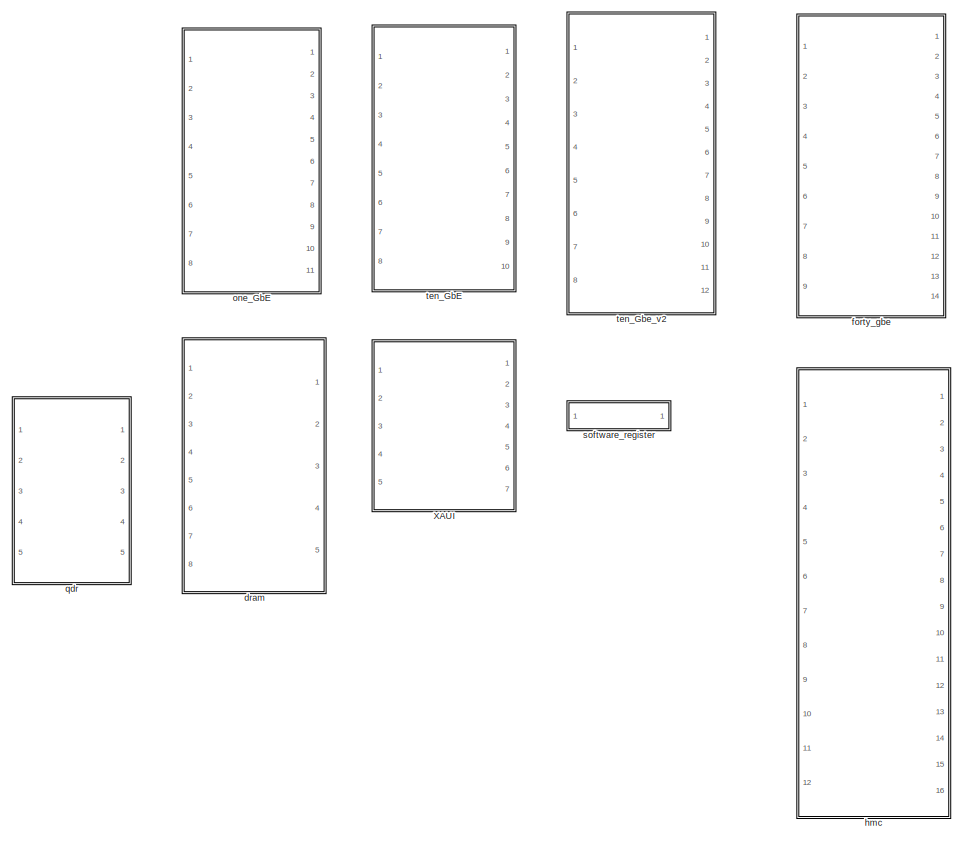
[diagram: root canvas - part 1/2, right side, full height]
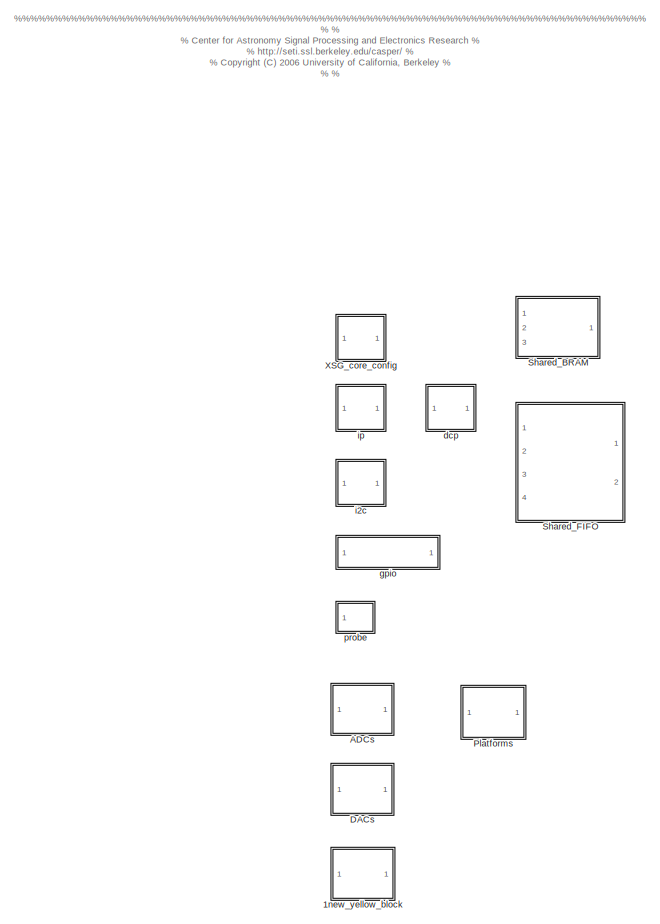
[diagram: root canvas - part 2/2, left side, full height]
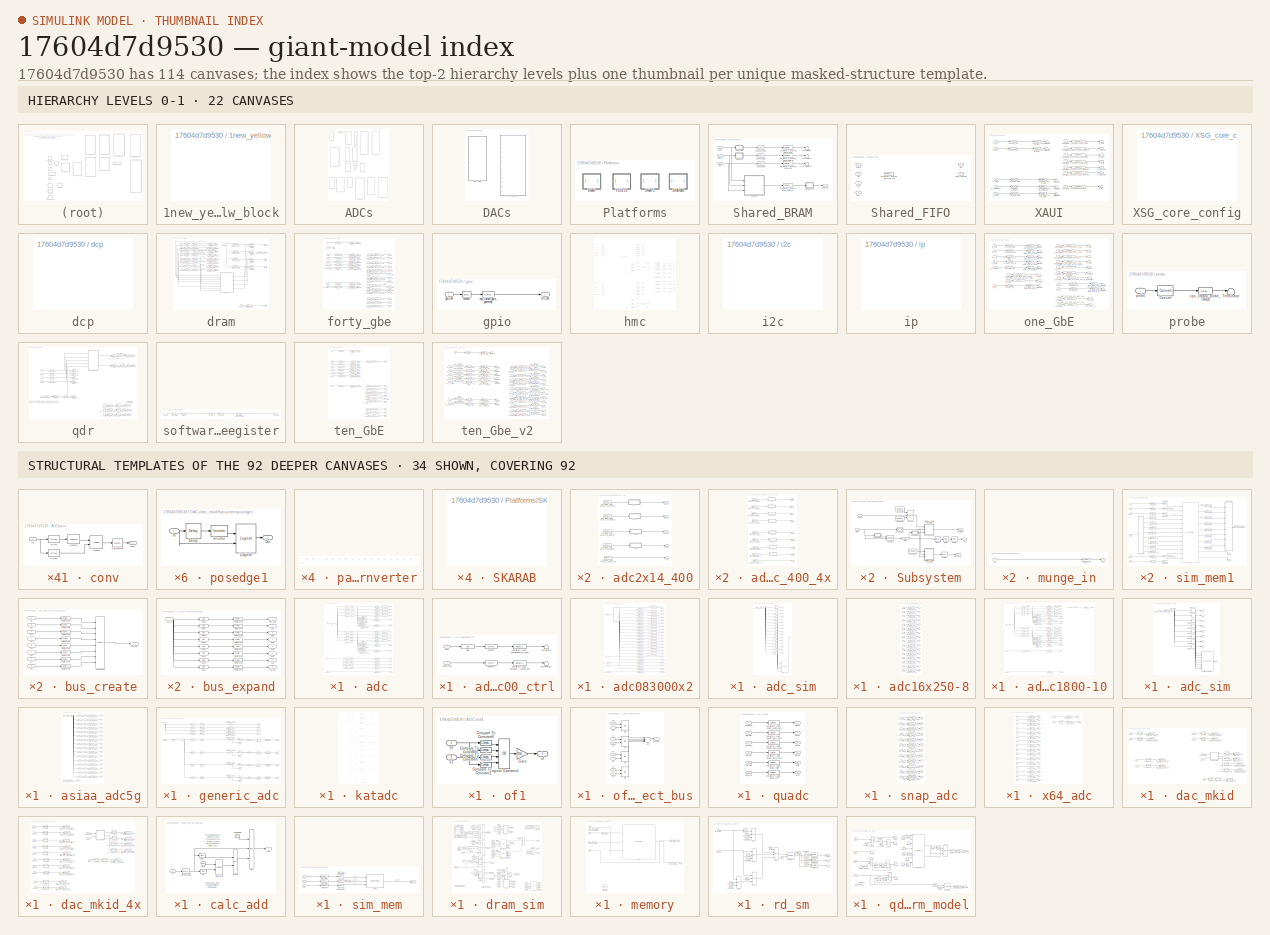
[diagram: thumbnail index - top-2 hierarchy levels (22 canvases) + 34 structural-template representatives of the remaining 92 canvases]
MODEL slx_17604d7d9530
KIND library
CONFIG AbsTol = auto
CONFIG EnableMultiTasking = off
CONFIG FixedStep = auto
CONFIG MaxStep = auto
CONFIG MinStep = auto
CONFIG RelTol = 1e-3
CONFIG SampleTimeConstraint = Unconstrained
CONFIG Solver = ode45
CONFIG SolverName = ode45
CONFIG StartTime = 0.0
CONFIG StopTime = 10.0
BLOCK [SubSystem] 1new_yellow_block
  Ports = []
  RequestExecContextInheritance = off
  Tag = xps:block_name
  Variant = off
BLOCK [SubSystem] ADCs
  Ports = []
  RequestExecContextInheritance = off
  Variant = off
BLOCK [SubSystem] ADCs/adc
  Ports = [3, 17]
  RequestExecContextInheritance = off
  Tag = xps:adc
  Variant = off
BLOCK [Reference] ADCs/adc/Compare To Constant  REF=simulink/Logic and Bit
Operations/Compare
To Constant
  Ports = [1, 1]
  SourceBlock = simulink/Logic and Bit\nOperations/Compare\nTo Constant
  SourceType = Compare To Constant
BLOCK [Reference] ADCs/adc/Compare To Constant1  REF=simulink/Logic and Bit
Operations/Compare
To Constant
  Ports = [1, 1]
  SourceBlock = simulink/Logic and Bit\nOperations/Compare\nTo Constant
  SourceType = Compare To Constant
BLOCK [Reference] ADCs/adc/Compare To Constant10  REF=simulink/Logic and Bit
Operations/Compare
To Constant
  Ports = [1, 1]
  SourceBlock = simulink/Logic and Bit\nOperations/Compare\nTo Constant
  SourceType = Compare To Constant
BLOCK [Reference] ADCs/adc/Compare To Constant11  REF=simulink/Logic and Bit
Operations/Compare
To Constant
  Ports = [1, 1]
  SourceBlock = simulink/Logic and Bit\nOperations/Compare\nTo Constant
  SourceType = Compare To Constant
BLOCK [Reference] ADCs/adc/Compare To Constant12  REF=simulink/Logic and Bit
Operations/Compare
To Constant
  Ports = [1, 1]
  SourceBlock = simulink/Logic and Bit\nOperations/Compare\nTo Constant
  SourceType = Compare To Constant
BLOCK [Reference] ADCs/adc/Compare To Constant13  REF=simulink/Logic and Bit
Operations/Compare
To Constant
  Ports = [1, 1]
  SourceBlock = simulink/Logic and Bit\nOperations/Compare\nTo Constant
  SourceType = Compare To Constant
BLOCK [Reference] ADCs/adc/Compare To Constant14  REF=simulink/Logic and Bit
Operations/Compare
To Constant
  Ports = [1, 1]
  SourceBlock = simulink/Logic and Bit\nOperations/Compare\nTo Constant
  SourceType = Compare To Constant
BLOCK [Reference] ADCs/adc/Compare To Constant15  REF=simulink/Logic and Bit
Operations/Compare
To Constant
  Ports = [1, 1]
  SourceBlock = simulink/Logic and Bit\nOperations/Compare\nTo Constant
  SourceType = Compare To Constant
BLOCK [Reference] ADCs/adc/Compare To Constant2  REF=simulink/Logic and Bit
Operations/Compare
To Constant
  Ports = [1, 1]
  SourceBlock = simulink/Logic and Bit\nOperations/Compare\nTo Constant
  SourceType = Compare To Constant
BLOCK [Reference] ADCs/adc/Compare To Constant3  REF=simulink/Logic and Bit
Operations/Compare
To Constant
  Ports = [1, 1]
  SourceBlock = simulink/Logic and Bit\nOperations/Compare\nTo Constant
  SourceType = Compare To Constant
BLOCK [Reference] ADCs/adc/Compare To Constant4  REF=simulink/Logic and Bit
Operations/Compare
To Constant
  Ports = [1, 1]
  SourceBlock = simulink/Logic and Bit\nOperations/Compare\nTo Constant
  SourceType = Compare To Constant
BLOCK [Reference] ADCs/adc/Compare To Constant5  REF=simulink/Logic and Bit
Operations/Compare
To Constant
  Ports = [1, 1]
  SourceBlock = simulink/Logic and Bit\nOperations/Compare\nTo Constant
  SourceType = Compare To Constant
BLOCK [Reference] ADCs/adc/Compare To Constant6  REF=simulink/Logic and Bit
Operations/Compare
To Constant
  Ports = [1, 1]
  SourceBlock = simulink/Logic and Bit\nOperations/Compare\nTo Constant
  SourceType = Compare To Constant
BLOCK [Reference] ADCs/adc/Compare To Constant7  REF=simulink/Logic and Bit
Operations/Compare
To Constant
  Ports = [1, 1]
  SourceBlock = simulink/Logic and Bit\nOperations/Compare\nTo Constant
  SourceType = Compare To Constant
BLOCK [Reference] ADCs/adc/Compare To Constant8  REF=simulink/Logic and Bit
Operations/Compare
To Constant
  Ports = [1, 1]
  SourceBlock = simulink/Logic and Bit\nOperations/Compare\nTo Constant
  SourceType = Compare To Constant
BLOCK [Reference] ADCs/adc/Compare To Constant9  REF=simulink/Logic and Bit
Operations/Compare
To Constant
  Ports = [1, 1]
  SourceBlock = simulink/Logic and Bit\nOperations/Compare\nTo Constant
  SourceType = Compare To Constant
BLOCK [DownSample] ADCs/adc/Downsamplei0
  InputProcessing = Inherited (this choice will be removed - see release notes)
  N = 8
  UserDataPersistent = on
  phase = 1
BLOCK [DownSample] ADCs/adc/Downsamplei1
  InputProcessing = Inherited (this choice will be removed - see release notes)
  N = 8
  UserDataPersistent = on
  phase = 3
BLOCK [DownSample] ADCs/adc/Downsamplei2
  InputProcessing = Inherited (this choice will be removed - see release notes)
  N = 8
  UserDataPersistent = on
  phase = 5
BLOCK [DownSample] ADCs/adc/Downsamplei3
  InputProcessing = Inherited (this choice will be removed - see release notes)
  N = 8
  UserDataPersistent = on
  phase = 7
BLOCK [DownSample] ADCs/adc/Downsampleq0
  InputProcessing = Inherited (this choice will be removed - see release notes)
  N = 8
  UserDataPersistent = on
BLOCK [DownSample] ADCs/adc/Downsampleq1
  InputProcessing = Inherited (this choice will be removed - see release notes)
  N = 8
  UserDataPersistent = on
  phase = 2
BLOCK [DownSample] ADCs/adc/Downsampleq2
  InputProcessing = Inherited (this choice will be removed - see release notes)
  N = 8
  UserDataPersistent = on
  phase = 4
BLOCK [DownSample] ADCs/adc/Downsampleq3
  InputProcessing = Inherited (this choice will be removed - see release notes)
  N = 8
  UserDataPersistent = on
  phase = 6
BLOCK [DownSample] ADCs/adc/Downsamplesync0
  InputProcessing = Inherited (this choice will be removed - see release notes)
  N = 8
  UserDataPersistent = on
BLOCK [DownSample] ADCs/adc/Downsamplesync1
  InputProcessing = Inherited (this choice will be removed - see release notes)
  N = 8
  UserDataPersistent = on
  phase = 2
BLOCK [DownSample] ADCs/adc/Downsamplesync2
  InputProcessing = Inherited (this choice will be removed - see release notes)
  N = 8
  UserDataPersistent = on
  phase = 4
BLOCK [DownSample] ADCs/adc/Downsamplesync3
  InputProcessing = Inherited (this choice will be removed - see release notes)
  N = 8
  UserDataPersistent = on
  phase = 6
BLOCK [Logic] ADCs/adc/Logical Operator
  AllPortsSameDT = off
  Inputs = 4
  Operator = OR
  OutDataTypeStr = boolean
  Ports = [4, 1]
BLOCK [Logic] ADCs/adc/Logical Operator1
  AllPortsSameDT = off
  Inputs = 4
  Operator = OR
  OutDataTypeStr = boolean
  Ports = [4, 1]
BLOCK [Logic] ADCs/adc/Logical Operator2
  AllPortsSameDT = off
  Inputs = 4
  Operator = OR
  OutDataTypeStr = boolean
  Ports = [4, 1]
BLOCK [Logic] ADCs/adc/Logical Operator3
  AllPortsSameDT = off
  Inputs = 4
  Operator = OR
  OutDataTypeStr = boolean
  Ports = [4, 1]
BLOCK [Bias] ADCs/adc/bias
  Bias = 127.5
BLOCK [SubSystem] ADCs/adc/conv
  Ports = [1, 1]
  RequestExecContextInheritance = off
  Variant = off
BLOCK [Reference] ADCs/adc/conv/Concat  REF=xbsIndex_r4/Concat
  Ports = [2, 1]
  SourceBlock = xbsIndex_r4/Concat
  SourceType = Xilinx Bus Concatenator Block
BLOCK [Inport] ADCs/adc/conv/In1
  IconDisplay = Port number
BLOCK [Reference] ADCs/adc/conv/Inverter  REF=xbsIndex_r4/Inverter
  Ports = [1, 1]
  SourceBlock = xbsIndex_r4/Inverter
  SourceType = Xilinx Inverter Block
BLOCK [Outport] ADCs/adc/conv/Out1
  IconDisplay = Port number
BLOCK [Reference] ADCs/adc/conv/Reinterpret  REF=xbsIndex_r4/Reinterpret
  Ports = [1, 1]
  SourceBlock = xbsIndex_r4/Reinterpret
  SourceType = Xilinx Type Reinterpreter Block
BLOCK [Reference] ADCs/adc/conv/Slice  REF=xbsIndex_r4/Slice
  Ports = [1, 1]
  SourceBlock = xbsIndex_r4/Slice
  SourceType = Xilinx Bit Slice Extractor Block
BLOCK [Reference] ADCs/adc/conv/Slice1  REF=xbsIndex_r4/Slice
  Ports = [1, 1]
  SourceBlock = xbsIndex_r4/Slice
  SourceType = Xilinx Bit Slice Extractor Block
BLOCK [SubSystem] ADCs/adc/conv1
  Ports = [1, 1]
  RequestExecContextInheritance = off
  Variant = off
BLOCK [Reference] ADCs/adc/conv1/Concat  REF=xbsIndex_r4/Concat
  Ports = [2, 1]
  SourceBlock = xbsIndex_r4/Concat
  SourceType = Xilinx Bus Concatenator Block
BLOCK [Inport] ADCs/adc/conv1/In1
  IconDisplay = Port number
BLOCK [Reference] ADCs/adc/conv1/Inverter  REF=xbsIndex_r4/Inverter
  Ports = [1, 1]
  SourceBlock = xbsIndex_r4/Inverter
  SourceType = Xilinx Inverter Block
BLOCK [Outport] ADCs/adc/conv1/Out1
  IconDisplay = Port number
BLOCK [Reference] ADCs/adc/conv1/Reinterpret  REF=xbsIndex_r4/Reinterpret
  Ports = [1, 1]
  SourceBlock = xbsIndex_r4/Reinterpret
  SourceType = Xilinx Type Reinterpreter Block
BLOCK [Reference] ADCs/adc/conv1/Slice  REF=xbsIndex_r4/Slice
  Ports = [1, 1]
  SourceBlock = xbsIndex_r4/Slice
  SourceType = Xilinx Bit Slice Extractor Block
BLOCK [Reference] ADCs/adc/conv1/Slice1  REF=xbsIndex_r4/Slice
  Ports = [1, 1]
  SourceBlock = xbsIndex_r4/Slice
  SourceType = Xilinx Bit Slice Extractor Block
BLOCK [SubSystem] ADCs/adc/conv2
  Ports = [1, 1]
  RequestExecContextInheritance = off
  Variant = off
BLOCK [Reference] ADCs/adc/conv2/Concat  REF=xbsIndex_r4/Concat
  Ports = [2, 1]
  SourceBlock = xbsIndex_r4/Concat
  SourceType = Xilinx Bus Concatenator Block
BLOCK [Inport] ADCs/adc/conv2/In1
  IconDisplay = Port number
BLOCK [Reference] ADCs/adc/conv2/Inverter  REF=xbsIndex_r4/Inverter
  Ports = [1, 1]
  SourceBlock = xbsIndex_r4/Inverter
  SourceType = Xilinx Inverter Block
BLOCK [Outport] ADCs/adc/conv2/Out1
  IconDisplay = Port number
BLOCK [Reference] ADCs/adc/conv2/Reinterpret  REF=xbsIndex_r4/Reinterpret
  Ports = [1, 1]
  SourceBlock = xbsIndex_r4/Reinterpret
  SourceType = Xilinx Type Reinterpreter Block
BLOCK [Reference] ADCs/adc/conv2/Slice  REF=xbsIndex_r4/Slice
  Ports = [1, 1]
  SourceBlock = xbsIndex_r4/Slice
  SourceType = Xilinx Bit Slice Extractor Block
BLOCK [Reference] ADCs/adc/conv2/Slice1  REF=xbsIndex_r4/Slice
  Ports = [1, 1]
  SourceBlock = xbsIndex_r4/Slice
  SourceType = Xilinx Bit Slice Extractor Block
BLOCK [SubSystem] ADCs/adc/conv3
  Ports = [1, 1]
  RequestExecContextInheritance = off
  Variant = off
BLOCK [Reference] ADCs/adc/conv3/Concat  REF=xbsIndex_r4/Concat
  Ports = [2, 1]
  SourceBlock = xbsIndex_r4/Concat
  SourceType = Xilinx Bus Concatenator Block
BLOCK [Inport] ADCs/adc/conv3/In1
  IconDisplay = Port number
BLOCK [Reference] ADCs/adc/conv3/Inverter  REF=xbsIndex_r4/Inverter
  Ports = [1, 1]
  SourceBlock = xbsIndex_r4/Inverter
  SourceType = Xilinx Inverter Block
BLOCK [Outport] ADCs/adc/conv3/Out1
  IconDisplay = Port number
BLOCK [Reference] ADCs/adc/conv3/Reinterpret  REF=xbsIndex_r4/Reinterpret
  Ports = [1, 1]
  SourceBlock = xbsIndex_r4/Reinterpret
  SourceType = Xilinx Type Reinterpreter Block
BLOCK [Reference] ADCs/adc/conv3/Slice  REF=xbsIndex_r4/Slice
  Ports = [1, 1]
  SourceBlock = xbsIndex_r4/Slice
  SourceType = Xilinx Bit Slice Extractor Block
BLOCK [Reference] ADCs/adc/conv3/Slice1  REF=xbsIndex_r4/Slice
  Ports = [1, 1]
  SourceBlock = xbsIndex_r4/Slice
  SourceType = Xilinx Bit Slice Extractor Block
BLOCK [SubSystem] ADCs/adc/conv4
  Ports = [1, 1]
  RequestExecContextInheritance = off
  Variant = off
BLOCK [Reference] ADCs/adc/conv4/Concat  REF=xbsIndex_r4/Concat
  Ports = [2, 1]
  SourceBlock = xbsIndex_r4/Concat
  SourceType = Xilinx Bus Concatenator Block
BLOCK [Inport] ADCs/adc/conv4/In1
  IconDisplay = Port number
BLOCK [Reference] ADCs/adc/conv4/Inverter  REF=xbsIndex_r4/Inverter
  Ports = [1, 1]
  SourceBlock = xbsIndex_r4/Inverter
  SourceType = Xilinx Inverter Block
BLOCK [Outport] ADCs/adc/conv4/Out1
  IconDisplay = Port number
BLOCK [Reference] ADCs/adc/conv4/Reinterpret  REF=xbsIndex_r4/Reinterpret
  Ports = [1, 1]
  SourceBlock = xbsIndex_r4/Reinterpret
  SourceType = Xilinx Type Reinterpreter Block
BLOCK [Reference] ADCs/adc/conv4/Slice  REF=xbsIndex_r4/Slice
  Ports = [1, 1]
  SourceBlock = xbsIndex_r4/Slice
  SourceType = Xilinx Bit Slice Extractor Block
BLOCK [Reference] ADCs/adc/conv4/Slice1  REF=xbsIndex_r4/Slice
  Ports = [1, 1]
  SourceBlock = xbsIndex_r4/Slice
  SourceType = Xilinx Bit Slice Extractor Block
BLOCK [SubSystem] ADCs/adc/conv5
  Ports = [1, 1]
  RequestExecContextInheritance = off
  Variant = off
BLOCK [Reference] ADCs/adc/conv5/Concat  REF=xbsIndex_r4/Concat
  Ports = [2, 1]
  SourceBlock = xbsIndex_r4/Concat
  SourceType = Xilinx Bus Concatenator Block
BLOCK [Inport] ADCs/adc/conv5/In1
  IconDisplay = Port number
BLOCK [Reference] ADCs/adc/conv5/Inverter  REF=xbsIndex_r4/Inverter
  Ports = [1, 1]
  SourceBlock = xbsIndex_r4/Inverter
  SourceType = Xilinx Inverter Block
BLOCK [Outport] ADCs/adc/conv5/Out1
  IconDisplay = Port number
BLOCK [Reference] ADCs/adc/conv5/Reinterpret  REF=xbsIndex_r4/Reinterpret
  Ports = [1, 1]
  SourceBlock = xbsIndex_r4/Reinterpret
  SourceType = Xilinx Type Reinterpreter Block
BLOCK [Reference] ADCs/adc/conv5/Slice  REF=xbsIndex_r4/Slice
  Ports = [1, 1]
  SourceBlock = xbsIndex_r4/Slice
  SourceType = Xilinx Bit Slice Extractor Block
BLOCK [Reference] ADCs/adc/conv5/Slice1  REF=xbsIndex_r4/Slice
  Ports = [1, 1]
  SourceBlock = xbsIndex_r4/Slice
  SourceType = Xilinx Bit Slice Extractor Block
BLOCK [SubSystem] ADCs/adc/conv6
  Ports = [1, 1]
  RequestExecContextInheritance = off
  Variant = off
BLOCK [Reference] ADCs/adc/conv6/Concat  REF=xbsIndex_r4/Concat
  Ports = [2, 1]
  SourceBlock = xbsIndex_r4/Concat
  SourceType = Xilinx Bus Concatenator Block
BLOCK [Inport] ADCs/adc/conv6/In1
  IconDisplay = Port number
BLOCK [Reference] ADCs/adc/conv6/Inverter  REF=xbsIndex_r4/Inverter
  Ports = [1, 1]
  SourceBlock = xbsIndex_r4/Inverter
  SourceType = Xilinx Inverter Block
BLOCK [Outport] ADCs/adc/conv6/Out1
  IconDisplay = Port number
BLOCK [Reference] ADCs/adc/conv6/Reinterpret  REF=xbsIndex_r4/Reinterpret
  Ports = [1, 1]
  SourceBlock = xbsIndex_r4/Reinterpret
  SourceType = Xilinx Type Reinterpreter Block
BLOCK [Reference] ADCs/adc/conv6/Slice  REF=xbsIndex_r4/Slice
  Ports = [1, 1]
  SourceBlock = xbsIndex_r4/Slice
  SourceType = Xilinx Bit Slice Extractor Block
BLOCK [Reference] ADCs/adc/conv6/Slice1  REF=xbsIndex_r4/Slice
  Ports = [1, 1]
  SourceBlock = xbsIndex_r4/Slice
  SourceType = Xilinx Bit Slice Extractor Block
BLOCK [SubSystem] ADCs/adc/conv7
  Ports = [1, 1]
  RequestExecContextInheritance = off
  Variant = off
BLOCK [Reference] ADCs/adc/conv7/Concat  REF=xbsIndex_r4/Concat
  Ports = [2, 1]
  SourceBlock = xbsIndex_r4/Concat
  SourceType = Xilinx Bus Concatenator Block
BLOCK [Inport] ADCs/adc/conv7/In1
  IconDisplay = Port number
BLOCK [Reference] ADCs/adc/conv7/Inverter  REF=xbsIndex_r4/Inverter
  Ports = [1, 1]
  SourceBlock = xbsIndex_r4/Inverter
  SourceType = Xilinx Inverter Block
BLOCK [Outport] ADCs/adc/conv7/Out1
  IconDisplay = Port number
BLOCK [Reference] ADCs/adc/conv7/Reinterpret  REF=xbsIndex_r4/Reinterpret
  Ports = [1, 1]
  SourceBlock = xbsIndex_r4/Reinterpret
  SourceType = Xilinx Type Reinterpreter Block
BLOCK [Reference] ADCs/adc/conv7/Slice  REF=xbsIndex_r4/Slice
  Ports = [1, 1]
  SourceBlock = xbsIndex_r4/Slice
  SourceType = Xilinx Bit Slice Extractor Block
BLOCK [Reference] ADCs/adc/conv7/Slice1  REF=xbsIndex_r4/Slice
  Ports = [1, 1]
  SourceBlock = xbsIndex_r4/Slice
  SourceType = Xilinx Bit Slice Extractor Block
BLOCK [Outport] ADCs/adc/data_valid
  IconDisplay = Port number
  Port = 17
BLOCK [Delay] ADCs/adc/delayi0
  DelayLength = 1
  InputPortMap = u0
  InputProcessing = Inherited
  Ports = [1, 1]
BLOCK [Delay] ADCs/adc/delayi1
  DelayLength = 1
  InputPortMap = u0
  InputProcessing = Inherited
  Ports = [1, 1]
BLOCK [Delay] ADCs/adc/delayi2
  DelayLength = 1
  InputPortMap = u0
  InputProcessing = Inherited
  Ports = [1, 1]
BLOCK [Delay] ADCs/adc/delayi3
  DelayLength = 1
  InputPortMap = u0
  InputProcessing = Inherited
  Ports = [1, 1]
BLOCK [Delay] ADCs/adc/delayq0
  InputPortMap = u0
  InputProcessing = Inherited
  Ports = [1, 1]
BLOCK [Delay] ADCs/adc/delayq1
  DelayLength = 1
  InputPortMap = u0
  InputProcessing = Inherited
  Ports = [1, 1]
BLOCK [Delay] ADCs/adc/delayq2
  DelayLength = 1
  InputPortMap = u0
  InputProcessing = Inherited
  Ports = [1, 1]
BLOCK [Delay] ADCs/adc/delayq3
  DelayLength = 1
  InputPortMap = u0
  InputProcessing = Inherited
  Ports = [1, 1]
BLOCK [Delay] ADCs/adc/delaysync0
  InputPortMap = u0
  InputProcessing = Inherited
  Ports = [1, 1]
BLOCK [Delay] ADCs/adc/delaysync1
  DelayLength = 1
  InputPortMap = u0
  InputProcessing = Inherited
  Ports = [1, 1]
BLOCK [Delay] ADCs/adc/delaysync2
  DelayLength = 1
  InputPortMap = u0
  InputProcessing = Inherited
  Ports = [1, 1]
BLOCK [Delay] ADCs/adc/delaysync3
  DelayLength = 1
  InputPortMap = u0
  InputProcessing = Inherited
  Ports = [1, 1]
BLOCK [Gain] ADCs/adc/gain
  Gain = 127.5
BLOCK [Outport] ADCs/adc/o0
  IconDisplay = Port number
BLOCK [Outport] ADCs/adc/o1
  IconDisplay = Port number
  Port = 2
BLOCK [Outport] ADCs/adc/o2
  IconDisplay = Port number
  Port = 3
BLOCK [Outport] ADCs/adc/o3
  IconDisplay = Port number
  Port = 4
BLOCK [Outport] ADCs/adc/o4
  IconDisplay = Port number
  Port = 5
BLOCK [Outport] ADCs/adc/o5
  IconDisplay = Port number
  Port = 6
BLOCK [Outport] ADCs/adc/o6
  IconDisplay = Port number
  Port = 7
BLOCK [Outport] ADCs/adc/o7
  IconDisplay = Port number
  Port = 8
BLOCK [Outport] ADCs/adc/outofrange0
  IconDisplay = Port number
  Port = 9
BLOCK [Outport] ADCs/adc/outofrange1
  IconDisplay = Port number
  Port = 10
BLOCK [Outport] ADCs/adc/outofrange2
  IconDisplay = Port number
  Port = 11
BLOCK [Outport] ADCs/adc/outofrange3
  IconDisplay = Port number
  Port = 12
BLOCK [Inport] ADCs/adc/sim_data_valid
  IconDisplay = Port number
  Port = 3
  SampleTime = sample_period/4
BLOCK [Inport] ADCs/adc/sim_in
  IconDisplay = Port number
  SampleTime = sample_period/8
BLOCK [Inport] ADCs/adc/sim_sync
  IconDisplay = Port number
  Port = 2
  SampleTime = sample_period/8
BLOCK [Outport] ADCs/adc/sync0
  IconDisplay = Port number
  Port = 13
BLOCK [Outport] ADCs/adc/sync1
  IconDisplay = Port number
  Port = 14
BLOCK [Outport] ADCs/adc/sync2
  IconDisplay = Port number
  Port = 15
BLOCK [Outport] ADCs/adc/sync3
  IconDisplay = Port number
  Port = 16
BLOCK [Reference] ADCs/adc/xps_library_adc_user_data_valid  REF=xbsIndex_r4/Gateway In
  Ports = [1, 1]
  SourceBlock = xbsIndex_r4/Gateway In
  SourceType = Xilinx Gateway In Block
BLOCK [Reference] ADCs/adc/xps_library_adc_user_datai0  REF=xbsIndex_r4/Gateway In
  Ports = [1, 1]
  SourceBlock = xbsIndex_r4/Gateway In
  SourceType = Xilinx Gateway In Block
BLOCK [Reference] ADCs/adc/xps_library_adc_user_datai1  REF=xbsIndex_r4/Gateway In
  Ports = [1, 1]
  SourceBlock = xbsIndex_r4/Gateway In
  SourceType = Xilinx Gateway In Block
BLOCK [Reference] ADCs/adc/xps_library_adc_user_datai2  REF=xbsIndex_r4/Gateway In
  Ports = [1, 1]
  SourceBlock = xbsIndex_r4/Gateway In
  SourceType = Xilinx Gateway In Block
BLOCK [Reference] ADCs/adc/xps_library_adc_user_datai3  REF=xbsIndex_r4/Gateway In
  Ports = [1, 1]
  SourceBlock = xbsIndex_r4/Gateway In
  SourceType = Xilinx Gateway In Block
BLOCK [Reference] ADCs/adc/xps_library_adc_user_dataq0  REF=xbsIndex_r4/Gateway In
  Ports = [1, 1]
  SourceBlock = xbsIndex_r4/Gateway In
  SourceType = Xilinx Gateway In Block
BLOCK [Reference] ADCs/adc/xps_library_adc_user_dataq1  REF=xbsIndex_r4/Gateway In
  Ports = [1, 1]
  SourceBlock = xbsIndex_r4/Gateway In
  SourceType = Xilinx Gateway In Block
BLOCK [Reference] ADCs/adc/xps_library_adc_user_dataq2  REF=xbsIndex_r4/Gateway In
  Ports = [1, 1]
  SourceBlock = xbsIndex_r4/Gateway In
  SourceType = Xilinx Gateway In Block
BLOCK [Reference] ADCs/adc/xps_library_adc_user_dataq3  REF=xbsIndex_r4/Gateway In
  Ports = [1, 1]
  SourceBlock = xbsIndex_r4/Gateway In
  SourceType = Xilinx Gateway In Block
BLOCK [Reference] ADCs/adc/xps_library_adc_user_outofrangei0  REF=xbsIndex_r4/Gateway In
  Ports = [1, 1]
  SourceBlock = xbsIndex_r4/Gateway In
  SourceType = Xilinx Gateway In Block
BLOCK [Reference] ADCs/adc/xps_library_adc_user_outofrangei1  REF=xbsIndex_r4/Gateway In
  Ports = [1, 1]
  SourceBlock = xbsIndex_r4/Gateway In
  SourceType = Xilinx Gateway In Block
BLOCK [Reference] ADCs/adc/xps_library_adc_user_outofrangeq0  REF=xbsIndex_r4/Gateway In
  Ports = [1, 1]
  SourceBlock = xbsIndex_r4/Gateway In
  SourceType = Xilinx Gateway In Block
BLOCK [Reference] ADCs/adc/xps_library_adc_user_outofrangeq1  REF=xbsIndex_r4/Gateway In
  Ports = [1, 1]
  SourceBlock = xbsIndex_r4/Gateway In
  SourceType = Xilinx Gateway In Block
BLOCK [Reference] ADCs/adc/xps_library_adc_user_sync0  REF=xbsIndex_r4/Gateway In
  Ports = [1, 1]
  SourceBlock = xbsIndex_r4/Gateway In
  SourceType = Xilinx Gateway In Block
BLOCK [Reference] ADCs/adc/xps_library_adc_user_sync1  REF=xbsIndex_r4/Gateway In
  Ports = [1, 1]
  SourceBlock = xbsIndex_r4/Gateway In
  SourceType = Xilinx Gateway In Block
BLOCK [Reference] ADCs/adc/xps_library_adc_user_sync2  REF=xbsIndex_r4/Gateway In
  Ports = [1, 1]
  SourceBlock = xbsIndex_r4/Gateway In
  SourceType = Xilinx Gateway In Block
BLOCK [Reference] ADCs/adc/xps_library_adc_user_sync3  REF=xbsIndex_r4/Gateway In
  Ports = [1, 1]
  SourceBlock = xbsIndex_r4/Gateway In
  SourceType = Xilinx Gateway In Block
BLOCK [SubSystem] ADCs/adc083000_ctrl
  Ports = [2]
  RequestExecContextInheritance = off
  Tag = xps:adc083000_ctrl
  Variant = off
BLOCK [Reference] ADCs/adc083000_ctrl/Convert  REF=xbsIndex_r4/Convert
  Ports = [1, 1]
  SourceBlock = xbsIndex_r4/Convert
  SourceType = Xilinx Type Converter Block
BLOCK [Reference] ADCs/adc083000_ctrl/Convert1  REF=xbsIndex_r4/Convert
  Ports = [1, 1]
  SourceBlock = xbsIndex_r4/Convert
  SourceType = Xilinx Type Converter Block
BLOCK [Reference] ADCs/adc083000_ctrl/Slice  REF=xbsIndex_r4/Slice
  Ports = [1, 1]
  SourceBlock = xbsIndex_r4/Slice
  SourceType = Xilinx Bit Slice Extractor Block
BLOCK [Terminator] ADCs/adc083000_ctrl/Terminator
BLOCK [Terminator] ADCs/adc083000_ctrl/Terminator1
BLOCK [Inport] ADCs/adc083000_ctrl/conf
  IconDisplay = Port number
BLOCK [Inport] ADCs/adc083000_ctrl/sdata_bus
  IconDisplay = Port number
  Port = 2
BLOCK [Reference] ADCs/adc083000_ctrl/xps_library_ADCs_adc083000_ctrl_conf  REF=xbsIndex_r4/Gateway Out
  Ports = [1, 1]
  SourceBlock = xbsIndex_r4/Gateway Out
  SourceType = Xilinx Gateway Out Block
BLOCK [Reference] ADCs/adc083000_ctrl/xps_library_ADCs_adc083000_ctrl_sdata_bus  REF=xbsIndex_r4/Gateway Out
  Ports = [1, 1]
  SourceBlock = xbsIndex_r4/Gateway Out
  SourceType = Xilinx Gateway Out Block
BLOCK [SubSystem] ADCs/adc083000x2
  Ports = [5, 22]
  RequestExecContextInheritance = off
  Tag = xps:adc083000x2
  Variant = off
BLOCK [Outport] ADCs/adc083000x2/adc0_data_valid
  IconDisplay = Port number
  Port = 19
BLOCK [Inport] ADCs/adc083000x2/adc0_data_valid_sim
  IconDisplay = Port number
  Port = 2
BLOCK [Outport] ADCs/adc083000x2/adc0_outofrange
  IconDisplay = Port number
  Port = 18
BLOCK [Outport] ADCs/adc083000x2/adc0_s0
  IconDisplay = Port number
BLOCK [Outport] ADCs/adc083000x2/adc0_s1
  IconDisplay = Port number
  Port = 3
BLOCK [Outport] ADCs/adc083000x2/adc0_s2
  IconDisplay = Port number
  Port = 5
BLOCK [Outport] ADCs/adc083000x2/adc0_s3
  IconDisplay = Port number
  Port = 7
BLOCK [Outport] ADCs/adc083000x2/adc0_s4
  IconDisplay = Port number
  Port = 9
BLOCK [Outport] ADCs/adc083000x2/adc0_s5
  IconDisplay = Port number
  Port = 11
BLOCK [Outport] ADCs/adc083000x2/adc0_s6
  IconDisplay = Port number
  Port = 13
BLOCK [Outport] ADCs/adc083000x2/adc0_s7
  IconDisplay = Port number
  Port = 15
BLOCK [Outport] ADCs/adc083000x2/adc0_sync
  IconDisplay = Port number
  Port = 17
BLOCK [Inport] ADCs/adc083000x2/adc0_sync_sim
  IconDisplay = Port number
BLOCK [Outport] ADCs/adc083000x2/adc1_data_valid
  IconDisplay = Port number
  Port = 22
BLOCK [Inport] ADCs/adc083000x2/adc1_data_valid_sim
  IconDisplay = Port number
  Port = 5
BLOCK [Outport] ADCs/adc083000x2/adc1_outofrange
  IconDisplay = Port number
  Port = 21
BLOCK [Outport] ADCs/adc083000x2/adc1_s0
  IconDisplay = Port number
  Port = 2
BLOCK [Outport] ADCs/adc083000x2/adc1_s1
  IconDisplay = Port number
  Port = 4
BLOCK [Outport] ADCs/adc083000x2/adc1_s2
  IconDisplay = Port number
  Port = 6
BLOCK [Outport] ADCs/adc083000x2/adc1_s3
  IconDisplay = Port number
  Port = 8
BLOCK [Outport] ADCs/adc083000x2/adc1_s4
  IconDisplay = Port number
  Port = 10
BLOCK [Outport] ADCs/adc083000x2/adc1_s5
  IconDisplay = Port number
  Port = 12
BLOCK [Outport] ADCs/adc083000x2/adc1_s6
  IconDisplay = Port number
  Port = 14
BLOCK [Outport] ADCs/adc083000x2/adc1_s7
  IconDisplay = Port number
  Port = 16
BLOCK [Outport] ADCs/adc083000x2/adc1_sync
  IconDisplay = Port number
  Port = 20
BLOCK [Inport] ADCs/adc083000x2/adc1_sync_sim
  IconDisplay = Port number
  Port = 4
BLOCK [SubSystem] ADCs/adc083000x2/adc_sim
  AncestorBlock = xps_library/ADCs/adc_sim
  Ports = [1, 17]
  RequestExecContextInheritance = off
  UserDataPersistent = on
  Variant = off
BLOCK [Bias] ADCs/adc083000x2/adc_sim/adc_bias
  Bias = 128
BLOCK [Gain] ADCs/adc083000x2/adc_sim/adc_gain
  Gain = 128
  OutDataTypeStr = Inherit: Inherit via internal rule
  ParamDataTypeStr = Inherit: Inherit via internal rule
  SaturateOnIntegerOverflow = off
BLOCK [Outport] ADCs/adc083000x2/adc_sim/of
  IconDisplay = Port number
  Port = 17
BLOCK [Reference] ADCs/adc083000x2/adc_sim/overflow_detector  REF=xps_library/ADCs/of_detect_bus  (lib defined in mdl_00b5cec29cd0, mdl_02ab6ecaa3d1, +5 more)
  Ports = [8, 1]
  SourceBlock = xps_library/ADCs/of_detect_bus
  SourceType = of_detect_bus
  UserDataPersistent = on
BLOCK [Outport] ADCs/adc083000x2/adc_sim/s0
  IconDisplay = Port number
BLOCK [Outport] ADCs/adc083000x2/adc_sim/s1
  IconDisplay = Port number
  Port = 2
BLOCK [Outport] ADCs/adc083000x2/adc_sim/s10
  IconDisplay = Port number
  Port = 11
BLOCK [Outport] ADCs/adc083000x2/adc_sim/s11
  IconDisplay = Port number
  Port = 12
BLOCK [Outport] ADCs/adc083000x2/adc_sim/s12
  IconDisplay = Port number
  Port = 13
BLOCK [Outport] ADCs/adc083000x2/adc_sim/s13
  IconDisplay = Port number
  Port = 14
BLOCK [Outport] ADCs/adc083000x2/adc_sim/s14
  IconDisplay = Port number
  Port = 15
BLOCK [Outport] ADCs/adc083000x2/adc_sim/s15
  IconDisplay = Port number
  Port = 16
BLOCK [Outport] ADCs/adc083000x2/adc_sim/s2
  IconDisplay = Port number
  Port = 3
BLOCK [Outport] ADCs/adc083000x2/adc_sim/s3
  IconDisplay = Port number
  Port = 4
BLOCK [Outport] ADCs/adc083000x2/adc_sim/s4
  IconDisplay = Port number
  Port = 5
BLOCK [Outport] ADCs/adc083000x2/adc_sim/s5
  IconDisplay = Port number
  Port = 6
BLOCK [Outport] ADCs/adc083000x2/adc_sim/s6
  IconDisplay = Port number
  Port = 7
BLOCK [Outport] ADCs/adc083000x2/adc_sim/s7
  IconDisplay = Port number
  Port = 8
BLOCK [Outport] ADCs/adc083000x2/adc_sim/s8
  IconDisplay = Port number
  Port = 9
BLOCK [Outport] ADCs/adc083000x2/adc_sim/s9
  IconDisplay = Port number
  Port = 10
BLOCK [DownSample] ADCs/adc083000x2/adc_sim/sample0_ds
  N = 16
  phase = 1
  smode = Force single rate
BLOCK [DownSample] ADCs/adc083000x2/adc_sim/sample10_ds
  N = 16
  phase = 11
  smode = Force single rate
BLOCK [DownSample] ADCs/adc083000x2/adc_sim/sample11_ds
  N = 16
  phase = 12
  smode = Force single rate
BLOCK [DownSample] ADCs/adc083000x2/adc_sim/sample12_ds
  N = 16
  phase = 13
  smode = Force single rate
BLOCK [DownSample] ADCs/adc083000x2/adc_sim/sample13_ds
  N = 16
  phase = 14
  smode = Force single rate
BLOCK [DownSample] ADCs/adc083000x2/adc_sim/sample14_ds
  N = 16
  phase = 15
  smode = Force single rate
BLOCK [DownSample] ADCs/adc083000x2/adc_sim/sample15_ds
  N = 16
  smode = Force single rate
BLOCK [DownSample] ADCs/adc083000x2/adc_sim/sample1_ds
  N = 16
  phase = 2
  smode = Force single rate
BLOCK [DownSample] ADCs/adc083000x2/adc_sim/sample2_ds
  N = 16
  phase = 3
  smode = Force single rate
BLOCK [DownSample] ADCs/adc083000x2/adc_sim/sample3_ds
  N = 16
  phase = 4
  smode = Force single rate
BLOCK [DownSample] ADCs/adc083000x2/adc_sim/sample4_ds
  N = 16
  phase = 5
  smode = Force single rate
BLOCK [DownSample] ADCs/adc083000x2/adc_sim/sample5_ds
  N = 16
  phase = 6
  smode = Force single rate
BLOCK [DownSample] ADCs/adc083000x2/adc_sim/sample6_ds
  N = 16
  phase = 7
  smode = Force single rate
BLOCK [DownSample] ADCs/adc083000x2/adc_sim/sample7_ds
  N = 16
  phase = 8
  smode = Force single rate
BLOCK [DownSample] ADCs/adc083000x2/adc_sim/sample8_ds
  N = 16
  phase = 9
  smode = Force single rate
BLOCK [DownSample] ADCs/adc083000x2/adc_sim/sample9_ds
  N = 16
  phase = 10
  smode = Force single rate
BLOCK [Inport] ADCs/adc083000x2/adc_sim/sim_adc_data_in
  IconDisplay = Port number
BLOCK [Inport] ADCs/adc083000x2/sim_adc_data_in
  IconDisplay = Port number
  Port = 3
BLOCK [Reference] ADCs/adc083000x2/xps_library_ADCs_adc083000x2_adc0_user_data_valid  REF=xbsIndex_r4/Gateway In
  Ports = [1, 1]
  SourceBlock = xbsIndex_r4/Gateway In
  SourceType = Xilinx Gateway In Block
BLOCK [Reference] ADCs/adc083000x2/xps_library_ADCs_adc083000x2_adc0_user_outofrange  REF=xbsIndex_r4/Gateway In
  Ports = [1, 1]
  SourceBlock = xbsIndex_r4/Gateway In
  SourceType = Xilinx Gateway In Block
BLOCK [Reference] ADCs/adc083000x2/xps_library_ADCs_adc083000x2_adc0_user_s0  REF=xbsIndex_r4/Gateway In
  Ports = [1, 1]
  SourceBlock = xbsIndex_r4/Gateway In
  SourceType = Xilinx Gateway In Block
BLOCK [Reference] ADCs/adc083000x2/xps_library_ADCs_adc083000x2_adc0_user_s0_conv  REF=xps_library/ADCs/conv  (lib defined in mdl_00b5cec29cd0, mdl_02ab6ecaa3d1, +5 more)
  Ports = [1, 1]
  SourceBlock = xps_library/ADCs/conv
BLOCK [Reference] ADCs/adc083000x2/xps_library_ADCs_adc083000x2_adc0_user_s1  REF=xbsIndex_r4/Gateway In
  Ports = [1, 1]
  SourceBlock = xbsIndex_r4/Gateway In
  SourceType = Xilinx Gateway In Block
BLOCK [Reference] ADCs/adc083000x2/xps_library_ADCs_adc083000x2_adc0_user_s1_conv  REF=xps_library/ADCs/conv  (lib defined in mdl_00b5cec29cd0, mdl_02ab6ecaa3d1, +5 more)
  Ports = [1, 1]
  SourceBlock = xps_library/ADCs/conv
BLOCK [Reference] ADCs/adc083000x2/xps_library_ADCs_adc083000x2_adc0_user_s2  REF=xbsIndex_r4/Gateway In
  Ports = [1, 1]
  SourceBlock = xbsIndex_r4/Gateway In
  SourceType = Xilinx Gateway In Block
BLOCK [Reference] ADCs/adc083000x2/xps_library_ADCs_adc083000x2_adc0_user_s2_conv  REF=xps_library/ADCs/conv  (lib defined in mdl_00b5cec29cd0, mdl_02ab6ecaa3d1, +5 more)
  Ports = [1, 1]
  SourceBlock = xps_library/ADCs/conv
BLOCK [Reference] ADCs/adc083000x2/xps_library_ADCs_adc083000x2_adc0_user_s3  REF=xbsIndex_r4/Gateway In
  Ports = [1, 1]
  SourceBlock = xbsIndex_r4/Gateway In
  SourceType = Xilinx Gateway In Block
BLOCK [Reference] ADCs/adc083000x2/xps_library_ADCs_adc083000x2_adc0_user_s3_conv  REF=xps_library/ADCs/conv  (lib defined in mdl_00b5cec29cd0, mdl_02ab6ecaa3d1, +5 more)
  Ports = [1, 1]
  SourceBlock = xps_library/ADCs/conv
BLOCK [Reference] ADCs/adc083000x2/xps_library_ADCs_adc083000x2_adc0_user_s4  REF=xbsIndex_r4/Gateway In
  Ports = [1, 1]
  SourceBlock = xbsIndex_r4/Gateway In
  SourceType = Xilinx Gateway In Block
BLOCK [Reference] ADCs/adc083000x2/xps_library_ADCs_adc083000x2_adc0_user_s4_conv  REF=xps_library/ADCs/conv  (lib defined in mdl_00b5cec29cd0, mdl_02ab6ecaa3d1, +5 more)
  Ports = [1, 1]
  SourceBlock = xps_library/ADCs/conv
BLOCK [Reference] ADCs/adc083000x2/xps_library_ADCs_adc083000x2_adc0_user_s5  REF=xbsIndex_r4/Gateway In
  Ports = [1, 1]
  SourceBlock = xbsIndex_r4/Gateway In
  SourceType = Xilinx Gateway In Block
BLOCK [Reference] ADCs/adc083000x2/xps_library_ADCs_adc083000x2_adc0_user_s5_conv  REF=xps_library/ADCs/conv  (lib defined in mdl_00b5cec29cd0, mdl_02ab6ecaa3d1, +5 more)
  Ports = [1, 1]
  SourceBlock = xps_library/ADCs/conv
BLOCK [Reference] ADCs/adc083000x2/xps_library_ADCs_adc083000x2_adc0_user_s6  REF=xbsIndex_r4/Gateway In
  Ports = [1, 1]
  SourceBlock = xbsIndex_r4/Gateway In
  SourceType = Xilinx Gateway In Block
BLOCK [Reference] ADCs/adc083000x2/xps_library_ADCs_adc083000x2_adc0_user_s6_conv  REF=xps_library/ADCs/conv  (lib defined in mdl_00b5cec29cd0, mdl_02ab6ecaa3d1, +5 more)
  Ports = [1, 1]
  SourceBlock = xps_library/ADCs/conv
BLOCK [Reference] ADCs/adc083000x2/xps_library_ADCs_adc083000x2_adc0_user_s7  REF=xbsIndex_r4/Gateway In
  Ports = [1, 1]
  SourceBlock = xbsIndex_r4/Gateway In
  SourceType = Xilinx Gateway In Block
BLOCK [Reference] ADCs/adc083000x2/xps_library_ADCs_adc083000x2_adc0_user_s7_conv  REF=xps_library/ADCs/conv  (lib defined in mdl_00b5cec29cd0, mdl_02ab6ecaa3d1, +5 more)
  Ports = [1, 1]
  SourceBlock = xps_library/ADCs/conv
BLOCK [Reference] ADCs/adc083000x2/xps_library_ADCs_adc083000x2_adc0_user_sync  REF=xbsIndex_r4/Gateway In
  Ports = [1, 1]
  SourceBlock = xbsIndex_r4/Gateway In
  SourceType = Xilinx Gateway In Block
BLOCK [Reference] ADCs/adc083000x2/xps_library_ADCs_adc083000x2_adc1_user_data_valid  REF=xbsIndex_r4/Gateway In
  Ports = [1, 1]
  SourceBlock = xbsIndex_r4/Gateway In
  SourceType = Xilinx Gateway In Block
BLOCK [Reference] ADCs/adc083000x2/xps_library_ADCs_adc083000x2_adc1_user_outofrange  REF=xbsIndex_r4/Gateway In
  Ports = [1, 1]
  SourceBlock = xbsIndex_r4/Gateway In
  SourceType = Xilinx Gateway In Block
BLOCK [Reference] ADCs/adc083000x2/xps_library_ADCs_adc083000x2_adc1_user_s0  REF=xbsIndex_r4/Gateway In
  Ports = [1, 1]
  SourceBlock = xbsIndex_r4/Gateway In
  SourceType = Xilinx Gateway In Block
BLOCK [Reference] ADCs/adc083000x2/xps_library_ADCs_adc083000x2_adc1_user_s0_conv  REF=xps_library/ADCs/conv  (lib defined in mdl_00b5cec29cd0, mdl_02ab6ecaa3d1, +5 more)
  Ports = [1, 1]
  SourceBlock = xps_library/ADCs/conv
BLOCK [Reference] ADCs/adc083000x2/xps_library_ADCs_adc083000x2_adc1_user_s1  REF=xbsIndex_r4/Gateway In
  Ports = [1, 1]
  SourceBlock = xbsIndex_r4/Gateway In
  SourceType = Xilinx Gateway In Block
BLOCK [Reference] ADCs/adc083000x2/xps_library_ADCs_adc083000x2_adc1_user_s1_conv  REF=xps_library/ADCs/conv  (lib defined in mdl_00b5cec29cd0, mdl_02ab6ecaa3d1, +5 more)
  Ports = [1, 1]
  SourceBlock = xps_library/ADCs/conv
BLOCK [Reference] ADCs/adc083000x2/xps_library_ADCs_adc083000x2_adc1_user_s2  REF=xbsIndex_r4/Gateway In
  Ports = [1, 1]
  SourceBlock = xbsIndex_r4/Gateway In
  SourceType = Xilinx Gateway In Block
BLOCK [Reference] ADCs/adc083000x2/xps_library_ADCs_adc083000x2_adc1_user_s2_conv  REF=xps_library/ADCs/conv  (lib defined in mdl_00b5cec29cd0, mdl_02ab6ecaa3d1, +5 more)
  Ports = [1, 1]
  SourceBlock = xps_library/ADCs/conv
BLOCK [Reference] ADCs/adc083000x2/xps_library_ADCs_adc083000x2_adc1_user_s3  REF=xbsIndex_r4/Gateway In
  Ports = [1, 1]
  SourceBlock = xbsIndex_r4/Gateway In
  SourceType = Xilinx Gateway In Block
BLOCK [Reference] ADCs/adc083000x2/xps_library_ADCs_adc083000x2_adc1_user_s3_conv  REF=xps_library/ADCs/conv  (lib defined in mdl_00b5cec29cd0, mdl_02ab6ecaa3d1, +5 more)
  Ports = [1, 1]
  SourceBlock = xps_library/ADCs/conv
BLOCK [Reference] ADCs/adc083000x2/xps_library_ADCs_adc083000x2_adc1_user_s4  REF=xbsIndex_r4/Gateway In
  Ports = [1, 1]
  SourceBlock = xbsIndex_r4/Gateway In
  SourceType = Xilinx Gateway In Block
BLOCK [Reference] ADCs/adc083000x2/xps_library_ADCs_adc083000x2_adc1_user_s4_conv  REF=xps_library/ADCs/conv  (lib defined in mdl_00b5cec29cd0, mdl_02ab6ecaa3d1, +5 more)
  Ports = [1, 1]
  SourceBlock = xps_library/ADCs/conv
BLOCK [Reference] ADCs/adc083000x2/xps_library_ADCs_adc083000x2_adc1_user_s5  REF=xbsIndex_r4/Gateway In
  Ports = [1, 1]
  SourceBlock = xbsIndex_r4/Gateway In
  SourceType = Xilinx Gateway In Block
BLOCK [Reference] ADCs/adc083000x2/xps_library_ADCs_adc083000x2_adc1_user_s5_conv  REF=xps_library/ADCs/conv  (lib defined in mdl_00b5cec29cd0, mdl_02ab6ecaa3d1, +5 more)
  Ports = [1, 1]
  SourceBlock = xps_library/ADCs/conv
BLOCK [Reference] ADCs/adc083000x2/xps_library_ADCs_adc083000x2_adc1_user_s6  REF=xbsIndex_r4/Gateway In
  Ports = [1, 1]
  SourceBlock = xbsIndex_r4/Gateway In
  SourceType = Xilinx Gateway In Block
BLOCK [Reference] ADCs/adc083000x2/xps_library_ADCs_adc083000x2_adc1_user_s6_conv  REF=xps_library/ADCs/conv  (lib defined in mdl_00b5cec29cd0, mdl_02ab6ecaa3d1, +5 more)
  Ports = [1, 1]
  SourceBlock = xps_library/ADCs/conv
BLOCK [Reference] ADCs/adc083000x2/xps_library_ADCs_adc083000x2_adc1_user_s7  REF=xbsIndex_r4/Gateway In
  Ports = [1, 1]
  SourceBlock = xbsIndex_r4/Gateway In
  SourceType = Xilinx Gateway In Block
BLOCK [Reference] ADCs/adc083000x2/xps_library_ADCs_adc083000x2_adc1_user_s7_conv  REF=xps_library/ADCs/conv  (lib defined in mdl_00b5cec29cd0, mdl_02ab6ecaa3d1, +5 more)
  Ports = [1, 1]
  SourceBlock = xps_library/ADCs/conv
BLOCK [Reference] ADCs/adc083000x2/xps_library_ADCs_adc083000x2_adc1_user_sync  REF=xbsIndex_r4/Gateway In
  Ports = [1, 1]
  SourceBlock = xbsIndex_r4/Gateway In
  SourceType = Xilinx Gateway In Block
BLOCK [SubSystem] ADCs/adc16x250-8
  AttributesFormatString = r2 rev%<roach2_rev>\nzdok rev%<zdok_rev>
  Ports = [16, 16]
  RequestExecContextInheritance = off
  Tag = xps:adc16
  UserDataPersistent = on
  Variant = off
BLOCK [Outport] ADCs/adc16x250-8/a1
  IconDisplay = Port number
BLOCK [Inport] ADCs/adc16x250-8/a1_sim
  IconDisplay = Port number
BLOCK [Outport] ADCs/adc16x250-8/a2
  IconDisplay = Port number
  Port = 2
BLOCK [Inport] ADCs/adc16x250-8/a2_sim
  IconDisplay = Port number
  Port = 2
BLOCK [Outport] ADCs/adc16x250-8/a3
  IconDisplay = Port number
  Port = 3
BLOCK [Inport] ADCs/adc16x250-8/a3_sim
  IconDisplay = Port number
  Port = 3
BLOCK [Outport] ADCs/adc16x250-8/a4
  IconDisplay = Port number
  Port = 4
BLOCK [Inport] ADCs/adc16x250-8/a4_sim
  IconDisplay = Port number
  Port = 4
BLOCK [Outport] ADCs/adc16x250-8/b1
  IconDisplay = Port number
  Port = 5
BLOCK [Inport] ADCs/adc16x250-8/b1_sim
  IconDisplay = Port number
  Port = 5
BLOCK [Outport] ADCs/adc16x250-8/b2
  IconDisplay = Port number
  Port = 6
BLOCK [Inport] ADCs/adc16x250-8/b2_sim
  IconDisplay = Port number
  Port = 6
BLOCK [Outport] ADCs/adc16x250-8/b3
  IconDisplay = Port number
  Port = 7
BLOCK [Inport] ADCs/adc16x250-8/b3_sim
  IconDisplay = Port number
  Port = 7
BLOCK [Outport] ADCs/adc16x250-8/b4
  IconDisplay = Port number
  Port = 8
BLOCK [Inport] ADCs/adc16x250-8/b4_sim
  IconDisplay = Port number
  Port = 8
BLOCK [Outport] ADCs/adc16x250-8/c1
  IconDisplay = Port number
  Port = 9
BLOCK [Inport] ADCs/adc16x250-8/c1_sim
  IconDisplay = Port number
  Port = 9
BLOCK [Outport] ADCs/adc16x250-8/c2
  IconDisplay = Port number
  Port = 10
BLOCK [Inport] ADCs/adc16x250-8/c2_sim
  IconDisplay = Port number
  Port = 10
BLOCK [Outport] ADCs/adc16x250-8/c3
  IconDisplay = Port number
  Port = 11
BLOCK [Inport] ADCs/adc16x250-8/c3_sim
  IconDisplay = Port number
  Port = 11
BLOCK [Outport] ADCs/adc16x250-8/c4
  IconDisplay = Port number
  Port = 12
BLOCK [Inport] ADCs/adc16x250-8/c4_sim
  IconDisplay = Port number
  Port = 12
BLOCK [Outport] ADCs/adc16x250-8/d1
  IconDisplay = Port number
  Port = 13
BLOCK [Inport] ADCs/adc16x250-8/d1_sim
  IconDisplay = Port number
  Port = 13
BLOCK [Outport] ADCs/adc16x250-8/d2
  IconDisplay = Port number
  Port = 14
BLOCK [Inport] ADCs/adc16x250-8/d2_sim
  IconDisplay = Port number
  Port = 14
BLOCK [Outport] ADCs/adc16x250-8/d3
  IconDisplay = Port number
  Port = 15
BLOCK [Inport] ADCs/adc16x250-8/d3_sim
  IconDisplay = Port number
  Port = 15
BLOCK [Outport] ADCs/adc16x250-8/d4
  IconDisplay = Port number
  Port = 16
BLOCK [Inport] ADCs/adc16x250-8/d4_sim
  IconDisplay = Port number
  Port = 16
BLOCK [Reference] ADCs/adc16x250-8/xps_library_ADCs_adc16x250_8_a1  REF=xbsIndex_r4/Gateway In
  Ports = [1, 1]
  SourceBlock = xbsIndex_r4/Gateway In
  SourceType = Xilinx Gateway In Block
BLOCK [Reference] ADCs/adc16x250-8/xps_library_ADCs_adc16x250_8_a2  REF=xbsIndex_r4/Gateway In
  Ports = [1, 1]
  SourceBlock = xbsIndex_r4/Gateway In
  SourceType = Xilinx Gateway In Block
BLOCK [Reference] ADCs/adc16x250-8/xps_library_ADCs_adc16x250_8_a3  REF=xbsIndex_r4/Gateway In
  Ports = [1, 1]
  SourceBlock = xbsIndex_r4/Gateway In
  SourceType = Xilinx Gateway In Block
BLOCK [Reference] ADCs/adc16x250-8/xps_library_ADCs_adc16x250_8_a4  REF=xbsIndex_r4/Gateway In
  Ports = [1, 1]
  SourceBlock = xbsIndex_r4/Gateway In
  SourceType = Xilinx Gateway In Block
BLOCK [Reference] ADCs/adc16x250-8/xps_library_ADCs_adc16x250_8_b1  REF=xbsIndex_r4/Gateway In
  Ports = [1, 1]
  SourceBlock = xbsIndex_r4/Gateway In
  SourceType = Xilinx Gateway In Block
BLOCK [Reference] ADCs/adc16x250-8/xps_library_ADCs_adc16x250_8_b2  REF=xbsIndex_r4/Gateway In
  Ports = [1, 1]
  SourceBlock = xbsIndex_r4/Gateway In
  SourceType = Xilinx Gateway In Block
BLOCK [Reference] ADCs/adc16x250-8/xps_library_ADCs_adc16x250_8_b3  REF=xbsIndex_r4/Gateway In
  Ports = [1, 1]
  SourceBlock = xbsIndex_r4/Gateway In
  SourceType = Xilinx Gateway In Block
BLOCK [Reference] ADCs/adc16x250-8/xps_library_ADCs_adc16x250_8_b4  REF=xbsIndex_r4/Gateway In
  Ports = [1, 1]
  SourceBlock = xbsIndex_r4/Gateway In
  SourceType = Xilinx Gateway In Block
BLOCK [Reference] ADCs/adc16x250-8/xps_library_ADCs_adc16x250_8_c1  REF=xbsIndex_r4/Gateway In
  Ports = [1, 1]
  SourceBlock = xbsIndex_r4/Gateway In
  SourceType = Xilinx Gateway In Block
BLOCK [Reference] ADCs/adc16x250-8/xps_library_ADCs_adc16x250_8_c2  REF=xbsIndex_r4/Gateway In
  Ports = [1, 1]
  SourceBlock = xbsIndex_r4/Gateway In
  SourceType = Xilinx Gateway In Block
BLOCK [Reference] ADCs/adc16x250-8/xps_library_ADCs_adc16x250_8_c3  REF=xbsIndex_r4/Gateway In
  Ports = [1, 1]
  SourceBlock = xbsIndex_r4/Gateway In
  SourceType = Xilinx Gateway In Block
BLOCK [Reference] ADCs/adc16x250-8/xps_library_ADCs_adc16x250_8_c4  REF=xbsIndex_r4/Gateway In
  Ports = [1, 1]
  SourceBlock = xbsIndex_r4/Gateway In
  SourceType = Xilinx Gateway In Block
BLOCK [Reference] ADCs/adc16x250-8/xps_library_ADCs_adc16x250_8_d1  REF=xbsIndex_r4/Gateway In
  Ports = [1, 1]
  SourceBlock = xbsIndex_r4/Gateway In
  SourceType = Xilinx Gateway In Block
BLOCK [Reference] ADCs/adc16x250-8/xps_library_ADCs_adc16x250_8_d2  REF=xbsIndex_r4/Gateway In
  Ports = [1, 1]
  SourceBlock = xbsIndex_r4/Gateway In
  SourceType = Xilinx Gateway In Block
BLOCK [Reference] ADCs/adc16x250-8/xps_library_ADCs_adc16x250_8_d3  REF=xbsIndex_r4/Gateway In
  Ports = [1, 1]
  SourceBlock = xbsIndex_r4/Gateway In
  SourceType = Xilinx Gateway In Block
BLOCK [Reference] ADCs/adc16x250-8/xps_library_ADCs_adc16x250_8_d4  REF=xbsIndex_r4/Gateway In
  Ports = [1, 1]
  SourceBlock = xbsIndex_r4/Gateway In
  SourceType = Xilinx Gateway In Block
BLOCK [SubSystem] ADCs/adc1x1800-10
  Ports = [4, 18]
  RequestExecContextInheritance = off
  Tag = xps:mkadc
  Variant = off
BLOCK [Reference] ADCs/adc1x1800-10/Compare To Constant  REF=simulink/Logic and Bit
Operations/Compare
To Constant
  Ports = [1, 1]
  SourceBlock = simulink/Logic and Bit\nOperations/Compare\nTo Constant
  SourceType = Compare To Constant
BLOCK [Reference] ADCs/adc1x1800-10/Compare To Constant1  REF=simulink/Logic and Bit
Operations/Compare
To Constant
  Ports = [1, 1]
  SourceBlock = simulink/Logic and Bit\nOperations/Compare\nTo Constant
  SourceType = Compare To Constant
BLOCK [Reference] ADCs/adc1x1800-10/Compare To Constant10  REF=simulink/Logic and Bit
Operations/Compare
To Constant
  Ports = [1, 1]
  SourceBlock = simulink/Logic and Bit\nOperations/Compare\nTo Constant
  SourceType = Compare To Constant
BLOCK [Reference] ADCs/adc1x1800-10/Compare To Constant11  REF=simulink/Logic and Bit
Operations/Compare
To Constant
  Ports = [1, 1]
  SourceBlock = simulink/Logic and Bit\nOperations/Compare\nTo Constant
  SourceType = Compare To Constant
BLOCK [Reference] ADCs/adc1x1800-10/Compare To Constant12  REF=simulink/Logic and Bit
Operations/Compare
To Constant
  Ports = [1, 1]
  SourceBlock = simulink/Logic and Bit\nOperations/Compare\nTo Constant
  SourceType = Compare To Constant
BLOCK [Reference] ADCs/adc1x1800-10/Compare To Constant13  REF=simulink/Logic and Bit
Operations/Compare
To Constant
  Ports = [1, 1]
  SourceBlock = simulink/Logic and Bit\nOperations/Compare\nTo Constant
  SourceType = Compare To Constant
BLOCK [Reference] ADCs/adc1x1800-10/Compare To Constant14  REF=simulink/Logic and Bit
Operations/Compare
To Constant
  Ports = [1, 1]
  SourceBlock = simulink/Logic and Bit\nOperations/Compare\nTo Constant
  SourceType = Compare To Constant
BLOCK [Reference] ADCs/adc1x1800-10/Compare To Constant15  REF=simulink/Logic and Bit
Operations/Compare
To Constant
  Ports = [1, 1]
  SourceBlock = simulink/Logic and Bit\nOperations/Compare\nTo Constant
  SourceType = Compare To Constant
BLOCK [Reference] ADCs/adc1x1800-10/Compare To Constant2  REF=simulink/Logic and Bit
Operations/Compare
To Constant
  Ports = [1, 1]
  SourceBlock = simulink/Logic and Bit\nOperations/Compare\nTo Constant
  SourceType = Compare To Constant
BLOCK [Reference] ADCs/adc1x1800-10/Compare To Constant3  REF=simulink/Logic and Bit
Operations/Compare
To Constant
  Ports = [1, 1]
  SourceBlock = simulink/Logic and Bit\nOperations/Compare\nTo Constant
  SourceType = Compare To Constant
BLOCK [Reference] ADCs/adc1x1800-10/Compare To Constant4  REF=simulink/Logic and Bit
Operations/Compare
To Constant
  Ports = [1, 1]
  SourceBlock = simulink/Logic and Bit\nOperations/Compare\nTo Constant
  SourceType = Compare To Constant
BLOCK [Reference] ADCs/adc1x1800-10/Compare To Constant5  REF=simulink/Logic and Bit
Operations/Compare
To Constant
  Ports = [1, 1]
  SourceBlock = simulink/Logic and Bit\nOperations/Compare\nTo Constant
  SourceType = Compare To Constant
BLOCK [Reference] ADCs/adc1x1800-10/Compare To Constant6  REF=simulink/Logic and Bit
Operations/Compare
To Constant
  Ports = [1, 1]
  SourceBlock = simulink/Logic and Bit\nOperations/Compare\nTo Constant
  SourceType = Compare To Constant
BLOCK [Reference] ADCs/adc1x1800-10/Compare To Constant7  REF=simulink/Logic and Bit
Operations/Compare
To Constant
  Ports = [1, 1]
  SourceBlock = simulink/Logic and Bit\nOperations/Compare\nTo Constant
  SourceType = Compare To Constant
BLOCK [Reference] ADCs/adc1x1800-10/Compare To Constant8  REF=simulink/Logic and Bit
Operations/Compare
To Constant
  Ports = [1, 1]
  SourceBlock = simulink/Logic and Bit\nOperations/Compare\nTo Constant
  SourceType = Compare To Constant
BLOCK [Reference] ADCs/adc1x1800-10/Compare To Constant9  REF=simulink/Logic and Bit
Operations/Compare
To Constant
  Ports = [1, 1]
  SourceBlock = simulink/Logic and Bit\nOperations/Compare\nTo Constant
  SourceType = Compare To Constant
BLOCK [DownSample] ADCs/adc1x1800-10/Downsamplei0
  InputProcessing = Inherited (this choice will be removed - see release notes)
  N = 8
  UserDataPersistent = on
  fmode = Maintain input frame rate
  phase = 1
  smode = Force single rate
BLOCK [DownSample] ADCs/adc1x1800-10/Downsamplei1
  InputProcessing = Inherited (this choice will be removed - see release notes)
  N = 8
  UserDataPersistent = on
  fmode = Maintain input frame rate
  phase = 3
  smode = Force single rate
BLOCK [DownSample] ADCs/adc1x1800-10/Downsamplei2
  InputProcessing = Inherited (this choice will be removed - see release notes)
  N = 8
  UserDataPersistent = on
  fmode = Maintain input frame rate
  phase = 5
  smode = Force single rate
BLOCK [DownSample] ADCs/adc1x1800-10/Downsamplei3
  InputProcessing = Inherited (this choice will be removed - see release notes)
  N = 8
  UserDataPersistent = on
  fmode = Maintain input frame rate
  phase = 7
  smode = Force single rate
BLOCK [DownSample] ADCs/adc1x1800-10/Downsampleq0
  InputProcessing = Inherited (this choice will be removed - see release notes)
  N = 8
  UserDataPersistent = on
  fmode = Maintain input frame rate
  smode = Force single rate
BLOCK [DownSample] ADCs/adc1x1800-10/Downsampleq1
  InputProcessing = Inherited (this choice will be removed - see release notes)
  N = 8
  UserDataPersistent = on
  fmode = Maintain input frame rate
  phase = 2
  smode = Force single rate
BLOCK [DownSample] ADCs/adc1x1800-10/Downsampleq2
  InputProcessing = Inherited (this choice will be removed - see release notes)
  N = 8
  UserDataPersistent = on
  fmode = Maintain input frame rate
  phase = 4
  smode = Force single rate
BLOCK [DownSample] ADCs/adc1x1800-10/Downsampleq3
  InputProcessing = Inherited (this choice will be removed - see release notes)
  N = 8
  UserDataPersistent = on
  fmode = Maintain input frame rate
  phase = 6
  smode = Force single rate
BLOCK [DownSample] ADCs/adc1x1800-10/Downsamplesync0
  InputProcessing = Inherited (this choice will be removed - see release notes)
  N = 8
  UserDataPersistent = on
  fmode = Maintain input frame rate
  smode = Force single rate
BLOCK [Logic] ADCs/adc1x1800-10/Logical Operator
  AllPortsSameDT = off
  Operator = OR
  OutDataTypeStr = boolean
  Ports = [2, 1]
BLOCK [Logic] ADCs/adc1x1800-10/Logical Operator1
  AllPortsSameDT = off
  Operator = OR
  OutDataTypeStr = boolean
  Ports = [2, 1]
BLOCK [Logic] ADCs/adc1x1800-10/Logical Operator2
  AllPortsSameDT = off
  Operator = OR
  OutDataTypeStr = boolean
  Ports = [2, 1]
BLOCK [Logic] ADCs/adc1x1800-10/Logical Operator3
  AllPortsSameDT = off
  Operator = OR
  OutDataTypeStr = boolean
  Ports = [2, 1]
BLOCK [Logic] ADCs/adc1x1800-10/Logical Operator5
  AllPortsSameDT = off
  Operator = OR
  OutDataTypeStr = boolean
  Ports = [2, 1]
BLOCK [Logic] ADCs/adc1x1800-10/Logical Operator6
  AllPortsSameDT = off
  Operator = OR
  OutDataTypeStr = boolean
  Ports = [2, 1]
BLOCK [Logic] ADCs/adc1x1800-10/Logical Operator7
  AllPortsSameDT = off
  Operator = OR
  OutDataTypeStr = boolean
  Ports = [2, 1]
BLOCK [Logic] ADCs/adc1x1800-10/Logical Operator8
  AllPortsSameDT = off
  Operator = OR
  OutDataTypeStr = boolean
  Ports = [2, 1]
BLOCK [Terminator] ADCs/adc1x1800-10/Terminator1
BLOCK [Bias] ADCs/adc1x1800-10/bias
  Bias = 511.5
BLOCK [SubSystem] ADCs/adc1x1800-10/conv
  Ports = [1, 1]
  RequestExecContextInheritance = off
  Variant = off
BLOCK [Reference] ADCs/adc1x1800-10/conv/Concat  REF=xbsIndex_r4/Concat
  Ports = [2, 1]
  SourceBlock = xbsIndex_r4/Concat
  SourceType = Xilinx Bus Concatenator Block
BLOCK [Inport] ADCs/adc1x1800-10/conv/In1
  IconDisplay = Port number
BLOCK [Reference] ADCs/adc1x1800-10/conv/Inverter  REF=xbsIndex_r4/Inverter
  Ports = [1, 1]
  SourceBlock = xbsIndex_r4/Inverter
  SourceType = Xilinx Inverter Block
BLOCK [Outport] ADCs/adc1x1800-10/conv/Out1
  IconDisplay = Port number
BLOCK [Reference] ADCs/adc1x1800-10/conv/Reinterpret  REF=xbsIndex_r4/Reinterpret
  Ports = [1, 1]
  SourceBlock = xbsIndex_r4/Reinterpret
  SourceType = Xilinx Type Reinterpreter Block
BLOCK [Reference] ADCs/adc1x1800-10/conv/Slice  REF=xbsIndex_r4/Slice
  Ports = [1, 1]
  SourceBlock = xbsIndex_r4/Slice
  SourceType = Xilinx Bit Slice Extractor Block
BLOCK [Reference] ADCs/adc1x1800-10/conv/Slice1  REF=xbsIndex_r4/Slice
  Ports = [1, 1]
  SourceBlock = xbsIndex_r4/Slice
  SourceType = Xilinx Bit Slice Extractor Block
BLOCK [SubSystem] ADCs/adc1x1800-10/conv1
  Ports = [1, 1]
  RequestExecContextInheritance = off
  Variant = off
BLOCK [Reference] ADCs/adc1x1800-10/conv1/Concat  REF=xbsIndex_r4/Concat
  Ports = [2, 1]
  SourceBlock = xbsIndex_r4/Concat
  SourceType = Xilinx Bus Concatenator Block
BLOCK [Inport] ADCs/adc1x1800-10/conv1/In1
  IconDisplay = Port number
BLOCK [Reference] ADCs/adc1x1800-10/conv1/Inverter  REF=xbsIndex_r4/Inverter
  Ports = [1, 1]
  SourceBlock = xbsIndex_r4/Inverter
  SourceType = Xilinx Inverter Block
BLOCK [Outport] ADCs/adc1x1800-10/conv1/Out1
  IconDisplay = Port number
BLOCK [Reference] ADCs/adc1x1800-10/conv1/Reinterpret  REF=xbsIndex_r4/Reinterpret
  Ports = [1, 1]
  SourceBlock = xbsIndex_r4/Reinterpret
  SourceType = Xilinx Type Reinterpreter Block
BLOCK [Reference] ADCs/adc1x1800-10/conv1/Slice  REF=xbsIndex_r4/Slice
  Ports = [1, 1]
  SourceBlock = xbsIndex_r4/Slice
  SourceType = Xilinx Bit Slice Extractor Block
BLOCK [Reference] ADCs/adc1x1800-10/conv1/Slice1  REF=xbsIndex_r4/Slice
  Ports = [1, 1]
  SourceBlock = xbsIndex_r4/Slice
  SourceType = Xilinx Bit Slice Extractor Block
BLOCK [SubSystem] ADCs/adc1x1800-10/conv2
  Ports = [1, 1]
  RequestExecContextInheritance = off
  Variant = off
BLOCK [Reference] ADCs/adc1x1800-10/conv2/Concat  REF=xbsIndex_r4/Concat
  Ports = [2, 1]
  SourceBlock = xbsIndex_r4/Concat
  SourceType = Xilinx Bus Concatenator Block
BLOCK [Inport] ADCs/adc1x1800-10/conv2/In1
  IconDisplay = Port number
BLOCK [Reference] ADCs/adc1x1800-10/conv2/Inverter  REF=xbsIndex_r4/Inverter
  Ports = [1, 1]
  SourceBlock = xbsIndex_r4/Inverter
  SourceType = Xilinx Inverter Block
BLOCK [Outport] ADCs/adc1x1800-10/conv2/Out1
  IconDisplay = Port number
BLOCK [Reference] ADCs/adc1x1800-10/conv2/Reinterpret  REF=xbsIndex_r4/Reinterpret
  Ports = [1, 1]
  SourceBlock = xbsIndex_r4/Reinterpret
  SourceType = Xilinx Type Reinterpreter Block
BLOCK [Reference] ADCs/adc1x1800-10/conv2/Slice  REF=xbsIndex_r4/Slice
  Ports = [1, 1]
  SourceBlock = xbsIndex_r4/Slice
  SourceType = Xilinx Bit Slice Extractor Block
BLOCK [Reference] ADCs/adc1x1800-10/conv2/Slice1  REF=xbsIndex_r4/Slice
  Ports = [1, 1]
  SourceBlock = xbsIndex_r4/Slice
  SourceType = Xilinx Bit Slice Extractor Block
BLOCK [SubSystem] ADCs/adc1x1800-10/conv3
  Ports = [1, 1]
  RequestExecContextInheritance = off
  Variant = off
BLOCK [Reference] ADCs/adc1x1800-10/conv3/Concat  REF=xbsIndex_r4/Concat
  Ports = [2, 1]
  SourceBlock = xbsIndex_r4/Concat
  SourceType = Xilinx Bus Concatenator Block
BLOCK [Inport] ADCs/adc1x1800-10/conv3/In1
  IconDisplay = Port number
BLOCK [Reference] ADCs/adc1x1800-10/conv3/Inverter  REF=xbsIndex_r4/Inverter
  Ports = [1, 1]
  SourceBlock = xbsIndex_r4/Inverter
  SourceType = Xilinx Inverter Block
BLOCK [Outport] ADCs/adc1x1800-10/conv3/Out1
  IconDisplay = Port number
BLOCK [Reference] ADCs/adc1x1800-10/conv3/Reinterpret  REF=xbsIndex_r4/Reinterpret
  Ports = [1, 1]
  SourceBlock = xbsIndex_r4/Reinterpret
  SourceType = Xilinx Type Reinterpreter Block
BLOCK [Reference] ADCs/adc1x1800-10/conv3/Slice  REF=xbsIndex_r4/Slice
  Ports = [1, 1]
  SourceBlock = xbsIndex_r4/Slice
  SourceType = Xilinx Bit Slice Extractor Block
BLOCK [Reference] ADCs/adc1x1800-10/conv3/Slice1  REF=xbsIndex_r4/Slice
  Ports = [1, 1]
  SourceBlock = xbsIndex_r4/Slice
  SourceType = Xilinx Bit Slice Extractor Block
BLOCK [SubSystem] ADCs/adc1x1800-10/conv4
  Ports = [1, 1]
  RequestExecContextInheritance = off
  Variant = off
BLOCK [Reference] ADCs/adc1x1800-10/conv4/Concat  REF=xbsIndex_r4/Concat
  Ports = [2, 1]
  SourceBlock = xbsIndex_r4/Concat
  SourceType = Xilinx Bus Concatenator Block
BLOCK [Inport] ADCs/adc1x1800-10/conv4/In1
  IconDisplay = Port number
BLOCK [Reference] ADCs/adc1x1800-10/conv4/Inverter  REF=xbsIndex_r4/Inverter
  Ports = [1, 1]
  SourceBlock = xbsIndex_r4/Inverter
  SourceType = Xilinx Inverter Block
BLOCK [Outport] ADCs/adc1x1800-10/conv4/Out1
  IconDisplay = Port number
BLOCK [Reference] ADCs/adc1x1800-10/conv4/Reinterpret  REF=xbsIndex_r4/Reinterpret
  Ports = [1, 1]
  SourceBlock = xbsIndex_r4/Reinterpret
  SourceType = Xilinx Type Reinterpreter Block
BLOCK [Reference] ADCs/adc1x1800-10/conv4/Slice  REF=xbsIndex_r4/Slice
  Ports = [1, 1]
  SourceBlock = xbsIndex_r4/Slice
  SourceType = Xilinx Bit Slice Extractor Block
BLOCK [Reference] ADCs/adc1x1800-10/conv4/Slice1  REF=xbsIndex_r4/Slice
  Ports = [1, 1]
  SourceBlock = xbsIndex_r4/Slice
  SourceType = Xilinx Bit Slice Extractor Block
BLOCK [SubSystem] ADCs/adc1x1800-10/conv5
  Ports = [1, 1]
  RequestExecContextInheritance = off
  Variant = off
BLOCK [Reference] ADCs/adc1x1800-10/conv5/Concat  REF=xbsIndex_r4/Concat
  Ports = [2, 1]
  SourceBlock = xbsIndex_r4/Concat
  SourceType = Xilinx Bus Concatenator Block
BLOCK [Inport] ADCs/adc1x1800-10/conv5/In1
  IconDisplay = Port number
BLOCK [Reference] ADCs/adc1x1800-10/conv5/Inverter  REF=xbsIndex_r4/Inverter
  Ports = [1, 1]
  SourceBlock = xbsIndex_r4/Inverter
  SourceType = Xilinx Inverter Block
BLOCK [Outport] ADCs/adc1x1800-10/conv5/Out1
  IconDisplay = Port number
BLOCK [Reference] ADCs/adc1x1800-10/conv5/Reinterpret  REF=xbsIndex_r4/Reinterpret
  Ports = [1, 1]
  SourceBlock = xbsIndex_r4/Reinterpret
  SourceType = Xilinx Type Reinterpreter Block
BLOCK [Reference] ADCs/adc1x1800-10/conv5/Slice  REF=xbsIndex_r4/Slice
  Ports = [1, 1]
  SourceBlock = xbsIndex_r4/Slice
  SourceType = Xilinx Bit Slice Extractor Block
BLOCK [Reference] ADCs/adc1x1800-10/conv5/Slice1  REF=xbsIndex_r4/Slice
  Ports = [1, 1]
  SourceBlock = xbsIndex_r4/Slice
  SourceType = Xilinx Bit Slice Extractor Block
BLOCK [SubSystem] ADCs/adc1x1800-10/conv6
  Ports = [1, 1]
  RequestExecContextInheritance = off
  Variant = off
BLOCK [Reference] ADCs/adc1x1800-10/conv6/Concat  REF=xbsIndex_r4/Concat
  Ports = [2, 1]
  SourceBlock = xbsIndex_r4/Concat
  SourceType = Xilinx Bus Concatenator Block
BLOCK [Inport] ADCs/adc1x1800-10/conv6/In1
  IconDisplay = Port number
BLOCK [Reference] ADCs/adc1x1800-10/conv6/Inverter  REF=xbsIndex_r4/Inverter
  Ports = [1, 1]
  SourceBlock = xbsIndex_r4/Inverter
  SourceType = Xilinx Inverter Block
BLOCK [Outport] ADCs/adc1x1800-10/conv6/Out1
  IconDisplay = Port number
BLOCK [Reference] ADCs/adc1x1800-10/conv6/Reinterpret  REF=xbsIndex_r4/Reinterpret
  Ports = [1, 1]
  SourceBlock = xbsIndex_r4/Reinterpret
  SourceType = Xilinx Type Reinterpreter Block
BLOCK [Reference] ADCs/adc1x1800-10/conv6/Slice  REF=xbsIndex_r4/Slice
  Ports = [1, 1]
  SourceBlock = xbsIndex_r4/Slice
  SourceType = Xilinx Bit Slice Extractor Block
BLOCK [Reference] ADCs/adc1x1800-10/conv6/Slice1  REF=xbsIndex_r4/Slice
  Ports = [1, 1]
  SourceBlock = xbsIndex_r4/Slice
  SourceType = Xilinx Bit Slice Extractor Block
BLOCK [SubSystem] ADCs/adc1x1800-10/conv7
  Ports = [1, 1]
  RequestExecContextInheritance = off
  Variant = off
BLOCK [Reference] ADCs/adc1x1800-10/conv7/Concat  REF=xbsIndex_r4/Concat
  Ports = [2, 1]
  SourceBlock = xbsIndex_r4/Concat
  SourceType = Xilinx Bus Concatenator Block
BLOCK [Inport] ADCs/adc1x1800-10/conv7/In1
  IconDisplay = Port number
BLOCK [Reference] ADCs/adc1x1800-10/conv7/Inverter  REF=xbsIndex_r4/Inverter
  Ports = [1, 1]
  SourceBlock = xbsIndex_r4/Inverter
  SourceType = Xilinx Inverter Block
BLOCK [Outport] ADCs/adc1x1800-10/conv7/Out1
  IconDisplay = Port number
BLOCK [Reference] ADCs/adc1x1800-10/conv7/Reinterpret  REF=xbsIndex_r4/Reinterpret
  Ports = [1, 1]
  SourceBlock = xbsIndex_r4/Reinterpret
  SourceType = Xilinx Type Reinterpreter Block
BLOCK [Reference] ADCs/adc1x1800-10/conv7/Slice  REF=xbsIndex_r4/Slice
  Ports = [1, 1]
  SourceBlock = xbsIndex_r4/Slice
  SourceType = Xilinx Bit Slice Extractor Block
BLOCK [Reference] ADCs/adc1x1800-10/conv7/Slice1  REF=xbsIndex_r4/Slice
  Ports = [1, 1]
  SourceBlock = xbsIndex_r4/Slice
  SourceType = Xilinx Bit Slice Extractor Block
BLOCK [Reference] ADCs/adc1x1800-10/conv_bist  REF=xbsIndex_r4/Convert
  Ports = [1, 1]
  SourceBlock = xbsIndex_r4/Convert
  SourceType = Xilinx Type Converter Block
BLOCK [Outport] ADCs/adc1x1800-10/data_valid
  IconDisplay = Port number
  Port = 18
BLOCK [Delay] ADCs/adc1x1800-10/delayi0
  DelayLength = 1
  InputPortMap = u0
  InputProcessing = Inherited
  Ports = [1, 1]
BLOCK [Delay] ADCs/adc1x1800-10/delayi1
  DelayLength = 1
  InputPortMap = u0
  InputProcessing = Inherited
  Ports = [1, 1]
BLOCK [Delay] ADCs/adc1x1800-10/delayi2
  DelayLength = 1
  InputPortMap = u0
  InputProcessing = Inherited
  Ports = [1, 1]
BLOCK [Delay] ADCs/adc1x1800-10/delayi3
  DelayLength = 1
  InputPortMap = u0
  InputProcessing = Inherited
  Ports = [1, 1]
BLOCK [Delay] ADCs/adc1x1800-10/delayq0
  InputPortMap = u0
  InputProcessing = Inherited
  Ports = [1, 1]
BLOCK [Delay] ADCs/adc1x1800-10/delayq1
  DelayLength = 1
  InputPortMap = u0
  InputProcessing = Inherited
  Ports = [1, 1]
BLOCK [Delay] ADCs/adc1x1800-10/delayq2
  DelayLength = 1
  InputPortMap = u0
  InputProcessing = Inherited
  Ports = [1, 1]
BLOCK [Delay] ADCs/adc1x1800-10/delayq3
  DelayLength = 1
  InputPortMap = u0
  InputProcessing = Inherited
  Ports = [1, 1]
BLOCK [Delay] ADCs/adc1x1800-10/delaysync0
  InputPortMap = u0
  InputProcessing = Inherited
  Ports = [1, 1]
BLOCK [Inport] ADCs/adc1x1800-10/demux_tst_pat_en
  IconDisplay = Port number
  Port = 4
  SampleTime = sample_period/8
BLOCK [Gain] ADCs/adc1x1800-10/gain
  Gain = 511.5
BLOCK [Outport] ADCs/adc1x1800-10/o0
  IconDisplay = Port number
BLOCK [Outport] ADCs/adc1x1800-10/o1
  IconDisplay = Port number
  Port = 2
BLOCK [Outport] ADCs/adc1x1800-10/o2
  IconDisplay = Port number
  Port = 3
BLOCK [Outport] ADCs/adc1x1800-10/o3
  IconDisplay = Port number
  Port = 4
BLOCK [Outport] ADCs/adc1x1800-10/o4
  IconDisplay = Port number
  Port = 5
BLOCK [Outport] ADCs/adc1x1800-10/o5
  IconDisplay = Port number
  Port = 6
BLOCK [Outport] ADCs/adc1x1800-10/o6
  IconDisplay = Port number
  Port = 7
BLOCK [Outport] ADCs/adc1x1800-10/o7
  IconDisplay = Port number
  Port = 8
BLOCK [Outport] ADCs/adc1x1800-10/outofrange0
  IconDisplay = Port number
  Port = 9
BLOCK [Outport] ADCs/adc1x1800-10/outofrange1
  IconDisplay = Port number
  Port = 10
BLOCK [Outport] ADCs/adc1x1800-10/outofrange2
  IconDisplay = Port number
  Port = 11
BLOCK [Outport] ADCs/adc1x1800-10/outofrange3
  IconDisplay = Port number
  Port = 12
BLOCK [Outport] ADCs/adc1x1800-10/outofrange4
  IconDisplay = Port number
  Port = 13
BLOCK [Outport] ADCs/adc1x1800-10/outofrange5
  IconDisplay = Port number
  Port = 14
BLOCK [Outport] ADCs/adc1x1800-10/outofrange6
  IconDisplay = Port number
  Port = 15
BLOCK [Outport] ADCs/adc1x1800-10/outofrange7
  IconDisplay = Port number
  Port = 16
BLOCK [Inport] ADCs/adc1x1800-10/sim_data_valid
  IconDisplay = Port number
  Port = 3
  SampleTime = sample_period/4
BLOCK [Inport] ADCs/adc1x1800-10/sim_in
  IconDisplay = Port number
  SampleTime = sample_period/8
BLOCK [Inport] ADCs/adc1x1800-10/sim_sync
  IconDisplay = Port number
  Port = 2
  SampleTime = sample_period/8
BLOCK [Outport] ADCs/adc1x1800-10/sync
  IconDisplay = Port number
  Port = 17
BLOCK [Reference] ADCs/adc1x1800-10/xps_library_ADCs_adc1x1800_10_user_bist  REF=xbsIndex_r4/Gateway Out
  Ports = [1, 1]
  SourceBlock = xbsIndex_r4/Gateway Out
  SourceType = Xilinx Gateway Out Block
BLOCK [Reference] ADCs/adc1x1800-10/xps_library_ADCs_adc1x1800_10_user_data0  REF=xbsIndex_r4/Gateway In
  Ports = [1, 1]
  SourceBlock = xbsIndex_r4/Gateway In
  SourceType = Xilinx Gateway In Block
BLOCK [Reference] ADCs/adc1x1800-10/xps_library_ADCs_adc1x1800_10_user_data1  REF=xbsIndex_r4/Gateway In
  Ports = [1, 1]
  SourceBlock = xbsIndex_r4/Gateway In
  SourceType = Xilinx Gateway In Block
BLOCK [Reference] ADCs/adc1x1800-10/xps_library_ADCs_adc1x1800_10_user_data2  REF=xbsIndex_r4/Gateway In
  Ports = [1, 1]
  SourceBlock = xbsIndex_r4/Gateway In
  SourceType = Xilinx Gateway In Block
BLOCK [Reference] ADCs/adc1x1800-10/xps_library_ADCs_adc1x1800_10_user_data3  REF=xbsIndex_r4/Gateway In
  Ports = [1, 1]
  SourceBlock = xbsIndex_r4/Gateway In
  SourceType = Xilinx Gateway In Block
BLOCK [Reference] ADCs/adc1x1800-10/xps_library_ADCs_adc1x1800_10_user_data4  REF=xbsIndex_r4/Gateway In
  Ports = [1, 1]
  SourceBlock = xbsIndex_r4/Gateway In
  SourceType = Xilinx Gateway In Block
BLOCK [Reference] ADCs/adc1x1800-10/xps_library_ADCs_adc1x1800_10_user_data5  REF=xbsIndex_r4/Gateway In
  Ports = [1, 1]
  SourceBlock = xbsIndex_r4/Gateway In
  SourceType = Xilinx Gateway In Block
BLOCK [Reference] ADCs/adc1x1800-10/xps_library_ADCs_adc1x1800_10_user_data6  REF=xbsIndex_r4/Gateway In
  Ports = [1, 1]
  SourceBlock = xbsIndex_r4/Gateway In
  SourceType = Xilinx Gateway In Block
BLOCK [Reference] ADCs/adc1x1800-10/xps_library_ADCs_adc1x1800_10_user_data7  REF=xbsIndex_r4/Gateway In
  Ports = [1, 1]
  SourceBlock = xbsIndex_r4/Gateway In
  SourceType = Xilinx Gateway In Block
BLOCK [Reference] ADCs/adc1x1800-10/xps_library_ADCs_adc1x1800_10_user_data_valid  REF=xbsIndex_r4/Gateway In
  Ports = [1, 1]
  SourceBlock = xbsIndex_r4/Gateway In
  SourceType = Xilinx Gateway In Block
BLOCK [Reference] ADCs/adc1x1800-10/xps_library_ADCs_adc1x1800_10_user_outofrange0  REF=xbsIndex_r4/Gateway In
  Ports = [1, 1]
  SourceBlock = xbsIndex_r4/Gateway In
  SourceType = Xilinx Gateway In Block
BLOCK [Reference] ADCs/adc1x1800-10/xps_library_ADCs_adc1x1800_10_user_outofrange1  REF=xbsIndex_r4/Gateway In
  Ports = [1, 1]
  SourceBlock = xbsIndex_r4/Gateway In
  SourceType = Xilinx Gateway In Block
BLOCK [Reference] ADCs/adc1x1800-10/xps_library_ADCs_adc1x1800_10_user_outofrange2  REF=xbsIndex_r4/Gateway In
  Ports = [1, 1]
  SourceBlock = xbsIndex_r4/Gateway In
  SourceType = Xilinx Gateway In Block
BLOCK [Reference] ADCs/adc1x1800-10/xps_library_ADCs_adc1x1800_10_user_outofrange3  REF=xbsIndex_r4/Gateway In
  Ports = [1, 1]
  SourceBlock = xbsIndex_r4/Gateway In
  SourceType = Xilinx Gateway In Block
BLOCK [Reference] ADCs/adc1x1800-10/xps_library_ADCs_adc1x1800_10_user_outofrange4  REF=xbsIndex_r4/Gateway In
  Ports = [1, 1]
  SourceBlock = xbsIndex_r4/Gateway In
  SourceType = Xilinx Gateway In Block
BLOCK [Reference] ADCs/adc1x1800-10/xps_library_ADCs_adc1x1800_10_user_outofrange5  REF=xbsIndex_r4/Gateway In
  Ports = [1, 1]
  SourceBlock = xbsIndex_r4/Gateway In
  SourceType = Xilinx Gateway In Block
BLOCK [Reference] ADCs/adc1x1800-10/xps_library_ADCs_adc1x1800_10_user_outofrange6  REF=xbsIndex_r4/Gateway In
  Ports = [1, 1]
  SourceBlock = xbsIndex_r4/Gateway In
  SourceType = Xilinx Gateway In Block
BLOCK [Reference] ADCs/adc1x1800-10/xps_library_ADCs_adc1x1800_10_user_outofrange7  REF=xbsIndex_r4/Gateway In
  Ports = [1, 1]
  SourceBlock = xbsIndex_r4/Gateway In
  SourceType = Xilinx Gateway In Block
BLOCK [Reference] ADCs/adc1x1800-10/xps_library_ADCs_adc1x1800_10_user_sync  REF=xbsIndex_r4/Gateway In
  Ports = [1, 1]
  SourceBlock = xbsIndex_r4/Gateway In
  SourceType = Xilinx Gateway In Block
BLOCK [SubSystem] ADCs/adc2x14_400
  Ports = [0, 5]
  RequestExecContextInheritance = off
  Tag = xps:adc2x14_400
  Variant = off
BLOCK [SubSystem] ADCs/adc2x14_400/conv
  Ports = [1, 1]
  RequestExecContextInheritance = off
  Variant = off
BLOCK [Reference] ADCs/adc2x14_400/conv/Concat  REF=xbsIndex_r4/Concat
  Ports = [2, 1]
  SourceBlock = xbsIndex_r4/Concat
  SourceType = Xilinx Bus Concatenator Block
BLOCK [Inport] ADCs/adc2x14_400/conv/In1
  IconDisplay = Port number
BLOCK [Reference] ADCs/adc2x14_400/conv/Inverter  REF=xbsIndex_r4/Inverter
  Ports = [1, 1]
  SourceBlock = xbsIndex_r4/Inverter
  SourceType = Xilinx Inverter Block
BLOCK [Outport] ADCs/adc2x14_400/conv/Out1
  IconDisplay = Port number
BLOCK [Reference] ADCs/adc2x14_400/conv/Reinterpret  REF=xbsIndex_r4/Reinterpret
  Ports = [1, 1]
  SourceBlock = xbsIndex_r4/Reinterpret
  SourceType = Xilinx Type Reinterpreter Block
BLOCK [Reference] ADCs/adc2x14_400/conv/Slice  REF=xbsIndex_r4/Slice
  Ports = [1, 1]
  SourceBlock = xbsIndex_r4/Slice
  SourceType = Xilinx Bit Slice Extractor Block
BLOCK [Reference] ADCs/adc2x14_400/conv/Slice1  REF=xbsIndex_r4/Slice
  Ports = [1, 1]
  SourceBlock = xbsIndex_r4/Slice
  SourceType = Xilinx Bit Slice Extractor Block
BLOCK [SubSystem] ADCs/adc2x14_400/conv1
  Ports = [1, 1]
  RequestExecContextInheritance = off
  Variant = off
BLOCK [Reference] ADCs/adc2x14_400/conv1/Concat  REF=xbsIndex_r4/Concat
  Ports = [2, 1]
  SourceBlock = xbsIndex_r4/Concat
  SourceType = Xilinx Bus Concatenator Block
BLOCK [Inport] ADCs/adc2x14_400/conv1/In1
  IconDisplay = Port number
BLOCK [Reference] ADCs/adc2x14_400/conv1/Inverter  REF=xbsIndex_r4/Inverter
  Ports = [1, 1]
  SourceBlock = xbsIndex_r4/Inverter
  SourceType = Xilinx Inverter Block
BLOCK [Outport] ADCs/adc2x14_400/conv1/Out1
  IconDisplay = Port number
BLOCK [Reference] ADCs/adc2x14_400/conv1/Reinterpret  REF=xbsIndex_r4/Reinterpret
  Ports = [1, 1]
  SourceBlock = xbsIndex_r4/Reinterpret
  SourceType = Xilinx Type Reinterpreter Block
BLOCK [Reference] ADCs/adc2x14_400/conv1/Slice  REF=xbsIndex_r4/Slice
  Ports = [1, 1]
  SourceBlock = xbsIndex_r4/Slice
  SourceType = Xilinx Bit Slice Extractor Block
BLOCK [Reference] ADCs/adc2x14_400/conv1/Slice1  REF=xbsIndex_r4/Slice
  Ports = [1, 1]
  SourceBlock = xbsIndex_r4/Slice
  SourceType = Xilinx Bit Slice Extractor Block
BLOCK [SubSystem] ADCs/adc2x14_400/conv2
  Ports = [1, 1]
  RequestExecContextInheritance = off
  Variant = off
BLOCK [Reference] ADCs/adc2x14_400/conv2/Concat  REF=xbsIndex_r4/Concat
  Ports = [2, 1]
  SourceBlock = xbsIndex_r4/Concat
  SourceType = Xilinx Bus Concatenator Block
BLOCK [Inport] ADCs/adc2x14_400/conv2/In1
  IconDisplay = Port number
BLOCK [Reference] ADCs/adc2x14_400/conv2/Inverter  REF=xbsIndex_r4/Inverter
  Ports = [1, 1]
  SourceBlock = xbsIndex_r4/Inverter
  SourceType = Xilinx Inverter Block
BLOCK [Outport] ADCs/adc2x14_400/conv2/Out1
  IconDisplay = Port number
BLOCK [Reference] ADCs/adc2x14_400/conv2/Reinterpret  REF=xbsIndex_r4/Reinterpret
  Ports = [1, 1]
  SourceBlock = xbsIndex_r4/Reinterpret
  SourceType = Xilinx Type Reinterpreter Block
BLOCK [Reference] ADCs/adc2x14_400/conv2/Slice  REF=xbsIndex_r4/Slice
  Ports = [1, 1]
  SourceBlock = xbsIndex_r4/Slice
  SourceType = Xilinx Bit Slice Extractor Block
BLOCK [Reference] ADCs/adc2x14_400/conv2/Slice1  REF=xbsIndex_r4/Slice
  Ports = [1, 1]
  SourceBlock = xbsIndex_r4/Slice
  SourceType = Xilinx Bit Slice Extractor Block
BLOCK [SubSystem] ADCs/adc2x14_400/conv3
  Ports = [1, 1]
  RequestExecContextInheritance = off
  Variant = off
BLOCK [Reference] ADCs/adc2x14_400/conv3/Concat  REF=xbsIndex_r4/Concat
  Ports = [2, 1]
  SourceBlock = xbsIndex_r4/Concat
  SourceType = Xilinx Bus Concatenator Block
BLOCK [Inport] ADCs/adc2x14_400/conv3/In1
  IconDisplay = Port number
BLOCK [Reference] ADCs/adc2x14_400/conv3/Inverter  REF=xbsIndex_r4/Inverter
  Ports = [1, 1]
  SourceBlock = xbsIndex_r4/Inverter
  SourceType = Xilinx Inverter Block
BLOCK [Outport] ADCs/adc2x14_400/conv3/Out1
  IconDisplay = Port number
BLOCK [Reference] ADCs/adc2x14_400/conv3/Reinterpret  REF=xbsIndex_r4/Reinterpret
  Ports = [1, 1]
  SourceBlock = xbsIndex_r4/Reinterpret
  SourceType = Xilinx Type Reinterpreter Block
BLOCK [Reference] ADCs/adc2x14_400/conv3/Slice  REF=xbsIndex_r4/Slice
  Ports = [1, 1]
  SourceBlock = xbsIndex_r4/Slice
  SourceType = Xilinx Bit Slice Extractor Block
BLOCK [Reference] ADCs/adc2x14_400/conv3/Slice1  REF=xbsIndex_r4/Slice
  Ports = [1, 1]
  SourceBlock = xbsIndex_r4/Slice
  SourceType = Xilinx Bit Slice Extractor Block
BLOCK [Outport] ADCs/adc2x14_400/data_i0
  IconDisplay = Port number
BLOCK [Outport] ADCs/adc2x14_400/data_i1
  IconDisplay = Port number
  Port = 2
BLOCK [Outport] ADCs/adc2x14_400/data_q0
  IconDisplay = Port number
  Port = 3
BLOCK [Outport] ADCs/adc2x14_400/data_q1
  IconDisplay = Port number
  Port = 4
BLOCK [Outport] ADCs/adc2x14_400/sync
  IconDisplay = Port number
  Port = 5
BLOCK [Reference] ADCs/adc2x14_400/xps_library_ADCs_adc2x14_400_user_data_i0  REF=xbsIndex_r4/Gateway In
  Ports = [1, 1]
  SourceBlock = xbsIndex_r4/Gateway In
  SourceType = Xilinx Gateway In Block
BLOCK [Reference] ADCs/adc2x14_400/xps_library_ADCs_adc2x14_400_user_data_i1  REF=xbsIndex_r4/Gateway In
  Ports = [1, 1]
  SourceBlock = xbsIndex_r4/Gateway In
  SourceType = Xilinx Gateway In Block
BLOCK [Reference] ADCs/adc2x14_400/xps_library_ADCs_adc2x14_400_user_data_q0  REF=xbsIndex_r4/Gateway In
  Ports = [1, 1]
  SourceBlock = xbsIndex_r4/Gateway In
  SourceType = Xilinx Gateway In Block
BLOCK [Reference] ADCs/adc2x14_400/xps_library_ADCs_adc2x14_400_user_data_q1  REF=xbsIndex_r4/Gateway In
  Ports = [1, 1]
  SourceBlock = xbsIndex_r4/Gateway In
  SourceType = Xilinx Gateway In Block
BLOCK [Reference] ADCs/adc2x14_400/xps_library_ADCs_adc2x14_400_user_sync  REF=xbsIndex_r4/Gateway In
  Ports = [1, 1]
  SourceBlock = xbsIndex_r4/Gateway In
  SourceType = Xilinx Gateway In Block
BLOCK [SubSystem] ADCs/adc2x14_400_4x
  Ports = [0, 9]
  RequestExecContextInheritance = off
  Tag = xps:adc2x14_400_4x
  Variant = off
BLOCK [SubSystem] ADCs/adc2x14_400_4x/conv
  Ports = [1, 1]
  RequestExecContextInheritance = off
  Variant = off
BLOCK [Reference] ADCs/adc2x14_400_4x/conv/Concat  REF=xbsIndex_r4/Concat
  Ports = [2, 1]
  SourceBlock = xbsIndex_r4/Concat
  SourceType = Xilinx Bus Concatenator Block
BLOCK [Inport] ADCs/adc2x14_400_4x/conv/In1
  IconDisplay = Port number
BLOCK [Reference] ADCs/adc2x14_400_4x/conv/Inverter  REF=xbsIndex_r4/Inverter
  Ports = [1, 1]
  SourceBlock = xbsIndex_r4/Inverter
  SourceType = Xilinx Inverter Block
BLOCK [Outport] ADCs/adc2x14_400_4x/conv/Out1
  IconDisplay = Port number
BLOCK [Reference] ADCs/adc2x14_400_4x/conv/Reinterpret  REF=xbsIndex_r4/Reinterpret
  Ports = [1, 1]
  SourceBlock = xbsIndex_r4/Reinterpret
  SourceType = Xilinx Type Reinterpreter Block
BLOCK [Reference] ADCs/adc2x14_400_4x/conv/Slice  REF=xbsIndex_r4/Slice
  Ports = [1, 1]
  SourceBlock = xbsIndex_r4/Slice
  SourceType = Xilinx Bit Slice Extractor Block
BLOCK [Reference] ADCs/adc2x14_400_4x/conv/Slice1  REF=xbsIndex_r4/Slice
  Ports = [1, 1]
  SourceBlock = xbsIndex_r4/Slice
  SourceType = Xilinx Bit Slice Extractor Block
BLOCK [SubSystem] ADCs/adc2x14_400_4x/conv1
  Ports = [1, 1]
  RequestExecContextInheritance = off
  Variant = off
BLOCK [Reference] ADCs/adc2x14_400_4x/conv1/Concat  REF=xbsIndex_r4/Concat
  Ports = [2, 1]
  SourceBlock = xbsIndex_r4/Concat
  SourceType = Xilinx Bus Concatenator Block
BLOCK [Inport] ADCs/adc2x14_400_4x/conv1/In1
  IconDisplay = Port number
BLOCK [Reference] ADCs/adc2x14_400_4x/conv1/Inverter  REF=xbsIndex_r4/Inverter
  Ports = [1, 1]
  SourceBlock = xbsIndex_r4/Inverter
  SourceType = Xilinx Inverter Block
BLOCK [Outport] ADCs/adc2x14_400_4x/conv1/Out1
  IconDisplay = Port number
BLOCK [Reference] ADCs/adc2x14_400_4x/conv1/Reinterpret  REF=xbsIndex_r4/Reinterpret
  Ports = [1, 1]
  SourceBlock = xbsIndex_r4/Reinterpret
  SourceType = Xilinx Type Reinterpreter Block
BLOCK [Reference] ADCs/adc2x14_400_4x/conv1/Slice  REF=xbsIndex_r4/Slice
  Ports = [1, 1]
  SourceBlock = xbsIndex_r4/Slice
  SourceType = Xilinx Bit Slice Extractor Block
BLOCK [Reference] ADCs/adc2x14_400_4x/conv1/Slice1  REF=xbsIndex_r4/Slice
  Ports = [1, 1]
  SourceBlock = xbsIndex_r4/Slice
  SourceType = Xilinx Bit Slice Extractor Block
BLOCK [SubSystem] ADCs/adc2x14_400_4x/conv2
  Ports = [1, 1]
  RequestExecContextInheritance = off
  Variant = off
BLOCK [Reference] ADCs/adc2x14_400_4x/conv2/Concat  REF=xbsIndex_r4/Concat
  Ports = [2, 1]
  SourceBlock = xbsIndex_r4/Concat
  SourceType = Xilinx Bus Concatenator Block
BLOCK [Inport] ADCs/adc2x14_400_4x/conv2/In1
  IconDisplay = Port number
BLOCK [Reference] ADCs/adc2x14_400_4x/conv2/Inverter  REF=xbsIndex_r4/Inverter
  Ports = [1, 1]
  SourceBlock = xbsIndex_r4/Inverter
  SourceType = Xilinx Inverter Block
BLOCK [Outport] ADCs/adc2x14_400_4x/conv2/Out1
  IconDisplay = Port number
BLOCK [Reference] ADCs/adc2x14_400_4x/conv2/Reinterpret  REF=xbsIndex_r4/Reinterpret
  Ports = [1, 1]
  SourceBlock = xbsIndex_r4/Reinterpret
  SourceType = Xilinx Type Reinterpreter Block
BLOCK [Reference] ADCs/adc2x14_400_4x/conv2/Slice  REF=xbsIndex_r4/Slice
  Ports = [1, 1]
  SourceBlock = xbsIndex_r4/Slice
  SourceType = Xilinx Bit Slice Extractor Block
BLOCK [Reference] ADCs/adc2x14_400_4x/conv2/Slice1  REF=xbsIndex_r4/Slice
  Ports = [1, 1]
  SourceBlock = xbsIndex_r4/Slice
  SourceType = Xilinx Bit Slice Extractor Block
BLOCK [SubSystem] ADCs/adc2x14_400_4x/conv3
  Ports = [1, 1]
  RequestExecContextInheritance = off
  Variant = off
BLOCK [Reference] ADCs/adc2x14_400_4x/conv3/Concat  REF=xbsIndex_r4/Concat
  Ports = [2, 1]
  SourceBlock = xbsIndex_r4/Concat
  SourceType = Xilinx Bus Concatenator Block
BLOCK [Inport] ADCs/adc2x14_400_4x/conv3/In1
  IconDisplay = Port number
BLOCK [Reference] ADCs/adc2x14_400_4x/conv3/Inverter  REF=xbsIndex_r4/Inverter
  Ports = [1, 1]
  SourceBlock = xbsIndex_r4/Inverter
  SourceType = Xilinx Inverter Block
BLOCK [Outport] ADCs/adc2x14_400_4x/conv3/Out1
  IconDisplay = Port number
BLOCK [Reference] ADCs/adc2x14_400_4x/conv3/Reinterpret  REF=xbsIndex_r4/Reinterpret
  Ports = [1, 1]
  SourceBlock = xbsIndex_r4/Reinterpret
  SourceType = Xilinx Type Reinterpreter Block
BLOCK [Reference] ADCs/adc2x14_400_4x/conv3/Slice  REF=xbsIndex_r4/Slice
  Ports = [1, 1]
  SourceBlock = xbsIndex_r4/Slice
  SourceType = Xilinx Bit Slice Extractor Block
BLOCK [Reference] ADCs/adc2x14_400_4x/conv3/Slice1  REF=xbsIndex_r4/Slice
  Ports = [1, 1]
  SourceBlock = xbsIndex_r4/Slice
  SourceType = Xilinx Bit Slice Extractor Block
BLOCK [SubSystem] ADCs/adc2x14_400_4x/conv4
  Ports = [1, 1]
  RequestExecContextInheritance = off
  Variant = off
BLOCK [Reference] ADCs/adc2x14_400_4x/conv4/Concat  REF=xbsIndex_r4/Concat
  Ports = [2, 1]
  SourceBlock = xbsIndex_r4/Concat
  SourceType = Xilinx Bus Concatenator Block
BLOCK [Inport] ADCs/adc2x14_400_4x/conv4/In1
  IconDisplay = Port number
BLOCK [Reference] ADCs/adc2x14_400_4x/conv4/Inverter  REF=xbsIndex_r4/Inverter
  Ports = [1, 1]
  SourceBlock = xbsIndex_r4/Inverter
  SourceType = Xilinx Inverter Block
BLOCK [Outport] ADCs/adc2x14_400_4x/conv4/Out1
  IconDisplay = Port number
BLOCK [Reference] ADCs/adc2x14_400_4x/conv4/Reinterpret  REF=xbsIndex_r4/Reinterpret
  Ports = [1, 1]
  SourceBlock = xbsIndex_r4/Reinterpret
  SourceType = Xilinx Type Reinterpreter Block
BLOCK [Reference] ADCs/adc2x14_400_4x/conv4/Slice  REF=xbsIndex_r4/Slice
  Ports = [1, 1]
  SourceBlock = xbsIndex_r4/Slice
  SourceType = Xilinx Bit Slice Extractor Block
BLOCK [Reference] ADCs/adc2x14_400_4x/conv4/Slice1  REF=xbsIndex_r4/Slice
  Ports = [1, 1]
  SourceBlock = xbsIndex_r4/Slice
  SourceType = Xilinx Bit Slice Extractor Block
BLOCK [SubSystem] ADCs/adc2x14_400_4x/conv5
  Ports = [1, 1]
  RequestExecContextInheritance = off
  Variant = off
BLOCK [Reference] ADCs/adc2x14_400_4x/conv5/Concat  REF=xbsIndex_r4/Concat
  Ports = [2, 1]
  SourceBlock = xbsIndex_r4/Concat
  SourceType = Xilinx Bus Concatenator Block
BLOCK [Inport] ADCs/adc2x14_400_4x/conv5/In1
  IconDisplay = Port number
BLOCK [Reference] ADCs/adc2x14_400_4x/conv5/Inverter  REF=xbsIndex_r4/Inverter
  Ports = [1, 1]
  SourceBlock = xbsIndex_r4/Inverter
  SourceType = Xilinx Inverter Block
BLOCK [Outport] ADCs/adc2x14_400_4x/conv5/Out1
  IconDisplay = Port number
BLOCK [Reference] ADCs/adc2x14_400_4x/conv5/Reinterpret  REF=xbsIndex_r4/Reinterpret
  Ports = [1, 1]
  SourceBlock = xbsIndex_r4/Reinterpret
  SourceType = Xilinx Type Reinterpreter Block
BLOCK [Reference] ADCs/adc2x14_400_4x/conv5/Slice  REF=xbsIndex_r4/Slice
  Ports = [1, 1]
  SourceBlock = xbsIndex_r4/Slice
  SourceType = Xilinx Bit Slice Extractor Block
BLOCK [Reference] ADCs/adc2x14_400_4x/conv5/Slice1  REF=xbsIndex_r4/Slice
  Ports = [1, 1]
  SourceBlock = xbsIndex_r4/Slice
  SourceType = Xilinx Bit Slice Extractor Block
BLOCK [SubSystem] ADCs/adc2x14_400_4x/conv6
  Ports = [1, 1]
  RequestExecContextInheritance = off
  Variant = off
BLOCK [Reference] ADCs/adc2x14_400_4x/conv6/Concat  REF=xbsIndex_r4/Concat
  Ports = [2, 1]
  SourceBlock = xbsIndex_r4/Concat
  SourceType = Xilinx Bus Concatenator Block
BLOCK [Inport] ADCs/adc2x14_400_4x/conv6/In1
  IconDisplay = Port number
BLOCK [Reference] ADCs/adc2x14_400_4x/conv6/Inverter  REF=xbsIndex_r4/Inverter
  Ports = [1, 1]
  SourceBlock = xbsIndex_r4/Inverter
  SourceType = Xilinx Inverter Block
BLOCK [Outport] ADCs/adc2x14_400_4x/conv6/Out1
  IconDisplay = Port number
BLOCK [Reference] ADCs/adc2x14_400_4x/conv6/Reinterpret  REF=xbsIndex_r4/Reinterpret
  Ports = [1, 1]
  SourceBlock = xbsIndex_r4/Reinterpret
  SourceType = Xilinx Type Reinterpreter Block
BLOCK [Reference] ADCs/adc2x14_400_4x/conv6/Slice  REF=xbsIndex_r4/Slice
  Ports = [1, 1]
  SourceBlock = xbsIndex_r4/Slice
  SourceType = Xilinx Bit Slice Extractor Block
BLOCK [Reference] ADCs/adc2x14_400_4x/conv6/Slice1  REF=xbsIndex_r4/Slice
  Ports = [1, 1]
  SourceBlock = xbsIndex_r4/Slice
  SourceType = Xilinx Bit Slice Extractor Block
BLOCK [SubSystem] ADCs/adc2x14_400_4x/conv7
  Ports = [1, 1]
  RequestExecContextInheritance = off
  Variant = off
BLOCK [Reference] ADCs/adc2x14_400_4x/conv7/Concat  REF=xbsIndex_r4/Concat
  Ports = [2, 1]
  SourceBlock = xbsIndex_r4/Concat
  SourceType = Xilinx Bus Concatenator Block
BLOCK [Inport] ADCs/adc2x14_400_4x/conv7/In1
  IconDisplay = Port number
BLOCK [Reference] ADCs/adc2x14_400_4x/conv7/Inverter  REF=xbsIndex_r4/Inverter
  Ports = [1, 1]
  SourceBlock = xbsIndex_r4/Inverter
  SourceType = Xilinx Inverter Block
BLOCK [Outport] ADCs/adc2x14_400_4x/conv7/Out1
  IconDisplay = Port number
BLOCK [Reference] ADCs/adc2x14_400_4x/conv7/Reinterpret  REF=xbsIndex_r4/Reinterpret
  Ports = [1, 1]
  SourceBlock = xbsIndex_r4/Reinterpret
  SourceType = Xilinx Type Reinterpreter Block
BLOCK [Reference] ADCs/adc2x14_400_4x/conv7/Slice  REF=xbsIndex_r4/Slice
  Ports = [1, 1]
  SourceBlock = xbsIndex_r4/Slice
  SourceType = Xilinx Bit Slice Extractor Block
BLOCK [Reference] ADCs/adc2x14_400_4x/conv7/Slice1  REF=xbsIndex_r4/Slice
  Ports = [1, 1]
  SourceBlock = xbsIndex_r4/Slice
  SourceType = Xilinx Bit Slice Extractor Block
BLOCK [Outport] ADCs/adc2x14_400_4x/data_i0
  IconDisplay = Port number
BLOCK [Outport] ADCs/adc2x14_400_4x/data_i1
  IconDisplay = Port number
  Port = 2
BLOCK [Outport] ADCs/adc2x14_400_4x/data_i2
  IconDisplay = Port number
  Port = 3
BLOCK [Outport] ADCs/adc2x14_400_4x/data_i3
  IconDisplay = Port number
  Port = 4
BLOCK [Outport] ADCs/adc2x14_400_4x/data_q0
  IconDisplay = Port number
  Port = 5
BLOCK [Outport] ADCs/adc2x14_400_4x/data_q1
  IconDisplay = Port number
  Port = 6
BLOCK [Outport] ADCs/adc2x14_400_4x/data_q2
  IconDisplay = Port number
  Port = 7
BLOCK [Outport] ADCs/adc2x14_400_4x/data_q3
  IconDisplay = Port number
  Port = 8
BLOCK [Outport] ADCs/adc2x14_400_4x/sync
  IconDisplay = Port number
  Port = 9
BLOCK [Reference] ADCs/adc2x14_400_4x/xps_library_ADCs_adc2x14_400_4x_user_data_i0  REF=xbsIndex_r4/Gateway In
  Ports = [1, 1]
  SourceBlock = xbsIndex_r4/Gateway In
  SourceType = Xilinx Gateway In Block
BLOCK [Reference] ADCs/adc2x14_400_4x/xps_library_ADCs_adc2x14_400_4x_user_data_i1  REF=xbsIndex_r4/Gateway In
  Ports = [1, 1]
  SourceBlock = xbsIndex_r4/Gateway In
  SourceType = Xilinx Gateway In Block
BLOCK [Reference] ADCs/adc2x14_400_4x/xps_library_ADCs_adc2x14_400_4x_user_data_i2  REF=xbsIndex_r4/Gateway In
  Ports = [1, 1]
  SourceBlock = xbsIndex_r4/Gateway In
  SourceType = Xilinx Gateway In Block
BLOCK [Reference] ADCs/adc2x14_400_4x/xps_library_ADCs_adc2x14_400_4x_user_data_i3  REF=xbsIndex_r4/Gateway In
  Ports = [1, 1]
  SourceBlock = xbsIndex_r4/Gateway In
  SourceType = Xilinx Gateway In Block
BLOCK [Reference] ADCs/adc2x14_400_4x/xps_library_ADCs_adc2x14_400_4x_user_data_q0  REF=xbsIndex_r4/Gateway In
  Ports = [1, 1]
  SourceBlock = xbsIndex_r4/Gateway In
  SourceType = Xilinx Gateway In Block
BLOCK [Reference] ADCs/adc2x14_400_4x/xps_library_ADCs_adc2x14_400_4x_user_data_q1  REF=xbsIndex_r4/Gateway In
  Ports = [1, 1]
  SourceBlock = xbsIndex_r4/Gateway In
  SourceType = Xilinx Gateway In Block
BLOCK [Reference] ADCs/adc2x14_400_4x/xps_library_ADCs_adc2x14_400_4x_user_data_q2  REF=xbsIndex_r4/Gateway In
  Ports = [1, 1]
  SourceBlock = xbsIndex_r4/Gateway In
  SourceType = Xilinx Gateway In Block
BLOCK [Reference] ADCs/adc2x14_400_4x/xps_library_ADCs_adc2x14_400_4x_user_data_q3  REF=xbsIndex_r4/Gateway In
  Ports = [1, 1]
  SourceBlock = xbsIndex_r4/Gateway In
  SourceType = Xilinx Gateway In Block
BLOCK [Reference] ADCs/adc2x14_400_4x/xps_library_ADCs_adc2x14_400_4x_user_sync  REF=xbsIndex_r4/Gateway In
  Ports = [1, 1]
  SourceBlock = xbsIndex_r4/Gateway In
  SourceType = Xilinx Gateway In Block
BLOCK [SubSystem] ADCs/adc_mkid
  Ports = [0, 5]
  RequestExecContextInheritance = off
  Tag = xps:adc_mkid
  Variant = off
BLOCK [SubSystem] ADCs/adc_mkid/conv
  Ports = [1, 1]
  RequestExecContextInheritance = off
  Variant = off
BLOCK [Reference] ADCs/adc_mkid/conv/Concat  REF=xbsIndex_r4/Concat
  Ports = [2, 1]
  SourceBlock = xbsIndex_r4/Concat
  SourceType = Xilinx Bus Concatenator Block
BLOCK [Inport] ADCs/adc_mkid/conv/In1
  IconDisplay = Port number
BLOCK [Reference] ADCs/adc_mkid/conv/Inverter  REF=xbsIndex_r4/Inverter
  Ports = [1, 1]
  SourceBlock = xbsIndex_r4/Inverter
  SourceType = Xilinx Inverter Block
BLOCK [Outport] ADCs/adc_mkid/conv/Out1
  IconDisplay = Port number
BLOCK [Reference] ADCs/adc_mkid/conv/Reinterpret  REF=xbsIndex_r4/Reinterpret
  Ports = [1, 1]
  SourceBlock = xbsIndex_r4/Reinterpret
  SourceType = Xilinx Type Reinterpreter Block
BLOCK [Reference] ADCs/adc_mkid/conv/Slice  REF=xbsIndex_r4/Slice
  Ports = [1, 1]
  SourceBlock = xbsIndex_r4/Slice
  SourceType = Xilinx Bit Slice Extractor Block
BLOCK [Reference] ADCs/adc_mkid/conv/Slice1  REF=xbsIndex_r4/Slice
  Ports = [1, 1]
  SourceBlock = xbsIndex_r4/Slice
  SourceType = Xilinx Bit Slice Extractor Block
BLOCK [SubSystem] ADCs/adc_mkid/conv1
  Ports = [1, 1]
  RequestExecContextInheritance = off
  Variant = off
BLOCK [Reference] ADCs/adc_mkid/conv1/Concat  REF=xbsIndex_r4/Concat
  Ports = [2, 1]
  SourceBlock = xbsIndex_r4/Concat
  SourceType = Xilinx Bus Concatenator Block
BLOCK [Inport] ADCs/adc_mkid/conv1/In1
  IconDisplay = Port number
BLOCK [Reference] ADCs/adc_mkid/conv1/Inverter  REF=xbsIndex_r4/Inverter
  Ports = [1, 1]
  SourceBlock = xbsIndex_r4/Inverter
  SourceType = Xilinx Inverter Block
BLOCK [Outport] ADCs/adc_mkid/conv1/Out1
  IconDisplay = Port number
BLOCK [Reference] ADCs/adc_mkid/conv1/Reinterpret  REF=xbsIndex_r4/Reinterpret
  Ports = [1, 1]
  SourceBlock = xbsIndex_r4/Reinterpret
  SourceType = Xilinx Type Reinterpreter Block
BLOCK [Reference] ADCs/adc_mkid/conv1/Slice  REF=xbsIndex_r4/Slice
  Ports = [1, 1]
  SourceBlock = xbsIndex_r4/Slice
  SourceType = Xilinx Bit Slice Extractor Block
BLOCK [Reference] ADCs/adc_mkid/conv1/Slice1  REF=xbsIndex_r4/Slice
  Ports = [1, 1]
  SourceBlock = xbsIndex_r4/Slice
  SourceType = Xilinx Bit Slice Extractor Block
BLOCK [SubSystem] ADCs/adc_mkid/conv2
  Ports = [1, 1]
  RequestExecContextInheritance = off
  Variant = off
BLOCK [Reference] ADCs/adc_mkid/conv2/Concat  REF=xbsIndex_r4/Concat
  Ports = [2, 1]
  SourceBlock = xbsIndex_r4/Concat
  SourceType = Xilinx Bus Concatenator Block
BLOCK [Inport] ADCs/adc_mkid/conv2/In1
  IconDisplay = Port number
BLOCK [Reference] ADCs/adc_mkid/conv2/Inverter  REF=xbsIndex_r4/Inverter
  Ports = [1, 1]
  SourceBlock = xbsIndex_r4/Inverter
  SourceType = Xilinx Inverter Block
BLOCK [Outport] ADCs/adc_mkid/conv2/Out1
  IconDisplay = Port number
BLOCK [Reference] ADCs/adc_mkid/conv2/Reinterpret  REF=xbsIndex_r4/Reinterpret
  Ports = [1, 1]
  SourceBlock = xbsIndex_r4/Reinterpret
  SourceType = Xilinx Type Reinterpreter Block
BLOCK [Reference] ADCs/adc_mkid/conv2/Slice  REF=xbsIndex_r4/Slice
  Ports = [1, 1]
  SourceBlock = xbsIndex_r4/Slice
  SourceType = Xilinx Bit Slice Extractor Block
BLOCK [Reference] ADCs/adc_mkid/conv2/Slice1  REF=xbsIndex_r4/Slice
  Ports = [1, 1]
  SourceBlock = xbsIndex_r4/Slice
  SourceType = Xilinx Bit Slice Extractor Block
BLOCK [SubSystem] ADCs/adc_mkid/conv3
  Ports = [1, 1]
  RequestExecContextInheritance = off
  Variant = off
BLOCK [Reference] ADCs/adc_mkid/conv3/Concat  REF=xbsIndex_r4/Concat
  Ports = [2, 1]
  SourceBlock = xbsIndex_r4/Concat
  SourceType = Xilinx Bus Concatenator Block
BLOCK [Inport] ADCs/adc_mkid/conv3/In1
  IconDisplay = Port number
BLOCK [Reference] ADCs/adc_mkid/conv3/Inverter  REF=xbsIndex_r4/Inverter
  Ports = [1, 1]
  SourceBlock = xbsIndex_r4/Inverter
  SourceType = Xilinx Inverter Block
BLOCK [Outport] ADCs/adc_mkid/conv3/Out1
  IconDisplay = Port number
BLOCK [Reference] ADCs/adc_mkid/conv3/Reinterpret  REF=xbsIndex_r4/Reinterpret
  Ports = [1, 1]
  SourceBlock = xbsIndex_r4/Reinterpret
  SourceType = Xilinx Type Reinterpreter Block
BLOCK [Reference] ADCs/adc_mkid/conv3/Slice  REF=xbsIndex_r4/Slice
  Ports = [1, 1]
  SourceBlock = xbsIndex_r4/Slice
  SourceType = Xilinx Bit Slice Extractor Block
BLOCK [Reference] ADCs/adc_mkid/conv3/Slice1  REF=xbsIndex_r4/Slice
  Ports = [1, 1]
  SourceBlock = xbsIndex_r4/Slice
  SourceType = Xilinx Bit Slice Extractor Block
BLOCK [Outport] ADCs/adc_mkid/data_i0
  IconDisplay = Port number
BLOCK [Outport] ADCs/adc_mkid/data_i1
  IconDisplay = Port number
  Port = 2
BLOCK [Outport] ADCs/adc_mkid/data_q0
  IconDisplay = Port number
  Port = 3
BLOCK [Outport] ADCs/adc_mkid/data_q1
  IconDisplay = Port number
  Port = 4
BLOCK [Outport] ADCs/adc_mkid/sync
  IconDisplay = Port number
  Port = 5
BLOCK [Reference] ADCs/adc_mkid/xps_library_ADCs_adc_mkid_user_data_i0  REF=xbsIndex_r4/Gateway In
  Ports = [1, 1]
  SourceBlock = xbsIndex_r4/Gateway In
  SourceType = Xilinx Gateway In Block
BLOCK [Reference] ADCs/adc_mkid/xps_library_ADCs_adc_mkid_user_data_i1  REF=xbsIndex_r4/Gateway In
  Ports = [1, 1]
  SourceBlock = xbsIndex_r4/Gateway In
  SourceType = Xilinx Gateway In Block
BLOCK [Reference] ADCs/adc_mkid/xps_library_ADCs_adc_mkid_user_data_q0  REF=xbsIndex_r4/Gateway In
  Ports = [1, 1]
  SourceBlock = xbsIndex_r4/Gateway In
  SourceType = Xilinx Gateway In Block
BLOCK [Reference] ADCs/adc_mkid/xps_library_ADCs_adc_mkid_user_data_q1  REF=xbsIndex_r4/Gateway In
  Ports = [1, 1]
  SourceBlock = xbsIndex_r4/Gateway In
  SourceType = Xilinx Gateway In Block
BLOCK [Reference] ADCs/adc_mkid/xps_library_ADCs_adc_mkid_user_sync  REF=xbsIndex_r4/Gateway In
  Ports = [1, 1]
  SourceBlock = xbsIndex_r4/Gateway In
  SourceType = Xilinx Gateway In Block
BLOCK [SubSystem] ADCs/adc_mkid_4x
  Ports = [0, 9]
  RequestExecContextInheritance = off
  Tag = xps:adc_mkid_4x
  Variant = off
BLOCK [SubSystem] ADCs/adc_mkid_4x/conv
  Ports = [1, 1]
  RequestExecContextInheritance = off
  Variant = off
BLOCK [Reference] ADCs/adc_mkid_4x/conv/Concat  REF=xbsIndex_r4/Concat
  Ports = [2, 1]
  SourceBlock = xbsIndex_r4/Concat
  SourceType = Xilinx Bus Concatenator Block
BLOCK [Inport] ADCs/adc_mkid_4x/conv/In1
  IconDisplay = Port number
BLOCK [Reference] ADCs/adc_mkid_4x/conv/Inverter  REF=xbsIndex_r4/Inverter
  Ports = [1, 1]
  SourceBlock = xbsIndex_r4/Inverter
  SourceType = Xilinx Inverter Block
BLOCK [Outport] ADCs/adc_mkid_4x/conv/Out1
  IconDisplay = Port number
BLOCK [Reference] ADCs/adc_mkid_4x/conv/Reinterpret  REF=xbsIndex_r4/Reinterpret
  Ports = [1, 1]
  SourceBlock = xbsIndex_r4/Reinterpret
  SourceType = Xilinx Type Reinterpreter Block
BLOCK [Reference] ADCs/adc_mkid_4x/conv/Slice  REF=xbsIndex_r4/Slice
  Ports = [1, 1]
  SourceBlock = xbsIndex_r4/Slice
  SourceType = Xilinx Bit Slice Extractor Block
BLOCK [Reference] ADCs/adc_mkid_4x/conv/Slice1  REF=xbsIndex_r4/Slice
  Ports = [1, 1]
  SourceBlock = xbsIndex_r4/Slice
  SourceType = Xilinx Bit Slice Extractor Block
BLOCK [SubSystem] ADCs/adc_mkid_4x/conv1
  Ports = [1, 1]
  RequestExecContextInheritance = off
  Variant = off
BLOCK [Reference] ADCs/adc_mkid_4x/conv1/Concat  REF=xbsIndex_r4/Concat
  Ports = [2, 1]
  SourceBlock = xbsIndex_r4/Concat
  SourceType = Xilinx Bus Concatenator Block
BLOCK [Inport] ADCs/adc_mkid_4x/conv1/In1
  IconDisplay = Port number
BLOCK [Reference] ADCs/adc_mkid_4x/conv1/Inverter  REF=xbsIndex_r4/Inverter
  Ports = [1, 1]
  SourceBlock = xbsIndex_r4/Inverter
  SourceType = Xilinx Inverter Block
BLOCK [Outport] ADCs/adc_mkid_4x/conv1/Out1
  IconDisplay = Port number
BLOCK [Reference] ADCs/adc_mkid_4x/conv1/Reinterpret  REF=xbsIndex_r4/Reinterpret
  Ports = [1, 1]
  SourceBlock = xbsIndex_r4/Reinterpret
  SourceType = Xilinx Type Reinterpreter Block
BLOCK [Reference] ADCs/adc_mkid_4x/conv1/Slice  REF=xbsIndex_r4/Slice
  Ports = [1, 1]
  SourceBlock = xbsIndex_r4/Slice
  SourceType = Xilinx Bit Slice Extractor Block
BLOCK [Reference] ADCs/adc_mkid_4x/conv1/Slice1  REF=xbsIndex_r4/Slice
  Ports = [1, 1]
  SourceBlock = xbsIndex_r4/Slice
  SourceType = Xilinx Bit Slice Extractor Block
BLOCK [SubSystem] ADCs/adc_mkid_4x/conv2
  Ports = [1, 1]
  RequestExecContextInheritance = off
  Variant = off
BLOCK [Reference] ADCs/adc_mkid_4x/conv2/Concat  REF=xbsIndex_r4/Concat
  Ports = [2, 1]
  SourceBlock = xbsIndex_r4/Concat
  SourceType = Xilinx Bus Concatenator Block
BLOCK [Inport] ADCs/adc_mkid_4x/conv2/In1
  IconDisplay = Port number
BLOCK [Reference] ADCs/adc_mkid_4x/conv2/Inverter  REF=xbsIndex_r4/Inverter
  Ports = [1, 1]
  SourceBlock = xbsIndex_r4/Inverter
  SourceType = Xilinx Inverter Block
BLOCK [Outport] ADCs/adc_mkid_4x/conv2/Out1
  IconDisplay = Port number
BLOCK [Reference] ADCs/adc_mkid_4x/conv2/Reinterpret  REF=xbsIndex_r4/Reinterpret
  Ports = [1, 1]
  SourceBlock = xbsIndex_r4/Reinterpret
  SourceType = Xilinx Type Reinterpreter Block
BLOCK [Reference] ADCs/adc_mkid_4x/conv2/Slice  REF=xbsIndex_r4/Slice
  Ports = [1, 1]
  SourceBlock = xbsIndex_r4/Slice
  SourceType = Xilinx Bit Slice Extractor Block
BLOCK [Reference] ADCs/adc_mkid_4x/conv2/Slice1  REF=xbsIndex_r4/Slice
  Ports = [1, 1]
  SourceBlock = xbsIndex_r4/Slice
  SourceType = Xilinx Bit Slice Extractor Block
BLOCK [SubSystem] ADCs/adc_mkid_4x/conv3
  Ports = [1, 1]
  RequestExecContextInheritance = off
  Variant = off
BLOCK [Reference] ADCs/adc_mkid_4x/conv3/Concat  REF=xbsIndex_r4/Concat
  Ports = [2, 1]
  SourceBlock = xbsIndex_r4/Concat
  SourceType = Xilinx Bus Concatenator Block
BLOCK [Inport] ADCs/adc_mkid_4x/conv3/In1
  IconDisplay = Port number
BLOCK [Reference] ADCs/adc_mkid_4x/conv3/Inverter  REF=xbsIndex_r4/Inverter
  Ports = [1, 1]
  SourceBlock = xbsIndex_r4/Inverter
  SourceType = Xilinx Inverter Block
BLOCK [Outport] ADCs/adc_mkid_4x/conv3/Out1
  IconDisplay = Port number
BLOCK [Reference] ADCs/adc_mkid_4x/conv3/Reinterpret  REF=xbsIndex_r4/Reinterpret
  Ports = [1, 1]
  SourceBlock = xbsIndex_r4/Reinterpret
  SourceType = Xilinx Type Reinterpreter Block
BLOCK [Reference] ADCs/adc_mkid_4x/conv3/Slice  REF=xbsIndex_r4/Slice
  Ports = [1, 1]
  SourceBlock = xbsIndex_r4/Slice
  SourceType = Xilinx Bit Slice Extractor Block
BLOCK [Reference] ADCs/adc_mkid_4x/conv3/Slice1  REF=xbsIndex_r4/Slice
  Ports = [1, 1]
  SourceBlock = xbsIndex_r4/Slice
  SourceType = Xilinx Bit Slice Extractor Block
BLOCK [SubSystem] ADCs/adc_mkid_4x/conv4
  Ports = [1, 1]
  RequestExecContextInheritance = off
  Variant = off
BLOCK [Reference] ADCs/adc_mkid_4x/conv4/Concat  REF=xbsIndex_r4/Concat
  Ports = [2, 1]
  SourceBlock = xbsIndex_r4/Concat
  SourceType = Xilinx Bus Concatenator Block
BLOCK [Inport] ADCs/adc_mkid_4x/conv4/In1
  IconDisplay = Port number
BLOCK [Reference] ADCs/adc_mkid_4x/conv4/Inverter  REF=xbsIndex_r4/Inverter
  Ports = [1, 1]
  SourceBlock = xbsIndex_r4/Inverter
  SourceType = Xilinx Inverter Block
BLOCK [Outport] ADCs/adc_mkid_4x/conv4/Out1
  IconDisplay = Port number
BLOCK [Reference] ADCs/adc_mkid_4x/conv4/Reinterpret  REF=xbsIndex_r4/Reinterpret
  Ports = [1, 1]
  SourceBlock = xbsIndex_r4/Reinterpret
  SourceType = Xilinx Type Reinterpreter Block
BLOCK [Reference] ADCs/adc_mkid_4x/conv4/Slice  REF=xbsIndex_r4/Slice
  Ports = [1, 1]
  SourceBlock = xbsIndex_r4/Slice
  SourceType = Xilinx Bit Slice Extractor Block
BLOCK [Reference] ADCs/adc_mkid_4x/conv4/Slice1  REF=xbsIndex_r4/Slice
  Ports = [1, 1]
  SourceBlock = xbsIndex_r4/Slice
  SourceType = Xilinx Bit Slice Extractor Block
BLOCK [SubSystem] ADCs/adc_mkid_4x/conv5
  Ports = [1, 1]
  RequestExecContextInheritance = off
  Variant = off
BLOCK [Reference] ADCs/adc_mkid_4x/conv5/Concat  REF=xbsIndex_r4/Concat
  Ports = [2, 1]
  SourceBlock = xbsIndex_r4/Concat
  SourceType = Xilinx Bus Concatenator Block
BLOCK [Inport] ADCs/adc_mkid_4x/conv5/In1
  IconDisplay = Port number
BLOCK [Reference] ADCs/adc_mkid_4x/conv5/Inverter  REF=xbsIndex_r4/Inverter
  Ports = [1, 1]
  SourceBlock = xbsIndex_r4/Inverter
  SourceType = Xilinx Inverter Block
BLOCK [Outport] ADCs/adc_mkid_4x/conv5/Out1
  IconDisplay = Port number
BLOCK [Reference] ADCs/adc_mkid_4x/conv5/Reinterpret  REF=xbsIndex_r4/Reinterpret
  Ports = [1, 1]
  SourceBlock = xbsIndex_r4/Reinterpret
  SourceType = Xilinx Type Reinterpreter Block
BLOCK [Reference] ADCs/adc_mkid_4x/conv5/Slice  REF=xbsIndex_r4/Slice
  Ports = [1, 1]
  SourceBlock = xbsIndex_r4/Slice
  SourceType = Xilinx Bit Slice Extractor Block
BLOCK [Reference] ADCs/adc_mkid_4x/conv5/Slice1  REF=xbsIndex_r4/Slice
  Ports = [1, 1]
  SourceBlock = xbsIndex_r4/Slice
  SourceType = Xilinx Bit Slice Extractor Block
BLOCK [SubSystem] ADCs/adc_mkid_4x/conv6
  Ports = [1, 1]
  RequestExecContextInheritance = off
  Variant = off
BLOCK [Reference] ADCs/adc_mkid_4x/conv6/Concat  REF=xbsIndex_r4/Concat
  Ports = [2, 1]
  SourceBlock = xbsIndex_r4/Concat
  SourceType = Xilinx Bus Concatenator Block
BLOCK [Inport] ADCs/adc_mkid_4x/conv6/In1
  IconDisplay = Port number
BLOCK [Reference] ADCs/adc_mkid_4x/conv6/Inverter  REF=xbsIndex_r4/Inverter
  Ports = [1, 1]
  SourceBlock = xbsIndex_r4/Inverter
  SourceType = Xilinx Inverter Block
BLOCK [Outport] ADCs/adc_mkid_4x/conv6/Out1
  IconDisplay = Port number
BLOCK [Reference] ADCs/adc_mkid_4x/conv6/Reinterpret  REF=xbsIndex_r4/Reinterpret
  Ports = [1, 1]
  SourceBlock = xbsIndex_r4/Reinterpret
  SourceType = Xilinx Type Reinterpreter Block
BLOCK [Reference] ADCs/adc_mkid_4x/conv6/Slice  REF=xbsIndex_r4/Slice
  Ports = [1, 1]
  SourceBlock = xbsIndex_r4/Slice
  SourceType = Xilinx Bit Slice Extractor Block
BLOCK [Reference] ADCs/adc_mkid_4x/conv6/Slice1  REF=xbsIndex_r4/Slice
  Ports = [1, 1]
  SourceBlock = xbsIndex_r4/Slice
  SourceType = Xilinx Bit Slice Extractor Block
BLOCK [SubSystem] ADCs/adc_mkid_4x/conv7
  Ports = [1, 1]
  RequestExecContextInheritance = off
  Variant = off
BLOCK [Reference] ADCs/adc_mkid_4x/conv7/Concat  REF=xbsIndex_r4/Concat
  Ports = [2, 1]
  SourceBlock = xbsIndex_r4/Concat
  SourceType = Xilinx Bus Concatenator Block
BLOCK [Inport] ADCs/adc_mkid_4x/conv7/In1
  IconDisplay = Port number
BLOCK [Reference] ADCs/adc_mkid_4x/conv7/Inverter  REF=xbsIndex_r4/Inverter
  Ports = [1, 1]
  SourceBlock = xbsIndex_r4/Inverter
  SourceType = Xilinx Inverter Block
BLOCK [Outport] ADCs/adc_mkid_4x/conv7/Out1
  IconDisplay = Port number
BLOCK [Reference] ADCs/adc_mkid_4x/conv7/Reinterpret  REF=xbsIndex_r4/Reinterpret
  Ports = [1, 1]
  SourceBlock = xbsIndex_r4/Reinterpret
  SourceType = Xilinx Type Reinterpreter Block
BLOCK [Reference] ADCs/adc_mkid_4x/conv7/Slice  REF=xbsIndex_r4/Slice
  Ports = [1, 1]
  SourceBlock = xbsIndex_r4/Slice
  SourceType = Xilinx Bit Slice Extractor Block
BLOCK [Reference] ADCs/adc_mkid_4x/conv7/Slice1  REF=xbsIndex_r4/Slice
  Ports = [1, 1]
  SourceBlock = xbsIndex_r4/Slice
  SourceType = Xilinx Bit Slice Extractor Block
BLOCK [Outport] ADCs/adc_mkid_4x/data_i0
  IconDisplay = Port number
BLOCK [Outport] ADCs/adc_mkid_4x/data_i1
  IconDisplay = Port number
  Port = 2
BLOCK [Outport] ADCs/adc_mkid_4x/data_i2
  IconDisplay = Port number
  Port = 3
BLOCK [Outport] ADCs/adc_mkid_4x/data_i3
  IconDisplay = Port number
  Port = 4
BLOCK [Outport] ADCs/adc_mkid_4x/data_q0
  IconDisplay = Port number
  Port = 5
BLOCK [Outport] ADCs/adc_mkid_4x/data_q1
  IconDisplay = Port number
  Port = 6
BLOCK [Outport] ADCs/adc_mkid_4x/data_q2
  IconDisplay = Port number
  Port = 7
BLOCK [Outport] ADCs/adc_mkid_4x/data_q3
  IconDisplay = Port number
  Port = 8
BLOCK [Outport] ADCs/adc_mkid_4x/sync
  IconDisplay = Port number
  Port = 9
BLOCK [Reference] ADCs/adc_mkid_4x/xps_library_ADCs_adc_mkid_4x_user_data_i0  REF=xbsIndex_r4/Gateway In
  Ports = [1, 1]
  SourceBlock = xbsIndex_r4/Gateway In
  SourceType = Xilinx Gateway In Block
BLOCK [Reference] ADCs/adc_mkid_4x/xps_library_ADCs_adc_mkid_4x_user_data_i1  REF=xbsIndex_r4/Gateway In
  Ports = [1, 1]
  SourceBlock = xbsIndex_r4/Gateway In
  SourceType = Xilinx Gateway In Block
BLOCK [Reference] ADCs/adc_mkid_4x/xps_library_ADCs_adc_mkid_4x_user_data_i2  REF=xbsIndex_r4/Gateway In
  Ports = [1, 1]
  SourceBlock = xbsIndex_r4/Gateway In
  SourceType = Xilinx Gateway In Block
BLOCK [Reference] ADCs/adc_mkid_4x/xps_library_ADCs_adc_mkid_4x_user_data_i3  REF=xbsIndex_r4/Gateway In
  Ports = [1, 1]
  SourceBlock = xbsIndex_r4/Gateway In
  SourceType = Xilinx Gateway In Block
BLOCK [Reference] ADCs/adc_mkid_4x/xps_library_ADCs_adc_mkid_4x_user_data_q0  REF=xbsIndex_r4/Gateway In
  Ports = [1, 1]
  SourceBlock = xbsIndex_r4/Gateway In
  SourceType = Xilinx Gateway In Block
BLOCK [Reference] ADCs/adc_mkid_4x/xps_library_ADCs_adc_mkid_4x_user_data_q1  REF=xbsIndex_r4/Gateway In
  Ports = [1, 1]
  SourceBlock = xbsIndex_r4/Gateway In
  SourceType = Xilinx Gateway In Block
BLOCK [Reference] ADCs/adc_mkid_4x/xps_library_ADCs_adc_mkid_4x_user_data_q2  REF=xbsIndex_r4/Gateway In
  Ports = [1, 1]
  SourceBlock = xbsIndex_r4/Gateway In
  SourceType = Xilinx Gateway In Block
BLOCK [Reference] ADCs/adc_mkid_4x/xps_library_ADCs_adc_mkid_4x_user_data_q3  REF=xbsIndex_r4/Gateway In
  Ports = [1, 1]
  SourceBlock = xbsIndex_r4/Gateway In
  SourceType = Xilinx Gateway In Block
BLOCK [Reference] ADCs/adc_mkid_4x/xps_library_ADCs_adc_mkid_4x_user_sync  REF=xbsIndex_r4/Gateway In
  Ports = [1, 1]
  SourceBlock = xbsIndex_r4/Gateway In
  SourceType = Xilinx Gateway In Block
BLOCK [SubSystem] ADCs/adc_sim
  Ports = [1, 9]
  RequestExecContextInheritance = off
  UserDataPersistent = on
  Variant = off
BLOCK [Bias] ADCs/adc_sim/adc_bias
  Bias = 128
BLOCK [Gain] ADCs/adc_sim/adc_gain
  Gain = 128
  OutDataTypeStr = Inherit: Inherit via internal rule
  ParamDataTypeStr = Inherit: Inherit via internal rule
  SaturateOnIntegerOverflow = off
BLOCK [Outport] ADCs/adc_sim/of
  IconDisplay = Port number
  Port = 9
BLOCK [Reference] ADCs/adc_sim/overflow_detector  REF=xps_library/ADCs/of_detect_bus  (lib defined in mdl_00b5cec29cd0, mdl_02ab6ecaa3d1, +5 more)
  Ports = [8, 1]
  SourceBlock = xps_library/ADCs/of_detect_bus
  SourceType = of_detect_bus
  UserDataPersistent = on
BLOCK [Outport] ADCs/adc_sim/s0
  IconDisplay = Port number
BLOCK [Outport] ADCs/adc_sim/s1
  IconDisplay = Port number
  Port = 2
BLOCK [Outport] ADCs/adc_sim/s2
  IconDisplay = Port number
  Port = 3
BLOCK [Outport] ADCs/adc_sim/s3
  IconDisplay = Port number
  Port = 4
BLOCK [Outport] ADCs/adc_sim/s4
  IconDisplay = Port number
  Port = 5
BLOCK [Outport] ADCs/adc_sim/s5
  IconDisplay = Port number
  Port = 6
BLOCK [Outport] ADCs/adc_sim/s6
  IconDisplay = Port number
  Port = 7
BLOCK [Outport] ADCs/adc_sim/s7
  IconDisplay = Port number
  Port = 8
BLOCK [DownSample] ADCs/adc_sim/sample0_ds
  N = 8
  phase = 1
  smode = Force single rate
BLOCK [DownSample] ADCs/adc_sim/sample1_ds
  N = 8
  phase = 2
  smode = Force single rate
BLOCK [DownSample] ADCs/adc_sim/sample2_ds
  N = 8
  phase = 3
  smode = Force single rate
BLOCK [DownSample] ADCs/adc_sim/sample3_ds
  N = 8
  phase = 4
  smode = Force single rate
BLOCK [DownSample] ADCs/adc_sim/sample4_ds
  N = 8
  phase = 5
  smode = Force single rate
BLOCK [DownSample] ADCs/adc_sim/sample5_ds
  N = 8
  phase = 6
  smode = Force single rate
BLOCK [DownSample] ADCs/adc_sim/sample6_ds
  N = 8
  phase = 7
  smode = Force single rate
BLOCK [DownSample] ADCs/adc_sim/sample7_ds
  N = 8
  smode = Force single rate
BLOCK [Inport] ADCs/adc_sim/sim_adc_data_in
  IconDisplay = Port number
BLOCK [SubSystem] ADCs/asiaa_adc5g
  Ports = [2, 17]
  RequestExecContextInheritance = off
  ShowPortLabels = SignalName
  Tag = xps:adc5g
  UserDataPersistent = on
  Variant = off
BLOCK [Outport] ADCs/asiaa_adc5g/a0
  IconDisplay = Port number
BLOCK [Outport] ADCs/asiaa_adc5g/a1
  IconDisplay = Port number
  Port = 2
BLOCK [Outport] ADCs/asiaa_adc5g/a10
  IconDisplay = Port number
  Port = 11
BLOCK [Outport] ADCs/asiaa_adc5g/a11
  IconDisplay = Port number
  Port = 12
BLOCK [Outport] ADCs/asiaa_adc5g/a12
  IconDisplay = Port number
  Port = 13
BLOCK [Outport] ADCs/asiaa_adc5g/a13
  IconDisplay = Port number
  Port = 14
BLOCK [Outport] ADCs/asiaa_adc5g/a14
  IconDisplay = Port number
  Port = 15
BLOCK [Outport] ADCs/asiaa_adc5g/a15
  IconDisplay = Port number
  Port = 16
BLOCK [Outport] ADCs/asiaa_adc5g/a2
  IconDisplay = Port number
  Port = 3
BLOCK [Outport] ADCs/asiaa_adc5g/a3
  IconDisplay = Port number
  Port = 4
BLOCK [Outport] ADCs/asiaa_adc5g/a4
  IconDisplay = Port number
  Port = 5
BLOCK [Outport] ADCs/asiaa_adc5g/a5
  IconDisplay = Port number
  Port = 6
BLOCK [Outport] ADCs/asiaa_adc5g/a6
  IconDisplay = Port number
  Port = 7
BLOCK [Outport] ADCs/asiaa_adc5g/a7
  IconDisplay = Port number
  Port = 8
BLOCK [Outport] ADCs/asiaa_adc5g/a8
  IconDisplay = Port number
  Port = 9
BLOCK [Outport] ADCs/asiaa_adc5g/a9
  IconDisplay = Port number
  Port = 10
BLOCK [Bias] ADCs/asiaa_adc5g/bias_a
  Bias = 8
BLOCK [Delay] ADCs/asiaa_adc5g/delay_a0
  InitialCondition = 0
  InputPortMap = u0
  InputProcessing = Inherited
  Ports = [1, 1]
BLOCK [Delay] ADCs/asiaa_adc5g/delay_a1
  DelayLength = 1
  InitialCondition = 0
  InputPortMap = u0
  InputProcessing = Inherited
  Ports = [1, 1]
BLOCK [Delay] ADCs/asiaa_adc5g/delay_a10
  DelayLength = 1
  InitialCondition = 0
  InputPortMap = u0
  InputProcessing = Inherited
  Ports = [1, 1]
BLOCK [Delay] ADCs/asiaa_adc5g/delay_a11
  DelayLength = 1
  InitialCondition = 0
  InputPortMap = u0
  InputProcessing = Inherited
  Ports = [1, 1]
BLOCK [Delay] ADCs/asiaa_adc5g/delay_a12
  DelayLength = 1
  InitialCondition = 0
  InputPortMap = u0
  InputProcessing = Inherited
  Ports = [1, 1]
BLOCK [Delay] ADCs/asiaa_adc5g/delay_a13
  DelayLength = 1
  InitialCondition = 0
  InputPortMap = u0
  InputProcessing = Inherited
  Ports = [1, 1]
BLOCK [Delay] ADCs/asiaa_adc5g/delay_a14
  DelayLength = 1
  InitialCondition = 0
  InputPortMap = u0
  InputProcessing = Inherited
  Ports = [1, 1]
BLOCK [Delay] ADCs/asiaa_adc5g/delay_a15
  DelayLength = 1
  InitialCondition = 0
  InputPortMap = u0
  InputProcessing = Inherited
  Ports = [1, 1]
BLOCK [Delay] ADCs/asiaa_adc5g/delay_a2
  DelayLength = 1
  InitialCondition = 0
  InputPortMap = u0
  InputProcessing = Inherited
  Ports = [1, 1]
BLOCK [Delay] ADCs/asiaa_adc5g/delay_a3
  DelayLength = 1
  InitialCondition = 0
  InputPortMap = u0
  InputProcessing = Inherited
  Ports = [1, 1]
BLOCK [Delay] ADCs/asiaa_adc5g/delay_a4
  DelayLength = 1
  InitialCondition = 0
  InputPortMap = u0
  InputProcessing = Inherited
  Ports = [1, 1]
BLOCK [Delay] ADCs/asiaa_adc5g/delay_a5
  DelayLength = 1
  InitialCondition = 0
  InputPortMap = u0
  InputProcessing = Inherited
  Ports = [1, 1]
BLOCK [Delay] ADCs/asiaa_adc5g/delay_a6
  DelayLength = 1
  InitialCondition = 0
  InputPortMap = u0
  InputProcessing = Inherited
  Ports = [1, 1]
BLOCK [Delay] ADCs/asiaa_adc5g/delay_a7
  DelayLength = 1
  InitialCondition = 0
  InputPortMap = u0
  InputProcessing = Inherited
  Ports = [1, 1]
BLOCK [Delay] ADCs/asiaa_adc5g/delay_a8
  DelayLength = 1
  InitialCondition = 0
  InputPortMap = u0
  InputProcessing = Inherited
  Ports = [1, 1]
BLOCK [Delay] ADCs/asiaa_adc5g/delay_a9
  DelayLength = 1
  InitialCondition = 0
  InputPortMap = u0
  InputProcessing = Inherited
  Ports = [1, 1]
BLOCK [DownSample] ADCs/asiaa_adc5g/downsample_a0
  InputProcessing = Elements as channels (sample based)
  N = 16
  RateOptions = Allow multirate processing
BLOCK [DownSample] ADCs/asiaa_adc5g/downsample_a1
  InputProcessing = Elements as channels (sample based)
  N = 16
  RateOptions = Allow multirate processing
  phase = 1
BLOCK [DownSample] ADCs/asiaa_adc5g/downsample_a10
  InputProcessing = Elements as channels (sample based)
  N = 16
  RateOptions = Allow multirate processing
  phase = 10
BLOCK [DownSample] ADCs/asiaa_adc5g/downsample_a11
  InputProcessing = Elements as channels (sample based)
  N = 16
  RateOptions = Allow multirate processing
  phase = 11
BLOCK [DownSample] ADCs/asiaa_adc5g/downsample_a12
  InputProcessing = Elements as channels (sample based)
  N = 16
  RateOptions = Allow multirate processing
  phase = 12
BLOCK [DownSample] ADCs/asiaa_adc5g/downsample_a13
  InputProcessing = Elements as channels (sample based)
  N = 16
  RateOptions = Allow multirate processing
  phase = 13
BLOCK [DownSample] ADCs/asiaa_adc5g/downsample_a14
  InputProcessing = Elements as channels (sample based)
  N = 16
  RateOptions = Allow multirate processing
  phase = 14
BLOCK [DownSample] ADCs/asiaa_adc5g/downsample_a15
  InputProcessing = Elements as channels (sample based)
  N = 16
  RateOptions = Allow multirate processing
  phase = 15
BLOCK [DownSample] ADCs/asiaa_adc5g/downsample_a2
  InputProcessing = Elements as channels (sample based)
  N = 16
  RateOptions = Allow multirate processing
  phase = 2
BLOCK [DownSample] ADCs/asiaa_adc5g/downsample_a3
  InputProcessing = Elements as channels (sample based)
  N = 16
  RateOptions = Allow multirate processing
  phase = 3
BLOCK [DownSample] ADCs/asiaa_adc5g/downsample_a4
  InputProcessing = Elements as channels (sample based)
  N = 16
  RateOptions = Allow multirate processing
  phase = 4
BLOCK [DownSample] ADCs/asiaa_adc5g/downsample_a5
  InputProcessing = Elements as channels (sample based)
  N = 16
  RateOptions = Allow multirate processing
  phase = 5
BLOCK [DownSample] ADCs/asiaa_adc5g/downsample_a6
  InputProcessing = Elements as channels (sample based)
  N = 16
  RateOptions = Allow multirate processing
  phase = 6
BLOCK [DownSample] ADCs/asiaa_adc5g/downsample_a7
  InputProcessing = Elements as channels (sample based)
  N = 16
  RateOptions = Allow multirate processing
  phase = 7
BLOCK [DownSample] ADCs/asiaa_adc5g/downsample_a8
  InputProcessing = Elements as channels (sample based)
  N = 16
  RateOptions = Allow multirate processing
  phase = 8
BLOCK [DownSample] ADCs/asiaa_adc5g/downsample_a9
  InputProcessing = Elements as channels (sample based)
  N = 16
  RateOptions = Allow multirate processing
  phase = 9
BLOCK [Gain] ADCs/asiaa_adc5g/gain_a
  Gain = 8
BLOCK [Inport] ADCs/asiaa_adc5g/sim_a
  IconDisplay = Port number
BLOCK [Inport] ADCs/asiaa_adc5g/sim_sync
  IconDisplay = Port number
  Port = 2
BLOCK [Outport] ADCs/asiaa_adc5g/sync_out
  IconDisplay = Port number
  Port = 17
BLOCK [Reference] ADCs/asiaa_adc5g/xps_library_ADCs_asiaa_adc5g_sync  REF=xbsIndex_r4/Gateway In
  Ports = [1, 1]
  SourceBlock = xbsIndex_r4/Gateway In
  SourceType = Xilinx Gateway In Block
BLOCK [Reference] ADCs/asiaa_adc5g/xps_library_ADCs_asiaa_adc5g_user_data_i0  REF=xbsIndex_r4/Gateway In
  Ports = [1, 1]
  SourceBlock = xbsIndex_r4/Gateway In
  SourceType = Xilinx Gateway In Block
BLOCK [Reference] ADCs/asiaa_adc5g/xps_library_ADCs_asiaa_adc5g_user_data_i1  REF=xbsIndex_r4/Gateway In
  Ports = [1, 1]
  SourceBlock = xbsIndex_r4/Gateway In
  SourceType = Xilinx Gateway In Block
BLOCK [Reference] ADCs/asiaa_adc5g/xps_library_ADCs_asiaa_adc5g_user_data_i2  REF=xbsIndex_r4/Gateway In
  Ports = [1, 1]
  SourceBlock = xbsIndex_r4/Gateway In
  SourceType = Xilinx Gateway In Block
BLOCK [Reference] ADCs/asiaa_adc5g/xps_library_ADCs_asiaa_adc5g_user_data_i3  REF=xbsIndex_r4/Gateway In
  Ports = [1, 1]
  SourceBlock = xbsIndex_r4/Gateway In
  SourceType = Xilinx Gateway In Block
BLOCK [Reference] ADCs/asiaa_adc5g/xps_library_ADCs_asiaa_adc5g_user_data_i4  REF=xbsIndex_r4/Gateway In
  Ports = [1, 1]
  SourceBlock = xbsIndex_r4/Gateway In
  SourceType = Xilinx Gateway In Block
BLOCK [Reference] ADCs/asiaa_adc5g/xps_library_ADCs_asiaa_adc5g_user_data_i5  REF=xbsIndex_r4/Gateway In
  Ports = [1, 1]
  SourceBlock = xbsIndex_r4/Gateway In
  SourceType = Xilinx Gateway In Block
BLOCK [Reference] ADCs/asiaa_adc5g/xps_library_ADCs_asiaa_adc5g_user_data_i6  REF=xbsIndex_r4/Gateway In
  Ports = [1, 1]
  SourceBlock = xbsIndex_r4/Gateway In
  SourceType = Xilinx Gateway In Block
BLOCK [Reference] ADCs/asiaa_adc5g/xps_library_ADCs_asiaa_adc5g_user_data_i7  REF=xbsIndex_r4/Gateway In
  Ports = [1, 1]
  SourceBlock = xbsIndex_r4/Gateway In
  SourceType = Xilinx Gateway In Block
BLOCK [Reference] ADCs/asiaa_adc5g/xps_library_ADCs_asiaa_adc5g_user_data_q0  REF=xbsIndex_r4/Gateway In
  Ports = [1, 1]
  SourceBlock = xbsIndex_r4/Gateway In
  SourceType = Xilinx Gateway In Block
BLOCK [Reference] ADCs/asiaa_adc5g/xps_library_ADCs_asiaa_adc5g_user_data_q1  REF=xbsIndex_r4/Gateway In
  Ports = [1, 1]
  SourceBlock = xbsIndex_r4/Gateway In
  SourceType = Xilinx Gateway In Block
BLOCK [Reference] ADCs/asiaa_adc5g/xps_library_ADCs_asiaa_adc5g_user_data_q2  REF=xbsIndex_r4/Gateway In
  Ports = [1, 1]
  SourceBlock = xbsIndex_r4/Gateway In
  SourceType = Xilinx Gateway In Block
BLOCK [Reference] ADCs/asiaa_adc5g/xps_library_ADCs_asiaa_adc5g_user_data_q3  REF=xbsIndex_r4/Gateway In
  Ports = [1, 1]
  SourceBlock = xbsIndex_r4/Gateway In
  SourceType = Xilinx Gateway In Block
BLOCK [Reference] ADCs/asiaa_adc5g/xps_library_ADCs_asiaa_adc5g_user_data_q4  REF=xbsIndex_r4/Gateway In
  Ports = [1, 1]
  SourceBlock = xbsIndex_r4/Gateway In
  SourceType = Xilinx Gateway In Block
BLOCK [Reference] ADCs/asiaa_adc5g/xps_library_ADCs_asiaa_adc5g_user_data_q5  REF=xbsIndex_r4/Gateway In
  Ports = [1, 1]
  SourceBlock = xbsIndex_r4/Gateway In
  SourceType = Xilinx Gateway In Block
BLOCK [Reference] ADCs/asiaa_adc5g/xps_library_ADCs_asiaa_adc5g_user_data_q6  REF=xbsIndex_r4/Gateway In
  Ports = [1, 1]
  SourceBlock = xbsIndex_r4/Gateway In
  SourceType = Xilinx Gateway In Block
BLOCK [Reference] ADCs/asiaa_adc5g/xps_library_ADCs_asiaa_adc5g_user_data_q7  REF=xbsIndex_r4/Gateway In
  Ports = [1, 1]
  SourceBlock = xbsIndex_r4/Gateway In
  SourceType = Xilinx Gateway In Block
BLOCK [SubSystem] ADCs/conv
  Ports = [1, 1]
  RequestExecContextInheritance = off
  Variant = off
BLOCK [Reference] ADCs/conv/Concat  REF=xbsIndex_r4/Concat
  Ports = [2, 1]
  SourceBlock = xbsIndex_r4/Concat
  SourceType = Xilinx Bus Concatenator Block
BLOCK [Inport] ADCs/conv/In1
  IconDisplay = Port number
BLOCK [Reference] ADCs/conv/Inverter  REF=xbsIndex_r4/Inverter
  Ports = [1, 1]
  SourceBlock = xbsIndex_r4/Inverter
  SourceType = Xilinx Inverter Block
BLOCK [Outport] ADCs/conv/Out1
  IconDisplay = Port number
BLOCK [Reference] ADCs/conv/Reinterpret  REF=xbsIndex_r4/Reinterpret
  Ports = [1, 1]
  SourceBlock = xbsIndex_r4/Reinterpret
  SourceType = Xilinx Type Reinterpreter Block
BLOCK [Reference] ADCs/conv/Slice  REF=xbsIndex_r4/Slice
  Ports = [1, 1]
  SourceBlock = xbsIndex_r4/Slice
  SourceType = Xilinx Bit Slice Extractor Block
BLOCK [Reference] ADCs/conv/Slice1  REF=xbsIndex_r4/Slice
  Ports = [1, 1]
  SourceBlock = xbsIndex_r4/Slice
  SourceType = Xilinx Bit Slice Extractor Block
BLOCK [SubSystem] ADCs/generic_adc
  Ports = [2, 8]
  RequestExecContextInheritance = off
  UserDataPersistent = on
  Variant = off
BLOCK [Bias] ADCs/generic_adc/bias0
  Bias = 127.5
BLOCK [Reference] ADCs/generic_adc/concat0_0  REF=xbsIndex_r4/Concat
  Ports = [2, 1]
  SourceBlock = xbsIndex_r4/Concat
  SourceType = Xilinx Bus Concatenator Block
BLOCK [Reference] ADCs/generic_adc/concat0_1  REF=xbsIndex_r4/Concat
  Ports = [2, 1]
  SourceBlock = xbsIndex_r4/Concat
  SourceType = Xilinx Bus Concatenator Block
BLOCK [Reference] ADCs/generic_adc/concat0_2  REF=xbsIndex_r4/Concat
  Ports = [2, 1]
  SourceBlock = xbsIndex_r4/Concat
  SourceType = Xilinx Bus Concatenator Block
BLOCK [Reference] ADCs/generic_adc/concat0_3  REF=xbsIndex_r4/Concat
  Ports = [2, 1]
  SourceBlock = xbsIndex_r4/Concat
  SourceType = Xilinx Bus Concatenator Block
BLOCK [Delay] ADCs/generic_adc/d0_del0
  InputPortMap = u0
  InputProcessing = Inherited
  Ports = [1, 1]
BLOCK [Delay] ADCs/generic_adc/d0_del1
  DelayLength = 1
  InputPortMap = u0
  InputProcessing = Inherited
  Ports = [1, 1]
BLOCK [Delay] ADCs/generic_adc/d0_del2
  DelayLength = 1
  InputPortMap = u0
  InputProcessing = Inherited
  Ports = [1, 1]
BLOCK [Delay] ADCs/generic_adc/d0_del3
  DelayLength = 1
  InputPortMap = u0
  InputProcessing = Inherited
  Ports = [1, 1]
BLOCK [DownSample] ADCs/generic_adc/d0_ds0
  InputProcessing = Elements as channels (sample based)
  N = 4
  RateOptions = Allow multirate processing
BLOCK [DownSample] ADCs/generic_adc/d0_ds1
  InputProcessing = Elements as channels (sample based)
  N = 4
  RateOptions = Allow multirate processing
  phase = 1
BLOCK [DownSample] ADCs/generic_adc/d0_ds2
  InputProcessing = Elements as channels (sample based)
  N = 4
  RateOptions = Allow multirate processing
  phase = 2
BLOCK [DownSample] ADCs/generic_adc/d0_ds3
  InputProcessing = Elements as channels (sample based)
  N = 4
  RateOptions = Allow multirate processing
  phase = 3
BLOCK [Outport] ADCs/generic_adc/data0_0
  IconDisplay = Port number
BLOCK [Outport] ADCs/generic_adc/data0_1
  IconDisplay = Port number
  Port = 2
BLOCK [Outport] ADCs/generic_adc/data0_2
  IconDisplay = Port number
  Port = 3
BLOCK [Outport] ADCs/generic_adc/data0_3
  IconDisplay = Port number
  Port = 4
BLOCK [Gain] ADCs/generic_adc/gain0
  Gain = 127.5
BLOCK [Reference] ADCs/generic_adc/inv0_0  REF=xbsIndex_r4/Inverter
  Ports = [1, 1]
  SourceBlock = xbsIndex_r4/Inverter
  SourceType = Xilinx Inverter Block
BLOCK [Reference] ADCs/generic_adc/inv0_1  REF=xbsIndex_r4/Inverter
  Ports = [1, 1]
  SourceBlock = xbsIndex_r4/Inverter
  SourceType = Xilinx Inverter Block
BLOCK [Reference] ADCs/generic_adc/inv0_2  REF=xbsIndex_r4/Inverter
  Ports = [1, 1]
  SourceBlock = xbsIndex_r4/Inverter
  SourceType = Xilinx Inverter Block
BLOCK [Reference] ADCs/generic_adc/inv0_3  REF=xbsIndex_r4/Inverter
  Ports = [1, 1]
  SourceBlock = xbsIndex_r4/Inverter
  SourceType = Xilinx Inverter Block
BLOCK [Reference] ADCs/generic_adc/reinterpret0_0  REF=xbsIndex_r4/Reinterpret
  Ports = [1, 1]
  SourceBlock = xbsIndex_r4/Reinterpret
  SourceType = Xilinx Type Reinterpreter Block
BLOCK [Reference] ADCs/generic_adc/reinterpret0_1  REF=xbsIndex_r4/Reinterpret
  Ports = [1, 1]
  SourceBlock = xbsIndex_r4/Reinterpret
  SourceType = Xilinx Type Reinterpreter Block
BLOCK [Reference] ADCs/generic_adc/reinterpret0_2  REF=xbsIndex_r4/Reinterpret
  Ports = [1, 1]
  SourceBlock = xbsIndex_r4/Reinterpret
  SourceType = Xilinx Type Reinterpreter Block
BLOCK [Reference] ADCs/generic_adc/reinterpret0_3  REF=xbsIndex_r4/Reinterpret
  Ports = [1, 1]
  SourceBlock = xbsIndex_r4/Reinterpret
  SourceType = Xilinx Type Reinterpreter Block
BLOCK [Reference] ADCs/generic_adc/sign0_0  REF=xbsIndex_r4/Slice
  Ports = [1, 1]
  SourceBlock = xbsIndex_r4/Slice
  SourceType = Xilinx Bit Slice Extractor Block
BLOCK [Reference] ADCs/generic_adc/sign0_1  REF=xbsIndex_r4/Slice
  Ports = [1, 1]
  SourceBlock = xbsIndex_r4/Slice
  SourceType = Xilinx Bit Slice Extractor Block
BLOCK [Reference] ADCs/generic_adc/sign0_2  REF=xbsIndex_r4/Slice
  Ports = [1, 1]
  SourceBlock = xbsIndex_r4/Slice
  SourceType = Xilinx Bit Slice Extractor Block
BLOCK [Reference] ADCs/generic_adc/sign0_3  REF=xbsIndex_r4/Slice
  Ports = [1, 1]
  SourceBlock = xbsIndex_r4/Slice
  SourceType = Xilinx Bit Slice Extractor Block
BLOCK [Inport] ADCs/generic_adc/sim_data0
  IconDisplay = Port number
BLOCK [Inport] ADCs/generic_adc/sim_sync
  IconDisplay = Port number
  Port = 2
BLOCK [Outport] ADCs/generic_adc/sync0
  IconDisplay = Port number
  Port = 5
BLOCK [Outport] ADCs/generic_adc/sync1
  IconDisplay = Port number
  Port = 6
BLOCK [Outport] ADCs/generic_adc/sync2
  IconDisplay = Port number
  Port = 7
BLOCK [Outport] ADCs/generic_adc/sync3
  IconDisplay = Port number
  Port = 8
BLOCK [Delay] ADCs/generic_adc/sync_del0
  InputPortMap = u0
  InputProcessing = Inherited
  Ports = [1, 1]
BLOCK [Delay] ADCs/generic_adc/sync_del1
  DelayLength = 1
  InputPortMap = u0
  InputProcessing = Inherited
  Ports = [1, 1]
BLOCK [Delay] ADCs/generic_adc/sync_del2
  DelayLength = 1
  InputPortMap = u0
  InputProcessing = Inherited
  Ports = [1, 1]
BLOCK [Delay] ADCs/generic_adc/sync_del3
  DelayLength = 1
  InputPortMap = u0
  InputProcessing = Inherited
  Ports = [1, 1]
BLOCK [DownSample] ADCs/generic_adc/sync_ds0
  InputProcessing = Elements as channels (sample based)
  N = 4
  RateOptions = Allow multirate processing
BLOCK [DownSample] ADCs/generic_adc/sync_ds1
  InputProcessing = Elements as channels (sample based)
  N = 4
  RateOptions = Allow multirate processing
  phase = 1
BLOCK [DownSample] ADCs/generic_adc/sync_ds2
  InputProcessing = Elements as channels (sample based)
  N = 4
  RateOptions = Allow multirate processing
  phase = 2
BLOCK [DownSample] ADCs/generic_adc/sync_ds3
  InputProcessing = Elements as channels (sample based)
  N = 4
  RateOptions = Allow multirate processing
  phase = 3
BLOCK [Reference] ADCs/generic_adc/val0_0  REF=xbsIndex_r4/Slice
  Ports = [1, 1]
  SourceBlock = xbsIndex_r4/Slice
  SourceType = Xilinx Bit Slice Extractor Block
BLOCK [Reference] ADCs/generic_adc/val0_1  REF=xbsIndex_r4/Slice
  Ports = [1, 1]
  SourceBlock = xbsIndex_r4/Slice
  SourceType = Xilinx Bit Slice Extractor Block
BLOCK [Reference] ADCs/generic_adc/val0_2  REF=xbsIndex_r4/Slice
  Ports = [1, 1]
  SourceBlock = xbsIndex_r4/Slice
  SourceType = Xilinx Bit Slice Extractor Block
BLOCK [Reference] ADCs/generic_adc/val0_3  REF=xbsIndex_r4/Slice
  Ports = [1, 1]
  SourceBlock = xbsIndex_r4/Slice
  SourceType = Xilinx Bit Slice Extractor Block
BLOCK [Reference] ADCs/generic_adc/xps_library_ADCs_generic_adc_user_data0  REF=xbsIndex_r4/Gateway In
  Ports = [1, 1]
  SourceBlock = xbsIndex_r4/Gateway In
  SourceType = Xilinx Gateway In Block
BLOCK [Reference] ADCs/generic_adc/xps_library_ADCs_generic_adc_user_data1  REF=xbsIndex_r4/Gateway In
  Ports = [1, 1]
  SourceBlock = xbsIndex_r4/Gateway In
  SourceType = Xilinx Gateway In Block
BLOCK [Reference] ADCs/generic_adc/xps_library_ADCs_generic_adc_user_data2  REF=xbsIndex_r4/Gateway In
  Ports = [1, 1]
  SourceBlock = xbsIndex_r4/Gateway In
  SourceType = Xilinx Gateway In Block
BLOCK [Reference] ADCs/generic_adc/xps_library_ADCs_generic_adc_user_data3  REF=xbsIndex_r4/Gateway In
  Ports = [1, 1]
  SourceBlock = xbsIndex_r4/Gateway In
  SourceType = Xilinx Gateway In Block
BLOCK [Reference] ADCs/generic_adc/xps_library_ADCs_generic_adc_user_sync0  REF=xbsIndex_r4/Gateway In
  Ports = [1, 1]
  SourceBlock = xbsIndex_r4/Gateway In
  SourceType = Xilinx Gateway In Block
BLOCK [Reference] ADCs/generic_adc/xps_library_ADCs_generic_adc_user_sync1  REF=xbsIndex_r4/Gateway In
  Ports = [1, 1]
  SourceBlock = xbsIndex_r4/Gateway In
  SourceType = Xilinx Gateway In Block
BLOCK [Reference] ADCs/generic_adc/xps_library_ADCs_generic_adc_user_sync2  REF=xbsIndex_r4/Gateway In
  Ports = [1, 1]
  SourceBlock = xbsIndex_r4/Gateway In
  SourceType = Xilinx Gateway In Block
BLOCK [Reference] ADCs/generic_adc/xps_library_ADCs_generic_adc_user_sync3  REF=xbsIndex_r4/Gateway In
  Ports = [1, 1]
  SourceBlock = xbsIndex_r4/Gateway In
  SourceType = Xilinx Gateway In Block
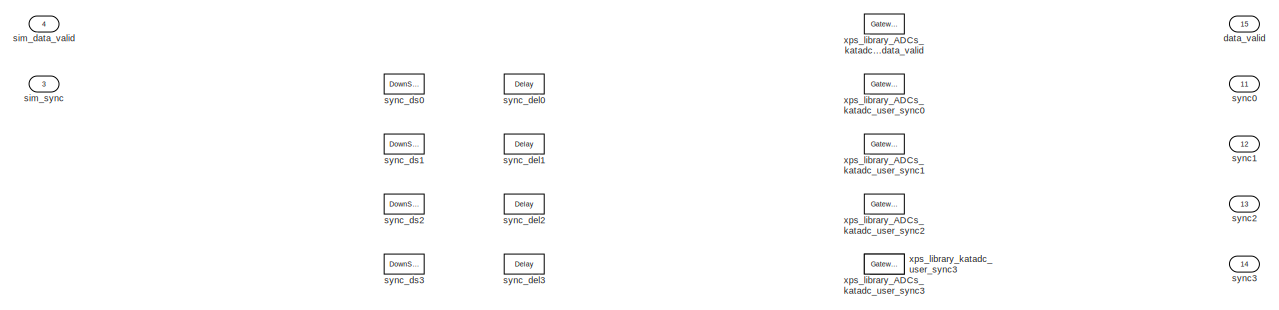
[diagram: ADCs/katadc - part 1/5, full width, top band]
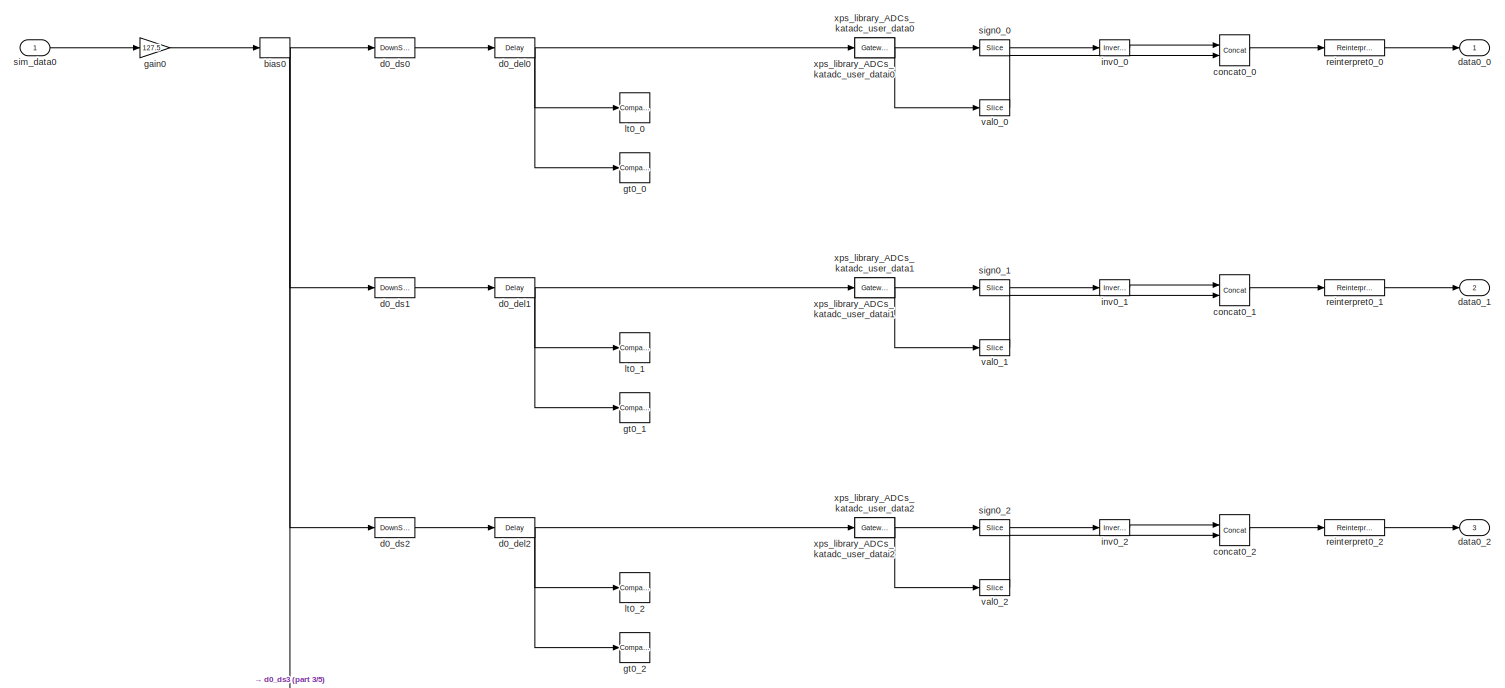
[diagram: ADCs/katadc - part 2/5, full width, top band]
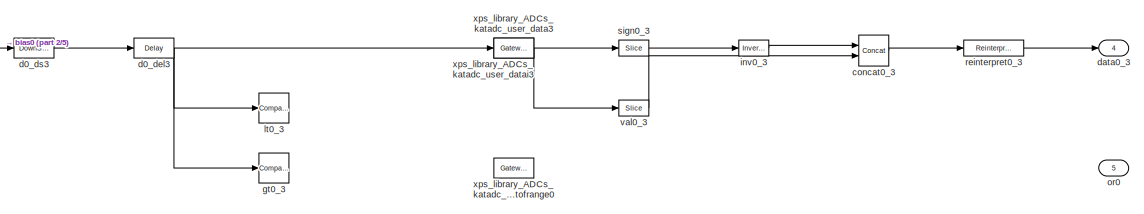
[diagram: ADCs/katadc - part 3/5, full width, middle band]
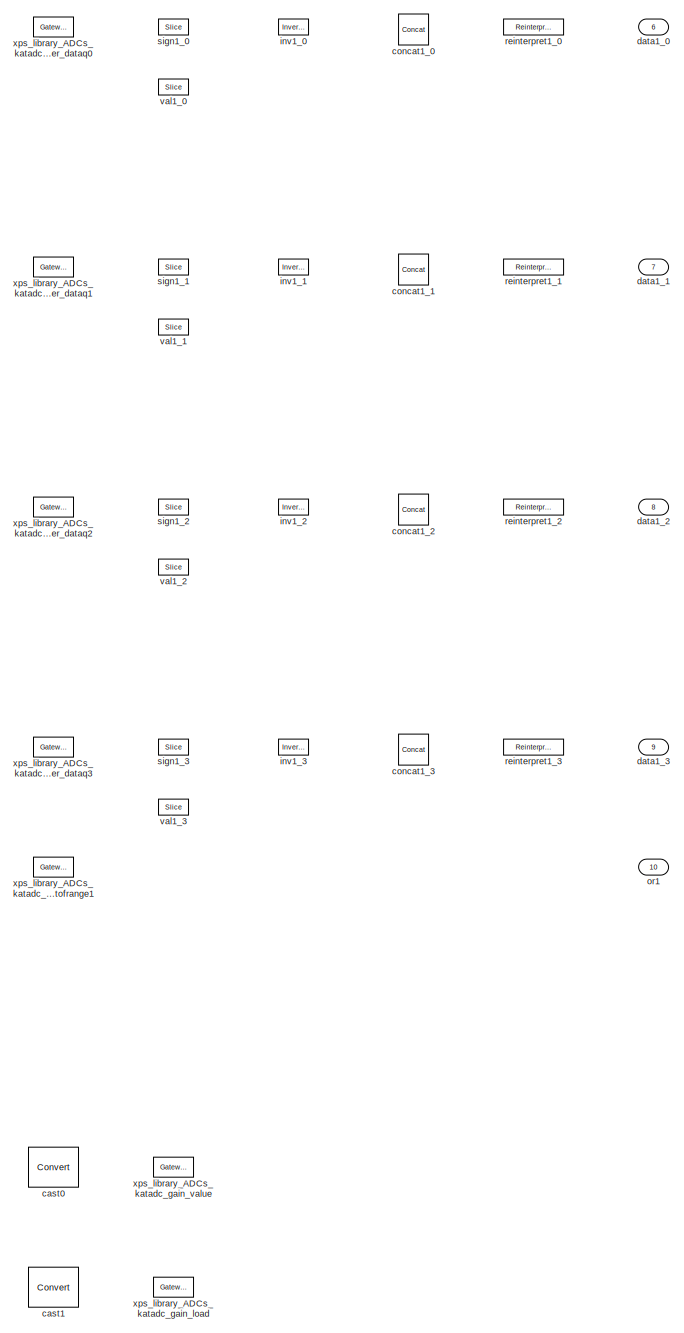
[diagram: ADCs/katadc - part 4/5, bottom right region]
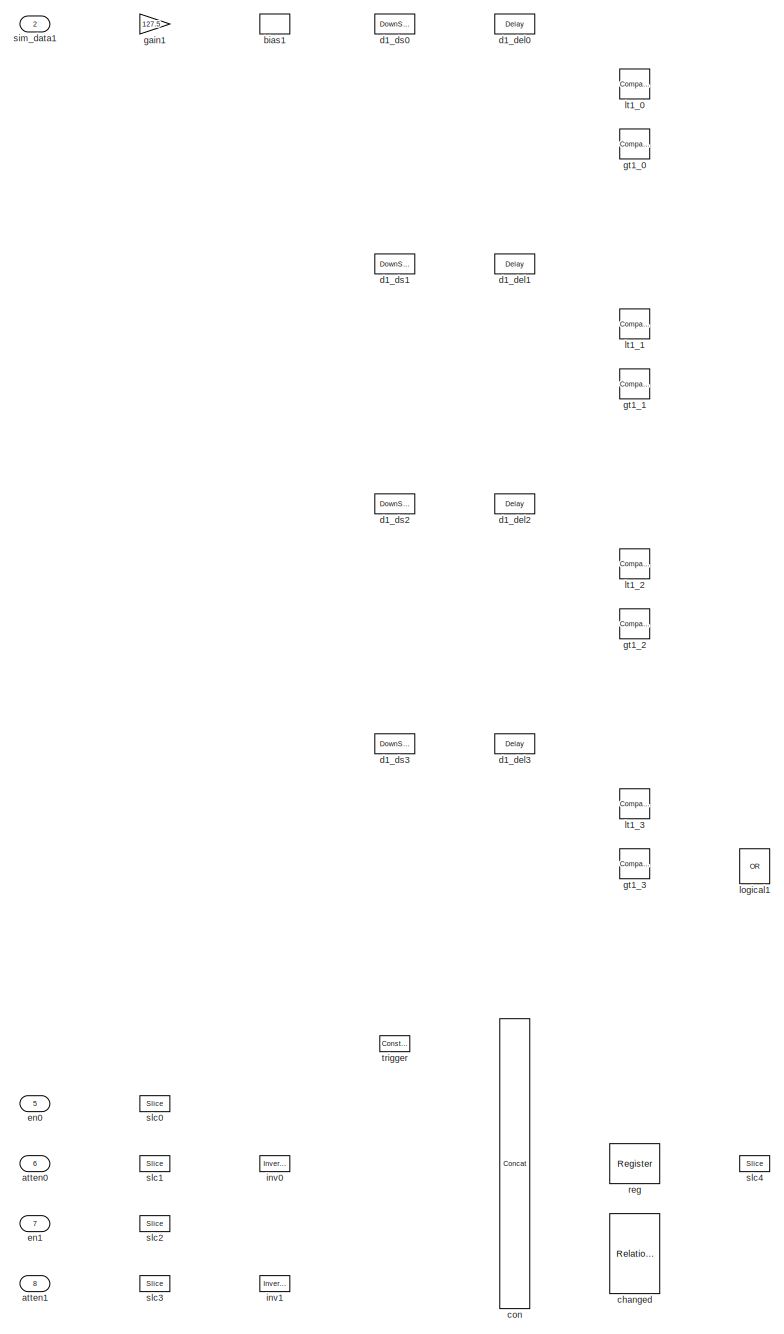
[diagram: ADCs/katadc - part 5/5, bottom left region]
BLOCK [SubSystem] ADCs/katadc
  Ports = [8, 15]
  RequestExecContextInheritance = off
  Tag = xps:katadc
  UserDataPersistent = on
  Variant = off
BLOCK [Inport] ADCs/katadc/atten0
  IconDisplay = Port number
  Port = 6
BLOCK [Inport] ADCs/katadc/atten1
  IconDisplay = Port number
  Port = 8
BLOCK [Bias] ADCs/katadc/bias0
  Bias = 127.5
BLOCK [Bias] ADCs/katadc/bias1
  Bias = 127.5
BLOCK [Reference] ADCs/katadc/cast0  REF=xbsIndex_r4/Convert
  Ports = [1, 1]
  SourceBlock = xbsIndex_r4/Convert
  SourceType = Xilinx Type Converter Block
BLOCK [Reference] ADCs/katadc/cast1  REF=xbsIndex_r4/Convert
  Ports = [1, 1]
  SourceBlock = xbsIndex_r4/Convert
  SourceType = Xilinx Type Converter Block
BLOCK [Reference] ADCs/katadc/changed  REF=xbsIndex_r4/Relational
  Ports = [2, 1]
  SourceBlock = xbsIndex_r4/Relational
  SourceType = Xilinx Arithmetic Relational Operator Block
BLOCK [Reference] ADCs/katadc/con  REF=xbsIndex_r4/Concat
  Ports = [5, 1]
  SourceBlock = xbsIndex_r4/Concat
  SourceType = Xilinx Bus Concatenator Block
BLOCK [Reference] ADCs/katadc/concat0_0  REF=xbsIndex_r4/Concat
  Ports = [2, 1]
  SourceBlock = xbsIndex_r4/Concat
  SourceType = Xilinx Bus Concatenator Block
BLOCK [Reference] ADCs/katadc/concat0_1  REF=xbsIndex_r4/Concat
  Ports = [2, 1]
  SourceBlock = xbsIndex_r4/Concat
  SourceType = Xilinx Bus Concatenator Block
BLOCK [Reference] ADCs/katadc/concat0_2  REF=xbsIndex_r4/Concat
  Ports = [2, 1]
  SourceBlock = xbsIndex_r4/Concat
  SourceType = Xilinx Bus Concatenator Block
BLOCK [Reference] ADCs/katadc/concat0_3  REF=xbsIndex_r4/Concat
  Ports = [2, 1]
  SourceBlock = xbsIndex_r4/Concat
  SourceType = Xilinx Bus Concatenator Block
BLOCK [Reference] ADCs/katadc/concat1_0  REF=xbsIndex_r4/Concat
  Ports = [2, 1]
  SourceBlock = xbsIndex_r4/Concat
  SourceType = Xilinx Bus Concatenator Block
BLOCK [Reference] ADCs/katadc/concat1_1  REF=xbsIndex_r4/Concat
  Ports = [2, 1]
  SourceBlock = xbsIndex_r4/Concat
  SourceType = Xilinx Bus Concatenator Block
BLOCK [Reference] ADCs/katadc/concat1_2  REF=xbsIndex_r4/Concat
  Ports = [2, 1]
  SourceBlock = xbsIndex_r4/Concat
  SourceType = Xilinx Bus Concatenator Block
BLOCK [Reference] ADCs/katadc/concat1_3  REF=xbsIndex_r4/Concat
  Ports = [2, 1]
  SourceBlock = xbsIndex_r4/Concat
  SourceType = Xilinx Bus Concatenator Block
BLOCK [Delay] ADCs/katadc/d0_del0
  InputPortMap = u0
  InputProcessing = Inherited
  Ports = [1, 1]
BLOCK [Delay] ADCs/katadc/d0_del1
  DelayLength = 1
  InputPortMap = u0
  InputProcessing = Inherited
  Ports = [1, 1]
BLOCK [Delay] ADCs/katadc/d0_del2
  DelayLength = 1
  InputPortMap = u0
  InputProcessing = Inherited
  Ports = [1, 1]
BLOCK [Delay] ADCs/katadc/d0_del3
  DelayLength = 1
  InputPortMap = u0
  InputProcessing = Inherited
  Ports = [1, 1]
BLOCK [DownSample] ADCs/katadc/d0_ds0
  InputProcessing = Elements as channels (sample based)
  N = 4
  RateOptions = Allow multirate processing
BLOCK [DownSample] ADCs/katadc/d0_ds1
  InputProcessing = Elements as channels (sample based)
  N = 4
  RateOptions = Allow multirate processing
  phase = 1
BLOCK [DownSample] ADCs/katadc/d0_ds2
  InputProcessing = Elements as channels (sample based)
  N = 4
  RateOptions = Allow multirate processing
  phase = 2
BLOCK [DownSample] ADCs/katadc/d0_ds3
  InputProcessing = Elements as channels (sample based)
  N = 4
  RateOptions = Allow multirate processing
  phase = 3
BLOCK [Delay] ADCs/katadc/d1_del0
  InputPortMap = u0
  InputProcessing = Inherited
  Ports = [1, 1]
BLOCK [Delay] ADCs/katadc/d1_del1
  DelayLength = 1
  InputPortMap = u0
  InputProcessing = Inherited
  Ports = [1, 1]
BLOCK [Delay] ADCs/katadc/d1_del2
  DelayLength = 1
  InputPortMap = u0
  InputProcessing = Inherited
  Ports = [1, 1]
BLOCK [Delay] ADCs/katadc/d1_del3
  DelayLength = 1
  InputPortMap = u0
  InputProcessing = Inherited
  Ports = [1, 1]
BLOCK [DownSample] ADCs/katadc/d1_ds0
  InputProcessing = Elements as channels (sample based)
  N = 4
  RateOptions = Allow multirate processing
BLOCK [DownSample] ADCs/katadc/d1_ds1
  InputProcessing = Elements as channels (sample based)
  N = 4
  RateOptions = Allow multirate processing
  phase = 1
BLOCK [DownSample] ADCs/katadc/d1_ds2
  InputProcessing = Elements as channels (sample based)
  N = 4
  RateOptions = Allow multirate processing
  phase = 2
BLOCK [DownSample] ADCs/katadc/d1_ds3
  InputProcessing = Elements as channels (sample based)
  N = 4
  RateOptions = Allow multirate processing
  phase = 3
BLOCK [Outport] ADCs/katadc/data0_0
  IconDisplay = Port number
BLOCK [Outport] ADCs/katadc/data0_1
  IconDisplay = Port number
  Port = 2
BLOCK [Outport] ADCs/katadc/data0_2
  IconDisplay = Port number
  Port = 3
BLOCK [Outport] ADCs/katadc/data0_3
  IconDisplay = Port number
  Port = 4
BLOCK [Outport] ADCs/katadc/data1_0
  IconDisplay = Port number
  Port = 6
BLOCK [Outport] ADCs/katadc/data1_1
  IconDisplay = Port number
  Port = 7
BLOCK [Outport] ADCs/katadc/data1_2
  IconDisplay = Port number
  Port = 8
BLOCK [Outport] ADCs/katadc/data1_3
  IconDisplay = Port number
  Port = 9
BLOCK [Outport] ADCs/katadc/data_valid
  IconDisplay = Port number
  Port = 15
BLOCK [Inport] ADCs/katadc/en0
  IconDisplay = Port number
  Port = 5
BLOCK [Inport] ADCs/katadc/en1
  IconDisplay = Port number
  Port = 7
BLOCK [Gain] ADCs/katadc/gain0
  Gain = 127.5
BLOCK [Gain] ADCs/katadc/gain1
  Gain = 127.5
BLOCK [Reference] ADCs/katadc/gt0_0  REF=simulink/Logic and Bit
Operations/Compare
To Constant
  Ports = [1, 1]
  SourceBlock = simulink/Logic and Bit\nOperations/Compare\nTo Constant
  SourceType = Compare To Constant
BLOCK [Reference] ADCs/katadc/gt0_1  REF=simulink/Logic and Bit
Operations/Compare
To Constant
  Ports = [1, 1]
  SourceBlock = simulink/Logic and Bit\nOperations/Compare\nTo Constant
  SourceType = Compare To Constant
BLOCK [Reference] ADCs/katadc/gt0_2  REF=simulink/Logic and Bit
Operations/Compare
To Constant
  Ports = [1, 1]
  SourceBlock = simulink/Logic and Bit\nOperations/Compare\nTo Constant
  SourceType = Compare To Constant
BLOCK [Reference] ADCs/katadc/gt0_3  REF=simulink/Logic and Bit
Operations/Compare
To Constant
  Ports = [1, 1]
  SourceBlock = simulink/Logic and Bit\nOperations/Compare\nTo Constant
  SourceType = Compare To Constant
BLOCK [Reference] ADCs/katadc/gt1_0  REF=simulink/Logic and Bit
Operations/Compare
To Constant
  Ports = [1, 1]
  SourceBlock = simulink/Logic and Bit\nOperations/Compare\nTo Constant
  SourceType = Compare To Constant
BLOCK [Reference] ADCs/katadc/gt1_1  REF=simulink/Logic and Bit
Operations/Compare
To Constant
  Ports = [1, 1]
  SourceBlock = simulink/Logic and Bit\nOperations/Compare\nTo Constant
  SourceType = Compare To Constant
BLOCK [Reference] ADCs/katadc/gt1_2  REF=simulink/Logic and Bit
Operations/Compare
To Constant
  Ports = [1, 1]
  SourceBlock = simulink/Logic and Bit\nOperations/Compare\nTo Constant
  SourceType = Compare To Constant
BLOCK [Reference] ADCs/katadc/gt1_3  REF=simulink/Logic and Bit
Operations/Compare
To Constant
  Ports = [1, 1]
  SourceBlock = simulink/Logic and Bit\nOperations/Compare\nTo Constant
  SourceType = Compare To Constant
BLOCK [Reference] ADCs/katadc/inv0  REF=xbsIndex_r4/Inverter
  Ports = [1, 1]
  SourceBlock = xbsIndex_r4/Inverter
  SourceType = Xilinx Inverter Block
BLOCK [Reference] ADCs/katadc/inv0_0  REF=xbsIndex_r4/Inverter
  Ports = [1, 1]
  SourceBlock = xbsIndex_r4/Inverter
  SourceType = Xilinx Inverter Block
BLOCK [Reference] ADCs/katadc/inv0_1  REF=xbsIndex_r4/Inverter
  Ports = [1, 1]
  SourceBlock = xbsIndex_r4/Inverter
  SourceType = Xilinx Inverter Block
BLOCK [Reference] ADCs/katadc/inv0_2  REF=xbsIndex_r4/Inverter
  Ports = [1, 1]
  SourceBlock = xbsIndex_r4/Inverter
  SourceType = Xilinx Inverter Block
BLOCK [Reference] ADCs/katadc/inv0_3  REF=xbsIndex_r4/Inverter
  Ports = [1, 1]
  SourceBlock = xbsIndex_r4/Inverter
  SourceType = Xilinx Inverter Block
BLOCK [Reference] ADCs/katadc/inv1  REF=xbsIndex_r4/Inverter
  Ports = [1, 1]
  SourceBlock = xbsIndex_r4/Inverter
  SourceType = Xilinx Inverter Block
BLOCK [Reference] ADCs/katadc/inv1_0  REF=xbsIndex_r4/Inverter
  Ports = [1, 1]
  SourceBlock = xbsIndex_r4/Inverter
  SourceType = Xilinx Inverter Block
BLOCK [Reference] ADCs/katadc/inv1_1  REF=xbsIndex_r4/Inverter
  Ports = [1, 1]
  SourceBlock = xbsIndex_r4/Inverter
  SourceType = Xilinx Inverter Block
BLOCK [Reference] ADCs/katadc/inv1_2  REF=xbsIndex_r4/Inverter
  Ports = [1, 1]
  SourceBlock = xbsIndex_r4/Inverter
  SourceType = Xilinx Inverter Block
BLOCK [Reference] ADCs/katadc/inv1_3  REF=xbsIndex_r4/Inverter
  Ports = [1, 1]
  SourceBlock = xbsIndex_r4/Inverter
  SourceType = Xilinx Inverter Block
BLOCK [Logic] ADCs/katadc/logical1
  Inputs = 8
  Operator = OR
  Ports = [8, 1]
BLOCK [Reference] ADCs/katadc/lt0_0  REF=simulink/Logic and Bit
Operations/Compare
To Constant
  Ports = [1, 1]
  SourceBlock = simulink/Logic and Bit\nOperations/Compare\nTo Constant
  SourceType = Compare To Constant
BLOCK [Reference] ADCs/katadc/lt0_1  REF=simulink/Logic and Bit
Operations/Compare
To Constant
  Ports = [1, 1]
  SourceBlock = simulink/Logic and Bit\nOperations/Compare\nTo Constant
  SourceType = Compare To Constant
BLOCK [Reference] ADCs/katadc/lt0_2  REF=simulink/Logic and Bit
Operations/Compare
To Constant
  Ports = [1, 1]
  SourceBlock = simulink/Logic and Bit\nOperations/Compare\nTo Constant
  SourceType = Compare To Constant
BLOCK [Reference] ADCs/katadc/lt0_3  REF=simulink/Logic and Bit
Operations/Compare
To Constant
  Ports = [1, 1]
  SourceBlock = simulink/Logic and Bit\nOperations/Compare\nTo Constant
  SourceType = Compare To Constant
BLOCK [Reference] ADCs/katadc/lt1_0  REF=simulink/Logic and Bit
Operations/Compare
To Constant
  Ports = [1, 1]
  SourceBlock = simulink/Logic and Bit\nOperations/Compare\nTo Constant
  SourceType = Compare To Constant
BLOCK [Reference] ADCs/katadc/lt1_1  REF=simulink/Logic and Bit
Operations/Compare
To Constant
  Ports = [1, 1]
  SourceBlock = simulink/Logic and Bit\nOperations/Compare\nTo Constant
  SourceType = Compare To Constant
BLOCK [Reference] ADCs/katadc/lt1_2  REF=simulink/Logic and Bit
Operations/Compare
To Constant
  Ports = [1, 1]
  SourceBlock = simulink/Logic and Bit\nOperations/Compare\nTo Constant
  SourceType = Compare To Constant
BLOCK [Reference] ADCs/katadc/lt1_3  REF=simulink/Logic and Bit
Operations/Compare
To Constant
  Ports = [1, 1]
  SourceBlock = simulink/Logic and Bit\nOperations/Compare\nTo Constant
  SourceType = Compare To Constant
BLOCK [Outport] ADCs/katadc/or0
  IconDisplay = Port number
  Port = 5
BLOCK [Outport] ADCs/katadc/or1
  IconDisplay = Port number
  Port = 10
BLOCK [Reference] ADCs/katadc/reg  REF=xbsIndex_r4/Register
  Ports = [1, 1]
  SourceBlock = xbsIndex_r4/Register
  SourceType = Xilinx Register Block
BLOCK [Reference] ADCs/katadc/reinterpret0_0  REF=xbsIndex_r4/Reinterpret
  Ports = [1, 1]
  SourceBlock = xbsIndex_r4/Reinterpret
  SourceType = Xilinx Type Reinterpreter Block
BLOCK [Reference] ADCs/katadc/reinterpret0_1  REF=xbsIndex_r4/Reinterpret
  Ports = [1, 1]
  SourceBlock = xbsIndex_r4/Reinterpret
  SourceType = Xilinx Type Reinterpreter Block
BLOCK [Reference] ADCs/katadc/reinterpret0_2  REF=xbsIndex_r4/Reinterpret
  Ports = [1, 1]
  SourceBlock = xbsIndex_r4/Reinterpret
  SourceType = Xilinx Type Reinterpreter Block
BLOCK [Reference] ADCs/katadc/reinterpret0_3  REF=xbsIndex_r4/Reinterpret
  Ports = [1, 1]
  SourceBlock = xbsIndex_r4/Reinterpret
  SourceType = Xilinx Type Reinterpreter Block
BLOCK [Reference] ADCs/katadc/reinterpret1_0  REF=xbsIndex_r4/Reinterpret
  Ports = [1, 1]
  SourceBlock = xbsIndex_r4/Reinterpret
  SourceType = Xilinx Type Reinterpreter Block
BLOCK [Reference] ADCs/katadc/reinterpret1_1  REF=xbsIndex_r4/Reinterpret
  Ports = [1, 1]
  SourceBlock = xbsIndex_r4/Reinterpret
  SourceType = Xilinx Type Reinterpreter Block
BLOCK [Reference] ADCs/katadc/reinterpret1_2  REF=xbsIndex_r4/Reinterpret
  Ports = [1, 1]
  SourceBlock = xbsIndex_r4/Reinterpret
  SourceType = Xilinx Type Reinterpreter Block
BLOCK [Reference] ADCs/katadc/reinterpret1_3  REF=xbsIndex_r4/Reinterpret
  Ports = [1, 1]
  SourceBlock = xbsIndex_r4/Reinterpret
  SourceType = Xilinx Type Reinterpreter Block
BLOCK [Reference] ADCs/katadc/sign0_0  REF=xbsIndex_r4/Slice
  Ports = [1, 1]
  SourceBlock = xbsIndex_r4/Slice
  SourceType = Xilinx Bit Slice Extractor Block
BLOCK [Reference] ADCs/katadc/sign0_1  REF=xbsIndex_r4/Slice
  Ports = [1, 1]
  SourceBlock = xbsIndex_r4/Slice
  SourceType = Xilinx Bit Slice Extractor Block
BLOCK [Reference] ADCs/katadc/sign0_2  REF=xbsIndex_r4/Slice
  Ports = [1, 1]
  SourceBlock = xbsIndex_r4/Slice
  SourceType = Xilinx Bit Slice Extractor Block
BLOCK [Reference] ADCs/katadc/sign0_3  REF=xbsIndex_r4/Slice
  Ports = [1, 1]
  SourceBlock = xbsIndex_r4/Slice
  SourceType = Xilinx Bit Slice Extractor Block
BLOCK [Reference] ADCs/katadc/sign1_0  REF=xbsIndex_r4/Slice
  Ports = [1, 1]
  SourceBlock = xbsIndex_r4/Slice
  SourceType = Xilinx Bit Slice Extractor Block
BLOCK [Reference] ADCs/katadc/sign1_1  REF=xbsIndex_r4/Slice
  Ports = [1, 1]
  SourceBlock = xbsIndex_r4/Slice
  SourceType = Xilinx Bit Slice Extractor Block
BLOCK [Reference] ADCs/katadc/sign1_2  REF=xbsIndex_r4/Slice
  Ports = [1, 1]
  SourceBlock = xbsIndex_r4/Slice
  SourceType = Xilinx Bit Slice Extractor Block
BLOCK [Reference] ADCs/katadc/sign1_3  REF=xbsIndex_r4/Slice
  Ports = [1, 1]
  SourceBlock = xbsIndex_r4/Slice
  SourceType = Xilinx Bit Slice Extractor Block
BLOCK [Inport] ADCs/katadc/sim_data0
  IconDisplay = Port number
BLOCK [Inport] ADCs/katadc/sim_data1
  IconDisplay = Port number
  Port = 2
BLOCK [Inport] ADCs/katadc/sim_data_valid
  IconDisplay = Port number
  Port = 4
BLOCK [Inport] ADCs/katadc/sim_sync
  IconDisplay = Port number
  Port = 3
BLOCK [Reference] ADCs/katadc/slc0  REF=xbsIndex_r4/Slice
  Ports = [1, 1]
  SourceBlock = xbsIndex_r4/Slice
  SourceType = Xilinx Bit Slice Extractor Block
BLOCK [Reference] ADCs/katadc/slc1  REF=xbsIndex_r4/Slice
  Ports = [1, 1]
  SourceBlock = xbsIndex_r4/Slice
  SourceType = Xilinx Bit Slice Extractor Block
BLOCK [Reference] ADCs/katadc/slc2  REF=xbsIndex_r4/Slice
  Ports = [1, 1]
  SourceBlock = xbsIndex_r4/Slice
  SourceType = Xilinx Bit Slice Extractor Block
BLOCK [Reference] ADCs/katadc/slc3  REF=xbsIndex_r4/Slice
  Ports = [1, 1]
  SourceBlock = xbsIndex_r4/Slice
  SourceType = Xilinx Bit Slice Extractor Block
BLOCK [Reference] ADCs/katadc/slc4  REF=xbsIndex_r4/Slice
  Ports = [1, 1]
  SourceBlock = xbsIndex_r4/Slice
  SourceType = Xilinx Bit Slice Extractor Block
BLOCK [Outport] ADCs/katadc/sync0
  IconDisplay = Port number
  Port = 11
BLOCK [Outport] ADCs/katadc/sync1
  IconDisplay = Port number
  Port = 12
BLOCK [Outport] ADCs/katadc/sync2
  IconDisplay = Port number
  Port = 13
BLOCK [Outport] ADCs/katadc/sync3
  IconDisplay = Port number
  Port = 14
BLOCK [Delay] ADCs/katadc/sync_del0
  InputPortMap = u0
  InputProcessing = Inherited
  Ports = [1, 1]
BLOCK [Delay] ADCs/katadc/sync_del1
  DelayLength = 1
  InputPortMap = u0
  InputProcessing = Inherited
  Ports = [1, 1]
BLOCK [Delay] ADCs/katadc/sync_del2
  DelayLength = 1
  InputPortMap = u0
  InputProcessing = Inherited
  Ports = [1, 1]
BLOCK [Delay] ADCs/katadc/sync_del3
  DelayLength = 1
  InputPortMap = u0
  InputProcessing = Inherited
  Ports = [1, 1]
BLOCK [DownSample] ADCs/katadc/sync_ds0
  InputProcessing = Elements as channels (sample based)
  N = 4
  RateOptions = Allow multirate processing
BLOCK [DownSample] ADCs/katadc/sync_ds1
  InputProcessing = Elements as channels (sample based)
  N = 4
  RateOptions = Allow multirate processing
  phase = 1
BLOCK [DownSample] ADCs/katadc/sync_ds2
  InputProcessing = Elements as channels (sample based)
  N = 4
  RateOptions = Allow multirate processing
  phase = 2
BLOCK [DownSample] ADCs/katadc/sync_ds3
  InputProcessing = Elements as channels (sample based)
  N = 4
  RateOptions = Allow multirate processing
  phase = 3
BLOCK [Reference] ADCs/katadc/trigger  REF=xbsIndex_r4/Constant
  Ports = [0, 1]
  SourceBlock = xbsIndex_r4/Constant
  SourceType = Xilinx Constant Block Block
BLOCK [Reference] ADCs/katadc/val0_0  REF=xbsIndex_r4/Slice
  Ports = [1, 1]
  SourceBlock = xbsIndex_r4/Slice
  SourceType = Xilinx Bit Slice Extractor Block
BLOCK [Reference] ADCs/katadc/val0_1  REF=xbsIndex_r4/Slice
  Ports = [1, 1]
  SourceBlock = xbsIndex_r4/Slice
  SourceType = Xilinx Bit Slice Extractor Block
BLOCK [Reference] ADCs/katadc/val0_2  REF=xbsIndex_r4/Slice
  Ports = [1, 1]
  SourceBlock = xbsIndex_r4/Slice
  SourceType = Xilinx Bit Slice Extractor Block
BLOCK [Reference] ADCs/katadc/val0_3  REF=xbsIndex_r4/Slice
  Ports = [1, 1]
  SourceBlock = xbsIndex_r4/Slice
  SourceType = Xilinx Bit Slice Extractor Block
BLOCK [Reference] ADCs/katadc/val1_0  REF=xbsIndex_r4/Slice
  Ports = [1, 1]
  SourceBlock = xbsIndex_r4/Slice
  SourceType = Xilinx Bit Slice Extractor Block
BLOCK [Reference] ADCs/katadc/val1_1  REF=xbsIndex_r4/Slice
  Ports = [1, 1]
  SourceBlock = xbsIndex_r4/Slice
  SourceType = Xilinx Bit Slice Extractor Block
BLOCK [Reference] ADCs/katadc/val1_2  REF=xbsIndex_r4/Slice
  Ports = [1, 1]
  SourceBlock = xbsIndex_r4/Slice
  SourceType = Xilinx Bit Slice Extractor Block
BLOCK [Reference] ADCs/katadc/val1_3  REF=xbsIndex_r4/Slice
  Ports = [1, 1]
  SourceBlock = xbsIndex_r4/Slice
  SourceType = Xilinx Bit Slice Extractor Block
BLOCK [Reference] ADCs/katadc/xps_library_ADCs_katadc_gain_load  REF=xbsIndex_r4/Gateway Out
  Ports = [1, 1]
  SourceBlock = xbsIndex_r4/Gateway Out
  SourceType = Xilinx Gateway Out Block
BLOCK [Reference] ADCs/katadc/xps_library_ADCs_katadc_gain_value  REF=xbsIndex_r4/Gateway Out
  Ports = [1, 1]
  SourceBlock = xbsIndex_r4/Gateway Out
  SourceType = Xilinx Gateway Out Block
BLOCK [Reference] ADCs/katadc/xps_library_ADCs_katadc_user_data0  REF=xbsIndex_r4/Gateway In
  Ports = [1, 1]
  SourceBlock = xbsIndex_r4/Gateway In
  SourceType = Xilinx Gateway In Block
BLOCK [Reference] ADCs/katadc/xps_library_ADCs_katadc_user_data1  REF=xbsIndex_r4/Gateway In
  Ports = [1, 1]
  SourceBlock = xbsIndex_r4/Gateway In
  SourceType = Xilinx Gateway In Block
BLOCK [Reference] ADCs/katadc/xps_library_ADCs_katadc_user_data2  REF=xbsIndex_r4/Gateway In
  Ports = [1, 1]
  SourceBlock = xbsIndex_r4/Gateway In
  SourceType = Xilinx Gateway In Block
BLOCK [Reference] ADCs/katadc/xps_library_ADCs_katadc_user_data3  REF=xbsIndex_r4/Gateway In
  Ports = [1, 1]
  SourceBlock = xbsIndex_r4/Gateway In
  SourceType = Xilinx Gateway In Block
BLOCK [Reference] ADCs/katadc/xps_library_ADCs_katadc_user_data_valid  REF=xbsIndex_r4/Gateway In
  Ports = [1, 1]
  SourceBlock = xbsIndex_r4/Gateway In
  SourceType = Xilinx Gateway In Block
BLOCK [Reference] ADCs/katadc/xps_library_ADCs_katadc_user_datai0  REF=xbsIndex_r4/Gateway In
  Ports = [1, 1]
  SourceBlock = xbsIndex_r4/Gateway In
  SourceType = Xilinx Gateway In Block
BLOCK [Reference] ADCs/katadc/xps_library_ADCs_katadc_user_datai1  REF=xbsIndex_r4/Gateway In
  Ports = [1, 1]
  SourceBlock = xbsIndex_r4/Gateway In
  SourceType = Xilinx Gateway In Block
BLOCK [Reference] ADCs/katadc/xps_library_ADCs_katadc_user_datai2  REF=xbsIndex_r4/Gateway In
  Ports = [1, 1]
  SourceBlock = xbsIndex_r4/Gateway In
  SourceType = Xilinx Gateway In Block
BLOCK [Reference] ADCs/katadc/xps_library_ADCs_katadc_user_datai3  REF=xbsIndex_r4/Gateway In
  Ports = [1, 1]
  SourceBlock = xbsIndex_r4/Gateway In
  SourceType = Xilinx Gateway In Block
BLOCK [Reference] ADCs/katadc/xps_library_ADCs_katadc_user_dataq0  REF=xbsIndex_r4/Gateway In
  Ports = [1, 1]
  SourceBlock = xbsIndex_r4/Gateway In
  SourceType = Xilinx Gateway In Block
BLOCK [Reference] ADCs/katadc/xps_library_ADCs_katadc_user_dataq1  REF=xbsIndex_r4/Gateway In
  Ports = [1, 1]
  SourceBlock = xbsIndex_r4/Gateway In
  SourceType = Xilinx Gateway In Block
BLOCK [Reference] ADCs/katadc/xps_library_ADCs_katadc_user_dataq2  REF=xbsIndex_r4/Gateway In
  Ports = [1, 1]
  SourceBlock = xbsIndex_r4/Gateway In
  SourceType = Xilinx Gateway In Block
BLOCK [Reference] ADCs/katadc/xps_library_ADCs_katadc_user_dataq3  REF=xbsIndex_r4/Gateway In
  Ports = [1, 1]
  SourceBlock = xbsIndex_r4/Gateway In
  SourceType = Xilinx Gateway In Block
BLOCK [Reference] ADCs/katadc/xps_library_ADCs_katadc_user_outofrange0  REF=xbsIndex_r4/Gateway In
  Ports = [1, 1]
  SourceBlock = xbsIndex_r4/Gateway In
  SourceType = Xilinx Gateway In Block
BLOCK [Reference] ADCs/katadc/xps_library_ADCs_katadc_user_outofrange1  REF=xbsIndex_r4/Gateway In
  Ports = [1, 1]
  SourceBlock = xbsIndex_r4/Gateway In
  SourceType = Xilinx Gateway In Block
BLOCK [Reference] ADCs/katadc/xps_library_ADCs_katadc_user_sync0  REF=xbsIndex_r4/Gateway In
  Ports = [1, 1]
  SourceBlock = xbsIndex_r4/Gateway In
  SourceType = Xilinx Gateway In Block
BLOCK [Reference] ADCs/katadc/xps_library_ADCs_katadc_user_sync1  REF=xbsIndex_r4/Gateway In
  Ports = [1, 1]
  SourceBlock = xbsIndex_r4/Gateway In
  SourceType = Xilinx Gateway In Block
BLOCK [Reference] ADCs/katadc/xps_library_ADCs_katadc_user_sync2  REF=xbsIndex_r4/Gateway In
  Ports = [1, 1]
  SourceBlock = xbsIndex_r4/Gateway In
  SourceType = Xilinx Gateway In Block
BLOCK [Reference] ADCs/katadc/xps_library_ADCs_katadc_user_sync3  REF=xbsIndex_r4/Gateway In
  Ports = [1, 1]
  SourceBlock = xbsIndex_r4/Gateway In
  SourceType = Xilinx Gateway In Block
BLOCK [Reference] ADCs/katadc/xps_library_katadc_user_sync3  REF=xbsIndex_r4/Gateway In
  Ports = [1, 1]
  SourceBlock = xbsIndex_r4/Gateway In
  SourceType = Xilinx Gateway In Block
BLOCK [SubSystem] ADCs/of1
  Ports = [2, 1]
  RequestExecContextInheritance = off
  Variant = off
BLOCK [Reference] ADCs/of1/Compare To Constant1  REF=simulink/Logic and Bit
Operations/Compare
To Constant
  Ports = [1, 1]
  SourceBlock = simulink/Logic and Bit\nOperations/Compare\nTo Constant
  SourceType = Compare To Constant
BLOCK [Reference] ADCs/of1/Compare To Constant2  REF=simulink/Logic and Bit
Operations/Compare
To Constant
  Ports = [1, 1]
  SourceBlock = simulink/Logic and Bit\nOperations/Compare\nTo Constant
  SourceType = Compare To Constant
BLOCK [Reference] ADCs/of1/Compare To Constant6  REF=simulink/Logic and Bit
Operations/Compare
To Constant
  Ports = [1, 1]
  SourceBlock = simulink/Logic and Bit\nOperations/Compare\nTo Constant
  SourceType = Compare To Constant
BLOCK [Reference] ADCs/of1/Compare To Constant7  REF=simulink/Logic and Bit
Operations/Compare
To Constant
  Ports = [1, 1]
  SourceBlock = simulink/Logic and Bit\nOperations/Compare\nTo Constant
  SourceType = Compare To Constant
BLOCK [Gain] ADCs/of1/Gain
  Gain = 2^(bit_num)
  OutDataTypeStr = Inherit: Inherit via internal rule
  ParamDataTypeStr = Inherit: Inherit via internal rule
  SaturateOnIntegerOverflow = off
BLOCK [Logic] ADCs/of1/Logical Operator1
  AllPortsSameDT = off
  Inputs = 4
  Operator = OR
  OutDataTypeStr = boolean
  Ports = [4, 1]
BLOCK [Outport] ADCs/of1/of
  IconDisplay = Port number
BLOCK [Inport] ADCs/of1/s0
  IconDisplay = Port number
BLOCK [Inport] ADCs/of1/s1
  IconDisplay = Port number
  Port = 2
BLOCK [SubSystem] ADCs/of_detect_bus
  Ports = [8, 1]
  RequestExecContextInheritance = off
  UserDataPersistent = on
  Variant = off
BLOCK [Sum] ADCs/of_detect_bus/Add
  InputSameDT = off
  Inputs = ++++
  OutDataTypeStr = Inherit: Inherit via internal rule
  Ports = [4, 1]
  SaturateOnIntegerOverflow = off
BLOCK [Reference] ADCs/of_detect_bus/of0  REF=xps_library/ADCs/of1  (lib defined in mdl_00b5cec29cd0, mdl_02ab6ecaa3d1, +5 more)
  Ports = [2, 1]
  SourceBlock = xps_library/ADCs/of1
  SourceType = of
BLOCK [Reference] ADCs/of_detect_bus/of1  REF=casper_library_misc/of1  (lib defined in mdl_357510c33b49, mdl_57b5f564ae26, +4 more)
  Ports = [2, 1]
  SourceBlock = casper_library_misc/of1
  SourceType = of
BLOCK [Reference] ADCs/of_detect_bus/of2  REF=casper_library_misc/of1  (lib defined in mdl_357510c33b49, mdl_57b5f564ae26, +4 more)
  Ports = [2, 1]
  SourceBlock = casper_library_misc/of1
  SourceType = of
BLOCK [Reference] ADCs/of_detect_bus/of3  REF=casper_library_misc/of1  (lib defined in mdl_357510c33b49, mdl_57b5f564ae26, +4 more)
  Ports = [2, 1]
  SourceBlock = casper_library_misc/of1
  SourceType = of
BLOCK [Outport] ADCs/of_detect_bus/overflow
  IconDisplay = Port number
BLOCK [Inport] ADCs/of_detect_bus/s0
  IconDisplay = Port number
BLOCK [Inport] ADCs/of_detect_bus/s1
  IconDisplay = Port number
  Port = 2
BLOCK [Inport] ADCs/of_detect_bus/s2
  IconDisplay = Port number
  Port = 3
BLOCK [Inport] ADCs/of_detect_bus/s3
  IconDisplay = Port number
  Port = 4
BLOCK [Inport] ADCs/of_detect_bus/s4
  IconDisplay = Port number
  Port = 5
BLOCK [Inport] ADCs/of_detect_bus/s5
  IconDisplay = Port number
  Port = 6
BLOCK [Inport] ADCs/of_detect_bus/s6
  IconDisplay = Port number
  Port = 7
BLOCK [Inport] ADCs/of_detect_bus/s7
  IconDisplay = Port number
  Port = 8
BLOCK [SubSystem] ADCs/quadc
  Ports = [6, 6]
  RequestExecContextInheritance = off
  Tag = xps:quadc
  Variant = off
BLOCK [Outport] ADCs/quadc/data0
  IconDisplay = Port number
BLOCK [Outport] ADCs/quadc/data1
  IconDisplay = Port number
  Port = 2
BLOCK [Outport] ADCs/quadc/data2
  IconDisplay = Port number
  Port = 3
BLOCK [Outport] ADCs/quadc/data3
  IconDisplay = Port number
  Port = 4
BLOCK [Inport] ADCs/quadc/sim_adc0
  IconDisplay = Port number
BLOCK [Inport] ADCs/quadc/sim_adc1
  IconDisplay = Port number
  Port = 2
BLOCK [Inport] ADCs/quadc/sim_adc2
  IconDisplay = Port number
  Port = 3
BLOCK [Inport] ADCs/quadc/sim_adc3
  IconDisplay = Port number
  Port = 4
BLOCK [Inport] ADCs/quadc/sim_sync
  IconDisplay = Port number
  Port = 6
BLOCK [Inport] ADCs/quadc/sim_valid
  IconDisplay = Port number
  Port = 5
BLOCK [Outport] ADCs/quadc/sync
  IconDisplay = Port number
  Port = 6
BLOCK [Outport] ADCs/quadc/valid
  IconDisplay = Port number
  Port = 5
BLOCK [Reference] ADCs/quadc/xps_library_ADCs_quadc_adc0_data  REF=xbsIndex_r4/Gateway In
  Ports = [1, 1]
  SourceBlock = xbsIndex_r4/Gateway In
  SourceType = Xilinx Gateway In Block
BLOCK [Reference] ADCs/quadc/xps_library_ADCs_quadc_adc1_data  REF=xbsIndex_r4/Gateway In
  Ports = [1, 1]
  SourceBlock = xbsIndex_r4/Gateway In
  SourceType = Xilinx Gateway In Block
BLOCK [Reference] ADCs/quadc/xps_library_ADCs_quadc_adc2_data  REF=xbsIndex_r4/Gateway In
  Ports = [1, 1]
  SourceBlock = xbsIndex_r4/Gateway In
  SourceType = Xilinx Gateway In Block
BLOCK [Reference] ADCs/quadc/xps_library_ADCs_quadc_adc3_data  REF=xbsIndex_r4/Gateway In
  Ports = [1, 1]
  SourceBlock = xbsIndex_r4/Gateway In
  SourceType = Xilinx Gateway In Block
BLOCK [Reference] ADCs/quadc/xps_library_ADCs_quadc_sync  REF=xbsIndex_r4/Gateway In
  Ports = [1, 1]
  SourceBlock = xbsIndex_r4/Gateway In
  SourceType = Xilinx Gateway In Block
BLOCK [Reference] ADCs/quadc/xps_library_ADCs_quadc_valid  REF=xbsIndex_r4/Gateway In
  Ports = [1, 1]
  SourceBlock = xbsIndex_r4/Gateway In
  SourceType = Xilinx Gateway In Block
BLOCK [SubSystem] ADCs/snap_adc
  Ports = [12, 12]
  RequestExecContextInheritance = off
  Tag = xps:snap_adc
  UserDataPersistent = on
  Variant = off
BLOCK [Outport] ADCs/snap_adc/a1
  IconDisplay = Port number
BLOCK [Inport] ADCs/snap_adc/a1_sim
  IconDisplay = Port number
BLOCK [Outport] ADCs/snap_adc/a2
  IconDisplay = Port number
  Port = 2
BLOCK [Inport] ADCs/snap_adc/a2_sim
  IconDisplay = Port number
  Port = 2
BLOCK [Outport] ADCs/snap_adc/a3
  IconDisplay = Port number
  Port = 3
BLOCK [Inport] ADCs/snap_adc/a3_sim
  IconDisplay = Port number
  Port = 3
BLOCK [Outport] ADCs/snap_adc/a4
  IconDisplay = Port number
  Port = 4
BLOCK [Inport] ADCs/snap_adc/a4_sim
  IconDisplay = Port number
  Port = 4
BLOCK [Outport] ADCs/snap_adc/b1
  IconDisplay = Port number
  Port = 5
BLOCK [Inport] ADCs/snap_adc/b1_sim
  IconDisplay = Port number
  Port = 5
BLOCK [Outport] ADCs/snap_adc/b2
  IconDisplay = Port number
  Port = 6
BLOCK [Inport] ADCs/snap_adc/b2_sim
  IconDisplay = Port number
  Port = 6
BLOCK [Outport] ADCs/snap_adc/b3
  IconDisplay = Port number
  Port = 7
BLOCK [Inport] ADCs/snap_adc/b3_sim
  IconDisplay = Port number
  Port = 7
BLOCK [Outport] ADCs/snap_adc/b4
  IconDisplay = Port number
  Port = 8
BLOCK [Inport] ADCs/snap_adc/b4_sim
  IconDisplay = Port number
  Port = 8
BLOCK [Outport] ADCs/snap_adc/c1
  IconDisplay = Port number
  Port = 9
BLOCK [Inport] ADCs/snap_adc/c1_sim
  IconDisplay = Port number
  Port = 9
BLOCK [Outport] ADCs/snap_adc/c2
  IconDisplay = Port number
  Port = 10
BLOCK [Inport] ADCs/snap_adc/c2_sim
  IconDisplay = Port number
  Port = 10
BLOCK [Outport] ADCs/snap_adc/c3
  IconDisplay = Port number
  Port = 11
BLOCK [Inport] ADCs/snap_adc/c3_sim
  IconDisplay = Port number
  Port = 11
BLOCK [Outport] ADCs/snap_adc/c4
  IconDisplay = Port number
  Port = 12
BLOCK [Inport] ADCs/snap_adc/c4_sim
  IconDisplay = Port number
  Port = 12
BLOCK [Reference] ADCs/snap_adc/spectrometer_snap_adc_c4  REF=xbsIndex_r4/Gateway In
  Ports = [1, 1]
  SourceBlock = xbsIndex_r4/Gateway In
  SourceType = Xilinx Gateway In Block
BLOCK [Reference] ADCs/snap_adc/xps_library_ADCs_snap_adc_a1  REF=xbsIndex_r4/Gateway In
  Ports = [1, 1]
  SourceBlock = xbsIndex_r4/Gateway In
  SourceType = Xilinx Gateway In Block
BLOCK [Reference] ADCs/snap_adc/xps_library_ADCs_snap_adc_a2  REF=xbsIndex_r4/Gateway In
  Ports = [1, 1]
  SourceBlock = xbsIndex_r4/Gateway In
  SourceType = Xilinx Gateway In Block
BLOCK [Reference] ADCs/snap_adc/xps_library_ADCs_snap_adc_a3  REF=xbsIndex_r4/Gateway In
  Ports = [1, 1]
  SourceBlock = xbsIndex_r4/Gateway In
  SourceType = Xilinx Gateway In Block
BLOCK [Reference] ADCs/snap_adc/xps_library_ADCs_snap_adc_a4  REF=xbsIndex_r4/Gateway In
  Ports = [1, 1]
  SourceBlock = xbsIndex_r4/Gateway In
  SourceType = Xilinx Gateway In Block
BLOCK [Reference] ADCs/snap_adc/xps_library_ADCs_snap_adc_b1  REF=xbsIndex_r4/Gateway In
  Ports = [1, 1]
  SourceBlock = xbsIndex_r4/Gateway In
  SourceType = Xilinx Gateway In Block
BLOCK [Reference] ADCs/snap_adc/xps_library_ADCs_snap_adc_b2  REF=xbsIndex_r4/Gateway In
  Ports = [1, 1]
  SourceBlock = xbsIndex_r4/Gateway In
  SourceType = Xilinx Gateway In Block
BLOCK [Reference] ADCs/snap_adc/xps_library_ADCs_snap_adc_b3  REF=xbsIndex_r4/Gateway In
  Ports = [1, 1]
  SourceBlock = xbsIndex_r4/Gateway In
  SourceType = Xilinx Gateway In Block
BLOCK [Reference] ADCs/snap_adc/xps_library_ADCs_snap_adc_b4  REF=xbsIndex_r4/Gateway In
  Ports = [1, 1]
  SourceBlock = xbsIndex_r4/Gateway In
  SourceType = Xilinx Gateway In Block
BLOCK [Reference] ADCs/snap_adc/xps_library_ADCs_snap_adc_c1  REF=xbsIndex_r4/Gateway In
  Ports = [1, 1]
  SourceBlock = xbsIndex_r4/Gateway In
  SourceType = Xilinx Gateway In Block
BLOCK [Reference] ADCs/snap_adc/xps_library_ADCs_snap_adc_c2  REF=xbsIndex_r4/Gateway In
  Ports = [1, 1]
  SourceBlock = xbsIndex_r4/Gateway In
  SourceType = Xilinx Gateway In Block
BLOCK [Reference] ADCs/snap_adc/xps_library_ADCs_snap_adc_c3  REF=xbsIndex_r4/Gateway In
  Ports = [1, 1]
  SourceBlock = xbsIndex_r4/Gateway In
  SourceType = Xilinx Gateway In Block
BLOCK [Reference] ADCs/snap_adc/xps_library_ADCs_snap_adc_c4  REF=xbsIndex_r4/Gateway In
  Ports = [1, 1]
  SourceBlock = xbsIndex_r4/Gateway In
  SourceType = Xilinx Gateway In Block
BLOCK [SubSystem] ADCs/x64_adc
  Ports = [18, 17]
  RequestExecContextInheritance = off
  Tag = xps:x64_adc
  Variant = off
BLOCK [Reference] ADCs/x64_adc/Convert  REF=xbsIndex_r4/Convert
  Ports = [1, 1]
  SourceBlock = xbsIndex_r4/Convert
  SourceType = Xilinx Type Converter Block
BLOCK [Terminator] ADCs/x64_adc/Terminator
BLOCK [Inport] ADCs/x64_adc/adc_rst
  IconDisplay = Port number
  Port = 18
BLOCK [Outport] ADCs/x64_adc/chan_sync
  IconDisplay = Port number
  Port = 17
BLOCK [Outport] ADCs/x64_adc/dout0
  IconDisplay = Port number
BLOCK [Outport] ADCs/x64_adc/dout1
  IconDisplay = Port number
  Port = 2
BLOCK [Outport] ADCs/x64_adc/dout10
  IconDisplay = Port number
  Port = 11
BLOCK [Outport] ADCs/x64_adc/dout11
  IconDisplay = Port number
  Port = 12
BLOCK [Outport] ADCs/x64_adc/dout12
  IconDisplay = Port number
  Port = 13
BLOCK [Outport] ADCs/x64_adc/dout13
  IconDisplay = Port number
  Port = 14
BLOCK [Outport] ADCs/x64_adc/dout14
  IconDisplay = Port number
  Port = 15
BLOCK [Outport] ADCs/x64_adc/dout15
  IconDisplay = Port number
  Port = 16
BLOCK [Outport] ADCs/x64_adc/dout2
  IconDisplay = Port number
  Port = 3
BLOCK [Outport] ADCs/x64_adc/dout3
  IconDisplay = Port number
  Port = 4
BLOCK [Outport] ADCs/x64_adc/dout4
  IconDisplay = Port number
  Port = 5
BLOCK [Outport] ADCs/x64_adc/dout5
  IconDisplay = Port number
  Port = 6
BLOCK [Outport] ADCs/x64_adc/dout6
  IconDisplay = Port number
  Port = 7
BLOCK [Outport] ADCs/x64_adc/dout7
  IconDisplay = Port number
  Port = 8
BLOCK [Outport] ADCs/x64_adc/dout8
  IconDisplay = Port number
  Port = 9
BLOCK [Outport] ADCs/x64_adc/dout9
  IconDisplay = Port number
  Port = 10
BLOCK [Inport] ADCs/x64_adc/sim0
  IconDisplay = Port number
BLOCK [Inport] ADCs/x64_adc/sim1
  IconDisplay = Port number
  Port = 2
BLOCK [Inport] ADCs/x64_adc/sim10
  IconDisplay = Port number
  Port = 11
BLOCK [Inport] ADCs/x64_adc/sim11
  IconDisplay = Port number
  Port = 12
BLOCK [Inport] ADCs/x64_adc/sim12
  IconDisplay = Port number
  Port = 13
BLOCK [Inport] ADCs/x64_adc/sim13
  IconDisplay = Port number
  Port = 14
BLOCK [Inport] ADCs/x64_adc/sim14
  IconDisplay = Port number
  Port = 15
BLOCK [Inport] ADCs/x64_adc/sim15
  IconDisplay = Port number
  Port = 16
BLOCK [Inport] ADCs/x64_adc/sim2
  IconDisplay = Port number
  Port = 3
BLOCK [Inport] ADCs/x64_adc/sim3
  IconDisplay = Port number
  Port = 4
BLOCK [Inport] ADCs/x64_adc/sim4
  IconDisplay = Port number
  Port = 5
BLOCK [Inport] ADCs/x64_adc/sim5
  IconDisplay = Port number
  Port = 6
BLOCK [Inport] ADCs/x64_adc/sim6
  IconDisplay = Port number
  Port = 7
BLOCK [Inport] ADCs/x64_adc/sim7
  IconDisplay = Port number
  Port = 8
BLOCK [Inport] ADCs/x64_adc/sim8
  IconDisplay = Port number
  Port = 9
BLOCK [Inport] ADCs/x64_adc/sim9
  IconDisplay = Port number
  Port = 10
BLOCK [Inport] ADCs/x64_adc/sim_sync
  IconDisplay = Port number
  Port = 17
BLOCK [Reference] ADCs/x64_adc/xps_library_ADCs_x64_adc_user_chan_sync  REF=xbsIndex_r4/Gateway In
  Ports = [1, 1]
  SourceBlock = xbsIndex_r4/Gateway In
  SourceType = Xilinx Gateway In Block
BLOCK [Reference] ADCs/x64_adc/xps_library_ADCs_x64_adc_user_data0  REF=xbsIndex_r4/Gateway In
  Ports = [1, 1]
  SourceBlock = xbsIndex_r4/Gateway In
  SourceType = Xilinx Gateway In Block
BLOCK [Reference] ADCs/x64_adc/xps_library_ADCs_x64_adc_user_data1  REF=xbsIndex_r4/Gateway In
  Ports = [1, 1]
  SourceBlock = xbsIndex_r4/Gateway In
  SourceType = Xilinx Gateway In Block
BLOCK [Reference] ADCs/x64_adc/xps_library_ADCs_x64_adc_user_data10  REF=xbsIndex_r4/Gateway In
  Ports = [1, 1]
  SourceBlock = xbsIndex_r4/Gateway In
  SourceType = Xilinx Gateway In Block
BLOCK [Reference] ADCs/x64_adc/xps_library_ADCs_x64_adc_user_data11  REF=xbsIndex_r4/Gateway In
  Ports = [1, 1]
  SourceBlock = xbsIndex_r4/Gateway In
  SourceType = Xilinx Gateway In Block
BLOCK [Reference] ADCs/x64_adc/xps_library_ADCs_x64_adc_user_data12  REF=xbsIndex_r4/Gateway In
  Ports = [1, 1]
  SourceBlock = xbsIndex_r4/Gateway In
  SourceType = Xilinx Gateway In Block
BLOCK [Reference] ADCs/x64_adc/xps_library_ADCs_x64_adc_user_data13  REF=xbsIndex_r4/Gateway In
  Ports = [1, 1]
  SourceBlock = xbsIndex_r4/Gateway In
  SourceType = Xilinx Gateway In Block
BLOCK [Reference] ADCs/x64_adc/xps_library_ADCs_x64_adc_user_data14  REF=xbsIndex_r4/Gateway In
  Ports = [1, 1]
  SourceBlock = xbsIndex_r4/Gateway In
  SourceType = Xilinx Gateway In Block
BLOCK [Reference] ADCs/x64_adc/xps_library_ADCs_x64_adc_user_data15  REF=xbsIndex_r4/Gateway In
  Ports = [1, 1]
  SourceBlock = xbsIndex_r4/Gateway In
  SourceType = Xilinx Gateway In Block
BLOCK [Reference] ADCs/x64_adc/xps_library_ADCs_x64_adc_user_data2  REF=xbsIndex_r4/Gateway In
  Ports = [1, 1]
  SourceBlock = xbsIndex_r4/Gateway In
  SourceType = Xilinx Gateway In Block
BLOCK [Reference] ADCs/x64_adc/xps_library_ADCs_x64_adc_user_data3  REF=xbsIndex_r4/Gateway In
  Ports = [1, 1]
  SourceBlock = xbsIndex_r4/Gateway In
  SourceType = Xilinx Gateway In Block
BLOCK [Reference] ADCs/x64_adc/xps_library_ADCs_x64_adc_user_data4  REF=xbsIndex_r4/Gateway In
  Ports = [1, 1]
  SourceBlock = xbsIndex_r4/Gateway In
  SourceType = Xilinx Gateway In Block
BLOCK [Reference] ADCs/x64_adc/xps_library_ADCs_x64_adc_user_data5  REF=xbsIndex_r4/Gateway In
  Ports = [1, 1]
  SourceBlock = xbsIndex_r4/Gateway In
  SourceType = Xilinx Gateway In Block
BLOCK [Reference] ADCs/x64_adc/xps_library_ADCs_x64_adc_user_data6  REF=xbsIndex_r4/Gateway In
  Ports = [1, 1]
  SourceBlock = xbsIndex_r4/Gateway In
  SourceType = Xilinx Gateway In Block
BLOCK [Reference] ADCs/x64_adc/xps_library_ADCs_x64_adc_user_data7  REF=xbsIndex_r4/Gateway In
  Ports = [1, 1]
  SourceBlock = xbsIndex_r4/Gateway In
  SourceType = Xilinx Gateway In Block
BLOCK [Reference] ADCs/x64_adc/xps_library_ADCs_x64_adc_user_data8  REF=xbsIndex_r4/Gateway In
  Ports = [1, 1]
  SourceBlock = xbsIndex_r4/Gateway In
  SourceType = Xilinx Gateway In Block
BLOCK [Reference] ADCs/x64_adc/xps_library_ADCs_x64_adc_user_data9  REF=xbsIndex_r4/Gateway In
  Ports = [1, 1]
  SourceBlock = xbsIndex_r4/Gateway In
  SourceType = Xilinx Gateway In Block
BLOCK [Reference] ADCs/x64_adc/xps_library_ADCs_x64_adc_user_rst  REF=xbsIndex_r4/Gateway Out
  Ports = [1, 1]
  SourceBlock = xbsIndex_r4/Gateway Out
  SourceType = Xilinx Gateway Out Block
BLOCK [SubSystem] DACs
  Ports = []
  RequestExecContextInheritance = off
  Variant = off
BLOCK [SubSystem] DACs/dac_mkid
  Ports = [9]
  RequestExecContextInheritance = off
  Tag = xps:dac_mkid
  Variant = off
BLOCK [Reference] DACs/dac_mkid/Convert  REF=xbsIndex_r4/Convert
  Ports = [1, 1]
  SourceBlock = xbsIndex_r4/Convert
  SourceType = Xilinx Type Converter Block
BLOCK [Reference] DACs/dac_mkid/Convert1  REF=xbsIndex_r4/Convert
  Ports = [1, 1]
  SourceBlock = xbsIndex_r4/Convert
  SourceType = Xilinx Type Converter Block
BLOCK [Reference] DACs/dac_mkid/Convert2  REF=xbsIndex_r4/Convert
  Ports = [1, 1]
  SourceBlock = xbsIndex_r4/Convert
  SourceType = Xilinx Type Converter Block
BLOCK [Reference] DACs/dac_mkid/Convert3  REF=xbsIndex_r4/Convert
  Ports = [1, 1]
  SourceBlock = xbsIndex_r4/Convert
  SourceType = Xilinx Type Converter Block
BLOCK [Reference] DACs/dac_mkid/Inverter  REF=xbsIndex_r4/Inverter
  Ports = [1, 1]
  SourceBlock = xbsIndex_r4/Inverter
  SourceType = Xilinx Inverter Block
BLOCK [SubSystem] DACs/dac_mkid/Subsystem
  Ports = [2, 3]
  RequestExecContextInheritance = off
  Variant = off
BLOCK [Reference] DACs/dac_mkid/Subsystem/Concat  REF=xbsIndex_r4/Concat
  Ports = [3, 1]
  SourceBlock = xbsIndex_r4/Concat
  SourceType = Xilinx Bus Concatenator Block
BLOCK [Reference] DACs/dac_mkid/Subsystem/Constant3  REF=xbsIndex_r4/Constant
  Ports = [0, 1]
  SourceBlock = xbsIndex_r4/Constant
  SourceType = Xilinx Constant Block Block
BLOCK [Reference] DACs/dac_mkid/Subsystem/Constant4  REF=xbsIndex_r4/Constant
  Ports = [0, 1]
  SourceBlock = xbsIndex_r4/Constant
  SourceType = Xilinx Constant Block Block
BLOCK [Reference] DACs/dac_mkid/Subsystem/Constant8  REF=xbsIndex_r4/Constant
  Ports = [0, 1]
  SourceBlock = xbsIndex_r4/Constant
  SourceType = Xilinx Constant Block Block
BLOCK [Reference] DACs/dac_mkid/Subsystem/Counter  REF=xbsIndex_r4/Counter
  Ports = [2, 1]
  SourceBlock = xbsIndex_r4/Counter
  SourceType = Xilinx Counter Block
BLOCK [Reference] DACs/dac_mkid/Subsystem/Delay  REF=xbsIndex_r4/Delay
  Ports = [1, 1]
  SourceBlock = xbsIndex_r4/Delay
  SourceType = Xilinx Delay Block
BLOCK [Reference] DACs/dac_mkid/Subsystem/Delay1  REF=xbsIndex_r4/Delay
  Ports = [1, 1]
  SourceBlock = xbsIndex_r4/Delay
  SourceType = Xilinx Delay Block
BLOCK [Reference] DACs/dac_mkid/Subsystem/Delay2  REF=xbsIndex_r4/Delay
  Ports = [1, 1]
  SourceBlock = xbsIndex_r4/Delay
  SourceType = Xilinx Delay Block
BLOCK [Reference] DACs/dac_mkid/Subsystem/Inverter  REF=xbsIndex_r4/Inverter
  Ports = [1, 1]
  SourceBlock = xbsIndex_r4/Inverter
  SourceType = Xilinx Inverter Block
BLOCK [Reference] DACs/dac_mkid/Subsystem/Slice1  REF=xbsIndex_r4/Slice
  Ports = [1, 1]
  SourceBlock = xbsIndex_r4/Slice
  SourceType = Xilinx Bit Slice Extractor Block
BLOCK [Outport] DACs/dac_mkid/Subsystem/enableOut
  IconDisplay = Port number
  Port = 2
BLOCK [Inport] DACs/dac_mkid/Subsystem/pDataIn
  IconDisplay = Port number
BLOCK [SubSystem] DACs/dac_mkid/Subsystem/parallel_to_serial_converter
  Ports = [3, 1]
  RequestExecContextInheritance = off
  UserDataPersistent = on
  Variant = off
BLOCK [Reference] DACs/dac_mkid/Subsystem/parallel_to_serial_converter/Logical  REF=xbsIndex_r4/Logical
  Ports = [2, 1]
  SourceBlock = xbsIndex_r4/Logical
  SourceType = Xilinx Logical Block Block
BLOCK [Reference] DACs/dac_mkid/Subsystem/parallel_to_serial_converter/filler  REF=xbsIndex_r4/Constant
  Ports = [0, 1]
  SourceBlock = xbsIndex_r4/Constant
  SourceType = Xilinx Constant Block Block
BLOCK [Inport] DACs/dac_mkid/Subsystem/parallel_to_serial_converter/ld
  IconDisplay = Port number
  Port = 2
BLOCK [Inport] DACs/dac_mkid/Subsystem/parallel_to_serial_converter/pin
  IconDisplay = Port number
BLOCK [Inport] DACs/dac_mkid/Subsystem/parallel_to_serial_converter/shift
  IconDisplay = Port number
  Port = 3
BLOCK [Reference] DACs/dac_mkid/Subsystem/parallel_to_serial_converter/shifter_unit1  REF=casper_library_flow_control/shifter_unit  (lib defined in mdl_5c20b51ea67c, mdl_83efbf0f8acb, +3 more)
  Ports = [4, 1]
  SourceBlock = casper_library_flow_control/shifter_unit
  SourceType = shifter_unit
BLOCK [Reference] DACs/dac_mkid/Subsystem/parallel_to_serial_converter/shifter_unit10  REF=casper_library_flow_control/shifter_unit  (lib defined in mdl_5c20b51ea67c, mdl_83efbf0f8acb, +3 more)
  Ports = [4, 1]
  SourceBlock = casper_library_flow_control/shifter_unit
  SourceType = shifter_unit
BLOCK [Reference] DACs/dac_mkid/Subsystem/parallel_to_serial_converter/shifter_unit11  REF=casper_library_flow_control/shifter_unit  (lib defined in mdl_5c20b51ea67c, mdl_83efbf0f8acb, +3 more)
  Ports = [4, 1]
  SourceBlock = casper_library_flow_control/shifter_unit
  SourceType = shifter_unit
BLOCK [Reference] DACs/dac_mkid/Subsystem/parallel_to_serial_converter/shifter_unit12  REF=casper_library_flow_control/shifter_unit  (lib defined in mdl_5c20b51ea67c, mdl_83efbf0f8acb, +3 more)
  Ports = [4, 1]
  SourceBlock = casper_library_flow_control/shifter_unit
  SourceType = shifter_unit
BLOCK [Reference] DACs/dac_mkid/Subsystem/parallel_to_serial_converter/shifter_unit13  REF=casper_library_flow_control/shifter_unit  (lib defined in mdl_5c20b51ea67c, mdl_83efbf0f8acb, +3 more)
  Ports = [4, 1]
  SourceBlock = casper_library_flow_control/shifter_unit
  SourceType = shifter_unit
BLOCK [Reference] DACs/dac_mkid/Subsystem/parallel_to_serial_converter/shifter_unit14  REF=casper_library_flow_control/shifter_unit  (lib defined in mdl_5c20b51ea67c, mdl_83efbf0f8acb, +3 more)
  Ports = [4, 1]
  SourceBlock = casper_library_flow_control/shifter_unit
  SourceType = shifter_unit
BLOCK [Reference] DACs/dac_mkid/Subsystem/parallel_to_serial_converter/shifter_unit15  REF=casper_library_flow_control/shifter_unit  (lib defined in mdl_5c20b51ea67c, mdl_83efbf0f8acb, +3 more)
  Ports = [4, 1]
  SourceBlock = casper_library_flow_control/shifter_unit
  SourceType = shifter_unit
BLOCK [Reference] DACs/dac_mkid/Subsystem/parallel_to_serial_converter/shifter_unit16  REF=casper_library_flow_control/shifter_unit  (lib defined in mdl_5c20b51ea67c, mdl_83efbf0f8acb, +3 more)
  Ports = [4, 1]
  SourceBlock = casper_library_flow_control/shifter_unit
  SourceType = shifter_unit
BLOCK [Reference] DACs/dac_mkid/Subsystem/parallel_to_serial_converter/shifter_unit17  REF=casper_library_flow_control/shifter_unit  (lib defined in mdl_5c20b51ea67c, mdl_83efbf0f8acb, +3 more)
  Ports = [4, 1]
  SourceBlock = casper_library_flow_control/shifter_unit
  SourceType = shifter_unit
BLOCK [Reference] DACs/dac_mkid/Subsystem/parallel_to_serial_converter/shifter_unit2  REF=casper_library_flow_control/shifter_unit  (lib defined in mdl_5c20b51ea67c, mdl_83efbf0f8acb, +3 more)
  Ports = [4, 1]
  SourceBlock = casper_library_flow_control/shifter_unit
  SourceType = shifter_unit
BLOCK [Reference] DACs/dac_mkid/Subsystem/parallel_to_serial_converter/shifter_unit3  REF=casper_library_flow_control/shifter_unit  (lib defined in mdl_5c20b51ea67c, mdl_83efbf0f8acb, +3 more)
  Ports = [4, 1]
  SourceBlock = casper_library_flow_control/shifter_unit
  SourceType = shifter_unit
BLOCK [Reference] DACs/dac_mkid/Subsystem/parallel_to_serial_converter/shifter_unit4  REF=casper_library_flow_control/shifter_unit  (lib defined in mdl_5c20b51ea67c, mdl_83efbf0f8acb, +3 more)
  Ports = [4, 1]
  SourceBlock = casper_library_flow_control/shifter_unit
  SourceType = shifter_unit
BLOCK [Reference] DACs/dac_mkid/Subsystem/parallel_to_serial_converter/shifter_unit5  REF=casper_library_flow_control/shifter_unit  (lib defined in mdl_5c20b51ea67c, mdl_83efbf0f8acb, +3 more)
  Ports = [4, 1]
  SourceBlock = casper_library_flow_control/shifter_unit
  SourceType = shifter_unit
BLOCK [Reference] DACs/dac_mkid/Subsystem/parallel_to_serial_converter/shifter_unit6  REF=casper_library_flow_control/shifter_unit  (lib defined in mdl_5c20b51ea67c, mdl_83efbf0f8acb, +3 more)
  Ports = [4, 1]
  SourceBlock = casper_library_flow_control/shifter_unit
  SourceType = shifter_unit
BLOCK [Reference] DACs/dac_mkid/Subsystem/parallel_to_serial_converter/shifter_unit7  REF=casper_library_flow_control/shifter_unit  (lib defined in mdl_5c20b51ea67c, mdl_83efbf0f8acb, +3 more)
  Ports = [4, 1]
  SourceBlock = casper_library_flow_control/shifter_unit
  SourceType = shifter_unit
BLOCK [Reference] DACs/dac_mkid/Subsystem/parallel_to_serial_converter/shifter_unit8  REF=casper_library_flow_control/shifter_unit  (lib defined in mdl_5c20b51ea67c, mdl_83efbf0f8acb, +3 more)
  Ports = [4, 1]
  SourceBlock = casper_library_flow_control/shifter_unit
  SourceType = shifter_unit
BLOCK [Reference] DACs/dac_mkid/Subsystem/parallel_to_serial_converter/shifter_unit9  REF=casper_library_flow_control/shifter_unit  (lib defined in mdl_5c20b51ea67c, mdl_83efbf0f8acb, +3 more)
  Ports = [4, 1]
  SourceBlock = casper_library_flow_control/shifter_unit
  SourceType = shifter_unit
BLOCK [Outport] DACs/dac_mkid/Subsystem/parallel_to_serial_converter/sout
  IconDisplay = Port number
BLOCK [SubSystem] DACs/dac_mkid/Subsystem/parallel_to_serial_converter1
  Ports = [3, 1]
  RequestExecContextInheritance = off
  UserDataPersistent = on
  Variant = off
BLOCK [Reference] DACs/dac_mkid/Subsystem/parallel_to_serial_converter1/Logical  REF=xbsIndex_r4/Logical
  Ports = [2, 1]
  SourceBlock = xbsIndex_r4/Logical
  SourceType = Xilinx Logical Block Block
BLOCK [Reference] DACs/dac_mkid/Subsystem/parallel_to_serial_converter1/filler  REF=xbsIndex_r4/Constant
  Ports = [0, 1]
  SourceBlock = xbsIndex_r4/Constant
  SourceType = Xilinx Constant Block Block
BLOCK [Inport] DACs/dac_mkid/Subsystem/parallel_to_serial_converter1/ld
  IconDisplay = Port number
  Port = 2
BLOCK [Inport] DACs/dac_mkid/Subsystem/parallel_to_serial_converter1/pin
  IconDisplay = Port number
BLOCK [Inport] DACs/dac_mkid/Subsystem/parallel_to_serial_converter1/shift
  IconDisplay = Port number
  Port = 3
BLOCK [Reference] DACs/dac_mkid/Subsystem/parallel_to_serial_converter1/shifter_unit1  REF=casper_library_flow_control/shifter_unit  (lib defined in mdl_5c20b51ea67c, mdl_83efbf0f8acb, +3 more)
  Ports = [4, 1]
  SourceBlock = casper_library_flow_control/shifter_unit
  SourceType = shifter_unit
BLOCK [Reference] DACs/dac_mkid/Subsystem/parallel_to_serial_converter1/shifter_unit10  REF=casper_library_flow_control/shifter_unit  (lib defined in mdl_5c20b51ea67c, mdl_83efbf0f8acb, +3 more)
  Ports = [4, 1]
  SourceBlock = casper_library_flow_control/shifter_unit
  SourceType = shifter_unit
BLOCK [Reference] DACs/dac_mkid/Subsystem/parallel_to_serial_converter1/shifter_unit11  REF=casper_library_flow_control/shifter_unit  (lib defined in mdl_5c20b51ea67c, mdl_83efbf0f8acb, +3 more)
  Ports = [4, 1]
  SourceBlock = casper_library_flow_control/shifter_unit
  SourceType = shifter_unit
BLOCK [Reference] DACs/dac_mkid/Subsystem/parallel_to_serial_converter1/shifter_unit12  REF=casper_library_flow_control/shifter_unit  (lib defined in mdl_5c20b51ea67c, mdl_83efbf0f8acb, +3 more)
  Ports = [4, 1]
  SourceBlock = casper_library_flow_control/shifter_unit
  SourceType = shifter_unit
BLOCK [Reference] DACs/dac_mkid/Subsystem/parallel_to_serial_converter1/shifter_unit13  REF=casper_library_flow_control/shifter_unit  (lib defined in mdl_5c20b51ea67c, mdl_83efbf0f8acb, +3 more)
  Ports = [4, 1]
  SourceBlock = casper_library_flow_control/shifter_unit
  SourceType = shifter_unit
BLOCK [Reference] DACs/dac_mkid/Subsystem/parallel_to_serial_converter1/shifter_unit14  REF=casper_library_flow_control/shifter_unit  (lib defined in mdl_5c20b51ea67c, mdl_83efbf0f8acb, +3 more)
  Ports = [4, 1]
  SourceBlock = casper_library_flow_control/shifter_unit
  SourceType = shifter_unit
BLOCK [Reference] DACs/dac_mkid/Subsystem/parallel_to_serial_converter1/shifter_unit15  REF=casper_library_flow_control/shifter_unit  (lib defined in mdl_5c20b51ea67c, mdl_83efbf0f8acb, +3 more)
  Ports = [4, 1]
  SourceBlock = casper_library_flow_control/shifter_unit
  SourceType = shifter_unit
BLOCK [Reference] DACs/dac_mkid/Subsystem/parallel_to_serial_converter1/shifter_unit16  REF=casper_library_flow_control/shifter_unit  (lib defined in mdl_5c20b51ea67c, mdl_83efbf0f8acb, +3 more)
  Ports = [4, 1]
  SourceBlock = casper_library_flow_control/shifter_unit
  SourceType = shifter_unit
BLOCK [Reference] DACs/dac_mkid/Subsystem/parallel_to_serial_converter1/shifter_unit17  REF=casper_library_flow_control/shifter_unit  (lib defined in mdl_5c20b51ea67c, mdl_83efbf0f8acb, +3 more)
  Ports = [4, 1]
  SourceBlock = casper_library_flow_control/shifter_unit
  SourceType = shifter_unit
BLOCK [Reference] DACs/dac_mkid/Subsystem/parallel_to_serial_converter1/shifter_unit2  REF=casper_library_flow_control/shifter_unit  (lib defined in mdl_5c20b51ea67c, mdl_83efbf0f8acb, +3 more)
  Ports = [4, 1]
  SourceBlock = casper_library_flow_control/shifter_unit
  SourceType = shifter_unit
BLOCK [Reference] DACs/dac_mkid/Subsystem/parallel_to_serial_converter1/shifter_unit3  REF=casper_library_flow_control/shifter_unit  (lib defined in mdl_5c20b51ea67c, mdl_83efbf0f8acb, +3 more)
  Ports = [4, 1]
  SourceBlock = casper_library_flow_control/shifter_unit
  SourceType = shifter_unit
BLOCK [Reference] DACs/dac_mkid/Subsystem/parallel_to_serial_converter1/shifter_unit4  REF=casper_library_flow_control/shifter_unit  (lib defined in mdl_5c20b51ea67c, mdl_83efbf0f8acb, +3 more)
  Ports = [4, 1]
  SourceBlock = casper_library_flow_control/shifter_unit
  SourceType = shifter_unit
BLOCK [Reference] DACs/dac_mkid/Subsystem/parallel_to_serial_converter1/shifter_unit5  REF=casper_library_flow_control/shifter_unit  (lib defined in mdl_5c20b51ea67c, mdl_83efbf0f8acb, +3 more)
  Ports = [4, 1]
  SourceBlock = casper_library_flow_control/shifter_unit
  SourceType = shifter_unit
BLOCK [Reference] DACs/dac_mkid/Subsystem/parallel_to_serial_converter1/shifter_unit6  REF=casper_library_flow_control/shifter_unit  (lib defined in mdl_5c20b51ea67c, mdl_83efbf0f8acb, +3 more)
  Ports = [4, 1]
  SourceBlock = casper_library_flow_control/shifter_unit
  SourceType = shifter_unit
BLOCK [Reference] DACs/dac_mkid/Subsystem/parallel_to_serial_converter1/shifter_unit7  REF=casper_library_flow_control/shifter_unit  (lib defined in mdl_5c20b51ea67c, mdl_83efbf0f8acb, +3 more)
  Ports = [4, 1]
  SourceBlock = casper_library_flow_control/shifter_unit
  SourceType = shifter_unit
BLOCK [Reference] DACs/dac_mkid/Subsystem/parallel_to_serial_converter1/shifter_unit8  REF=casper_library_flow_control/shifter_unit  (lib defined in mdl_5c20b51ea67c, mdl_83efbf0f8acb, +3 more)
  Ports = [4, 1]
  SourceBlock = casper_library_flow_control/shifter_unit
  SourceType = shifter_unit
BLOCK [Reference] DACs/dac_mkid/Subsystem/parallel_to_serial_converter1/shifter_unit9  REF=casper_library_flow_control/shifter_unit  (lib defined in mdl_5c20b51ea67c, mdl_83efbf0f8acb, +3 more)
  Ports = [4, 1]
  SourceBlock = casper_library_flow_control/shifter_unit
  SourceType = shifter_unit
BLOCK [Outport] DACs/dac_mkid/Subsystem/parallel_to_serial_converter1/sout
  IconDisplay = Port number
BLOCK [SubSystem] DACs/dac_mkid/Subsystem/posedge1
  Ports = [1, 1]
  RequestExecContextInheritance = off
  Tag = Rising Edge Detector
  Variant = off
BLOCK [Reference] DACs/dac_mkid/Subsystem/posedge1/Delay  REF=xbsIndex_r4/Delay
  Ports = [1, 1]
  SourceBlock = xbsIndex_r4/Delay
  SourceType = Xilinx Delay Block
BLOCK [Inport] DACs/dac_mkid/Subsystem/posedge1/In
  IconDisplay = Port number
BLOCK [Reference] DACs/dac_mkid/Subsystem/posedge1/Inverter  REF=xbsIndex_r4/Inverter
  Ports = [1, 1]
  SourceBlock = xbsIndex_r4/Inverter
  SourceType = Xilinx Inverter Block
BLOCK [Reference] DACs/dac_mkid/Subsystem/posedge1/Logical  REF=xbsIndex_r4/Logical
  Ports = [2, 1]
  SourceBlock = xbsIndex_r4/Logical
  SourceType = Xilinx Logical Block Block
BLOCK [Outport] DACs/dac_mkid/Subsystem/posedge1/Out
  IconDisplay = Port number
BLOCK [SubSystem] DACs/dac_mkid/Subsystem/posedge2
  Ports = [1, 1]
  RequestExecContextInheritance = off
  Tag = Rising Edge Detector
  Variant = off
BLOCK [Reference] DACs/dac_mkid/Subsystem/posedge2/Delay  REF=xbsIndex_r4/Delay
  Ports = [1, 1]
  SourceBlock = xbsIndex_r4/Delay
  SourceType = Xilinx Delay Block
BLOCK [Inport] DACs/dac_mkid/Subsystem/posedge2/In
  IconDisplay = Port number
BLOCK [Reference] DACs/dac_mkid/Subsystem/posedge2/Inverter  REF=xbsIndex_r4/Inverter
  Ports = [1, 1]
  SourceBlock = xbsIndex_r4/Inverter
  SourceType = Xilinx Inverter Block
BLOCK [Reference] DACs/dac_mkid/Subsystem/posedge2/Logical  REF=xbsIndex_r4/Logical
  Ports = [2, 1]
  SourceBlock = xbsIndex_r4/Logical
  SourceType = Xilinx Logical Block Block
BLOCK [Outport] DACs/dac_mkid/Subsystem/posedge2/Out
  IconDisplay = Port number
BLOCK [SubSystem] DACs/dac_mkid/Subsystem/posedge3
  Ports = [1, 1]
  RequestExecContextInheritance = off
  Tag = Rising Edge Detector
  Variant = off
BLOCK [Reference] DACs/dac_mkid/Subsystem/posedge3/Delay  REF=xbsIndex_r4/Delay
  Ports = [1, 1]
  SourceBlock = xbsIndex_r4/Delay
  SourceType = Xilinx Delay Block
BLOCK [Inport] DACs/dac_mkid/Subsystem/posedge3/In
  IconDisplay = Port number
BLOCK [Reference] DACs/dac_mkid/Subsystem/posedge3/Inverter  REF=xbsIndex_r4/Inverter
  Ports = [1, 1]
  SourceBlock = xbsIndex_r4/Inverter
  SourceType = Xilinx Inverter Block
BLOCK [Reference] DACs/dac_mkid/Subsystem/posedge3/Logical  REF=xbsIndex_r4/Logical
  Ports = [2, 1]
  SourceBlock = xbsIndex_r4/Logical
  SourceType = Xilinx Logical Block Block
BLOCK [Outport] DACs/dac_mkid/Subsystem/posedge3/Out
  IconDisplay = Port number
BLOCK [Outport] DACs/dac_mkid/Subsystem/sDataOut
  IconDisplay = Port number
BLOCK [Outport] DACs/dac_mkid/Subsystem/sclk
  IconDisplay = Port number
  Port = 3
BLOCK [Inport] DACs/dac_mkid/Subsystem/start
  IconDisplay = Port number
  Port = 2
BLOCK [Inport] DACs/dac_mkid/config10Data
  IconDisplay = Port number
  Port = 8
BLOCK [Reference] DACs/dac_mkid/convert_not_reset  REF=xbsIndex_r4/Convert
  Ports = [1, 1]
  SourceBlock = xbsIndex_r4/Convert
  SourceType = Xilinx Type Converter Block
BLOCK [Reference] DACs/dac_mkid/convert_not_sdenb_i  REF=xbsIndex_r4/Convert
  Ports = [1, 1]
  SourceBlock = xbsIndex_r4/Convert
  SourceType = Xilinx Type Converter Block
BLOCK [Reference] DACs/dac_mkid/convert_not_sdenb_q  REF=xbsIndex_r4/Convert
  Ports = [1, 1]
  SourceBlock = xbsIndex_r4/Convert
  SourceType = Xilinx Type Converter Block
BLOCK [Reference] DACs/dac_mkid/convert_sclk  REF=xbsIndex_r4/Convert
  Ports = [1, 1]
  SourceBlock = xbsIndex_r4/Convert
  SourceType = Xilinx Type Converter Block
BLOCK [Reference] DACs/dac_mkid/convert_sdi  REF=xbsIndex_r4/Convert
  Ports = [1, 1]
  SourceBlock = xbsIndex_r4/Convert
  SourceType = Xilinx Type Converter Block
BLOCK [Reference] DACs/dac_mkid/convert_sync_i  REF=xbsIndex_r4/Convert
  Ports = [1, 1]
  SourceBlock = xbsIndex_r4/Convert
  SourceType = Xilinx Type Converter Block
BLOCK [Reference] DACs/dac_mkid/convert_sync_q  REF=xbsIndex_r4/Convert
  Ports = [1, 1]
  SourceBlock = xbsIndex_r4/Convert
  SourceType = Xilinx Type Converter Block
BLOCK [Inport] DACs/dac_mkid/data_i0
  IconDisplay = Port number
BLOCK [Inport] DACs/dac_mkid/data_i1
  IconDisplay = Port number
  Port = 2
BLOCK [Inport] DACs/dac_mkid/data_q0
  IconDisplay = Port number
  Port = 3
BLOCK [Inport] DACs/dac_mkid/data_q1
  IconDisplay = Port number
  Port = 4
BLOCK [Inport] DACs/dac_mkid/reset
  IconDisplay = Port number
  Port = 9
BLOCK [Inport] DACs/dac_mkid/sdenb
  IconDisplay = Port number
  Port = 7
BLOCK [Inport] DACs/dac_mkid/sync_i
  IconDisplay = Port number
  Port = 5
BLOCK [Inport] DACs/dac_mkid/sync_q
  IconDisplay = Port number
  Port = 6
BLOCK [Reference] DACs/dac_mkid/xps_library_DACs_dac_mkid_dac_data_i0  REF=xbsIndex_r4/Gateway Out
  Ports = [1, 1]
  SourceBlock = xbsIndex_r4/Gateway Out
  SourceType = Xilinx Gateway Out Block
BLOCK [Reference] DACs/dac_mkid/xps_library_DACs_dac_mkid_dac_data_i1  REF=xbsIndex_r4/Gateway Out
  Ports = [1, 1]
  SourceBlock = xbsIndex_r4/Gateway Out
  SourceType = Xilinx Gateway Out Block
BLOCK [Reference] DACs/dac_mkid/xps_library_DACs_dac_mkid_dac_data_q0  REF=xbsIndex_r4/Gateway Out
  Ports = [1, 1]
  SourceBlock = xbsIndex_r4/Gateway Out
  SourceType = Xilinx Gateway Out Block
BLOCK [Reference] DACs/dac_mkid/xps_library_DACs_dac_mkid_dac_data_q1  REF=xbsIndex_r4/Gateway Out
  Ports = [1, 1]
  SourceBlock = xbsIndex_r4/Gateway Out
  SourceType = Xilinx Gateway Out Block
BLOCK [Reference] DACs/dac_mkid/xps_library_DACs_dac_mkid_dac_sync_i  REF=xbsIndex_r4/Gateway Out
  Ports = [1, 1]
  SourceBlock = xbsIndex_r4/Gateway Out
  SourceType = Xilinx Gateway Out Block
BLOCK [Reference] DACs/dac_mkid/xps_library_DACs_dac_mkid_dac_sync_q  REF=xbsIndex_r4/Gateway Out
  Ports = [1, 1]
  SourceBlock = xbsIndex_r4/Gateway Out
  SourceType = Xilinx Gateway Out Block
BLOCK [Reference] DACs/dac_mkid/xps_library_DACs_dac_mkid_not_reset  REF=xbsIndex_r4/Gateway Out
  Ports = [1, 1]
  SourceBlock = xbsIndex_r4/Gateway Out
  SourceType = Xilinx Gateway Out Block
BLOCK [Reference] DACs/dac_mkid/xps_library_DACs_dac_mkid_not_sdenb_i  REF=xbsIndex_r4/Gateway Out
  Ports = [1, 1]
  SourceBlock = xbsIndex_r4/Gateway Out
  SourceType = Xilinx Gateway Out Block
BLOCK [Reference] DACs/dac_mkid/xps_library_DACs_dac_mkid_not_sdenb_q  REF=xbsIndex_r4/Gateway Out
  Ports = [1, 1]
  SourceBlock = xbsIndex_r4/Gateway Out
  SourceType = Xilinx Gateway Out Block
BLOCK [Reference] DACs/dac_mkid/xps_library_DACs_dac_mkid_sclk  REF=xbsIndex_r4/Gateway Out
  Ports = [1, 1]
  SourceBlock = xbsIndex_r4/Gateway Out
  SourceType = Xilinx Gateway Out Block
BLOCK [Reference] DACs/dac_mkid/xps_library_DACs_dac_mkid_sdi  REF=xbsIndex_r4/Gateway Out
  Ports = [1, 1]
  SourceBlock = xbsIndex_r4/Gateway Out
  SourceType = Xilinx Gateway Out Block
BLOCK [SubSystem] DACs/dac_mkid_4x
  Ports = [13]
  RequestExecContextInheritance = off
  Tag = xps:dac_mkid_4x
  Variant = off
BLOCK [Reference] DACs/dac_mkid_4x/Convert  REF=xbsIndex_r4/Convert
  Ports = [1, 1]
  SourceBlock = xbsIndex_r4/Convert
  SourceType = Xilinx Type Converter Block
BLOCK [Reference] DACs/dac_mkid_4x/Convert1  REF=xbsIndex_r4/Convert
  Ports = [1, 1]
  SourceBlock = xbsIndex_r4/Convert
  SourceType = Xilinx Type Converter Block
BLOCK [Reference] DACs/dac_mkid_4x/Convert2  REF=xbsIndex_r4/Convert
  Ports = [1, 1]
  SourceBlock = xbsIndex_r4/Convert
  SourceType = Xilinx Type Converter Block
BLOCK [Reference] DACs/dac_mkid_4x/Convert3  REF=xbsIndex_r4/Convert
  Ports = [1, 1]
  SourceBlock = xbsIndex_r4/Convert
  SourceType = Xilinx Type Converter Block
BLOCK [Reference] DACs/dac_mkid_4x/Convert4  REF=xbsIndex_r4/Convert
  Ports = [1, 1]
  SourceBlock = xbsIndex_r4/Convert
  SourceType = Xilinx Type Converter Block
BLOCK [Reference] DACs/dac_mkid_4x/Convert5  REF=xbsIndex_r4/Convert
  Ports = [1, 1]
  SourceBlock = xbsIndex_r4/Convert
  SourceType = Xilinx Type Converter Block
BLOCK [Reference] DACs/dac_mkid_4x/Convert6  REF=xbsIndex_r4/Convert
  Ports = [1, 1]
  SourceBlock = xbsIndex_r4/Convert
  SourceType = Xilinx Type Converter Block
BLOCK [Reference] DACs/dac_mkid_4x/Convert7  REF=xbsIndex_r4/Convert
  Ports = [1, 1]
  SourceBlock = xbsIndex_r4/Convert
  SourceType = Xilinx Type Converter Block
BLOCK [Reference] DACs/dac_mkid_4x/Inverter  REF=xbsIndex_r4/Inverter
  Ports = [1, 1]
  SourceBlock = xbsIndex_r4/Inverter
  SourceType = Xilinx Inverter Block
BLOCK [SubSystem] DACs/dac_mkid_4x/Subsystem
  Ports = [2, 3]
  RequestExecContextInheritance = off
  Variant = off
BLOCK [Reference] DACs/dac_mkid_4x/Subsystem/Concat  REF=xbsIndex_r4/Concat
  Ports = [3, 1]
  SourceBlock = xbsIndex_r4/Concat
  SourceType = Xilinx Bus Concatenator Block
BLOCK [Reference] DACs/dac_mkid_4x/Subsystem/Constant3  REF=xbsIndex_r4/Constant
  Ports = [0, 1]
  SourceBlock = xbsIndex_r4/Constant
  SourceType = Xilinx Constant Block Block
BLOCK [Reference] DACs/dac_mkid_4x/Subsystem/Constant4  REF=xbsIndex_r4/Constant
  Ports = [0, 1]
  SourceBlock = xbsIndex_r4/Constant
  SourceType = Xilinx Constant Block Block
BLOCK [Reference] DACs/dac_mkid_4x/Subsystem/Constant8  REF=xbsIndex_r4/Constant
  Ports = [0, 1]
  SourceBlock = xbsIndex_r4/Constant
  SourceType = Xilinx Constant Block Block
BLOCK [Reference] DACs/dac_mkid_4x/Subsystem/Counter  REF=xbsIndex_r4/Counter
  Ports = [2, 1]
  SourceBlock = xbsIndex_r4/Counter
  SourceType = Xilinx Counter Block
BLOCK [Reference] DACs/dac_mkid_4x/Subsystem/Delay  REF=xbsIndex_r4/Delay
  Ports = [1, 1]
  SourceBlock = xbsIndex_r4/Delay
  SourceType = Xilinx Delay Block
BLOCK [Reference] DACs/dac_mkid_4x/Subsystem/Delay1  REF=xbsIndex_r4/Delay
  Ports = [1, 1]
  SourceBlock = xbsIndex_r4/Delay
  SourceType = Xilinx Delay Block
BLOCK [Reference] DACs/dac_mkid_4x/Subsystem/Delay2  REF=xbsIndex_r4/Delay
  Ports = [1, 1]
  SourceBlock = xbsIndex_r4/Delay
  SourceType = Xilinx Delay Block
BLOCK [Reference] DACs/dac_mkid_4x/Subsystem/Inverter  REF=xbsIndex_r4/Inverter
  Ports = [1, 1]
  SourceBlock = xbsIndex_r4/Inverter
  SourceType = Xilinx Inverter Block
BLOCK [Reference] DACs/dac_mkid_4x/Subsystem/Slice1  REF=xbsIndex_r4/Slice
  Ports = [1, 1]
  SourceBlock = xbsIndex_r4/Slice
  SourceType = Xilinx Bit Slice Extractor Block
BLOCK [Outport] DACs/dac_mkid_4x/Subsystem/enableOut
  IconDisplay = Port number
  Port = 2
BLOCK [Inport] DACs/dac_mkid_4x/Subsystem/pDataIn
  IconDisplay = Port number
BLOCK [SubSystem] DACs/dac_mkid_4x/Subsystem/parallel_to_serial_converter
  Ports = [3, 1]
  RequestExecContextInheritance = off
  UserDataPersistent = on
  Variant = off
BLOCK [Reference] DACs/dac_mkid_4x/Subsystem/parallel_to_serial_converter/Logical  REF=xbsIndex_r4/Logical
  Ports = [2, 1]
  SourceBlock = xbsIndex_r4/Logical
  SourceType = Xilinx Logical Block Block
BLOCK [Reference] DACs/dac_mkid_4x/Subsystem/parallel_to_serial_converter/filler  REF=xbsIndex_r4/Constant
  Ports = [0, 1]
  SourceBlock = xbsIndex_r4/Constant
  SourceType = Xilinx Constant Block Block
BLOCK [Inport] DACs/dac_mkid_4x/Subsystem/parallel_to_serial_converter/ld
  IconDisplay = Port number
  Port = 2
BLOCK [Inport] DACs/dac_mkid_4x/Subsystem/parallel_to_serial_converter/pin
  IconDisplay = Port number
BLOCK [Inport] DACs/dac_mkid_4x/Subsystem/parallel_to_serial_converter/shift
  IconDisplay = Port number
  Port = 3
BLOCK [Reference] DACs/dac_mkid_4x/Subsystem/parallel_to_serial_converter/shifter_unit1  REF=casper_library_flow_control/shifter_unit  (lib defined in mdl_5c20b51ea67c, mdl_83efbf0f8acb, +3 more)
  Ports = [4, 1]
  SourceBlock = casper_library_flow_control/shifter_unit
  SourceType = shifter_unit
BLOCK [Reference] DACs/dac_mkid_4x/Subsystem/parallel_to_serial_converter/shifter_unit10  REF=casper_library_flow_control/shifter_unit  (lib defined in mdl_5c20b51ea67c, mdl_83efbf0f8acb, +3 more)
  Ports = [4, 1]
  SourceBlock = casper_library_flow_control/shifter_unit
  SourceType = shifter_unit
BLOCK [Reference] DACs/dac_mkid_4x/Subsystem/parallel_to_serial_converter/shifter_unit11  REF=casper_library_flow_control/shifter_unit  (lib defined in mdl_5c20b51ea67c, mdl_83efbf0f8acb, +3 more)
  Ports = [4, 1]
  SourceBlock = casper_library_flow_control/shifter_unit
  SourceType = shifter_unit
BLOCK [Reference] DACs/dac_mkid_4x/Subsystem/parallel_to_serial_converter/shifter_unit12  REF=casper_library_flow_control/shifter_unit  (lib defined in mdl_5c20b51ea67c, mdl_83efbf0f8acb, +3 more)
  Ports = [4, 1]
  SourceBlock = casper_library_flow_control/shifter_unit
  SourceType = shifter_unit
BLOCK [Reference] DACs/dac_mkid_4x/Subsystem/parallel_to_serial_converter/shifter_unit13  REF=casper_library_flow_control/shifter_unit  (lib defined in mdl_5c20b51ea67c, mdl_83efbf0f8acb, +3 more)
  Ports = [4, 1]
  SourceBlock = casper_library_flow_control/shifter_unit
  SourceType = shifter_unit
BLOCK [Reference] DACs/dac_mkid_4x/Subsystem/parallel_to_serial_converter/shifter_unit14  REF=casper_library_flow_control/shifter_unit  (lib defined in mdl_5c20b51ea67c, mdl_83efbf0f8acb, +3 more)
  Ports = [4, 1]
  SourceBlock = casper_library_flow_control/shifter_unit
  SourceType = shifter_unit
BLOCK [Reference] DACs/dac_mkid_4x/Subsystem/parallel_to_serial_converter/shifter_unit15  REF=casper_library_flow_control/shifter_unit  (lib defined in mdl_5c20b51ea67c, mdl_83efbf0f8acb, +3 more)
  Ports = [4, 1]
  SourceBlock = casper_library_flow_control/shifter_unit
  SourceType = shifter_unit
BLOCK [Reference] DACs/dac_mkid_4x/Subsystem/parallel_to_serial_converter/shifter_unit16  REF=casper_library_flow_control/shifter_unit  (lib defined in mdl_5c20b51ea67c, mdl_83efbf0f8acb, +3 more)
  Ports = [4, 1]
  SourceBlock = casper_library_flow_control/shifter_unit
  SourceType = shifter_unit
BLOCK [Reference] DACs/dac_mkid_4x/Subsystem/parallel_to_serial_converter/shifter_unit17  REF=casper_library_flow_control/shifter_unit  (lib defined in mdl_5c20b51ea67c, mdl_83efbf0f8acb, +3 more)
  Ports = [4, 1]
  SourceBlock = casper_library_flow_control/shifter_unit
  SourceType = shifter_unit
BLOCK [Reference] DACs/dac_mkid_4x/Subsystem/parallel_to_serial_converter/shifter_unit2  REF=casper_library_flow_control/shifter_unit  (lib defined in mdl_5c20b51ea67c, mdl_83efbf0f8acb, +3 more)
  Ports = [4, 1]
  SourceBlock = casper_library_flow_control/shifter_unit
  SourceType = shifter_unit
BLOCK [Reference] DACs/dac_mkid_4x/Subsystem/parallel_to_serial_converter/shifter_unit3  REF=casper_library_flow_control/shifter_unit  (lib defined in mdl_5c20b51ea67c, mdl_83efbf0f8acb, +3 more)
  Ports = [4, 1]
  SourceBlock = casper_library_flow_control/shifter_unit
  SourceType = shifter_unit
BLOCK [Reference] DACs/dac_mkid_4x/Subsystem/parallel_to_serial_converter/shifter_unit4  REF=casper_library_flow_control/shifter_unit  (lib defined in mdl_5c20b51ea67c, mdl_83efbf0f8acb, +3 more)
  Ports = [4, 1]
  SourceBlock = casper_library_flow_control/shifter_unit
  SourceType = shifter_unit
BLOCK [Reference] DACs/dac_mkid_4x/Subsystem/parallel_to_serial_converter/shifter_unit5  REF=casper_library_flow_control/shifter_unit  (lib defined in mdl_5c20b51ea67c, mdl_83efbf0f8acb, +3 more)
  Ports = [4, 1]
  SourceBlock = casper_library_flow_control/shifter_unit
  SourceType = shifter_unit
BLOCK [Reference] DACs/dac_mkid_4x/Subsystem/parallel_to_serial_converter/shifter_unit6  REF=casper_library_flow_control/shifter_unit  (lib defined in mdl_5c20b51ea67c, mdl_83efbf0f8acb, +3 more)
  Ports = [4, 1]
  SourceBlock = casper_library_flow_control/shifter_unit
  SourceType = shifter_unit
BLOCK [Reference] DACs/dac_mkid_4x/Subsystem/parallel_to_serial_converter/shifter_unit7  REF=casper_library_flow_control/shifter_unit  (lib defined in mdl_5c20b51ea67c, mdl_83efbf0f8acb, +3 more)
  Ports = [4, 1]
  SourceBlock = casper_library_flow_control/shifter_unit
  SourceType = shifter_unit
BLOCK [Reference] DACs/dac_mkid_4x/Subsystem/parallel_to_serial_converter/shifter_unit8  REF=casper_library_flow_control/shifter_unit  (lib defined in mdl_5c20b51ea67c, mdl_83efbf0f8acb, +3 more)
  Ports = [4, 1]
  SourceBlock = casper_library_flow_control/shifter_unit
  SourceType = shifter_unit
BLOCK [Reference] DACs/dac_mkid_4x/Subsystem/parallel_to_serial_converter/shifter_unit9  REF=casper_library_flow_control/shifter_unit  (lib defined in mdl_5c20b51ea67c, mdl_83efbf0f8acb, +3 more)
  Ports = [4, 1]
  SourceBlock = casper_library_flow_control/shifter_unit
  SourceType = shifter_unit
BLOCK [Outport] DACs/dac_mkid_4x/Subsystem/parallel_to_serial_converter/sout
  IconDisplay = Port number
BLOCK [SubSystem] DACs/dac_mkid_4x/Subsystem/parallel_to_serial_converter1
  Ports = [3, 1]
  RequestExecContextInheritance = off
  UserDataPersistent = on
  Variant = off
BLOCK [Reference] DACs/dac_mkid_4x/Subsystem/parallel_to_serial_converter1/Logical  REF=xbsIndex_r4/Logical
  Ports = [2, 1]
  SourceBlock = xbsIndex_r4/Logical
  SourceType = Xilinx Logical Block Block
BLOCK [Reference] DACs/dac_mkid_4x/Subsystem/parallel_to_serial_converter1/filler  REF=xbsIndex_r4/Constant
  Ports = [0, 1]
  SourceBlock = xbsIndex_r4/Constant
  SourceType = Xilinx Constant Block Block
BLOCK [Inport] DACs/dac_mkid_4x/Subsystem/parallel_to_serial_converter1/ld
  IconDisplay = Port number
  Port = 2
BLOCK [Inport] DACs/dac_mkid_4x/Subsystem/parallel_to_serial_converter1/pin
  IconDisplay = Port number
BLOCK [Inport] DACs/dac_mkid_4x/Subsystem/parallel_to_serial_converter1/shift
  IconDisplay = Port number
  Port = 3
BLOCK [Reference] DACs/dac_mkid_4x/Subsystem/parallel_to_serial_converter1/shifter_unit1  REF=casper_library_flow_control/shifter_unit  (lib defined in mdl_5c20b51ea67c, mdl_83efbf0f8acb, +3 more)
  Ports = [4, 1]
  SourceBlock = casper_library_flow_control/shifter_unit
  SourceType = shifter_unit
BLOCK [Reference] DACs/dac_mkid_4x/Subsystem/parallel_to_serial_converter1/shifter_unit10  REF=casper_library_flow_control/shifter_unit  (lib defined in mdl_5c20b51ea67c, mdl_83efbf0f8acb, +3 more)
  Ports = [4, 1]
  SourceBlock = casper_library_flow_control/shifter_unit
  SourceType = shifter_unit
BLOCK [Reference] DACs/dac_mkid_4x/Subsystem/parallel_to_serial_converter1/shifter_unit11  REF=casper_library_flow_control/shifter_unit  (lib defined in mdl_5c20b51ea67c, mdl_83efbf0f8acb, +3 more)
  Ports = [4, 1]
  SourceBlock = casper_library_flow_control/shifter_unit
  SourceType = shifter_unit
BLOCK [Reference] DACs/dac_mkid_4x/Subsystem/parallel_to_serial_converter1/shifter_unit12  REF=casper_library_flow_control/shifter_unit  (lib defined in mdl_5c20b51ea67c, mdl_83efbf0f8acb, +3 more)
  Ports = [4, 1]
  SourceBlock = casper_library_flow_control/shifter_unit
  SourceType = shifter_unit
BLOCK [Reference] DACs/dac_mkid_4x/Subsystem/parallel_to_serial_converter1/shifter_unit13  REF=casper_library_flow_control/shifter_unit  (lib defined in mdl_5c20b51ea67c, mdl_83efbf0f8acb, +3 more)
  Ports = [4, 1]
  SourceBlock = casper_library_flow_control/shifter_unit
  SourceType = shifter_unit
BLOCK [Reference] DACs/dac_mkid_4x/Subsystem/parallel_to_serial_converter1/shifter_unit14  REF=casper_library_flow_control/shifter_unit  (lib defined in mdl_5c20b51ea67c, mdl_83efbf0f8acb, +3 more)
  Ports = [4, 1]
  SourceBlock = casper_library_flow_control/shifter_unit
  SourceType = shifter_unit
BLOCK [Reference] DACs/dac_mkid_4x/Subsystem/parallel_to_serial_converter1/shifter_unit15  REF=casper_library_flow_control/shifter_unit  (lib defined in mdl_5c20b51ea67c, mdl_83efbf0f8acb, +3 more)
  Ports = [4, 1]
  SourceBlock = casper_library_flow_control/shifter_unit
  SourceType = shifter_unit
BLOCK [Reference] DACs/dac_mkid_4x/Subsystem/parallel_to_serial_converter1/shifter_unit16  REF=casper_library_flow_control/shifter_unit  (lib defined in mdl_5c20b51ea67c, mdl_83efbf0f8acb, +3 more)
  Ports = [4, 1]
  SourceBlock = casper_library_flow_control/shifter_unit
  SourceType = shifter_unit
BLOCK [Reference] DACs/dac_mkid_4x/Subsystem/parallel_to_serial_converter1/shifter_unit17  REF=casper_library_flow_control/shifter_unit  (lib defined in mdl_5c20b51ea67c, mdl_83efbf0f8acb, +3 more)
  Ports = [4, 1]
  SourceBlock = casper_library_flow_control/shifter_unit
  SourceType = shifter_unit
BLOCK [Reference] DACs/dac_mkid_4x/Subsystem/parallel_to_serial_converter1/shifter_unit2  REF=casper_library_flow_control/shifter_unit  (lib defined in mdl_5c20b51ea67c, mdl_83efbf0f8acb, +3 more)
  Ports = [4, 1]
  SourceBlock = casper_library_flow_control/shifter_unit
  SourceType = shifter_unit
BLOCK [Reference] DACs/dac_mkid_4x/Subsystem/parallel_to_serial_converter1/shifter_unit3  REF=casper_library_flow_control/shifter_unit  (lib defined in mdl_5c20b51ea67c, mdl_83efbf0f8acb, +3 more)
  Ports = [4, 1]
  SourceBlock = casper_library_flow_control/shifter_unit
  SourceType = shifter_unit
BLOCK [Reference] DACs/dac_mkid_4x/Subsystem/parallel_to_serial_converter1/shifter_unit4  REF=casper_library_flow_control/shifter_unit  (lib defined in mdl_5c20b51ea67c, mdl_83efbf0f8acb, +3 more)
  Ports = [4, 1]
  SourceBlock = casper_library_flow_control/shifter_unit
  SourceType = shifter_unit
BLOCK [Reference] DACs/dac_mkid_4x/Subsystem/parallel_to_serial_converter1/shifter_unit5  REF=casper_library_flow_control/shifter_unit  (lib defined in mdl_5c20b51ea67c, mdl_83efbf0f8acb, +3 more)
  Ports = [4, 1]
  SourceBlock = casper_library_flow_control/shifter_unit
  SourceType = shifter_unit
BLOCK [Reference] DACs/dac_mkid_4x/Subsystem/parallel_to_serial_converter1/shifter_unit6  REF=casper_library_flow_control/shifter_unit  (lib defined in mdl_5c20b51ea67c, mdl_83efbf0f8acb, +3 more)
  Ports = [4, 1]
  SourceBlock = casper_library_flow_control/shifter_unit
  SourceType = shifter_unit
BLOCK [Reference] DACs/dac_mkid_4x/Subsystem/parallel_to_serial_converter1/shifter_unit7  REF=casper_library_flow_control/shifter_unit  (lib defined in mdl_5c20b51ea67c, mdl_83efbf0f8acb, +3 more)
  Ports = [4, 1]
  SourceBlock = casper_library_flow_control/shifter_unit
  SourceType = shifter_unit
BLOCK [Reference] DACs/dac_mkid_4x/Subsystem/parallel_to_serial_converter1/shifter_unit8  REF=casper_library_flow_control/shifter_unit  (lib defined in mdl_5c20b51ea67c, mdl_83efbf0f8acb, +3 more)
  Ports = [4, 1]
  SourceBlock = casper_library_flow_control/shifter_unit
  SourceType = shifter_unit
BLOCK [Reference] DACs/dac_mkid_4x/Subsystem/parallel_to_serial_converter1/shifter_unit9  REF=casper_library_flow_control/shifter_unit  (lib defined in mdl_5c20b51ea67c, mdl_83efbf0f8acb, +3 more)
  Ports = [4, 1]
  SourceBlock = casper_library_flow_control/shifter_unit
  SourceType = shifter_unit
BLOCK [Outport] DACs/dac_mkid_4x/Subsystem/parallel_to_serial_converter1/sout
  IconDisplay = Port number
BLOCK [SubSystem] DACs/dac_mkid_4x/Subsystem/posedge1
  Ports = [1, 1]
  RequestExecContextInheritance = off
  Tag = Rising Edge Detector
  Variant = off
BLOCK [Reference] DACs/dac_mkid_4x/Subsystem/posedge1/Delay  REF=xbsIndex_r4/Delay
  Ports = [1, 1]
  SourceBlock = xbsIndex_r4/Delay
  SourceType = Xilinx Delay Block
BLOCK [Inport] DACs/dac_mkid_4x/Subsystem/posedge1/In
  IconDisplay = Port number
BLOCK [Reference] DACs/dac_mkid_4x/Subsystem/posedge1/Inverter  REF=xbsIndex_r4/Inverter
  Ports = [1, 1]
  SourceBlock = xbsIndex_r4/Inverter
  SourceType = Xilinx Inverter Block
BLOCK [Reference] DACs/dac_mkid_4x/Subsystem/posedge1/Logical  REF=xbsIndex_r4/Logical
  Ports = [2, 1]
  SourceBlock = xbsIndex_r4/Logical
  SourceType = Xilinx Logical Block Block
BLOCK [Outport] DACs/dac_mkid_4x/Subsystem/posedge1/Out
  IconDisplay = Port number
BLOCK [SubSystem] DACs/dac_mkid_4x/Subsystem/posedge2
  Ports = [1, 1]
  RequestExecContextInheritance = off
  Tag = Rising Edge Detector
  Variant = off
BLOCK [Reference] DACs/dac_mkid_4x/Subsystem/posedge2/Delay  REF=xbsIndex_r4/Delay
  Ports = [1, 1]
  SourceBlock = xbsIndex_r4/Delay
  SourceType = Xilinx Delay Block
BLOCK [Inport] DACs/dac_mkid_4x/Subsystem/posedge2/In
  IconDisplay = Port number
BLOCK [Reference] DACs/dac_mkid_4x/Subsystem/posedge2/Inverter  REF=xbsIndex_r4/Inverter
  Ports = [1, 1]
  SourceBlock = xbsIndex_r4/Inverter
  SourceType = Xilinx Inverter Block
BLOCK [Reference] DACs/dac_mkid_4x/Subsystem/posedge2/Logical  REF=xbsIndex_r4/Logical
  Ports = [2, 1]
  SourceBlock = xbsIndex_r4/Logical
  SourceType = Xilinx Logical Block Block
BLOCK [Outport] DACs/dac_mkid_4x/Subsystem/posedge2/Out
  IconDisplay = Port number
BLOCK [SubSystem] DACs/dac_mkid_4x/Subsystem/posedge3
  Ports = [1, 1]
  RequestExecContextInheritance = off
  Tag = Rising Edge Detector
  Variant = off
BLOCK [Reference] DACs/dac_mkid_4x/Subsystem/posedge3/Delay  REF=xbsIndex_r4/Delay
  Ports = [1, 1]
  SourceBlock = xbsIndex_r4/Delay
  SourceType = Xilinx Delay Block
BLOCK [Inport] DACs/dac_mkid_4x/Subsystem/posedge3/In
  IconDisplay = Port number
BLOCK [Reference] DACs/dac_mkid_4x/Subsystem/posedge3/Inverter  REF=xbsIndex_r4/Inverter
  Ports = [1, 1]
  SourceBlock = xbsIndex_r4/Inverter
  SourceType = Xilinx Inverter Block
BLOCK [Reference] DACs/dac_mkid_4x/Subsystem/posedge3/Logical  REF=xbsIndex_r4/Logical
  Ports = [2, 1]
  SourceBlock = xbsIndex_r4/Logical
  SourceType = Xilinx Logical Block Block
BLOCK [Outport] DACs/dac_mkid_4x/Subsystem/posedge3/Out
  IconDisplay = Port number
BLOCK [Outport] DACs/dac_mkid_4x/Subsystem/sDataOut
  IconDisplay = Port number
BLOCK [Outport] DACs/dac_mkid_4x/Subsystem/sclk
  IconDisplay = Port number
  Port = 3
BLOCK [Inport] DACs/dac_mkid_4x/Subsystem/start
  IconDisplay = Port number
  Port = 2
BLOCK [Inport] DACs/dac_mkid_4x/config10Data
  IconDisplay = Port number
  Port = 12
BLOCK [Reference] DACs/dac_mkid_4x/convert_not_reset  REF=xbsIndex_r4/Convert
  Ports = [1, 1]
  SourceBlock = xbsIndex_r4/Convert
  SourceType = Xilinx Type Converter Block
BLOCK [Reference] DACs/dac_mkid_4x/convert_not_sdenb_i  REF=xbsIndex_r4/Convert
  Ports = [1, 1]
  SourceBlock = xbsIndex_r4/Convert
  SourceType = Xilinx Type Converter Block
BLOCK [Reference] DACs/dac_mkid_4x/convert_not_sdenb_q  REF=xbsIndex_r4/Convert
  Ports = [1, 1]
  SourceBlock = xbsIndex_r4/Convert
  SourceType = Xilinx Type Converter Block
BLOCK [Reference] DACs/dac_mkid_4x/convert_sclk  REF=xbsIndex_r4/Convert
  Ports = [1, 1]
  SourceBlock = xbsIndex_r4/Convert
  SourceType = Xilinx Type Converter Block
BLOCK [Reference] DACs/dac_mkid_4x/convert_sdi  REF=xbsIndex_r4/Convert
  Ports = [1, 1]
  SourceBlock = xbsIndex_r4/Convert
  SourceType = Xilinx Type Converter Block
BLOCK [Reference] DACs/dac_mkid_4x/convert_sync_i  REF=xbsIndex_r4/Convert
  Ports = [1, 1]
  SourceBlock = xbsIndex_r4/Convert
  SourceType = Xilinx Type Converter Block
BLOCK [Reference] DACs/dac_mkid_4x/convert_sync_q  REF=xbsIndex_r4/Convert
  Ports = [1, 1]
  SourceBlock = xbsIndex_r4/Convert
  SourceType = Xilinx Type Converter Block
BLOCK [Inport] DACs/dac_mkid_4x/data_i0
  IconDisplay = Port number
BLOCK [Inport] DACs/dac_mkid_4x/data_i1
  IconDisplay = Port number
  Port = 2
BLOCK [Inport] DACs/dac_mkid_4x/data_i2
  IconDisplay = Port number
  Port = 3
BLOCK [Inport] DACs/dac_mkid_4x/data_i3
  IconDisplay = Port number
  Port = 4
BLOCK [Inport] DACs/dac_mkid_4x/data_q0
  IconDisplay = Port number
  Port = 5
BLOCK [Inport] DACs/dac_mkid_4x/data_q1
  IconDisplay = Port number
  Port = 6
BLOCK [Inport] DACs/dac_mkid_4x/data_q2
  IconDisplay = Port number
  Port = 7
BLOCK [Inport] DACs/dac_mkid_4x/data_q3
  IconDisplay = Port number
  Port = 8
BLOCK [Inport] DACs/dac_mkid_4x/reset
  IconDisplay = Port number
  Port = 13
BLOCK [Inport] DACs/dac_mkid_4x/sdenb
  IconDisplay = Port number
  Port = 11
BLOCK [Inport] DACs/dac_mkid_4x/sync_i
  IconDisplay = Port number
  Port = 9
BLOCK [Inport] DACs/dac_mkid_4x/sync_q
  IconDisplay = Port number
  Port = 10
BLOCK [Reference] DACs/dac_mkid_4x/xps_library_DACs_dac_mkid_4x_not_reset  REF=xbsIndex_r4/Gateway Out
  Ports = [1, 1]
  SourceBlock = xbsIndex_r4/Gateway Out
  SourceType = Xilinx Gateway Out Block
BLOCK [Reference] DACs/dac_mkid_4x/xps_library_DACs_dac_mkid_4x_not_sdenb_i  REF=xbsIndex_r4/Gateway Out
  Ports = [1, 1]
  SourceBlock = xbsIndex_r4/Gateway Out
  SourceType = Xilinx Gateway Out Block
BLOCK [Reference] DACs/dac_mkid_4x/xps_library_DACs_dac_mkid_4x_not_sdenb_q  REF=xbsIndex_r4/Gateway Out
  Ports = [1, 1]
  SourceBlock = xbsIndex_r4/Gateway Out
  SourceType = Xilinx Gateway Out Block
BLOCK [Reference] DACs/dac_mkid_4x/xps_library_DACs_dac_mkid_4x_sclk  REF=xbsIndex_r4/Gateway Out
  Ports = [1, 1]
  SourceBlock = xbsIndex_r4/Gateway Out
  SourceType = Xilinx Gateway Out Block
BLOCK [Reference] DACs/dac_mkid_4x/xps_library_DACs_dac_mkid_4x_sdi  REF=xbsIndex_r4/Gateway Out
  Ports = [1, 1]
  SourceBlock = xbsIndex_r4/Gateway Out
  SourceType = Xilinx Gateway Out Block
BLOCK [Reference] DACs/dac_mkid_4x/xps_library_DACs_dac_mkid_4x_user_data_i0  REF=xbsIndex_r4/Gateway Out
  Ports = [1, 1]
  SourceBlock = xbsIndex_r4/Gateway Out
  SourceType = Xilinx Gateway Out Block
BLOCK [Reference] DACs/dac_mkid_4x/xps_library_DACs_dac_mkid_4x_user_data_i1  REF=xbsIndex_r4/Gateway Out
  Ports = [1, 1]
  SourceBlock = xbsIndex_r4/Gateway Out
  SourceType = Xilinx Gateway Out Block
BLOCK [Reference] DACs/dac_mkid_4x/xps_library_DACs_dac_mkid_4x_user_data_i2  REF=xbsIndex_r4/Gateway Out
  Ports = [1, 1]
  SourceBlock = xbsIndex_r4/Gateway Out
  SourceType = Xilinx Gateway Out Block
BLOCK [Reference] DACs/dac_mkid_4x/xps_library_DACs_dac_mkid_4x_user_data_i3  REF=xbsIndex_r4/Gateway Out
  Ports = [1, 1]
  SourceBlock = xbsIndex_r4/Gateway Out
  SourceType = Xilinx Gateway Out Block
BLOCK [Reference] DACs/dac_mkid_4x/xps_library_DACs_dac_mkid_4x_user_data_q0  REF=xbsIndex_r4/Gateway Out
  Ports = [1, 1]
  SourceBlock = xbsIndex_r4/Gateway Out
  SourceType = Xilinx Gateway Out Block
BLOCK [Reference] DACs/dac_mkid_4x/xps_library_DACs_dac_mkid_4x_user_data_q1  REF=xbsIndex_r4/Gateway Out
  Ports = [1, 1]
  SourceBlock = xbsIndex_r4/Gateway Out
  SourceType = Xilinx Gateway Out Block
BLOCK [Reference] DACs/dac_mkid_4x/xps_library_DACs_dac_mkid_4x_user_data_q2  REF=xbsIndex_r4/Gateway Out
  Ports = [1, 1]
  SourceBlock = xbsIndex_r4/Gateway Out
  SourceType = Xilinx Gateway Out Block
BLOCK [Reference] DACs/dac_mkid_4x/xps_library_DACs_dac_mkid_4x_user_data_q3  REF=xbsIndex_r4/Gateway Out
  Ports = [1, 1]
  SourceBlock = xbsIndex_r4/Gateway Out
  SourceType = Xilinx Gateway Out Block
BLOCK [Reference] DACs/dac_mkid_4x/xps_library_DACs_dac_mkid_4x_user_sync_i  REF=xbsIndex_r4/Gateway Out
  Ports = [1, 1]
  SourceBlock = xbsIndex_r4/Gateway Out
  SourceType = Xilinx Gateway Out Block
BLOCK [Reference] DACs/dac_mkid_4x/xps_library_DACs_dac_mkid_4x_user_sync_q  REF=xbsIndex_r4/Gateway Out
  Ports = [1, 1]
  SourceBlock = xbsIndex_r4/Gateway Out
  SourceType = Xilinx Gateway Out Block
BLOCK [SubSystem] Platforms
  Ports = []
  RequestExecContextInheritance = off
  Variant = off
BLOCK [SubSystem] Platforms/SKARAB
  Ports = []
  RequestExecContextInheritance = off
  Tag = xps:xsg
  Variant = off
BLOCK [SubSystem] Platforms/SNAP
  Ports = []
  RequestExecContextInheritance = off
  Tag = xps:xsg
  Variant = off
BLOCK [SubSystem] Platforms/SNAP2
  Ports = []
  RequestExecContextInheritance = off
  Tag = xps:xsg
  Variant = off
BLOCK [SubSystem] Platforms/VCU118
  Ports = []
  RequestExecContextInheritance = off
  Tag = xps:xsg
  Variant = off
BLOCK [SubSystem] Shared_BRAM
  Ports = [3, 1]
  RequestExecContextInheritance = off
  Tag = xps:bram
  Variant = off
BLOCK [Terminator] Shared_BRAM/Terminator
BLOCK [Terminator] Shared_BRAM/Terminator1
BLOCK [Terminator] Shared_BRAM/Terminator2
BLOCK [Inport] Shared_BRAM/addr
  IconDisplay = Port number
BLOCK [SubSystem] Shared_BRAM/calc_add
  Ports = [1, 1]
  RequestExecContextInheritance = off
  Variant = off
BLOCK [Reference] Shared_BRAM/calc_add/add_sub  REF=xbsIndex_r4/AddSub
  Ports = [2, 1]
  SourceBlock = xbsIndex_r4/AddSub
  SourceType = Xilinx Adder/Subtracter Block
BLOCK [Reference] Shared_BRAM/calc_add/concat  REF=xbsIndex_r4/Concat
  Ports = [2, 1]
  SourceBlock = xbsIndex_r4/Concat
  SourceType = Xilinx Bus Concatenator Block
BLOCK [Reference] Shared_BRAM/calc_add/const  REF=xbsIndex_r4/Constant
  Ports = [0, 1]
  SourceBlock = xbsIndex_r4/Constant
  SourceType = Xilinx Constant Block Block
BLOCK [Reference] Shared_BRAM/calc_add/convert_addr  REF=xbsIndex_r4/Convert
  Ports = [1, 1]
  SourceBlock = xbsIndex_r4/Convert
  SourceType = Xilinx Type Converter Block
BLOCK [Inport] Shared_BRAM/calc_add/in
  IconDisplay = Port number
BLOCK [Reference] Shared_BRAM/calc_add/lsw  REF=xbsIndex_r4/Slice
  Ports = [1, 1]
  SourceBlock = xbsIndex_r4/Slice
  SourceType = Xilinx Bit Slice Extractor Block
BLOCK [Reference] Shared_BRAM/calc_add/manipulate  REF=xbsIndex_r4/Constant
  Ports = [0, 1]
  SourceBlock = xbsIndex_r4/Constant
  SourceType = Xilinx Constant Block Block
BLOCK [Reference] Shared_BRAM/calc_add/msw  REF=xbsIndex_r4/Slice
  Ports = [1, 1]
  SourceBlock = xbsIndex_r4/Slice
  SourceType = Xilinx Bit Slice Extractor Block
BLOCK [Reference] Shared_BRAM/calc_add/mux  REF=xbsIndex_r4/Mux
  Ports = [3, 1]
  SourceBlock = xbsIndex_r4/Mux
  SourceType = Xilinx Bus Multiplexer Block
BLOCK [Outport] Shared_BRAM/calc_add/out
  IconDisplay = Port number
BLOCK [Reference] Shared_BRAM/convert_addr  REF=xbsIndex_r4/Convert
  Ports = [1, 1]
  SourceBlock = xbsIndex_r4/Convert
  SourceType = Xilinx Type Converter Block
BLOCK [Reference] Shared_BRAM/convert_din1  REF=xbsIndex_r4/Convert
  Ports = [1, 1]
  SourceBlock = xbsIndex_r4/Convert
  SourceType = Xilinx Type Converter Block
BLOCK [Reference] Shared_BRAM/convert_we  REF=xbsIndex_r4/Convert
  Ports = [1, 1]
  SourceBlock = xbsIndex_r4/Convert
  SourceType = Xilinx Type Converter Block
BLOCK [Inport] Shared_BRAM/data_in
  IconDisplay = Port number
  Port = 2
BLOCK [Outport] Shared_BRAM/data_out
  IconDisplay = Port number
BLOCK [SubSystem] Shared_BRAM/munge_in
  AncestorBlock = casper_library_flow_control/munge
  AttributesFormatString = split:32\njoin:0\nUnsigned [32,0]
  Ports = [1, 1]
  RequestExecContextInheritance = off
  UserDataPersistent = on
  Variant = off
BLOCK [Inport] Shared_BRAM/munge_in/din
  IconDisplay = Port number
BLOCK [Outport] Shared_BRAM/munge_in/dout
  IconDisplay = Port number
BLOCK [Reference] Shared_BRAM/munge_in/reinterpret_out  REF=xbsIndex_r4/Reinterpret
  Ports = [1, 1]
  SourceBlock = xbsIndex_r4/Reinterpret
  SourceType = Xilinx Type Reinterpreter Block
BLOCK [SubSystem] Shared_BRAM/munge_out
  AncestorBlock = casper_library_flow_control/munge
  AttributesFormatString = split:32\njoin:0\nUnsigned [32,0]
  Ports = [1, 1]
  RequestExecContextInheritance = off
  UserDataPersistent = on
  Variant = off
BLOCK [Inport] Shared_BRAM/munge_out/din
  IconDisplay = Port number
BLOCK [Outport] Shared_BRAM/munge_out/dout
  IconDisplay = Port number
BLOCK [Reference] Shared_BRAM/munge_out/reinterpret_out  REF=xbsIndex_r4/Reinterpret
  Ports = [1, 1]
  SourceBlock = xbsIndex_r4/Reinterpret
  SourceType = Xilinx Type Reinterpreter Block
BLOCK [SubSystem] Shared_BRAM/sim_mem
  Ports = [3, 1]
  RequestExecContextInheritance = off
  Variant = off
BLOCK [DataTypeConversion] Shared_BRAM/sim_mem/Data Type Conversion
  OutDataTypeStr = single
  RndMeth = Floor
  SaturateOnIntegerOverflow = off
BLOCK [DataTypeConversion] Shared_BRAM/sim_mem/Data Type Conversion1
  OutDataTypeStr = double
  RndMeth = Floor
  SaturateOnIntegerOverflow = off
BLOCK [DataTypeConversion] Shared_BRAM/sim_mem/Data Type Conversion2
  OutDataTypeStr = boolean
  RndMeth = Floor
  SaturateOnIntegerOverflow = off
BLOCK [Inport] Shared_BRAM/sim_mem/addr
  IconDisplay = Port number
BLOCK [Inport] Shared_BRAM/sim_mem/data
  IconDisplay = Port number
  Port = 2
BLOCK [Outport] Shared_BRAM/sim_mem/data_out
  IconDisplay = Port number
BLOCK [M-S-Function] Shared_BRAM/sim_mem/sfunc
  FunctionName = shared_bram_sim_sfunc
  Parameters = depth_bits, latency, init_vals
  Ports = [3, 1]
BLOCK [Reference] Shared_BRAM/sim_mem/sim_addr  REF=xbsIndex_r4/Gateway Out
  Ports = [1, 1]
  SourceBlock = xbsIndex_r4/Gateway Out
  SourceType = Xilinx Gateway Out Block
BLOCK [Reference] Shared_BRAM/sim_mem/sim_data  REF=xbsIndex_r4/Gateway Out
  Ports = [1, 1]
  SourceBlock = xbsIndex_r4/Gateway Out
  SourceType = Xilinx Gateway Out Block
BLOCK [Reference] Shared_BRAM/sim_mem/sim_we  REF=xbsIndex_r4/Gateway Out
  Ports = [1, 1]
  SourceBlock = xbsIndex_r4/Gateway Out
  SourceType = Xilinx Gateway Out Block
BLOCK [Inport] Shared_BRAM/sim_mem/we
  IconDisplay = Port number
  Port = 3
BLOCK [Inport] Shared_BRAM/we
  IconDisplay = Port number
  Port = 3
BLOCK [Reference] Shared_BRAM/xps_library_Shared_BRAM_addr  REF=xbsIndex_r4/Gateway Out
  Ports = [1, 1]
  SourceBlock = xbsIndex_r4/Gateway Out
  SourceType = Xilinx Gateway Out Block
BLOCK [Reference] Shared_BRAM/xps_library_Shared_BRAM_data_in  REF=xbsIndex_r4/Gateway Out
  Ports = [1, 1]
  SourceBlock = xbsIndex_r4/Gateway Out
  SourceType = Xilinx Gateway Out Block
BLOCK [Reference] Shared_BRAM/xps_library_Shared_BRAM_data_out  REF=xbsIndex_r4/Gateway In
  Ports = [1, 1]
  SourceBlock = xbsIndex_r4/Gateway In
  SourceType = Xilinx Gateway In Block
BLOCK [Reference] Shared_BRAM/xps_library_Shared_BRAM_we  REF=xbsIndex_r4/Gateway Out
  Ports = [1, 1]
  SourceBlock = xbsIndex_r4/Gateway Out
  SourceType = Xilinx Gateway Out Block
BLOCK [SubSystem] Shared_FIFO
  Ports = [4, 2]
  RequestExecContextInheritance = off
  Tag = xps:fifo
  Variant = off
BLOCK [Inport] Shared_FIFO/data_in
  IconDisplay = Port number
BLOCK [Outport] Shared_FIFO/full
  IconDisplay = Port number
BLOCK [Inport] Shared_FIFO/level
  IconDisplay = Port number
  Port = 4
BLOCK [Outport] Shared_FIFO/level_reached
  IconDisplay = Port number
  Port = 2
BLOCK [Inport] Shared_FIFO/reset
  IconDisplay = Port number
  Port = 3
BLOCK [Inport] Shared_FIFO/we
  IconDisplay = Port number
  Port = 2
BLOCK [Reference] Shared_FIFO/xps_library_Shared_FIFO_user_we  REF=xbsIndex_r4/Gateway Out
  Ports = [1, 1]
  SourceBlock = xbsIndex_r4/Gateway Out
  SourceType = Xilinx Gateway Out Block
BLOCK [SubSystem] XAUI
  Ports = [5, 7]
  RequestExecContextInheritance = off
  Tag = xps:xaui
  Variant = off
BLOCK [Constant] XAUI/Constant1
  Value = 0
BLOCK [Constant] XAUI/Constant2
  Value = 0
BLOCK [Constant] XAUI/Constant3
  Value = 0
BLOCK [Constant] XAUI/Constant4
  Value = 0
BLOCK [Constant] XAUI/Constant5
  Value = 0
BLOCK [Constant] XAUI/Constant6
  Value = 0
BLOCK [Constant] XAUI/Constant7
  Value = 0
BLOCK [Terminator] XAUI/Terminator
BLOCK [Terminator] XAUI/Terminator1
BLOCK [Terminator] XAUI/Terminator2
BLOCK [Terminator] XAUI/Terminator3
BLOCK [Terminator] XAUI/Terminator4
BLOCK [Reference] XAUI/convert_rx_get  REF=xbsIndex_r4/Convert
  Ports = [1, 1]
  SourceBlock = xbsIndex_r4/Convert
  SourceType = Xilinx Type Converter Block
BLOCK [Reference] XAUI/convert_rx_reset  REF=xbsIndex_r4/Convert
  Ports = [1, 1]
  SourceBlock = xbsIndex_r4/Convert
  SourceType = Xilinx Type Converter Block
BLOCK [Reference] XAUI/convert_tx_data  REF=xbsIndex_r4/Convert
  Ports = [1, 1]
  SourceBlock = xbsIndex_r4/Convert
  SourceType = Xilinx Type Converter Block
BLOCK [Reference] XAUI/convert_tx_outofband  REF=xbsIndex_r4/Convert
  Ports = [1, 1]
  SourceBlock = xbsIndex_r4/Convert
  SourceType = Xilinx Type Converter Block
BLOCK [Reference] XAUI/convert_tx_valid  REF=xbsIndex_r4/Convert
  Ports = [1, 1]
  SourceBlock = xbsIndex_r4/Convert
  SourceType = Xilinx Type Converter Block
BLOCK [Reference] XAUI/r_xaui_test_XAUI_rx_almost_full  REF=xbsIndex_r4/Gateway In
  Ports = [1, 1]
  SourceBlock = xbsIndex_r4/Gateway In
  SourceType = Xilinx Gateway In Block
BLOCK [Reference] XAUI/r_xaui_test_XAUI_rx_data  REF=xbsIndex_r4/Gateway In
  Ports = [1, 1]
  SourceBlock = xbsIndex_r4/Gateway In
  SourceType = Xilinx Gateway In Block
BLOCK [Reference] XAUI/r_xaui_test_XAUI_rx_empty  REF=xbsIndex_r4/Gateway In
  Ports = [1, 1]
  SourceBlock = xbsIndex_r4/Gateway In
  SourceType = Xilinx Gateway In Block
BLOCK [Reference] XAUI/r_xaui_test_XAUI_rx_get  REF=xbsIndex_r4/Gateway Out
  Ports = [1, 1]
  SourceBlock = xbsIndex_r4/Gateway Out
  SourceType = Xilinx Gateway Out Block
BLOCK [Reference] XAUI/r_xaui_test_XAUI_rx_linkdown  REF=xbsIndex_r4/Gateway In
  Ports = [1, 1]
  SourceBlock = xbsIndex_r4/Gateway In
  SourceType = Xilinx Gateway In Block
BLOCK [Reference] XAUI/r_xaui_test_XAUI_rx_outofband  REF=xbsIndex_r4/Gateway In
  Ports = [1, 1]
  SourceBlock = xbsIndex_r4/Gateway In
  SourceType = Xilinx Gateway In Block
BLOCK [Reference] XAUI/r_xaui_test_XAUI_rx_reset  REF=xbsIndex_r4/Gateway Out
  Ports = [1, 1]
  SourceBlock = xbsIndex_r4/Gateway Out
  SourceType = Xilinx Gateway Out Block
BLOCK [Reference] XAUI/r_xaui_test_XAUI_rx_valid  REF=xbsIndex_r4/Gateway In
  Ports = [1, 1]
  SourceBlock = xbsIndex_r4/Gateway In
  SourceType = Xilinx Gateway In Block
BLOCK [Reference] XAUI/r_xaui_test_XAUI_tx_data  REF=xbsIndex_r4/Gateway Out
  Ports = [1, 1]
  SourceBlock = xbsIndex_r4/Gateway Out
  SourceType = Xilinx Gateway Out Block
BLOCK [Reference] XAUI/r_xaui_test_XAUI_tx_full  REF=xbsIndex_r4/Gateway In
  Ports = [1, 1]
  SourceBlock = xbsIndex_r4/Gateway In
  SourceType = Xilinx Gateway In Block
BLOCK [Reference] XAUI/r_xaui_test_XAUI_tx_outofband  REF=xbsIndex_r4/Gateway Out
  Ports = [1, 1]
  SourceBlock = xbsIndex_r4/Gateway Out
  SourceType = Xilinx Gateway Out Block
BLOCK [Reference] XAUI/r_xaui_test_XAUI_tx_valid  REF=xbsIndex_r4/Gateway Out
  Ports = [1, 1]
  SourceBlock = xbsIndex_r4/Gateway Out
  SourceType = Xilinx Gateway Out Block
BLOCK [Outport] XAUI/rx_almost_full
  IconDisplay = Port number
  Port = 7
BLOCK [Outport] XAUI/rx_data
  IconDisplay = Port number
BLOCK [Outport] XAUI/rx_empty
  IconDisplay = Port number
  Port = 3
BLOCK [Inport] XAUI/rx_get
  IconDisplay = Port number
BLOCK [Outport] XAUI/rx_linkdown
  IconDisplay = Port number
  Port = 5
BLOCK [Outport] XAUI/rx_outofband
  IconDisplay = Port number
  Port = 2
BLOCK [Inport] XAUI/rx_reset
  IconDisplay = Port number
  Port = 2
BLOCK [Outport] XAUI/rx_valid
  IconDisplay = Port number
  Port = 4
BLOCK [Inport] XAUI/tx_data
  IconDisplay = Port number
  Port = 3
BLOCK [Outport] XAUI/tx_full
  IconDisplay = Port number
  Port = 6
BLOCK [Inport] XAUI/tx_outofband
  IconDisplay = Port number
  Port = 4
BLOCK [Inport] XAUI/tx_valid
  IconDisplay = Port number
  Port = 5
BLOCK [SubSystem] XSG_core_config
  Ports = []
  RequestExecContextInheritance = off
  Tag = xps:xsg
  Variant = off
BLOCK [SubSystem] dcp
  Ports = []
  RequestExecContextInheritance = off
  Tag = xps:dcp
  Variant = off
BLOCK [SubSystem] dram
  Ports = [8, 5]
  RequestExecContextInheritance = off
  Tag = xps:dram
  Variant = off
BLOCK [Constant] dram/Constant
  Value = 0
BLOCK [Constant] dram/Constant1
BLOCK [Inport] dram/RWn
  IconDisplay = Port number
  Port = 5
BLOCK [Reference] dram/Simulation Multiplexer  REF=xbsIndex_r4/Simulation Multiplexer
  Ports = [2, 1]
  SourceBlock = xbsIndex_r4/Simulation Multiplexer
  SourceType = Xilinx Simulation Multiplexer Block
BLOCK [Reference] dram/Simulation Multiplexer1  REF=xbsIndex_r4/Simulation Multiplexer
  Ports = [2, 1]
  SourceBlock = xbsIndex_r4/Simulation Multiplexer
  SourceType = Xilinx Simulation Multiplexer Block
BLOCK [Reference] dram/Simulation Multiplexer2  REF=xbsIndex_r4/Simulation Multiplexer
  Ports = [2, 1]
  SourceBlock = xbsIndex_r4/Simulation Multiplexer
  SourceType = Xilinx Simulation Multiplexer Block
BLOCK [Reference] dram/Simulation Multiplexer3  REF=xbsIndex_r4/Simulation Multiplexer
  Ports = [2, 1]
  SourceBlock = xbsIndex_r4/Simulation Multiplexer
  SourceType = Xilinx Simulation Multiplexer Block
BLOCK [Terminator] dram/Terminator
BLOCK [Terminator] dram/Terminator1
BLOCK [Terminator] dram/Terminator2
BLOCK [Terminator] dram/Terminator3
BLOCK [Terminator] dram/Terminator4
BLOCK [Terminator] dram/Terminator5
BLOCK [Terminator] dram/Terminator6
BLOCK [Terminator] dram/Terminator7
BLOCK [Inport] dram/address
  IconDisplay = Port number
  Port = 2
BLOCK [Reference] dram/assert_cmd_addr  REF=xbsIndex_r4/Assert
  Ports = [1, 1]
  SourceBlock = xbsIndex_r4/Assert
  SourceType = Xilinx Assert Block
BLOCK [Reference] dram/assert_cmd_rnw  REF=xbsIndex_r4/Assert
  Ports = [1, 1]
  SourceBlock = xbsIndex_r4/Assert
  SourceType = Xilinx Assert Block
BLOCK [Reference] dram/assert_cmd_tag  REF=xbsIndex_r4/Assert
  Ports = [1, 1]
  SourceBlock = xbsIndex_r4/Assert
  SourceType = Xilinx Assert Block
BLOCK [Reference] dram/assert_cmd_valid  REF=xbsIndex_r4/Assert
  Ports = [1, 1]
  SourceBlock = xbsIndex_r4/Assert
  SourceType = Xilinx Assert Block
BLOCK [Reference] dram/assert_rd_ack  REF=xbsIndex_r4/Assert
  Ports = [1, 1]
  SourceBlock = xbsIndex_r4/Assert
  SourceType = Xilinx Assert Block
BLOCK [Reference] dram/assert_rst  REF=xbsIndex_r4/Assert
  Ports = [1, 1]
  SourceBlock = xbsIndex_r4/Assert
  SourceType = Xilinx Assert Block
BLOCK [Reference] dram/assert_wr_be  REF=xbsIndex_r4/Assert
  Ports = [1, 1]
  SourceBlock = xbsIndex_r4/Assert
  SourceType = Xilinx Assert Block
BLOCK [Reference] dram/assert_wr_din  REF=xbsIndex_r4/Assert
  Ports = [1, 1]
  SourceBlock = xbsIndex_r4/Assert
  SourceType = Xilinx Assert Block
BLOCK [Outport] dram/cmd_ack
  IconDisplay = Port number
BLOCK [Inport] dram/cmd_tag
  IconDisplay = Port number
  Port = 6
BLOCK [Inport] dram/cmd_valid
  IconDisplay = Port number
  Port = 7
BLOCK [Reference] dram/convert_address  REF=xbsIndex_r4/Convert
  Ports = [1, 1]
  SourceBlock = xbsIndex_r4/Convert
  SourceType = Xilinx Type Converter Block
BLOCK [Reference] dram/convert_cmd_tag  REF=xbsIndex_r4/Convert
  Ports = [1, 1]
  SourceBlock = xbsIndex_r4/Convert
  SourceType = Xilinx Type Converter Block
BLOCK [Reference] dram/convert_cmd_valid  REF=xbsIndex_r4/Convert
  Ports = [1, 1]
  SourceBlock = xbsIndex_r4/Convert
  SourceType = Xilinx Type Converter Block
BLOCK [Reference] dram/convert_data_in  REF=xbsIndex_r4/Convert
  Ports = [1, 1]
  SourceBlock = xbsIndex_r4/Convert
  SourceType = Xilinx Type Converter Block
BLOCK [Reference] dram/convert_rd_ack  REF=xbsIndex_r4/Convert
  Ports = [1, 1]
  SourceBlock = xbsIndex_r4/Convert
  SourceType = Xilinx Type Converter Block
BLOCK [Reference] dram/convert_rst  REF=xbsIndex_r4/Convert
  Ports = [1, 1]
  SourceBlock = xbsIndex_r4/Convert
  SourceType = Xilinx Type Converter Block
BLOCK [Reference] dram/convert_rwn  REF=xbsIndex_r4/Convert
  Ports = [1, 1]
  SourceBlock = xbsIndex_r4/Convert
  SourceType = Xilinx Type Converter Block
BLOCK [Reference] dram/convert_wr_be  REF=xbsIndex_r4/Convert
  Ports = [1, 1]
  SourceBlock = xbsIndex_r4/Convert
  SourceType = Xilinx Type Converter Block
BLOCK [Inport] dram/data_in
  IconDisplay = Port number
  Port = 3
BLOCK [Outport] dram/data_out
  IconDisplay = Port number
  Port = 2
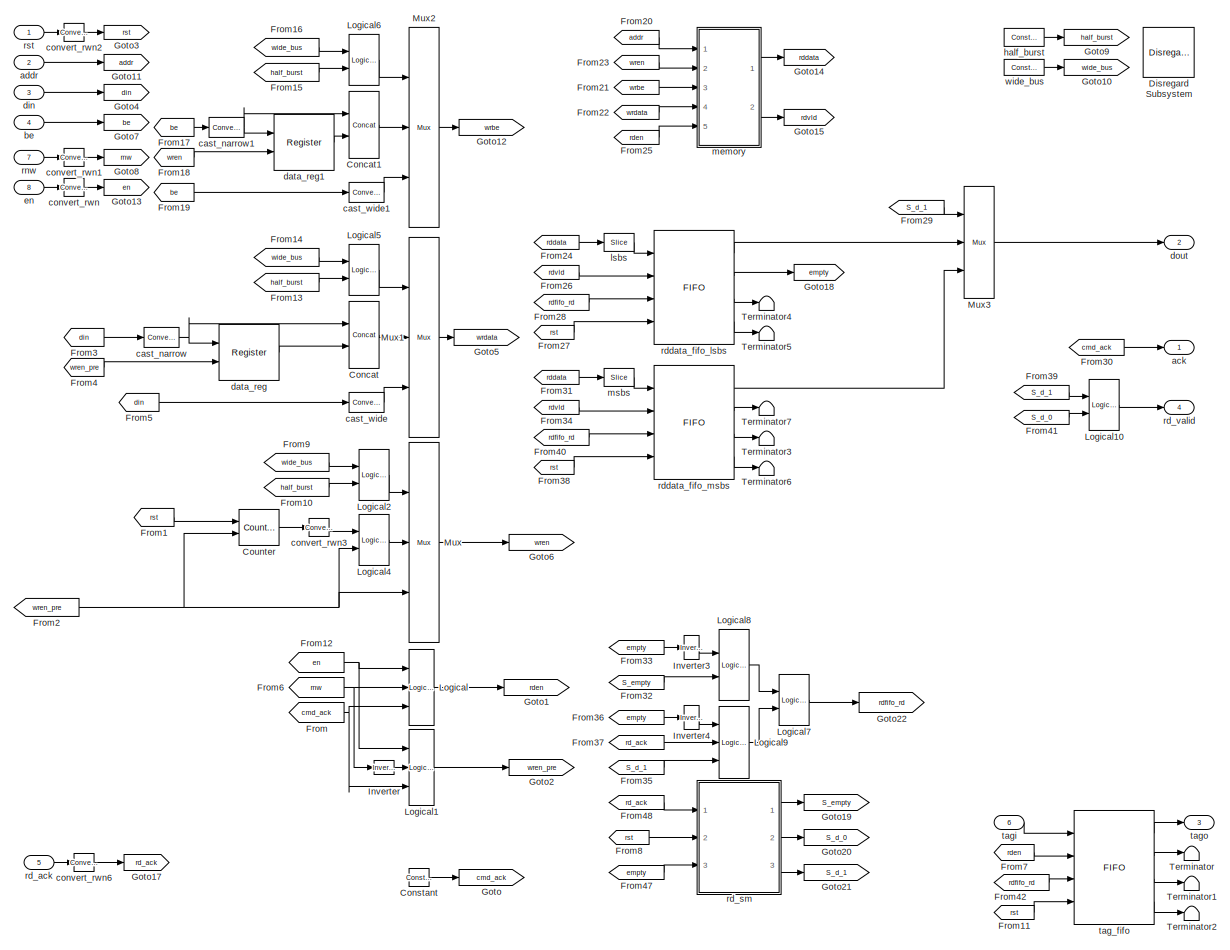
[diagram: dram/dram_sim - part 1/1, most of the canvas]
BLOCK [SubSystem] dram/dram_sim
  Ports = [8, 4]
  RequestExecContextInheritance = off
  Variant = off
BLOCK [Reference] dram/dram_sim/Concat  REF=xbsIndex_r4/Concat
  Ports = [2, 1]
  SourceBlock = xbsIndex_r4/Concat
  SourceType = Xilinx Bus Concatenator Block
BLOCK [Reference] dram/dram_sim/Concat1  REF=xbsIndex_r4/Concat
  Ports = [2, 1]
  SourceBlock = xbsIndex_r4/Concat
  SourceType = Xilinx Bus Concatenator Block
BLOCK [Reference] dram/dram_sim/Constant  REF=xbsIndex_r4/Constant
  Ports = [0, 1]
  SourceBlock = xbsIndex_r4/Constant
  SourceType = Xilinx Constant Block Block
BLOCK [Reference] dram/dram_sim/Counter  REF=xbsIndex_r4/Counter
  Ports = [2, 1]
  SourceBlock = xbsIndex_r4/Counter
  SourceType = Xilinx Counter Block
BLOCK [Reference] dram/dram_sim/Disregard Subsystem  REF=xbsIndex_r4/Disregard Subsystem
  AttributesFormatString = Disregard Subsystem\nFor Generation
  Ports = []
  SourceBlock = xbsIndex_r4/Disregard Subsystem
  SourceType = Xilinx Disregard Subsystem For Generation Block
  Tag = discardX
BLOCK [From] dram/dram_sim/From
  CloseFcn = tagdialog Close
  GotoTag = cmd_ack
BLOCK [From] dram/dram_sim/From1
  CloseFcn = tagdialog Close
  GotoTag = rst
BLOCK [From] dram/dram_sim/From10
  CloseFcn = tagdialog Close
  GotoTag = half_burst
BLOCK [From] dram/dram_sim/From11
  CloseFcn = tagdialog Close
  GotoTag = rst
BLOCK [From] dram/dram_sim/From12
  CloseFcn = tagdialog Close
  GotoTag = en
BLOCK [From] dram/dram_sim/From13
  CloseFcn = tagdialog Close
  GotoTag = half_burst
BLOCK [From] dram/dram_sim/From14
  CloseFcn = tagdialog Close
  GotoTag = wide_bus
BLOCK [From] dram/dram_sim/From15
  CloseFcn = tagdialog Close
  GotoTag = half_burst
BLOCK [From] dram/dram_sim/From16
  CloseFcn = tagdialog Close
  GotoTag = wide_bus
BLOCK [From] dram/dram_sim/From17
  CloseFcn = tagdialog Close
  GotoTag = be
BLOCK [From] dram/dram_sim/From18
  CloseFcn = tagdialog Close
  GotoTag = wren
BLOCK [From] dram/dram_sim/From19
  CloseFcn = tagdialog Close
  GotoTag = be
BLOCK [From] dram/dram_sim/From2
  CloseFcn = tagdialog Close
  GotoTag = wren_pre
BLOCK [From] dram/dram_sim/From20
  CloseFcn = tagdialog Close
  GotoTag = addr
BLOCK [From] dram/dram_sim/From21
  CloseFcn = tagdialog Close
  GotoTag = wrbe
BLOCK [From] dram/dram_sim/From22
  CloseFcn = tagdialog Close
  GotoTag = wrdata
BLOCK [From] dram/dram_sim/From23
  CloseFcn = tagdialog Close
  GotoTag = wren
BLOCK [From] dram/dram_sim/From24
  CloseFcn = tagdialog Close
  GotoTag = rddata
BLOCK [From] dram/dram_sim/From25
  CloseFcn = tagdialog Close
  GotoTag = rden
BLOCK [From] dram/dram_sim/From26
  CloseFcn = tagdialog Close
  GotoTag = rdvld
BLOCK [From] dram/dram_sim/From27
  CloseFcn = tagdialog Close
  GotoTag = rst
BLOCK [From] dram/dram_sim/From28
  CloseFcn = tagdialog Close
  GotoTag = rdfifo_rd
BLOCK [From] dram/dram_sim/From29
  CloseFcn = tagdialog Close
  GotoTag = S_d_1
BLOCK [From] dram/dram_sim/From3
  CloseFcn = tagdialog Close
  GotoTag = din
BLOCK [From] dram/dram_sim/From30
  CloseFcn = tagdialog Close
  GotoTag = cmd_ack
BLOCK [From] dram/dram_sim/From31
  CloseFcn = tagdialog Close
  GotoTag = rddata
BLOCK [From] dram/dram_sim/From32
  CloseFcn = tagdialog Close
  GotoTag = S_empty
BLOCK [From] dram/dram_sim/From33
  CloseFcn = tagdialog Close
  GotoTag = empty
BLOCK [From] dram/dram_sim/From34
  CloseFcn = tagdialog Close
  GotoTag = rdvld
BLOCK [From] dram/dram_sim/From35
  CloseFcn = tagdialog Close
  GotoTag = S_d_1
BLOCK [From] dram/dram_sim/From36
  CloseFcn = tagdialog Close
  GotoTag = empty
BLOCK [From] dram/dram_sim/From37
  CloseFcn = tagdialog Close
  GotoTag = rd_ack
BLOCK [From] dram/dram_sim/From38
  CloseFcn = tagdialog Close
  GotoTag = rst
BLOCK [From] dram/dram_sim/From39
  CloseFcn = tagdialog Close
  GotoTag = S_d_1
BLOCK [From] dram/dram_sim/From4
  CloseFcn = tagdialog Close
  GotoTag = wren_pre
BLOCK [From] dram/dram_sim/From40
  CloseFcn = tagdialog Close
  GotoTag = rdfifo_rd
BLOCK [From] dram/dram_sim/From41
  CloseFcn = tagdialog Close
  GotoTag = S_d_0
BLOCK [From] dram/dram_sim/From42
  CloseFcn = tagdialog Close
  GotoTag = rdfifo_rd
BLOCK [From] dram/dram_sim/From47
  CloseFcn = tagdialog Close
  GotoTag = empty
BLOCK [From] dram/dram_sim/From48
  CloseFcn = tagdialog Close
  GotoTag = rd_ack
BLOCK [From] dram/dram_sim/From5
  CloseFcn = tagdialog Close
  GotoTag = din
BLOCK [From] dram/dram_sim/From6
  CloseFcn = tagdialog Close
  GotoTag = rnw
BLOCK [From] dram/dram_sim/From7
  CloseFcn = tagdialog Close
  GotoTag = rden
BLOCK [From] dram/dram_sim/From8
  CloseFcn = tagdialog Close
  GotoTag = rst
BLOCK [From] dram/dram_sim/From9
  CloseFcn = tagdialog Close
  GotoTag = wide_bus
BLOCK [Goto] dram/dram_sim/Goto
  GotoTag = cmd_ack
BLOCK [Goto] dram/dram_sim/Goto1
  GotoTag = rden
BLOCK [Goto] dram/dram_sim/Goto10
  GotoTag = wide_bus
BLOCK [Goto] dram/dram_sim/Goto11
  GotoTag = addr
BLOCK [Goto] dram/dram_sim/Goto12
  GotoTag = wrbe
BLOCK [Goto] dram/dram_sim/Goto13
  GotoTag = en
BLOCK [Goto] dram/dram_sim/Goto14
  GotoTag = rddata
BLOCK [Goto] dram/dram_sim/Goto15
  GotoTag = rdvld
BLOCK [Goto] dram/dram_sim/Goto17
  GotoTag = rd_ack
BLOCK [Goto] dram/dram_sim/Goto18
  GotoTag = empty
BLOCK [Goto] dram/dram_sim/Goto19
  GotoTag = S_empty
BLOCK [Goto] dram/dram_sim/Goto2
  GotoTag = wren_pre
BLOCK [Goto] dram/dram_sim/Goto20
  GotoTag = S_d_0
BLOCK [Goto] dram/dram_sim/Goto21
  GotoTag = S_d_1
BLOCK [Goto] dram/dram_sim/Goto22
  GotoTag = rdfifo_rd
BLOCK [Goto] dram/dram_sim/Goto3
  GotoTag = rst
BLOCK [Goto] dram/dram_sim/Goto4
  GotoTag = din
BLOCK [Goto] dram/dram_sim/Goto5
  GotoTag = wrdata
BLOCK [Goto] dram/dram_sim/Goto6
  GotoTag = wren
BLOCK [Goto] dram/dram_sim/Goto7
  GotoTag = be
BLOCK [Goto] dram/dram_sim/Goto8
  GotoTag = rnw
BLOCK [Goto] dram/dram_sim/Goto9
  GotoTag = half_burst
BLOCK [Reference] dram/dram_sim/Inverter  REF=xbsIndex_r4/Inverter
  Ports = [1, 1]
  SourceBlock = xbsIndex_r4/Inverter
  SourceType = Xilinx Inverter Block
BLOCK [Reference] dram/dram_sim/Inverter3  REF=xbsIndex_r4/Inverter
  Ports = [1, 1]
  SourceBlock = xbsIndex_r4/Inverter
  SourceType = Xilinx Inverter Block
BLOCK [Reference] dram/dram_sim/Inverter4  REF=xbsIndex_r4/Inverter
  Ports = [1, 1]
  SourceBlock = xbsIndex_r4/Inverter
  SourceType = Xilinx Inverter Block
BLOCK [Reference] dram/dram_sim/Logical  REF=xbsIndex_r4/Logical
  Ports = [3, 1]
  SourceBlock = xbsIndex_r4/Logical
  SourceType = Xilinx Logical Block Block
BLOCK [Reference] dram/dram_sim/Logical1  REF=xbsIndex_r4/Logical
  Ports = [3, 1]
  SourceBlock = xbsIndex_r4/Logical
  SourceType = Xilinx Logical Block Block
BLOCK [Reference] dram/dram_sim/Logical10  REF=xbsIndex_r4/Logical
  Ports = [2, 1]
  SourceBlock = xbsIndex_r4/Logical
  SourceType = Xilinx Logical Block Block
BLOCK [Reference] dram/dram_sim/Logical2  REF=xbsIndex_r4/Logical
  Ports = [2, 1]
  SourceBlock = xbsIndex_r4/Logical
  SourceType = Xilinx Logical Block Block
BLOCK [Reference] dram/dram_sim/Logical4  REF=xbsIndex_r4/Logical
  Ports = [2, 1]
  SourceBlock = xbsIndex_r4/Logical
  SourceType = Xilinx Logical Block Block
BLOCK [Reference] dram/dram_sim/Logical5  REF=xbsIndex_r4/Logical
  Ports = [2, 1]
  SourceBlock = xbsIndex_r4/Logical
  SourceType = Xilinx Logical Block Block
BLOCK [Reference] dram/dram_sim/Logical6  REF=xbsIndex_r4/Logical
  Ports = [2, 1]
  SourceBlock = xbsIndex_r4/Logical
  SourceType = Xilinx Logical Block Block
BLOCK [Reference] dram/dram_sim/Logical7  REF=xbsIndex_r4/Logical
  Ports = [2, 1]
  SourceBlock = xbsIndex_r4/Logical
  SourceType = Xilinx Logical Block Block
BLOCK [Reference] dram/dram_sim/Logical8  REF=xbsIndex_r4/Logical
  Ports = [2, 1]
  SourceBlock = xbsIndex_r4/Logical
  SourceType = Xilinx Logical Block Block
BLOCK [Reference] dram/dram_sim/Logical9  REF=xbsIndex_r4/Logical
  Ports = [3, 1]
  SourceBlock = xbsIndex_r4/Logical
  SourceType = Xilinx Logical Block Block
BLOCK [Reference] dram/dram_sim/Mux  REF=xbsIndex_r4/Mux
  Ports = [3, 1]
  SourceBlock = xbsIndex_r4/Mux
  SourceType = Xilinx Bus Multiplexer Block
BLOCK [Reference] dram/dram_sim/Mux1  REF=xbsIndex_r4/Mux
  Ports = [3, 1]
  SourceBlock = xbsIndex_r4/Mux
  SourceType = Xilinx Bus Multiplexer Block
BLOCK [Reference] dram/dram_sim/Mux2  REF=xbsIndex_r4/Mux
  Ports = [3, 1]
  SourceBlock = xbsIndex_r4/Mux
  SourceType = Xilinx Bus Multiplexer Block
BLOCK [Reference] dram/dram_sim/Mux3  REF=xbsIndex_r4/Mux
  Ports = [3, 1]
  SourceBlock = xbsIndex_r4/Mux
  SourceType = Xilinx Bus Multiplexer Block
BLOCK [Terminator] dram/dram_sim/Terminator
BLOCK [Terminator] dram/dram_sim/Terminator1
BLOCK [Terminator] dram/dram_sim/Terminator2
BLOCK [Terminator] dram/dram_sim/Terminator3
BLOCK [Terminator] dram/dram_sim/Terminator4
BLOCK [Terminator] dram/dram_sim/Terminator5
BLOCK [Terminator] dram/dram_sim/Terminator6
BLOCK [Terminator] dram/dram_sim/Terminator7
BLOCK [Outport] dram/dram_sim/ack
  IconDisplay = Port number
BLOCK [Inport] dram/dram_sim/addr
  IconDisplay = Port number
  Port = 2
BLOCK [Inport] dram/dram_sim/be
  IconDisplay = Port number
  Port = 4
BLOCK [Reference] dram/dram_sim/cast_narrow  REF=xbsIndex_r4/Convert
  Ports = [1, 1]
  SourceBlock = xbsIndex_r4/Convert
  SourceType = Xilinx Type Converter Block
BLOCK [Reference] dram/dram_sim/cast_narrow1  REF=xbsIndex_r4/Convert
  Ports = [1, 1]
  SourceBlock = xbsIndex_r4/Convert
  SourceType = Xilinx Type Converter Block
BLOCK [Reference] dram/dram_sim/cast_wide  REF=xbsIndex_r4/Convert
  Ports = [1, 1]
  SourceBlock = xbsIndex_r4/Convert
  SourceType = Xilinx Type Converter Block
BLOCK [Reference] dram/dram_sim/cast_wide1  REF=xbsIndex_r4/Convert
  Ports = [1, 1]
  SourceBlock = xbsIndex_r4/Convert
  SourceType = Xilinx Type Converter Block
BLOCK [Reference] dram/dram_sim/convert_rwn  REF=xbsIndex_r4/Convert
  Ports = [1, 1]
  SourceBlock = xbsIndex_r4/Convert
  SourceType = Xilinx Type Converter Block
BLOCK [Reference] dram/dram_sim/convert_rwn1  REF=xbsIndex_r4/Convert
  Ports = [1, 1]
  SourceBlock = xbsIndex_r4/Convert
  SourceType = Xilinx Type Converter Block
BLOCK [Reference] dram/dram_sim/convert_rwn2  REF=xbsIndex_r4/Convert
  Ports = [1, 1]
  SourceBlock = xbsIndex_r4/Convert
  SourceType = Xilinx Type Converter Block
BLOCK [Reference] dram/dram_sim/convert_rwn3  REF=xbsIndex_r4/Convert
  Ports = [1, 1]
  SourceBlock = xbsIndex_r4/Convert
  SourceType = Xilinx Type Converter Block
BLOCK [Reference] dram/dram_sim/convert_rwn6  REF=xbsIndex_r4/Convert
  Ports = [1, 1]
  SourceBlock = xbsIndex_r4/Convert
  SourceType = Xilinx Type Converter Block
BLOCK [Reference] dram/dram_sim/data_reg  REF=xbsIndex_r4/Register
  Ports = [2, 1]
  SourceBlock = xbsIndex_r4/Register
  SourceType = Xilinx Register Block
BLOCK [Reference] dram/dram_sim/data_reg1  REF=xbsIndex_r4/Register
  Ports = [2, 1]
  SourceBlock = xbsIndex_r4/Register
  SourceType = Xilinx Register Block
BLOCK [Inport] dram/dram_sim/din
  IconDisplay = Port number
  Port = 3
BLOCK [Outport] dram/dram_sim/dout
  IconDisplay = Port number
  Port = 2
BLOCK [Inport] dram/dram_sim/en
  IconDisplay = Port number
  Port = 8
BLOCK [Reference] dram/dram_sim/half_burst  REF=xbsIndex_r4/Constant
  Ports = [0, 1]
  SourceBlock = xbsIndex_r4/Constant
  SourceType = Xilinx Constant Block Block
BLOCK [Reference] dram/dram_sim/lsbs  REF=xbsIndex_r4/Slice
  Ports = [1, 1]
  SourceBlock = xbsIndex_r4/Slice
  SourceType = Xilinx Bit Slice Extractor Block
BLOCK [SubSystem] dram/dram_sim/memory
  Ports = [5, 2]
  RequestExecContextInheritance = off
  Variant = off
BLOCK [Reference] dram/dram_sim/memory/Delay  REF=xbsIndex_r4/Delay
  Ports = [1, 1]
  SourceBlock = xbsIndex_r4/Delay
  SourceType = Xilinx Delay Block
BLOCK [Reference] dram/dram_sim/memory/Delay1  REF=xbsIndex_r4/Delay
  Ports = [1, 1]
  SourceBlock = xbsIndex_r4/Delay
  SourceType = Xilinx Delay Block
BLOCK [Reference] dram/dram_sim/memory/Delay2  REF=xbsIndex_r4/Delay
  Ports = [1, 1]
  SourceBlock = xbsIndex_r4/Delay
  SourceType = Xilinx Delay Block
BLOCK [Reference] dram/dram_sim/memory/Disregard Subsystem  REF=xbsIndex_r4/Disregard Subsystem
  AttributesFormatString = Disregard Subsystem\nFor Generation
  Ports = []
  SourceBlock = xbsIndex_r4/Disregard Subsystem
  SourceType = Xilinx Disregard Subsystem For Generation Block
  Tag = discardX
BLOCK [Goto] dram/dram_sim/memory/Goto1
  GotoTag = b
BLOCK [Inport] dram/dram_sim/memory/addr
  IconDisplay = Port number
BLOCK [Reference] dram/dram_sim/memory/cast_narrow1  REF=xbsIndex_r4/Convert
  Ports = [1, 1]
  SourceBlock = xbsIndex_r4/Convert
  SourceType = Xilinx Type Converter Block
BLOCK [Reference] dram/dram_sim/memory/cast_narrow2  REF=xbsIndex_r4/Convert
  Ports = [1, 1]
  SourceBlock = xbsIndex_r4/Convert
  SourceType = Xilinx Type Converter Block
BLOCK [Reference] dram/dram_sim/memory/cast_narrow3  REF=xbsIndex_r4/Convert
  Ports = [1, 1]
  SourceBlock = xbsIndex_r4/Convert
  SourceType = Xilinx Type Converter Block
BLOCK [Reference] dram/dram_sim/memory/cast_narrow4  REF=xbsIndex_r4/Convert
  Ports = [1, 1]
  SourceBlock = xbsIndex_r4/Convert
  SourceType = Xilinx Type Converter Block
BLOCK [Reference] dram/dram_sim/memory/ram0  REF=xbsIndex_r4/Single Port RAM
  Ports = [3, 1]
  SourceBlock = xbsIndex_r4/Single Port RAM
  SourceType = Xilinx Single Port Random Access Memory Block
BLOCK [Outport] dram/dram_sim/memory/rddata
  IconDisplay = Port number
BLOCK [Inport] dram/dram_sim/memory/rden
  IconDisplay = Port number
  Port = 5
BLOCK [Outport] dram/dram_sim/memory/rdvld
  IconDisplay = Port number
  Port = 2
BLOCK [Inport] dram/dram_sim/memory/wrbe
  IconDisplay = Port number
  Port = 3
BLOCK [Inport] dram/dram_sim/memory/wrdata
  IconDisplay = Port number
  Port = 4
BLOCK [Inport] dram/dram_sim/memory/wren
  IconDisplay = Port number
  Port = 2
BLOCK [Reference] dram/dram_sim/msbs  REF=xbsIndex_r4/Slice
  Ports = [1, 1]
  SourceBlock = xbsIndex_r4/Slice
  SourceType = Xilinx Bit Slice Extractor Block
BLOCK [Inport] dram/dram_sim/rd_ack
  IconDisplay = Port number
  Port = 5
BLOCK [SubSystem] dram/dram_sim/rd_sm
  Ports = [3, 3]
  RequestExecContextInheritance = off
  Variant = off
BLOCK [Reference] dram/dram_sim/rd_sm/Constant  REF=xbsIndex_r4/Constant
  Ports = [0, 1]
  SourceBlock = xbsIndex_r4/Constant
  SourceType = Xilinx Constant Block Block
BLOCK [Reference] dram/dram_sim/rd_sm/Constant1  REF=xbsIndex_r4/Constant
  Ports = [0, 1]
  SourceBlock = xbsIndex_r4/Constant
  SourceType = Xilinx Constant Block Block
BLOCK [Reference] dram/dram_sim/rd_sm/Constant2  REF=xbsIndex_r4/Constant
  Ports = [0, 1]
  SourceBlock = xbsIndex_r4/Constant
  SourceType = Xilinx Constant Block Block
BLOCK [Reference] dram/dram_sim/rd_sm/Constant3  REF=xbsIndex_r4/Constant
  Ports = [0, 1]
  SourceBlock = xbsIndex_r4/Constant
  SourceType = Xilinx Constant Block Block
BLOCK [Reference] dram/dram_sim/rd_sm/Constant4  REF=xbsIndex_r4/Constant
  Ports = [0, 1]
  SourceBlock = xbsIndex_r4/Constant
  SourceType = Xilinx Constant Block Block
BLOCK [Reference] dram/dram_sim/rd_sm/Constant5  REF=xbsIndex_r4/Constant
  Ports = [0, 1]
  SourceBlock = xbsIndex_r4/Constant
  SourceType = Xilinx Constant Block Block
BLOCK [Reference] dram/dram_sim/rd_sm/Constant6  REF=xbsIndex_r4/Constant
  Ports = [0, 1]
  SourceBlock = xbsIndex_r4/Constant
  SourceType = Xilinx Constant Block Block
BLOCK [Reference] dram/dram_sim/rd_sm/Constant7  REF=xbsIndex_r4/Constant
  Ports = [0, 1]
  SourceBlock = xbsIndex_r4/Constant
  SourceType = Xilinx Constant Block Block
BLOCK [Reference] dram/dram_sim/rd_sm/Constant8  REF=xbsIndex_r4/Constant
  Ports = [0, 1]
  SourceBlock = xbsIndex_r4/Constant
  SourceType = Xilinx Constant Block Block
BLOCK [Reference] dram/dram_sim/rd_sm/Constant9  REF=xbsIndex_r4/Constant
  Ports = [0, 1]
  SourceBlock = xbsIndex_r4/Constant
  SourceType = Xilinx Constant Block Block
BLOCK [From] dram/dram_sim/rd_sm/From48
  CloseFcn = tagdialog Close
  GotoTag = S
BLOCK [Goto] dram/dram_sim/rd_sm/Goto19
  GotoTag = S
BLOCK [Reference] dram/dram_sim/rd_sm/Inverter  REF=xbsIndex_r4/Inverter
  Ports = [1, 1]
  SourceBlock = xbsIndex_r4/Inverter
  SourceType = Xilinx Inverter Block
BLOCK [Reference] dram/dram_sim/rd_sm/Mux  REF=xbsIndex_r4/Mux
  Ports = [4, 1]
  SourceBlock = xbsIndex_r4/Mux
  SourceType = Xilinx Bus Multiplexer Block
BLOCK [Reference] dram/dram_sim/rd_sm/Mux1  REF=xbsIndex_r4/Mux
  Ports = [3, 1]
  SourceBlock = xbsIndex_r4/Mux
  SourceType = Xilinx Bus Multiplexer Block
BLOCK [Reference] dram/dram_sim/rd_sm/Mux2  REF=xbsIndex_r4/Mux
  Ports = [3, 1]
  SourceBlock = xbsIndex_r4/Mux
  SourceType = Xilinx Bus Multiplexer Block
BLOCK [Reference] dram/dram_sim/rd_sm/Mux3  REF=xbsIndex_r4/Mux
  Ports = [3, 1]
  SourceBlock = xbsIndex_r4/Mux
  SourceType = Xilinx Bus Multiplexer Block
BLOCK [Reference] dram/dram_sim/rd_sm/Mux4  REF=xbsIndex_r4/Mux
  Ports = [3, 1]
  SourceBlock = xbsIndex_r4/Mux
  SourceType = Xilinx Bus Multiplexer Block
BLOCK [Reference] dram/dram_sim/rd_sm/Register  REF=xbsIndex_r4/Register
  Ports = [2, 1]
  SourceBlock = xbsIndex_r4/Register
  SourceType = Xilinx Register Block
BLOCK [Reference] dram/dram_sim/rd_sm/Relational  REF=xbsIndex_r4/Relational
  Ports = [2, 1]
  SourceBlock = xbsIndex_r4/Relational
  SourceType = Xilinx Arithmetic Relational Operator Block
BLOCK [Reference] dram/dram_sim/rd_sm/Relational1  REF=xbsIndex_r4/Relational
  Ports = [2, 1]
  SourceBlock = xbsIndex_r4/Relational
  SourceType = Xilinx Arithmetic Relational Operator Block
BLOCK [Reference] dram/dram_sim/rd_sm/Relational2  REF=xbsIndex_r4/Relational
  Ports = [2, 1]
  SourceBlock = xbsIndex_r4/Relational
  SourceType = Xilinx Arithmetic Relational Operator Block
BLOCK [Outport] dram/dram_sim/rd_sm/d0
  IconDisplay = Port number
  Port = 2
BLOCK [Outport] dram/dram_sim/rd_sm/d1
  IconDisplay = Port number
  Port = 3
BLOCK [Outport] dram/dram_sim/rd_sm/empty
  IconDisplay = Port number
BLOCK [Inport] dram/dram_sim/rd_sm/fifo_empty
  IconDisplay = Port number
  Port = 3
BLOCK [Inport] dram/dram_sim/rd_sm/rd_ack
  IconDisplay = Port number
BLOCK [Inport] dram/dram_sim/rd_sm/rst
  IconDisplay = Port number
  Port = 2
BLOCK [Outport] dram/dram_sim/rd_valid
  IconDisplay = Port number
  Port = 4
BLOCK [Reference] dram/dram_sim/rddata_fifo_lsbs  REF=xbsIndex_r4/FIFO
  Ports = [4, 4]
  SourceBlock = xbsIndex_r4/FIFO
  SourceType = Xilinx FIFO Block Block
BLOCK [Reference] dram/dram_sim/rddata_fifo_msbs  REF=xbsIndex_r4/FIFO
  Ports = [4, 4]
  SourceBlock = xbsIndex_r4/FIFO
  SourceType = Xilinx FIFO Block Block
BLOCK [Inport] dram/dram_sim/rnw
  IconDisplay = Port number
  Port = 7
BLOCK [Inport] dram/dram_sim/rst
  IconDisplay = Port number
BLOCK [Reference] dram/dram_sim/tag_fifo  REF=xbsIndex_r4/FIFO
  Ports = [4, 4]
  SourceBlock = xbsIndex_r4/FIFO
  SourceType = Xilinx FIFO Block Block
BLOCK [Inport] dram/dram_sim/tagi
  IconDisplay = Port number
  Port = 6
BLOCK [Outport] dram/dram_sim/tago
  IconDisplay = Port number
  Port = 3
BLOCK [Reference] dram/dram_sim/wide_bus  REF=xbsIndex_r4/Constant
  Ports = [0, 1]
  SourceBlock = xbsIndex_r4/Constant
  SourceType = Xilinx Constant Block Block
BLOCK [Reference] dram/force_data_in  REF=xbsIndex_r4/Reinterpret
  Ports = [1, 1]
  SourceBlock = xbsIndex_r4/Reinterpret
  SourceType = Xilinx Type Reinterpreter Block
BLOCK [Reference] dram/force_rd_dout  REF=xbsIndex_r4/Reinterpret
  Ports = [1, 1]
  SourceBlock = xbsIndex_r4/Reinterpret
  SourceType = Xilinx Type Reinterpreter Block
BLOCK [Outport] dram/phy_ready
  IconDisplay = Port number
  Port = 5
BLOCK [Inport] dram/rd_ack
  IconDisplay = Port number
  Port = 8
BLOCK [Outport] dram/rd_tag
  IconDisplay = Port number
  Port = 3
BLOCK [Outport] dram/rd_valid
  IconDisplay = Port number
  Port = 4
BLOCK [Inport] dram/rst
  IconDisplay = Port number
BLOCK [Inport] dram/wr_be
  IconDisplay = Port number
  Port = 4
BLOCK [Reference] dram/xps_library_dram_Mem_Cmd_Ack  REF=xbsIndex_r4/Gateway In
  Ports = [1, 1]
  SourceBlock = xbsIndex_r4/Gateway In
  SourceType = Xilinx Gateway In Block
BLOCK [Reference] dram/xps_library_dram_Mem_Cmd_Address  REF=xbsIndex_r4/Gateway Out
  Ports = [1, 1]
  SourceBlock = xbsIndex_r4/Gateway Out
  SourceType = Xilinx Gateway Out Block
BLOCK [Reference] dram/xps_library_dram_Mem_Cmd_RNW  REF=xbsIndex_r4/Gateway Out
  Ports = [1, 1]
  SourceBlock = xbsIndex_r4/Gateway Out
  SourceType = Xilinx Gateway Out Block
BLOCK [Reference] dram/xps_library_dram_Mem_Cmd_Tag  REF=xbsIndex_r4/Gateway Out
  Ports = [1, 1]
  SourceBlock = xbsIndex_r4/Gateway Out
  SourceType = Xilinx Gateway Out Block
BLOCK [Reference] dram/xps_library_dram_Mem_Cmd_Valid  REF=xbsIndex_r4/Gateway Out
  Ports = [1, 1]
  SourceBlock = xbsIndex_r4/Gateway Out
  SourceType = Xilinx Gateway Out Block
BLOCK [Reference] dram/xps_library_dram_Mem_Rd_Ack  REF=xbsIndex_r4/Gateway Out
  Ports = [1, 1]
  SourceBlock = xbsIndex_r4/Gateway Out
  SourceType = Xilinx Gateway Out Block
BLOCK [Reference] dram/xps_library_dram_Mem_Rd_Dout  REF=xbsIndex_r4/Gateway In
  Ports = [1, 1]
  SourceBlock = xbsIndex_r4/Gateway In
  SourceType = Xilinx Gateway In Block
BLOCK [Reference] dram/xps_library_dram_Mem_Rd_Tag  REF=xbsIndex_r4/Gateway In
  Ports = [1, 1]
  SourceBlock = xbsIndex_r4/Gateway In
  SourceType = Xilinx Gateway In Block
BLOCK [Reference] dram/xps_library_dram_Mem_Rd_Valid  REF=xbsIndex_r4/Gateway In
  Ports = [1, 1]
  SourceBlock = xbsIndex_r4/Gateway In
  SourceType = Xilinx Gateway In Block
BLOCK [Reference] dram/xps_library_dram_Mem_Rst  REF=xbsIndex_r4/Gateway Out
  Ports = [1, 1]
  SourceBlock = xbsIndex_r4/Gateway Out
  SourceType = Xilinx Gateway Out Block
BLOCK [Reference] dram/xps_library_dram_Mem_Wr_BE  REF=xbsIndex_r4/Gateway Out
  Ports = [1, 1]
  SourceBlock = xbsIndex_r4/Gateway Out
  SourceType = Xilinx Gateway Out Block
BLOCK [Reference] dram/xps_library_dram_Mem_Wr_Din  REF=xbsIndex_r4/Gateway Out
  Ports = [1, 1]
  SourceBlock = xbsIndex_r4/Gateway Out
  SourceType = Xilinx Gateway Out Block
BLOCK [Reference] dram/xps_library_dram_phy_ready  REF=xbsIndex_r4/Gateway In
  Ports = [1, 1]
  SourceBlock = xbsIndex_r4/Gateway In
  SourceType = Xilinx Gateway In Block
BLOCK [SubSystem] forty_gbe
  Ports = [9, 14]
  RequestExecContextInheritance = off
  Tag = xps:forty_gbe
  Variant = off
BLOCK [Constant] forty_gbe/Constant1
  Value = 0
BLOCK [Constant] forty_gbe/Constant10
  Value = 0
BLOCK [Constant] forty_gbe/Constant11
  Value = 0
BLOCK [Constant] forty_gbe/Constant12
  Value = 0
BLOCK [Constant] forty_gbe/Constant13
  Value = 0
BLOCK [Constant] forty_gbe/Constant14
  Value = 0
BLOCK [Constant] forty_gbe/Constant2
  Value = 0
BLOCK [Constant] forty_gbe/Constant3
  Value = 0
BLOCK [Constant] forty_gbe/Constant4
  Value = 0
BLOCK [Constant] forty_gbe/Constant5
  Value = 0
BLOCK [Constant] forty_gbe/Constant6
  Value = 0
BLOCK [Constant] forty_gbe/Constant7
  Value = 0
BLOCK [Constant] forty_gbe/Constant8
  Value = 0
BLOCK [Constant] forty_gbe/Constant9
  Value = 0
BLOCK [Terminator] forty_gbe/Terminator
BLOCK [Terminator] forty_gbe/Terminator1
BLOCK [Terminator] forty_gbe/Terminator2
BLOCK [Terminator] forty_gbe/Terminator3
BLOCK [Terminator] forty_gbe/Terminator5
BLOCK [Terminator] forty_gbe/Terminator6
BLOCK [Terminator] forty_gbe/Terminator7
BLOCK [Terminator] forty_gbe/Terminator8
BLOCK [Reference] forty_gbe/convert_rst  REF=xbsIndex_r4/Convert
  Ports = [1, 1]
  SourceBlock = xbsIndex_r4/Convert
  SourceType = Xilinx Type Converter Block
BLOCK [Reference] forty_gbe/convert_rx_ack  REF=xbsIndex_r4/Convert
  Ports = [1, 1]
  SourceBlock = xbsIndex_r4/Convert
  SourceType = Xilinx Type Converter Block
BLOCK [Reference] forty_gbe/convert_rx_overrun_ack  REF=xbsIndex_r4/Convert
  Ports = [1, 1]
  SourceBlock = xbsIndex_r4/Convert
  SourceType = Xilinx Type Converter Block
BLOCK [Reference] forty_gbe/convert_tx_data  REF=xbsIndex_r4/Convert
  Ports = [1, 1]
  SourceBlock = xbsIndex_r4/Convert
  SourceType = Xilinx Type Converter Block
BLOCK [Reference] forty_gbe/convert_tx_dest_ip  REF=xbsIndex_r4/Convert
  Ports = [1, 1]
  SourceBlock = xbsIndex_r4/Convert
  SourceType = Xilinx Type Converter Block
BLOCK [Reference] forty_gbe/convert_tx_end_of_frame  REF=xbsIndex_r4/Convert
  Ports = [1, 1]
  SourceBlock = xbsIndex_r4/Convert
  SourceType = Xilinx Type Converter Block
BLOCK [Reference] forty_gbe/convert_tx_port  REF=xbsIndex_r4/Convert
  Ports = [1, 1]
  SourceBlock = xbsIndex_r4/Convert
  SourceType = Xilinx Type Converter Block
BLOCK [Reference] forty_gbe/convert_tx_valid  REF=xbsIndex_r4/Convert
  Ports = [1, 1]
  SourceBlock = xbsIndex_r4/Convert
  SourceType = Xilinx Type Converter Block
BLOCK [Inport] forty_gbe/debug_rst
  IconDisplay = Port number
  Port = 9
BLOCK [Outport] forty_gbe/led_rx
  IconDisplay = Port number
  Port = 2
BLOCK [Outport] forty_gbe/led_tx
  IconDisplay = Port number
  Port = 3
BLOCK [Outport] forty_gbe/led_up
  IconDisplay = Port number
BLOCK [Inport] forty_gbe/rst
  IconDisplay = Port number
BLOCK [Inport] forty_gbe/rx_ack
  IconDisplay = Port number
  Port = 7
BLOCK [Outport] forty_gbe/rx_bad_frame
  IconDisplay = Port number
  Port = 11
BLOCK [Outport] forty_gbe/rx_data
  IconDisplay = Port number
  Port = 6
BLOCK [Outport] forty_gbe/rx_dest_ip
  IconDisplay = Port number
  Port = 13
BLOCK [Outport] forty_gbe/rx_dest_port
  IconDisplay = Port number
  Port = 14
BLOCK [Outport] forty_gbe/rx_end_of_frame
  IconDisplay = Port number
  Port = 10
BLOCK [Outport] forty_gbe/rx_overrun
  IconDisplay = Port number
  Port = 12
BLOCK [Inport] forty_gbe/rx_overrun_ack
  IconDisplay = Port number
  Port = 8
BLOCK [Outport] forty_gbe/rx_source_ip
  IconDisplay = Port number
  Port = 8
BLOCK [Outport] forty_gbe/rx_source_port
  IconDisplay = Port number
  Port = 9
BLOCK [Outport] forty_gbe/rx_valid
  IconDisplay = Port number
  Port = 7
BLOCK [Terminator] forty_gbe/term1
BLOCK [Outport] forty_gbe/tx_afull
  IconDisplay = Port number
  Port = 4
BLOCK [Inport] forty_gbe/tx_data
  IconDisplay = Port number
  Port = 2
BLOCK [Inport] forty_gbe/tx_dest_ip
  IconDisplay = Port number
  Port = 4
BLOCK [Inport] forty_gbe/tx_dest_port
  IconDisplay = Port number
  Port = 5
BLOCK [Inport] forty_gbe/tx_end_of_frame
  IconDisplay = Port number
  Port = 6
BLOCK [Outport] forty_gbe/tx_overflow
  IconDisplay = Port number
  Port = 5
BLOCK [Inport] forty_gbe/tx_valid
  IconDisplay = Port number
  Port = 3
BLOCK [Reference] forty_gbe/xps_library_forty_gbe_led_rx  REF=xbsIndex_r4/Gateway In
  Ports = [1, 1]
  SourceBlock = xbsIndex_r4/Gateway In
  SourceType = Xilinx Gateway In Block
BLOCK [Reference] forty_gbe/xps_library_forty_gbe_led_tx  REF=xbsIndex_r4/Gateway In
  Ports = [1, 1]
  SourceBlock = xbsIndex_r4/Gateway In
  SourceType = Xilinx Gateway In Block
BLOCK [Reference] forty_gbe/xps_library_forty_gbe_led_up  REF=xbsIndex_r4/Gateway In
  Ports = [1, 1]
  SourceBlock = xbsIndex_r4/Gateway In
  SourceType = Xilinx Gateway In Block
BLOCK [Reference] forty_gbe/xps_library_forty_gbe_rst  REF=xbsIndex_r4/Gateway Out
  Ports = [1, 1]
  SourceBlock = xbsIndex_r4/Gateway Out
  SourceType = Xilinx Gateway Out Block
BLOCK [Reference] forty_gbe/xps_library_forty_gbe_rx_ack  REF=xbsIndex_r4/Gateway Out
  Ports = [1, 1]
  SourceBlock = xbsIndex_r4/Gateway Out
  SourceType = Xilinx Gateway Out Block
BLOCK [Reference] forty_gbe/xps_library_forty_gbe_rx_bad_frame  REF=xbsIndex_r4/Gateway In
  Ports = [1, 1]
  SourceBlock = xbsIndex_r4/Gateway In
  SourceType = Xilinx Gateway In Block
BLOCK [Reference] forty_gbe/xps_library_forty_gbe_rx_data  REF=xbsIndex_r4/Gateway In
  Ports = [1, 1]
  SourceBlock = xbsIndex_r4/Gateway In
  SourceType = Xilinx Gateway In Block
BLOCK [Reference] forty_gbe/xps_library_forty_gbe_rx_dest_ip  REF=xbsIndex_r4/Gateway In
  Ports = [1, 1]
  SourceBlock = xbsIndex_r4/Gateway In
  SourceType = Xilinx Gateway In Block
BLOCK [Reference] forty_gbe/xps_library_forty_gbe_rx_dest_port  REF=xbsIndex_r4/Gateway In
  Ports = [1, 1]
  SourceBlock = xbsIndex_r4/Gateway In
  SourceType = Xilinx Gateway In Block
BLOCK [Reference] forty_gbe/xps_library_forty_gbe_rx_end_of_frame  REF=xbsIndex_r4/Gateway In
  Ports = [1, 1]
  SourceBlock = xbsIndex_r4/Gateway In
  SourceType = Xilinx Gateway In Block
BLOCK [Reference] forty_gbe/xps_library_forty_gbe_rx_overrun  REF=xbsIndex_r4/Gateway In
  Ports = [1, 1]
  SourceBlock = xbsIndex_r4/Gateway In
  SourceType = Xilinx Gateway In Block
BLOCK [Reference] forty_gbe/xps_library_forty_gbe_rx_overrun_ack  REF=xbsIndex_r4/Gateway Out
  Ports = [1, 1]
  SourceBlock = xbsIndex_r4/Gateway Out
  SourceType = Xilinx Gateway Out Block
BLOCK [Reference] forty_gbe/xps_library_forty_gbe_rx_source_ip  REF=xbsIndex_r4/Gateway In
  Ports = [1, 1]
  SourceBlock = xbsIndex_r4/Gateway In
  SourceType = Xilinx Gateway In Block
BLOCK [Reference] forty_gbe/xps_library_forty_gbe_rx_source_port  REF=xbsIndex_r4/Gateway In
  Ports = [1, 1]
  SourceBlock = xbsIndex_r4/Gateway In
  SourceType = Xilinx Gateway In Block
BLOCK [Reference] forty_gbe/xps_library_forty_gbe_rx_valid  REF=xbsIndex_r4/Gateway In
  Ports = [1, 1]
  SourceBlock = xbsIndex_r4/Gateway In
  SourceType = Xilinx Gateway In Block
BLOCK [Reference] forty_gbe/xps_library_forty_gbe_tx_afull  REF=xbsIndex_r4/Gateway In
  Ports = [1, 1]
  SourceBlock = xbsIndex_r4/Gateway In
  SourceType = Xilinx Gateway In Block
BLOCK [Reference] forty_gbe/xps_library_forty_gbe_tx_data  REF=xbsIndex_r4/Gateway Out
  Ports = [1, 1]
  SourceBlock = xbsIndex_r4/Gateway Out
  SourceType = Xilinx Gateway Out Block
BLOCK [Reference] forty_gbe/xps_library_forty_gbe_tx_dest_ip  REF=xbsIndex_r4/Gateway Out
  Ports = [1, 1]
  SourceBlock = xbsIndex_r4/Gateway Out
  SourceType = Xilinx Gateway Out Block
BLOCK [Reference] forty_gbe/xps_library_forty_gbe_tx_dest_port  REF=xbsIndex_r4/Gateway Out
  Ports = [1, 1]
  SourceBlock = xbsIndex_r4/Gateway Out
  SourceType = Xilinx Gateway Out Block
BLOCK [Reference] forty_gbe/xps_library_forty_gbe_tx_end_of_frame  REF=xbsIndex_r4/Gateway Out
  Ports = [1, 1]
  SourceBlock = xbsIndex_r4/Gateway Out
  SourceType = Xilinx Gateway Out Block
BLOCK [Reference] forty_gbe/xps_library_forty_gbe_tx_overflow  REF=xbsIndex_r4/Gateway In
  Ports = [1, 1]
  SourceBlock = xbsIndex_r4/Gateway In
  SourceType = Xilinx Gateway In Block
BLOCK [Reference] forty_gbe/xps_library_forty_gbe_tx_valid  REF=xbsIndex_r4/Gateway Out
  Ports = [1, 1]
  SourceBlock = xbsIndex_r4/Gateway Out
  SourceType = Xilinx Gateway Out Block
BLOCK [SubSystem] gpio
  Ports = [1, 1]
  RequestExecContextInheritance = off
  Tag = xps:gpio
  Variant = off
BLOCK [Reference] gpio/convert  REF=xbsIndex_r4/Convert
  Ports = [1, 1]
  SourceBlock = xbsIndex_r4/Convert
  SourceType = Xilinx Type Converter Block
BLOCK [Inport] gpio/gpio_out
  IconDisplay = Port number
BLOCK [Outport] gpio/sim_out
  IconDisplay = Port number
BLOCK [Reference] gpio/xps_library_gpio_gateway  REF=xbsIndex_r4/Gateway Out
  Ports = [1, 1]
  SourceBlock = xbsIndex_r4/Gateway Out
  SourceType = Xilinx Gateway Out Block
BLOCK [SubSystem] hmc
  Ports = [12, 16]
  RequestExecContextInheritance = off
  Tag = xps:hmc
  Variant = off
BLOCK [Constant] hmc/Constant2
BLOCK [Constant] hmc/Constant3
BLOCK [Terminator] hmc/Terminator12
BLOCK [Terminator] hmc/Terminator13
BLOCK [Terminator] hmc/Terminator14
BLOCK [Terminator] hmc/Terminator15
BLOCK [Terminator] hmc/Terminator16
BLOCK [Terminator] hmc/Terminator17
BLOCK [Terminator] hmc/Terminator3
BLOCK [Terminator] hmc/Terminator4
BLOCK [Terminator] hmc/Terminator5
BLOCK [Terminator] hmc/Terminator6
BLOCK [Terminator] hmc/Terminator7
BLOCK [Terminator] hmc/Terminator8
BLOCK [Reference] hmc/convert_data_in_link2  REF=xbsIndex_r4/Convert
  Ports = [1, 1]
  SourceBlock = xbsIndex_r4/Convert
  SourceType = Xilinx Type Converter Block
BLOCK [Reference] hmc/convert_data_in_link3  REF=xbsIndex_r4/Convert
  Ports = [1, 1]
  SourceBlock = xbsIndex_r4/Convert
  SourceType = Xilinx Type Converter Block
BLOCK [Reference] hmc/convert_errstat_link2  REF=xbsIndex_r4/Convert
  Ports = [1, 1]
  SourceBlock = xbsIndex_r4/Convert
  SourceType = Xilinx Type Converter Block
BLOCK [Reference] hmc/convert_errstat_link3  REF=xbsIndex_r4/Convert
  Ports = [1, 1]
  SourceBlock = xbsIndex_r4/Convert
  SourceType = Xilinx Type Converter Block
BLOCK [Reference] hmc/convert_hmc_data_valid_link2  REF=xbsIndex_r4/Convert
  Ports = [1, 1]
  SourceBlock = xbsIndex_r4/Convert
  SourceType = Xilinx Type Converter Block
BLOCK [Reference] hmc/convert_hmc_data_valid_link3  REF=xbsIndex_r4/Convert
  Ports = [1, 1]
  SourceBlock = xbsIndex_r4/Convert
  SourceType = Xilinx Type Converter Block
BLOCK [Reference] hmc/convert_init_done  REF=xbsIndex_r4/Convert
  Ports = [1, 1]
  SourceBlock = xbsIndex_r4/Convert
  SourceType = Xilinx Type Converter Block
BLOCK [Reference] hmc/convert_post_ok  REF=xbsIndex_r4/Convert
  Ports = [1, 1]
  SourceBlock = xbsIndex_r4/Convert
  SourceType = Xilinx Type Converter Block
BLOCK [Reference] hmc/convert_rd_address_link2  REF=xbsIndex_r4/Convert
  Ports = [1, 1]
  SourceBlock = xbsIndex_r4/Convert
  SourceType = Xilinx Type Converter Block
BLOCK [Reference] hmc/convert_rd_address_link3  REF=xbsIndex_r4/Convert
  Ports = [1, 1]
  SourceBlock = xbsIndex_r4/Convert
  SourceType = Xilinx Type Converter Block
BLOCK [Reference] hmc/convert_rd_en_link2  REF=xbsIndex_r4/Convert
  Ports = [1, 1]
  SourceBlock = xbsIndex_r4/Convert
  SourceType = Xilinx Type Converter Block
BLOCK [Reference] hmc/convert_rd_en_link3  REF=xbsIndex_r4/Convert
  Ports = [1, 1]
  SourceBlock = xbsIndex_r4/Convert
  SourceType = Xilinx Type Converter Block
BLOCK [Reference] hmc/convert_rd_ready_link2  REF=xbsIndex_r4/Convert
  Ports = [1, 1]
  SourceBlock = xbsIndex_r4/Convert
  SourceType = Xilinx Type Converter Block
BLOCK [Reference] hmc/convert_rd_ready_link3  REF=xbsIndex_r4/Convert
  Ports = [1, 1]
  SourceBlock = xbsIndex_r4/Convert
  SourceType = Xilinx Type Converter Block
BLOCK [Reference] hmc/convert_rd_tag_in_link2  REF=xbsIndex_r4/Convert
  Ports = [1, 1]
  SourceBlock = xbsIndex_r4/Convert
  SourceType = Xilinx Type Converter Block
BLOCK [Reference] hmc/convert_rd_tag_in_link3  REF=xbsIndex_r4/Convert
  Ports = [1, 1]
  SourceBlock = xbsIndex_r4/Convert
  SourceType = Xilinx Type Converter Block
BLOCK [Reference] hmc/convert_rx_crc_err_cnt_link2  REF=xbsIndex_r4/Convert
  Ports = [1, 1]
  SourceBlock = xbsIndex_r4/Convert
  SourceType = Xilinx Type Converter Block
BLOCK [Reference] hmc/convert_rx_crc_err_cnt_link3  REF=xbsIndex_r4/Convert
  Ports = [1, 1]
  SourceBlock = xbsIndex_r4/Convert
  SourceType = Xilinx Type Converter Block
BLOCK [Reference] hmc/convert_wr_address_link2  REF=xbsIndex_r4/Convert
  Ports = [1, 1]
  SourceBlock = xbsIndex_r4/Convert
  SourceType = Xilinx Type Converter Block
BLOCK [Reference] hmc/convert_wr_address_link3  REF=xbsIndex_r4/Convert
  Ports = [1, 1]
  SourceBlock = xbsIndex_r4/Convert
  SourceType = Xilinx Type Converter Block
BLOCK [Reference] hmc/convert_wr_en_link2  REF=xbsIndex_r4/Convert
  Ports = [1, 1]
  SourceBlock = xbsIndex_r4/Convert
  SourceType = Xilinx Type Converter Block
BLOCK [Reference] hmc/convert_wr_en_link3  REF=xbsIndex_r4/Convert
  Ports = [1, 1]
  SourceBlock = xbsIndex_r4/Convert
  SourceType = Xilinx Type Converter Block
BLOCK [Reference] hmc/convert_wr_ready_link2  REF=xbsIndex_r4/Convert
  Ports = [1, 1]
  SourceBlock = xbsIndex_r4/Convert
  SourceType = Xilinx Type Converter Block
BLOCK [Reference] hmc/convert_wr_ready_link3  REF=xbsIndex_r4/Convert
  Ports = [1, 1]
  SourceBlock = xbsIndex_r4/Convert
  SourceType = Xilinx Type Converter Block
BLOCK [Inport] hmc/data_in_link2
  IconDisplay = Port number
  Port = 3
BLOCK [Inport] hmc/data_in_link3
  IconDisplay = Port number
  Port = 9
BLOCK [Outport] hmc/data_out_link2
  IconDisplay = Port number
BLOCK [Outport] hmc/data_out_link3
  IconDisplay = Port number
  Port = 6
BLOCK [Outport] hmc/data_valid_link2
  IconDisplay = Port number
  Port = 2
BLOCK [Outport] hmc/data_valid_link3
  IconDisplay = Port number
  Port = 7
BLOCK [Outport] hmc/errstat_link2
  IconDisplay = Port number
  Port = 15
BLOCK [Outport] hmc/errstat_link3
  IconDisplay = Port number
  Port = 16
BLOCK [Reference] hmc/force_data_out  REF=xbsIndex_r4/Reinterpret
  Ports = [1, 1]
  SourceBlock = xbsIndex_r4/Reinterpret
  SourceType = Xilinx Type Reinterpreter Block
BLOCK [Reference] hmc/force_data_out1  REF=xbsIndex_r4/Reinterpret
  Ports = [1, 1]
  SourceBlock = xbsIndex_r4/Reinterpret
  SourceType = Xilinx Type Reinterpreter Block
BLOCK [Reference] hmc/force_data_out2  REF=xbsIndex_r4/Reinterpret
  Ports = [1, 1]
  SourceBlock = xbsIndex_r4/Reinterpret
  SourceType = Xilinx Type Reinterpreter Block
BLOCK [Reference] hmc/force_data_out3  REF=xbsIndex_r4/Reinterpret
  Ports = [1, 1]
  SourceBlock = xbsIndex_r4/Reinterpret
  SourceType = Xilinx Type Reinterpreter Block
BLOCK [Reference] hmc/force_data_out4  REF=xbsIndex_r4/Reinterpret
  Ports = [1, 1]
  SourceBlock = xbsIndex_r4/Reinterpret
  SourceType = Xilinx Type Reinterpreter Block
BLOCK [Reference] hmc/force_data_out5  REF=xbsIndex_r4/Reinterpret
  Ports = [1, 1]
  SourceBlock = xbsIndex_r4/Reinterpret
  SourceType = Xilinx Type Reinterpreter Block
BLOCK [Reference] hmc/force_errstat_link2  REF=xbsIndex_r4/Reinterpret
  Ports = [1, 1]
  SourceBlock = xbsIndex_r4/Reinterpret
  SourceType = Xilinx Type Reinterpreter Block
BLOCK [Reference] hmc/force_errstat_link3  REF=xbsIndex_r4/Reinterpret
  Ports = [1, 1]
  SourceBlock = xbsIndex_r4/Reinterpret
  SourceType = Xilinx Type Reinterpreter Block
BLOCK [Reference] hmc/force_init_done  REF=xbsIndex_r4/Reinterpret
  Ports = [1, 1]
  SourceBlock = xbsIndex_r4/Reinterpret
  SourceType = Xilinx Type Reinterpreter Block
BLOCK [Reference] hmc/force_post_ok  REF=xbsIndex_r4/Reinterpret
  Ports = [1, 1]
  SourceBlock = xbsIndex_r4/Reinterpret
  SourceType = Xilinx Type Reinterpreter Block
BLOCK [Reference] hmc/force_rd_ready_link2  REF=xbsIndex_r4/Reinterpret
  Ports = [1, 1]
  SourceBlock = xbsIndex_r4/Reinterpret
  SourceType = Xilinx Type Reinterpreter Block
BLOCK [Reference] hmc/force_rd_ready_link3  REF=xbsIndex_r4/Reinterpret
  Ports = [1, 1]
  SourceBlock = xbsIndex_r4/Reinterpret
  SourceType = Xilinx Type Reinterpreter Block
BLOCK [Reference] hmc/force_rx_crc_err_cnt_link2  REF=xbsIndex_r4/Reinterpret
  Ports = [1, 1]
  SourceBlock = xbsIndex_r4/Reinterpret
  SourceType = Xilinx Type Reinterpreter Block
BLOCK [Reference] hmc/force_rx_crc_err_cnt_link3  REF=xbsIndex_r4/Reinterpret
  Ports = [1, 1]
  SourceBlock = xbsIndex_r4/Reinterpret
  SourceType = Xilinx Type Reinterpreter Block
BLOCK [Reference] hmc/force_wr_ready_link2  REF=xbsIndex_r4/Reinterpret
  Ports = [1, 1]
  SourceBlock = xbsIndex_r4/Reinterpret
  SourceType = Xilinx Type Reinterpreter Block
BLOCK [Reference] hmc/force_wr_ready_link3  REF=xbsIndex_r4/Reinterpret
  Ports = [1, 1]
  SourceBlock = xbsIndex_r4/Reinterpret
  SourceType = Xilinx Type Reinterpreter Block
BLOCK [Outport] hmc/init_done
  IconDisplay = Port number
  Port = 11
BLOCK [Outport] hmc/post_ok
  IconDisplay = Port number
  Port = 12
BLOCK [Inport] hmc/rd_address_link2
  IconDisplay = Port number
  Port = 5
BLOCK [Inport] hmc/rd_address_link3
  IconDisplay = Port number
  Port = 11
BLOCK [Inport] hmc/rd_en_link2
  IconDisplay = Port number
  Port = 4
BLOCK [Inport] hmc/rd_en_link3
  IconDisplay = Port number
  Port = 10
BLOCK [Outport] hmc/rd_ready_link2
  IconDisplay = Port number
  Port = 4
BLOCK [Outport] hmc/rd_ready_link3
  IconDisplay = Port number
  Port = 9
BLOCK [Inport] hmc/rd_tag_in_link2
  IconDisplay = Port number
  Port = 6
BLOCK [Inport] hmc/rd_tag_in_link3
  IconDisplay = Port number
  Port = 12
BLOCK [Outport] hmc/rd_tag_out_link2
  IconDisplay = Port number
  Port = 5
BLOCK [Outport] hmc/rd_tag_out_link3
  IconDisplay = Port number
  Port = 10
BLOCK [Constant] hmc/ready_constant
BLOCK [Constant] hmc/ready_constant1
BLOCK [Constant] hmc/ready_constant2
BLOCK [Constant] hmc/ready_constant3
BLOCK [Constant] hmc/ready_constant4
BLOCK [Constant] hmc/ready_constant5
BLOCK [Constant] hmc/ready_constant6
BLOCK [Constant] hmc/ready_constant7
BLOCK [Outport] hmc/rx_crc_err_cnt_link2
  IconDisplay = Port number
  Port = 13
BLOCK [Outport] hmc/rx_crc_err_cnt_link3
  IconDisplay = Port number
  Port = 14
BLOCK [SubSystem] hmc/sim_mem1
  Ports = [6, 3]
  RequestExecContextInheritance = off
  Variant = off
BLOCK [DataTypeConversion] hmc/sim_mem1/Data Type Conversion
  OutDataTypeStr = single
  RndMeth = Floor
  SaturateOnIntegerOverflow = off
BLOCK [DataTypeConversion] hmc/sim_mem1/Data Type Conversion2
  OutDataTypeStr = boolean
  RndMeth = Floor
  SaturateOnIntegerOverflow = off
BLOCK [DataTypeConversion] hmc/sim_mem1/Data Type Conversion3
  OutDataTypeStr = single
  RndMeth = Floor
  SaturateOnIntegerOverflow = off
BLOCK [DataTypeConversion] hmc/sim_mem1/Data Type Conversion4
  OutDataTypeStr = boolean
  RndMeth = Floor
  SaturateOnIntegerOverflow = off
BLOCK [DataTypeConversion] hmc/sim_mem1/Data Type Conversion5
  OutDataTypeStr = single
  RndMeth = Floor
  SaturateOnIntegerOverflow = off
BLOCK [SubSystem] hmc/sim_mem1/bus_create
  AncestorBlock = casper_library_flow_control/bus_create
  Ports = [8, 1]
  RequestExecContextInheritance = off
  UserDataPersistent = on
  Variant = off
BLOCK [Outport] hmc/sim_mem1/bus_create/bus_out
  IconDisplay = Port number
BLOCK [Reference] hmc/sim_mem1/bus_create/concatenate  REF=xbsIndex_r4/Concat
  Ports = [8, 1]
  SourceBlock = xbsIndex_r4/Concat
  SourceType = Xilinx Bus Concatenator Block
BLOCK [Inport] hmc/sim_mem1/bus_create/in1
  IconDisplay = Port number
BLOCK [Inport] hmc/sim_mem1/bus_create/in2
  IconDisplay = Port number
  Port = 2
BLOCK [Inport] hmc/sim_mem1/bus_create/in3
  IconDisplay = Port number
  Port = 3
BLOCK [Inport] hmc/sim_mem1/bus_create/in4
  IconDisplay = Port number
  Port = 4
BLOCK [Inport] hmc/sim_mem1/bus_create/in5
  IconDisplay = Port number
  Port = 5
BLOCK [Inport] hmc/sim_mem1/bus_create/in6
  IconDisplay = Port number
  Port = 6
BLOCK [Inport] hmc/sim_mem1/bus_create/in7
  IconDisplay = Port number
  Port = 7
BLOCK [Inport] hmc/sim_mem1/bus_create/in8
  IconDisplay = Port number
  Port = 8
BLOCK [Reference] hmc/sim_mem1/bus_create/reinterpret1  REF=xbsIndex_r4/Reinterpret
  Ports = [1, 1]
  SourceBlock = xbsIndex_r4/Reinterpret
  SourceType = Xilinx Type Reinterpreter Block
BLOCK [Reference] hmc/sim_mem1/bus_create/reinterpret2  REF=xbsIndex_r4/Reinterpret
  Ports = [1, 1]
  SourceBlock = xbsIndex_r4/Reinterpret
  SourceType = Xilinx Type Reinterpreter Block
BLOCK [Reference] hmc/sim_mem1/bus_create/reinterpret3  REF=xbsIndex_r4/Reinterpret
  Ports = [1, 1]
  SourceBlock = xbsIndex_r4/Reinterpret
  SourceType = Xilinx Type Reinterpreter Block
BLOCK [Reference] hmc/sim_mem1/bus_create/reinterpret4  REF=xbsIndex_r4/Reinterpret
  Ports = [1, 1]
  SourceBlock = xbsIndex_r4/Reinterpret
  SourceType = Xilinx Type Reinterpreter Block
BLOCK [Reference] hmc/sim_mem1/bus_create/reinterpret5  REF=xbsIndex_r4/Reinterpret
  Ports = [1, 1]
  SourceBlock = xbsIndex_r4/Reinterpret
  SourceType = Xilinx Type Reinterpreter Block
BLOCK [Reference] hmc/sim_mem1/bus_create/reinterpret6  REF=xbsIndex_r4/Reinterpret
  Ports = [1, 1]
  SourceBlock = xbsIndex_r4/Reinterpret
  SourceType = Xilinx Type Reinterpreter Block
BLOCK [Reference] hmc/sim_mem1/bus_create/reinterpret7  REF=xbsIndex_r4/Reinterpret
  Ports = [1, 1]
  SourceBlock = xbsIndex_r4/Reinterpret
  SourceType = Xilinx Type Reinterpreter Block
BLOCK [Reference] hmc/sim_mem1/bus_create/reinterpret8  REF=xbsIndex_r4/Reinterpret
  Ports = [1, 1]
  SourceBlock = xbsIndex_r4/Reinterpret
  SourceType = Xilinx Type Reinterpreter Block
BLOCK [SubSystem] hmc/sim_mem1/bus_expand
  AncestorBlock = casper_library_flow_control/bus_expand
  AttributesFormatString = 8 outputs
  Ports = [1, 8]
  RequestExecContextInheritance = off
  UserDataPersistent = on
  Variant = off
BLOCK [Inport] hmc/sim_mem1/bus_expand/bus_in
  IconDisplay = Port number
BLOCK [Outport] hmc/sim_mem1/bus_expand/lsb_out1
  IconDisplay = Port number
  Port = 8
BLOCK [Outport] hmc/sim_mem1/bus_expand/msb_out8
  IconDisplay = Port number
BLOCK [Outport] hmc/sim_mem1/bus_expand/out2
  IconDisplay = Port number
  Port = 7
BLOCK [Outport] hmc/sim_mem1/bus_expand/out3
  IconDisplay = Port number
  Port = 6
BLOCK [Outport] hmc/sim_mem1/bus_expand/out4
  IconDisplay = Port number
  Port = 5
BLOCK [Outport] hmc/sim_mem1/bus_expand/out5
  IconDisplay = Port number
  Port = 4
BLOCK [Outport] hmc/sim_mem1/bus_expand/out6
  IconDisplay = Port number
  Port = 3
BLOCK [Outport] hmc/sim_mem1/bus_expand/out7
  IconDisplay = Port number
  Port = 2
BLOCK [Reference] hmc/sim_mem1/bus_expand/reinterpret1  REF=xbsIndex_r4/Reinterpret
  Ports = [1, 1]
  SourceBlock = xbsIndex_r4/Reinterpret
  SourceType = Xilinx Type Reinterpreter Block
BLOCK [Reference] hmc/sim_mem1/bus_expand/reinterpret2  REF=xbsIndex_r4/Reinterpret
  Ports = [1, 1]
  SourceBlock = xbsIndex_r4/Reinterpret
  SourceType = Xilinx Type Reinterpreter Block
BLOCK [Reference] hmc/sim_mem1/bus_expand/reinterpret3  REF=xbsIndex_r4/Reinterpret
  Ports = [1, 1]
  SourceBlock = xbsIndex_r4/Reinterpret
  SourceType = Xilinx Type Reinterpreter Block
BLOCK [Reference] hmc/sim_mem1/bus_expand/reinterpret4  REF=xbsIndex_r4/Reinterpret
  Ports = [1, 1]
  SourceBlock = xbsIndex_r4/Reinterpret
  SourceType = Xilinx Type Reinterpreter Block
BLOCK [Reference] hmc/sim_mem1/bus_expand/reinterpret5  REF=xbsIndex_r4/Reinterpret
  Ports = [1, 1]
  SourceBlock = xbsIndex_r4/Reinterpret
  SourceType = Xilinx Type Reinterpreter Block
BLOCK [Reference] hmc/sim_mem1/bus_expand/reinterpret6  REF=xbsIndex_r4/Reinterpret
  Ports = [1, 1]
  SourceBlock = xbsIndex_r4/Reinterpret
  SourceType = Xilinx Type Reinterpreter Block
BLOCK [Reference] hmc/sim_mem1/bus_expand/reinterpret7  REF=xbsIndex_r4/Reinterpret
  Ports = [1, 1]
  SourceBlock = xbsIndex_r4/Reinterpret
  SourceType = Xilinx Type Reinterpreter Block
BLOCK [Reference] hmc/sim_mem1/bus_expand/reinterpret8  REF=xbsIndex_r4/Reinterpret
  Ports = [1, 1]
  SourceBlock = xbsIndex_r4/Reinterpret
  SourceType = Xilinx Type Reinterpreter Block
BLOCK [Reference] hmc/sim_mem1/bus_expand/slice1  REF=xbsIndex_r4/Slice
  Ports = [1, 1]
  SourceBlock = xbsIndex_r4/Slice
  SourceType = Xilinx Bit Slice Extractor Block
BLOCK [Reference] hmc/sim_mem1/bus_expand/slice2  REF=xbsIndex_r4/Slice
  Ports = [1, 1]
  SourceBlock = xbsIndex_r4/Slice
  SourceType = Xilinx Bit Slice Extractor Block
BLOCK [Reference] hmc/sim_mem1/bus_expand/slice3  REF=xbsIndex_r4/Slice
  Ports = [1, 1]
  SourceBlock = xbsIndex_r4/Slice
  SourceType = Xilinx Bit Slice Extractor Block
BLOCK [Reference] hmc/sim_mem1/bus_expand/slice4  REF=xbsIndex_r4/Slice
  Ports = [1, 1]
  SourceBlock = xbsIndex_r4/Slice
  SourceType = Xilinx Bit Slice Extractor Block
BLOCK [Reference] hmc/sim_mem1/bus_expand/slice5  REF=xbsIndex_r4/Slice
  Ports = [1, 1]
  SourceBlock = xbsIndex_r4/Slice
  SourceType = Xilinx Bit Slice Extractor Block
BLOCK [Reference] hmc/sim_mem1/bus_expand/slice6  REF=xbsIndex_r4/Slice
  Ports = [1, 1]
  SourceBlock = xbsIndex_r4/Slice
  SourceType = Xilinx Bit Slice Extractor Block
BLOCK [Reference] hmc/sim_mem1/bus_expand/slice7  REF=xbsIndex_r4/Slice
  Ports = [1, 1]
  SourceBlock = xbsIndex_r4/Slice
  SourceType = Xilinx Bit Slice Extractor Block
BLOCK [Reference] hmc/sim_mem1/bus_expand/slice8  REF=xbsIndex_r4/Slice
  Ports = [1, 1]
  SourceBlock = xbsIndex_r4/Slice
  SourceType = Xilinx Bit Slice Extractor Block
BLOCK [Inport] hmc/sim_mem1/data
  IconDisplay = Port number
  Port = 4
BLOCK [Outport] hmc/sim_mem1/data_out
  IconDisplay = Port number
BLOCK [Reference] hmc/sim_mem1/data_to_xilinx1  REF=xbsIndex_r4/Gateway In
  Ports = [1, 1]
  SourceBlock = xbsIndex_r4/Gateway In
  SourceType = Xilinx Gateway In Block
BLOCK [Reference] hmc/sim_mem1/data_to_xilinx2  REF=xbsIndex_r4/Gateway In
  Ports = [1, 1]
  SourceBlock = xbsIndex_r4/Gateway In
  SourceType = Xilinx Gateway In Block
BLOCK [Reference] hmc/sim_mem1/data_to_xilinx3  REF=xbsIndex_r4/Gateway In
  Ports = [1, 1]
  SourceBlock = xbsIndex_r4/Gateway In
  SourceType = Xilinx Gateway In Block
BLOCK [Reference] hmc/sim_mem1/data_to_xilinx4  REF=xbsIndex_r4/Gateway In
  Ports = [1, 1]
  SourceBlock = xbsIndex_r4/Gateway In
  SourceType = Xilinx Gateway In Block
BLOCK [Reference] hmc/sim_mem1/data_to_xilinx5  REF=xbsIndex_r4/Gateway In
  Ports = [1, 1]
  SourceBlock = xbsIndex_r4/Gateway In
  SourceType = Xilinx Gateway In Block
BLOCK [Reference] hmc/sim_mem1/data_to_xilinx6  REF=xbsIndex_r4/Gateway In
  Ports = [1, 1]
  SourceBlock = xbsIndex_r4/Gateway In
  SourceType = Xilinx Gateway In Block
BLOCK [Reference] hmc/sim_mem1/data_to_xilinx7  REF=xbsIndex_r4/Gateway In
  Ports = [1, 1]
  SourceBlock = xbsIndex_r4/Gateway In
  SourceType = Xilinx Gateway In Block
BLOCK [Reference] hmc/sim_mem1/data_to_xilinx8  REF=xbsIndex_r4/Gateway In
  Ports = [1, 1]
  SourceBlock = xbsIndex_r4/Gateway In
  SourceType = Xilinx Gateway In Block
BLOCK [Outport] hmc/sim_mem1/dv_out
  IconDisplay = Port number
  Port = 2
BLOCK [Reference] hmc/sim_mem1/gateway_data_out  REF=xbsIndex_r4/Gateway Out
  Ports = [1, 1]
  SourceBlock = xbsIndex_r4/Gateway Out
  SourceType = Xilinx Gateway Out Block
BLOCK [Inport] hmc/sim_mem1/rd_addr
  IconDisplay = Port number
  Port = 5
BLOCK [Inport] hmc/sim_mem1/rd_en
  IconDisplay = Port number
BLOCK [Inport] hmc/sim_mem1/rd_tag
  IconDisplay = Port number
  Port = 6
BLOCK [M-S-Function] hmc/sim_mem1/sfunc
  FunctionName = hmc_sim_sfunc
  Parameters = depth_bits, latency, randread
  Ports = [13, 10]
BLOCK [Reference] hmc/sim_mem1/sim_data_0_31  REF=xbsIndex_r4/Gateway Out
  Ports = [1, 1]
  SourceBlock = xbsIndex_r4/Gateway Out
  SourceType = Xilinx Gateway Out Block
BLOCK [Reference] hmc/sim_mem1/sim_data_128_159  REF=xbsIndex_r4/Gateway Out
  Ports = [1, 1]
  SourceBlock = xbsIndex_r4/Gateway Out
  SourceType = Xilinx Gateway Out Block
BLOCK [Reference] hmc/sim_mem1/sim_data_160_191  REF=xbsIndex_r4/Gateway Out
  Ports = [1, 1]
  SourceBlock = xbsIndex_r4/Gateway Out
  SourceType = Xilinx Gateway Out Block
BLOCK [Reference] hmc/sim_mem1/sim_data_192_223  REF=xbsIndex_r4/Gateway Out
  Ports = [1, 1]
  SourceBlock = xbsIndex_r4/Gateway Out
  SourceType = Xilinx Gateway Out Block
BLOCK [Reference] hmc/sim_mem1/sim_data_224_255  REF=xbsIndex_r4/Gateway Out
  Ports = [1, 1]
  SourceBlock = xbsIndex_r4/Gateway Out
  SourceType = Xilinx Gateway Out Block
BLOCK [Reference] hmc/sim_mem1/sim_data_32_63  REF=xbsIndex_r4/Gateway Out
  Ports = [1, 1]
  SourceBlock = xbsIndex_r4/Gateway Out
  SourceType = Xilinx Gateway Out Block
BLOCK [Reference] hmc/sim_mem1/sim_data_64_95  REF=xbsIndex_r4/Gateway Out
  Ports = [1, 1]
  SourceBlock = xbsIndex_r4/Gateway Out
  SourceType = Xilinx Gateway Out Block
BLOCK [Reference] hmc/sim_mem1/sim_data_96_127  REF=xbsIndex_r4/Gateway Out
  Ports = [1, 1]
  SourceBlock = xbsIndex_r4/Gateway Out
  SourceType = Xilinx Gateway Out Block
BLOCK [Reference] hmc/sim_mem1/sim_rd_addr  REF=xbsIndex_r4/Gateway Out
  Ports = [1, 1]
  SourceBlock = xbsIndex_r4/Gateway Out
  SourceType = Xilinx Gateway Out Block
BLOCK [Reference] hmc/sim_mem1/sim_rd_en  REF=xbsIndex_r4/Gateway Out
  Ports = [1, 1]
  SourceBlock = xbsIndex_r4/Gateway Out
  SourceType = Xilinx Gateway Out Block
BLOCK [Reference] hmc/sim_mem1/sim_rd_tag  REF=xbsIndex_r4/Gateway Out
  Ports = [1, 1]
  SourceBlock = xbsIndex_r4/Gateway Out
  SourceType = Xilinx Gateway Out Block
BLOCK [Reference] hmc/sim_mem1/sim_rw_addr  REF=xbsIndex_r4/Gateway Out
  Ports = [1, 1]
  SourceBlock = xbsIndex_r4/Gateway Out
  SourceType = Xilinx Gateway Out Block
BLOCK [Reference] hmc/sim_mem1/sim_wr_en  REF=xbsIndex_r4/Gateway Out
  Ports = [1, 1]
  SourceBlock = xbsIndex_r4/Gateway Out
  SourceType = Xilinx Gateway Out Block
BLOCK [Outport] hmc/sim_mem1/tag_out
  IconDisplay = Port number
  Port = 3
BLOCK [Inport] hmc/sim_mem1/wr_addr
  IconDisplay = Port number
  Port = 3
BLOCK [Inport] hmc/sim_mem1/wr_en
  IconDisplay = Port number
  Port = 2
BLOCK [SubSystem] hmc/sim_mem2
  Ports = [6, 3]
  RequestExecContextInheritance = off
  Variant = off
BLOCK [DataTypeConversion] hmc/sim_mem2/Data Type Conversion
  OutDataTypeStr = single
  RndMeth = Floor
  SaturateOnIntegerOverflow = off
BLOCK [DataTypeConversion] hmc/sim_mem2/Data Type Conversion2
  OutDataTypeStr = boolean
  RndMeth = Floor
  SaturateOnIntegerOverflow = off
BLOCK [DataTypeConversion] hmc/sim_mem2/Data Type Conversion3
  OutDataTypeStr = single
  RndMeth = Floor
  SaturateOnIntegerOverflow = off
BLOCK [DataTypeConversion] hmc/sim_mem2/Data Type Conversion4
  OutDataTypeStr = boolean
  RndMeth = Floor
  SaturateOnIntegerOverflow = off
BLOCK [DataTypeConversion] hmc/sim_mem2/Data Type Conversion5
  OutDataTypeStr = single
  RndMeth = Floor
  SaturateOnIntegerOverflow = off
BLOCK [SubSystem] hmc/sim_mem2/bus_create
  AncestorBlock = casper_library_flow_control/bus_create
  Ports = [8, 1]
  RequestExecContextInheritance = off
  UserDataPersistent = on
  Variant = off
BLOCK [Outport] hmc/sim_mem2/bus_create/bus_out
  IconDisplay = Port number
BLOCK [Reference] hmc/sim_mem2/bus_create/concatenate  REF=xbsIndex_r4/Concat
  Ports = [8, 1]
  SourceBlock = xbsIndex_r4/Concat
  SourceType = Xilinx Bus Concatenator Block
BLOCK [Inport] hmc/sim_mem2/bus_create/in1
  IconDisplay = Port number
BLOCK [Inport] hmc/sim_mem2/bus_create/in2
  IconDisplay = Port number
  Port = 2
BLOCK [Inport] hmc/sim_mem2/bus_create/in3
  IconDisplay = Port number
  Port = 3
BLOCK [Inport] hmc/sim_mem2/bus_create/in4
  IconDisplay = Port number
  Port = 4
BLOCK [Inport] hmc/sim_mem2/bus_create/in5
  IconDisplay = Port number
  Port = 5
BLOCK [Inport] hmc/sim_mem2/bus_create/in6
  IconDisplay = Port number
  Port = 6
BLOCK [Inport] hmc/sim_mem2/bus_create/in7
  IconDisplay = Port number
  Port = 7
BLOCK [Inport] hmc/sim_mem2/bus_create/in8
  IconDisplay = Port number
  Port = 8
BLOCK [Reference] hmc/sim_mem2/bus_create/reinterpret1  REF=xbsIndex_r4/Reinterpret
  Ports = [1, 1]
  SourceBlock = xbsIndex_r4/Reinterpret
  SourceType = Xilinx Type Reinterpreter Block
BLOCK [Reference] hmc/sim_mem2/bus_create/reinterpret2  REF=xbsIndex_r4/Reinterpret
  Ports = [1, 1]
  SourceBlock = xbsIndex_r4/Reinterpret
  SourceType = Xilinx Type Reinterpreter Block
BLOCK [Reference] hmc/sim_mem2/bus_create/reinterpret3  REF=xbsIndex_r4/Reinterpret
  Ports = [1, 1]
  SourceBlock = xbsIndex_r4/Reinterpret
  SourceType = Xilinx Type Reinterpreter Block
BLOCK [Reference] hmc/sim_mem2/bus_create/reinterpret4  REF=xbsIndex_r4/Reinterpret
  Ports = [1, 1]
  SourceBlock = xbsIndex_r4/Reinterpret
  SourceType = Xilinx Type Reinterpreter Block
BLOCK [Reference] hmc/sim_mem2/bus_create/reinterpret5  REF=xbsIndex_r4/Reinterpret
  Ports = [1, 1]
  SourceBlock = xbsIndex_r4/Reinterpret
  SourceType = Xilinx Type Reinterpreter Block
BLOCK [Reference] hmc/sim_mem2/bus_create/reinterpret6  REF=xbsIndex_r4/Reinterpret
  Ports = [1, 1]
  SourceBlock = xbsIndex_r4/Reinterpret
  SourceType = Xilinx Type Reinterpreter Block
BLOCK [Reference] hmc/sim_mem2/bus_create/reinterpret7  REF=xbsIndex_r4/Reinterpret
  Ports = [1, 1]
  SourceBlock = xbsIndex_r4/Reinterpret
  SourceType = Xilinx Type Reinterpreter Block
BLOCK [Reference] hmc/sim_mem2/bus_create/reinterpret8  REF=xbsIndex_r4/Reinterpret
  Ports = [1, 1]
  SourceBlock = xbsIndex_r4/Reinterpret
  SourceType = Xilinx Type Reinterpreter Block
BLOCK [SubSystem] hmc/sim_mem2/bus_expand
  AncestorBlock = casper_library_flow_control/bus_expand
  AttributesFormatString = 8 outputs
  Ports = [1, 8]
  RequestExecContextInheritance = off
  UserDataPersistent = on
  Variant = off
BLOCK [Inport] hmc/sim_mem2/bus_expand/bus_in
  IconDisplay = Port number
BLOCK [Outport] hmc/sim_mem2/bus_expand/lsb_out1
  IconDisplay = Port number
  Port = 8
BLOCK [Outport] hmc/sim_mem2/bus_expand/msb_out8
  IconDisplay = Port number
BLOCK [Outport] hmc/sim_mem2/bus_expand/out2
  IconDisplay = Port number
  Port = 7
BLOCK [Outport] hmc/sim_mem2/bus_expand/out3
  IconDisplay = Port number
  Port = 6
BLOCK [Outport] hmc/sim_mem2/bus_expand/out4
  IconDisplay = Port number
  Port = 5
BLOCK [Outport] hmc/sim_mem2/bus_expand/out5
  IconDisplay = Port number
  Port = 4
BLOCK [Outport] hmc/sim_mem2/bus_expand/out6
  IconDisplay = Port number
  Port = 3
BLOCK [Outport] hmc/sim_mem2/bus_expand/out7
  IconDisplay = Port number
  Port = 2
BLOCK [Reference] hmc/sim_mem2/bus_expand/reinterpret1  REF=xbsIndex_r4/Reinterpret
  Ports = [1, 1]
  SourceBlock = xbsIndex_r4/Reinterpret
  SourceType = Xilinx Type Reinterpreter Block
BLOCK [Reference] hmc/sim_mem2/bus_expand/reinterpret2  REF=xbsIndex_r4/Reinterpret
  Ports = [1, 1]
  SourceBlock = xbsIndex_r4/Reinterpret
  SourceType = Xilinx Type Reinterpreter Block
BLOCK [Reference] hmc/sim_mem2/bus_expand/reinterpret3  REF=xbsIndex_r4/Reinterpret
  Ports = [1, 1]
  SourceBlock = xbsIndex_r4/Reinterpret
  SourceType = Xilinx Type Reinterpreter Block
BLOCK [Reference] hmc/sim_mem2/bus_expand/reinterpret4  REF=xbsIndex_r4/Reinterpret
  Ports = [1, 1]
  SourceBlock = xbsIndex_r4/Reinterpret
  SourceType = Xilinx Type Reinterpreter Block
BLOCK [Reference] hmc/sim_mem2/bus_expand/reinterpret5  REF=xbsIndex_r4/Reinterpret
  Ports = [1, 1]
  SourceBlock = xbsIndex_r4/Reinterpret
  SourceType = Xilinx Type Reinterpreter Block
BLOCK [Reference] hmc/sim_mem2/bus_expand/reinterpret6  REF=xbsIndex_r4/Reinterpret
  Ports = [1, 1]
  SourceBlock = xbsIndex_r4/Reinterpret
  SourceType = Xilinx Type Reinterpreter Block
BLOCK [Reference] hmc/sim_mem2/bus_expand/reinterpret7  REF=xbsIndex_r4/Reinterpret
  Ports = [1, 1]
  SourceBlock = xbsIndex_r4/Reinterpret
  SourceType = Xilinx Type Reinterpreter Block
BLOCK [Reference] hmc/sim_mem2/bus_expand/reinterpret8  REF=xbsIndex_r4/Reinterpret
  Ports = [1, 1]
  SourceBlock = xbsIndex_r4/Reinterpret
  SourceType = Xilinx Type Reinterpreter Block
BLOCK [Reference] hmc/sim_mem2/bus_expand/slice1  REF=xbsIndex_r4/Slice
  Ports = [1, 1]
  SourceBlock = xbsIndex_r4/Slice
  SourceType = Xilinx Bit Slice Extractor Block
BLOCK [Reference] hmc/sim_mem2/bus_expand/slice2  REF=xbsIndex_r4/Slice
  Ports = [1, 1]
  SourceBlock = xbsIndex_r4/Slice
  SourceType = Xilinx Bit Slice Extractor Block
BLOCK [Reference] hmc/sim_mem2/bus_expand/slice3  REF=xbsIndex_r4/Slice
  Ports = [1, 1]
  SourceBlock = xbsIndex_r4/Slice
  SourceType = Xilinx Bit Slice Extractor Block
BLOCK [Reference] hmc/sim_mem2/bus_expand/slice4  REF=xbsIndex_r4/Slice
  Ports = [1, 1]
  SourceBlock = xbsIndex_r4/Slice
  SourceType = Xilinx Bit Slice Extractor Block
BLOCK [Reference] hmc/sim_mem2/bus_expand/slice5  REF=xbsIndex_r4/Slice
  Ports = [1, 1]
  SourceBlock = xbsIndex_r4/Slice
  SourceType = Xilinx Bit Slice Extractor Block
BLOCK [Reference] hmc/sim_mem2/bus_expand/slice6  REF=xbsIndex_r4/Slice
  Ports = [1, 1]
  SourceBlock = xbsIndex_r4/Slice
  SourceType = Xilinx Bit Slice Extractor Block
BLOCK [Reference] hmc/sim_mem2/bus_expand/slice7  REF=xbsIndex_r4/Slice
  Ports = [1, 1]
  SourceBlock = xbsIndex_r4/Slice
  SourceType = Xilinx Bit Slice Extractor Block
BLOCK [Reference] hmc/sim_mem2/bus_expand/slice8  REF=xbsIndex_r4/Slice
  Ports = [1, 1]
  SourceBlock = xbsIndex_r4/Slice
  SourceType = Xilinx Bit Slice Extractor Block
BLOCK [Inport] hmc/sim_mem2/data
  IconDisplay = Port number
  Port = 4
BLOCK [Outport] hmc/sim_mem2/data_out
  IconDisplay = Port number
BLOCK [Reference] hmc/sim_mem2/data_to_xilinx1  REF=xbsIndex_r4/Gateway In
  Ports = [1, 1]
  SourceBlock = xbsIndex_r4/Gateway In
  SourceType = Xilinx Gateway In Block
BLOCK [Reference] hmc/sim_mem2/data_to_xilinx2  REF=xbsIndex_r4/Gateway In
  Ports = [1, 1]
  SourceBlock = xbsIndex_r4/Gateway In
  SourceType = Xilinx Gateway In Block
BLOCK [Reference] hmc/sim_mem2/data_to_xilinx3  REF=xbsIndex_r4/Gateway In
  Ports = [1, 1]
  SourceBlock = xbsIndex_r4/Gateway In
  SourceType = Xilinx Gateway In Block
BLOCK [Reference] hmc/sim_mem2/data_to_xilinx4  REF=xbsIndex_r4/Gateway In
  Ports = [1, 1]
  SourceBlock = xbsIndex_r4/Gateway In
  SourceType = Xilinx Gateway In Block
BLOCK [Reference] hmc/sim_mem2/data_to_xilinx5  REF=xbsIndex_r4/Gateway In
  Ports = [1, 1]
  SourceBlock = xbsIndex_r4/Gateway In
  SourceType = Xilinx Gateway In Block
BLOCK [Reference] hmc/sim_mem2/data_to_xilinx6  REF=xbsIndex_r4/Gateway In
  Ports = [1, 1]
  SourceBlock = xbsIndex_r4/Gateway In
  SourceType = Xilinx Gateway In Block
BLOCK [Reference] hmc/sim_mem2/data_to_xilinx7  REF=xbsIndex_r4/Gateway In
  Ports = [1, 1]
  SourceBlock = xbsIndex_r4/Gateway In
  SourceType = Xilinx Gateway In Block
BLOCK [Reference] hmc/sim_mem2/data_to_xilinx8  REF=xbsIndex_r4/Gateway In
  Ports = [1, 1]
  SourceBlock = xbsIndex_r4/Gateway In
  SourceType = Xilinx Gateway In Block
BLOCK [Outport] hmc/sim_mem2/dv_out
  IconDisplay = Port number
  Port = 2
BLOCK [Reference] hmc/sim_mem2/gateway_data_out  REF=xbsIndex_r4/Gateway Out
  Ports = [1, 1]
  SourceBlock = xbsIndex_r4/Gateway Out
  SourceType = Xilinx Gateway Out Block
BLOCK [Inport] hmc/sim_mem2/rd_addr
  IconDisplay = Port number
  Port = 5
BLOCK [Inport] hmc/sim_mem2/rd_en
  IconDisplay = Port number
BLOCK [Inport] hmc/sim_mem2/rd_tag
  IconDisplay = Port number
  Port = 6
BLOCK [M-S-Function] hmc/sim_mem2/sfunc
  FunctionName = hmc_sim_sfunc
  Parameters = depth_bits, latency, randread
  Ports = [13, 10]
BLOCK [Reference] hmc/sim_mem2/sim_data_0_31  REF=xbsIndex_r4/Gateway Out
  Ports = [1, 1]
  SourceBlock = xbsIndex_r4/Gateway Out
  SourceType = Xilinx Gateway Out Block
BLOCK [Reference] hmc/sim_mem2/sim_data_128_159  REF=xbsIndex_r4/Gateway Out
  Ports = [1, 1]
  SourceBlock = xbsIndex_r4/Gateway Out
  SourceType = Xilinx Gateway Out Block
BLOCK [Reference] hmc/sim_mem2/sim_data_160_191  REF=xbsIndex_r4/Gateway Out
  Ports = [1, 1]
  SourceBlock = xbsIndex_r4/Gateway Out
  SourceType = Xilinx Gateway Out Block
BLOCK [Reference] hmc/sim_mem2/sim_data_192_223  REF=xbsIndex_r4/Gateway Out
  Ports = [1, 1]
  SourceBlock = xbsIndex_r4/Gateway Out
  SourceType = Xilinx Gateway Out Block
BLOCK [Reference] hmc/sim_mem2/sim_data_224_255  REF=xbsIndex_r4/Gateway Out
  Ports = [1, 1]
  SourceBlock = xbsIndex_r4/Gateway Out
  SourceType = Xilinx Gateway Out Block
BLOCK [Reference] hmc/sim_mem2/sim_data_32_63  REF=xbsIndex_r4/Gateway Out
  Ports = [1, 1]
  SourceBlock = xbsIndex_r4/Gateway Out
  SourceType = Xilinx Gateway Out Block
BLOCK [Reference] hmc/sim_mem2/sim_data_64_95  REF=xbsIndex_r4/Gateway Out
  Ports = [1, 1]
  SourceBlock = xbsIndex_r4/Gateway Out
  SourceType = Xilinx Gateway Out Block
BLOCK [Reference] hmc/sim_mem2/sim_data_96_127  REF=xbsIndex_r4/Gateway Out
  Ports = [1, 1]
  SourceBlock = xbsIndex_r4/Gateway Out
  SourceType = Xilinx Gateway Out Block
BLOCK [Reference] hmc/sim_mem2/sim_rd_addr  REF=xbsIndex_r4/Gateway Out
  Ports = [1, 1]
  SourceBlock = xbsIndex_r4/Gateway Out
  SourceType = Xilinx Gateway Out Block
BLOCK [Reference] hmc/sim_mem2/sim_rd_en  REF=xbsIndex_r4/Gateway Out
  Ports = [1, 1]
  SourceBlock = xbsIndex_r4/Gateway Out
  SourceType = Xilinx Gateway Out Block
BLOCK [Reference] hmc/sim_mem2/sim_rd_tag  REF=xbsIndex_r4/Gateway Out
  Ports = [1, 1]
  SourceBlock = xbsIndex_r4/Gateway Out
  SourceType = Xilinx Gateway Out Block
BLOCK [Reference] hmc/sim_mem2/sim_rw_addr  REF=xbsIndex_r4/Gateway Out
  Ports = [1, 1]
  SourceBlock = xbsIndex_r4/Gateway Out
  SourceType = Xilinx Gateway Out Block
BLOCK [Reference] hmc/sim_mem2/sim_wr_en  REF=xbsIndex_r4/Gateway Out
  Ports = [1, 1]
  SourceBlock = xbsIndex_r4/Gateway Out
  SourceType = Xilinx Gateway Out Block
BLOCK [Outport] hmc/sim_mem2/tag_out
  IconDisplay = Port number
  Port = 3
BLOCK [Inport] hmc/sim_mem2/wr_addr
  IconDisplay = Port number
  Port = 3
BLOCK [Inport] hmc/sim_mem2/wr_en
  IconDisplay = Port number
  Port = 2
BLOCK [Inport] hmc/wr_address_link2
  IconDisplay = Port number
  Port = 2
BLOCK [Inport] hmc/wr_address_link3
  IconDisplay = Port number
  Port = 8
BLOCK [Inport] hmc/wr_en_link2
  IconDisplay = Port number
BLOCK [Inport] hmc/wr_en_link3
  IconDisplay = Port number
  Port = 7
BLOCK [Outport] hmc/wr_ready_link2
  IconDisplay = Port number
  Port = 3
BLOCK [Outport] hmc/wr_ready_link3
  IconDisplay = Port number
  Port = 8
BLOCK [Reference] hmc/xps_library_hmc_data_in_link2  REF=xbsIndex_r4/Gateway Out
  Ports = [1, 1]
  SourceBlock = xbsIndex_r4/Gateway Out
  SourceType = Xilinx Gateway Out Block
BLOCK [Reference] hmc/xps_library_hmc_data_in_link3  REF=xbsIndex_r4/Gateway Out
  Ports = [1, 1]
  SourceBlock = xbsIndex_r4/Gateway Out
  SourceType = Xilinx Gateway Out Block
BLOCK [Reference] hmc/xps_library_hmc_data_out_link2  REF=xbsIndex_r4/Gateway In
  Ports = [1, 1]
  SourceBlock = xbsIndex_r4/Gateway In
  SourceType = Xilinx Gateway In Block
BLOCK [Reference] hmc/xps_library_hmc_data_out_link3  REF=xbsIndex_r4/Gateway In
  Ports = [1, 1]
  SourceBlock = xbsIndex_r4/Gateway In
  SourceType = Xilinx Gateway In Block
BLOCK [Reference] hmc/xps_library_hmc_data_valid_link2  REF=xbsIndex_r4/Gateway In
  Ports = [1, 1]
  SourceBlock = xbsIndex_r4/Gateway In
  SourceType = Xilinx Gateway In Block
BLOCK [Reference] hmc/xps_library_hmc_data_valid_link3  REF=xbsIndex_r4/Gateway In
  Ports = [1, 1]
  SourceBlock = xbsIndex_r4/Gateway In
  SourceType = Xilinx Gateway In Block
BLOCK [Reference] hmc/xps_library_hmc_errstat_link2  REF=xbsIndex_r4/Gateway In
  Ports = [1, 1]
  SourceBlock = xbsIndex_r4/Gateway In
  SourceType = Xilinx Gateway In Block
BLOCK [Reference] hmc/xps_library_hmc_errstat_link3  REF=xbsIndex_r4/Gateway In
  Ports = [1, 1]
  SourceBlock = xbsIndex_r4/Gateway In
  SourceType = Xilinx Gateway In Block
BLOCK [Reference] hmc/xps_library_hmc_init_done  REF=xbsIndex_r4/Gateway In
  Ports = [1, 1]
  SourceBlock = xbsIndex_r4/Gateway In
  SourceType = Xilinx Gateway In Block
BLOCK [Reference] hmc/xps_library_hmc_post_ok  REF=xbsIndex_r4/Gateway In
  Ports = [1, 1]
  SourceBlock = xbsIndex_r4/Gateway In
  SourceType = Xilinx Gateway In Block
BLOCK [Reference] hmc/xps_library_hmc_rd_address_link2  REF=xbsIndex_r4/Gateway Out
  Ports = [1, 1]
  SourceBlock = xbsIndex_r4/Gateway Out
  SourceType = Xilinx Gateway Out Block
BLOCK [Reference] hmc/xps_library_hmc_rd_address_link3  REF=xbsIndex_r4/Gateway Out
  Ports = [1, 1]
  SourceBlock = xbsIndex_r4/Gateway Out
  SourceType = Xilinx Gateway Out Block
BLOCK [Reference] hmc/xps_library_hmc_rd_en_link2  REF=xbsIndex_r4/Gateway Out
  Ports = [1, 1]
  SourceBlock = xbsIndex_r4/Gateway Out
  SourceType = Xilinx Gateway Out Block
BLOCK [Reference] hmc/xps_library_hmc_rd_en_link3  REF=xbsIndex_r4/Gateway Out
  Ports = [1, 1]
  SourceBlock = xbsIndex_r4/Gateway Out
  SourceType = Xilinx Gateway Out Block
BLOCK [Reference] hmc/xps_library_hmc_rd_ready_link2  REF=xbsIndex_r4/Gateway In
  Ports = [1, 1]
  SourceBlock = xbsIndex_r4/Gateway In
  SourceType = Xilinx Gateway In Block
BLOCK [Reference] hmc/xps_library_hmc_rd_ready_link3  REF=xbsIndex_r4/Gateway In
  Ports = [1, 1]
  SourceBlock = xbsIndex_r4/Gateway In
  SourceType = Xilinx Gateway In Block
BLOCK [Reference] hmc/xps_library_hmc_rd_tag_in_link2  REF=xbsIndex_r4/Gateway Out
  Ports = [1, 1]
  SourceBlock = xbsIndex_r4/Gateway Out
  SourceType = Xilinx Gateway Out Block
BLOCK [Reference] hmc/xps_library_hmc_rd_tag_in_link3  REF=xbsIndex_r4/Gateway Out
  Ports = [1, 1]
  SourceBlock = xbsIndex_r4/Gateway Out
  SourceType = Xilinx Gateway Out Block
BLOCK [Reference] hmc/xps_library_hmc_rd_tag_out_link2  REF=xbsIndex_r4/Gateway In
  Ports = [1, 1]
  SourceBlock = xbsIndex_r4/Gateway In
  SourceType = Xilinx Gateway In Block
BLOCK [Reference] hmc/xps_library_hmc_rd_tag_out_link3  REF=xbsIndex_r4/Gateway In
  Ports = [1, 1]
  SourceBlock = xbsIndex_r4/Gateway In
  SourceType = Xilinx Gateway In Block
BLOCK [Reference] hmc/xps_library_hmc_rx_crc_err_cnt_link2  REF=xbsIndex_r4/Gateway In
  Ports = [1, 1]
  SourceBlock = xbsIndex_r4/Gateway In
  SourceType = Xilinx Gateway In Block
BLOCK [Reference] hmc/xps_library_hmc_rx_crc_err_cnt_link3  REF=xbsIndex_r4/Gateway In
  Ports = [1, 1]
  SourceBlock = xbsIndex_r4/Gateway In
  SourceType = Xilinx Gateway In Block
BLOCK [Reference] hmc/xps_library_hmc_wr_address_link2  REF=xbsIndex_r4/Gateway Out
  Ports = [1, 1]
  SourceBlock = xbsIndex_r4/Gateway Out
  SourceType = Xilinx Gateway Out Block
BLOCK [Reference] hmc/xps_library_hmc_wr_address_link3  REF=xbsIndex_r4/Gateway Out
  Ports = [1, 1]
  SourceBlock = xbsIndex_r4/Gateway Out
  SourceType = Xilinx Gateway Out Block
BLOCK [Reference] hmc/xps_library_hmc_wr_en_link2  REF=xbsIndex_r4/Gateway Out
  Ports = [1, 1]
  SourceBlock = xbsIndex_r4/Gateway Out
  SourceType = Xilinx Gateway Out Block
BLOCK [Reference] hmc/xps_library_hmc_wr_en_link3  REF=xbsIndex_r4/Gateway Out
  Ports = [1, 1]
  SourceBlock = xbsIndex_r4/Gateway Out
  SourceType = Xilinx Gateway Out Block
BLOCK [Reference] hmc/xps_library_hmc_wr_ready_link2  REF=xbsIndex_r4/Gateway In
  Ports = [1, 1]
  SourceBlock = xbsIndex_r4/Gateway In
  SourceType = Xilinx Gateway In Block
BLOCK [Reference] hmc/xps_library_hmc_wr_ready_link3  REF=xbsIndex_r4/Gateway In
  Ports = [1, 1]
  SourceBlock = xbsIndex_r4/Gateway In
  SourceType = Xilinx Gateway In Block
BLOCK [SubSystem] i2c
  Ports = []
  RequestExecContextInheritance = off
  Tag = xps:i2c
  Variant = off
BLOCK [SubSystem] ip
  Ports = []
  RequestExecContextInheritance = off
  Tag = xps:ip
  Variant = off
BLOCK [SubSystem] one_GbE
  Ports = [8, 11]
  RequestExecContextInheritance = off
  Tag = xps:onegbe
  Variant = off
BLOCK [Constant] one_GbE/Constant10
  Value = 0
BLOCK [Constant] one_GbE/Constant11
  Value = 0
BLOCK [Constant] one_GbE/Constant12
  Value = 0
BLOCK [Constant] one_GbE/Constant14
  Value = 0
BLOCK [Constant] one_GbE/Constant15
  Value = 0
BLOCK [Constant] one_GbE/Constant2
  Value = 0
BLOCK [Constant] one_GbE/Constant5
  Value = 0
BLOCK [Constant] one_GbE/Constant6
  Value = 0
BLOCK [Constant] one_GbE/Constant7
  Value = 0
BLOCK [Constant] one_GbE/Constant8
  Value = 0
BLOCK [Constant] one_GbE/Constant9
  Value = 0
BLOCK [Terminator] one_GbE/Terminator
BLOCK [Terminator] one_GbE/Terminator1
BLOCK [Terminator] one_GbE/Terminator2
BLOCK [Terminator] one_GbE/Terminator3
BLOCK [Terminator] one_GbE/Terminator4
BLOCK [Terminator] one_GbE/Terminator5
BLOCK [Terminator] one_GbE/Terminator7
BLOCK [Terminator] one_GbE/Terminator8
BLOCK [Reference] one_GbE/convert_rx_ack  REF=xbsIndex_r4/Convert
  Ports = [1, 1]
  SourceBlock = xbsIndex_r4/Convert
  SourceType = Xilinx Type Converter Block
BLOCK [Reference] one_GbE/convert_rx_rst  REF=xbsIndex_r4/Convert
  Ports = [1, 1]
  SourceBlock = xbsIndex_r4/Convert
  SourceType = Xilinx Type Converter Block
BLOCK [Reference] one_GbE/convert_tx_data  REF=xbsIndex_r4/Convert
  Ports = [1, 1]
  SourceBlock = xbsIndex_r4/Convert
  SourceType = Xilinx Type Converter Block
BLOCK [Reference] one_GbE/convert_tx_dest_ip  REF=xbsIndex_r4/Convert
  Ports = [1, 1]
  SourceBlock = xbsIndex_r4/Convert
  SourceType = Xilinx Type Converter Block
BLOCK [Reference] one_GbE/convert_tx_end_of_frame  REF=xbsIndex_r4/Convert
  Ports = [1, 1]
  SourceBlock = xbsIndex_r4/Convert
  SourceType = Xilinx Type Converter Block
BLOCK [Reference] one_GbE/convert_tx_port  REF=xbsIndex_r4/Convert
  Ports = [1, 1]
  SourceBlock = xbsIndex_r4/Convert
  SourceType = Xilinx Type Converter Block
BLOCK [Reference] one_GbE/convert_tx_rst  REF=xbsIndex_r4/Convert
  Ports = [1, 1]
  SourceBlock = xbsIndex_r4/Convert
  SourceType = Xilinx Type Converter Block
BLOCK [Reference] one_GbE/convert_tx_valid  REF=xbsIndex_r4/Convert
  Ports = [1, 1]
  SourceBlock = xbsIndex_r4/Convert
  SourceType = Xilinx Type Converter Block
BLOCK [Outport] one_GbE/dbg_data
  IconDisplay = Port number
  Port = 10
BLOCK [Outport] one_GbE/dbg_data_val
  IconDisplay = Port number
  Port = 11
BLOCK [Inport] one_GbE/rx_ack
  IconDisplay = Port number
  Port = 8
BLOCK [Outport] one_GbE/rx_badframe
  IconDisplay = Port number
  Port = 8
BLOCK [Outport] one_GbE/rx_data
  IconDisplay = Port number
  Port = 3
BLOCK [Outport] one_GbE/rx_eof
  IconDisplay = Port number
  Port = 7
BLOCK [Outport] one_GbE/rx_overrun
  IconDisplay = Port number
  Port = 9
BLOCK [Inport] one_GbE/rx_rst
  IconDisplay = Port number
  Port = 2
BLOCK [Outport] one_GbE/rx_srcip
  IconDisplay = Port number
  Port = 5
BLOCK [Outport] one_GbE/rx_srcport
  IconDisplay = Port number
  Port = 6
BLOCK [Outport] one_GbE/rx_val
  IconDisplay = Port number
  Port = 4
BLOCK [Outport] one_GbE/tx_afull
  IconDisplay = Port number
BLOCK [Inport] one_GbE/tx_data
  IconDisplay = Port number
  Port = 3
BLOCK [Inport] one_GbE/tx_destip
  IconDisplay = Port number
  Port = 5
BLOCK [Inport] one_GbE/tx_destport
  IconDisplay = Port number
  Port = 6
BLOCK [Inport] one_GbE/tx_eof
  IconDisplay = Port number
  Port = 7
BLOCK [Outport] one_GbE/tx_overrun
  IconDisplay = Port number
  Port = 2
BLOCK [Inport] one_GbE/tx_rst
  IconDisplay = Port number
BLOCK [Inport] one_GbE/tx_val
  IconDisplay = Port number
  Port = 4
BLOCK [Reference] one_GbE/xps_library_one_GbE_app_dbg_data  REF=xbsIndex_r4/Gateway In
  Ports = [1, 1]
  SourceBlock = xbsIndex_r4/Gateway In
  SourceType = Xilinx Gateway In Block
BLOCK [Reference] one_GbE/xps_library_one_GbE_app_dbg_dvld  REF=xbsIndex_r4/Gateway In
  Ports = [1, 1]
  SourceBlock = xbsIndex_r4/Gateway In
  SourceType = Xilinx Gateway In Block
BLOCK [Reference] one_GbE/xps_library_one_GbE_app_rx_ack  REF=xbsIndex_r4/Gateway Out
  Ports = [1, 1]
  SourceBlock = xbsIndex_r4/Gateway Out
  SourceType = Xilinx Gateway Out Block
BLOCK [Reference] one_GbE/xps_library_one_GbE_app_rx_badframe  REF=xbsIndex_r4/Gateway In
  Ports = [1, 1]
  SourceBlock = xbsIndex_r4/Gateway In
  SourceType = Xilinx Gateway In Block
BLOCK [Reference] one_GbE/xps_library_one_GbE_app_rx_data  REF=xbsIndex_r4/Gateway In
  Ports = [1, 1]
  SourceBlock = xbsIndex_r4/Gateway In
  SourceType = Xilinx Gateway In Block
BLOCK [Reference] one_GbE/xps_library_one_GbE_app_rx_dvld  REF=xbsIndex_r4/Gateway In
  Ports = [1, 1]
  SourceBlock = xbsIndex_r4/Gateway In
  SourceType = Xilinx Gateway In Block
BLOCK [Reference] one_GbE/xps_library_one_GbE_app_rx_eof  REF=xbsIndex_r4/Gateway In
  Ports = [1, 1]
  SourceBlock = xbsIndex_r4/Gateway In
  SourceType = Xilinx Gateway In Block
BLOCK [Reference] one_GbE/xps_library_one_GbE_app_rx_overrun  REF=xbsIndex_r4/Gateway In
  Ports = [1, 1]
  SourceBlock = xbsIndex_r4/Gateway In
  SourceType = Xilinx Gateway In Block
BLOCK [Reference] one_GbE/xps_library_one_GbE_app_rx_rst  REF=xbsIndex_r4/Gateway Out
  Ports = [1, 1]
  SourceBlock = xbsIndex_r4/Gateway Out
  SourceType = Xilinx Gateway Out Block
BLOCK [Reference] one_GbE/xps_library_one_GbE_app_rx_srcip  REF=xbsIndex_r4/Gateway In
  Ports = [1, 1]
  SourceBlock = xbsIndex_r4/Gateway In
  SourceType = Xilinx Gateway In Block
BLOCK [Reference] one_GbE/xps_library_one_GbE_app_rx_srcport  REF=xbsIndex_r4/Gateway In
  Ports = [1, 1]
  SourceBlock = xbsIndex_r4/Gateway In
  SourceType = Xilinx Gateway In Block
BLOCK [Reference] one_GbE/xps_library_one_GbE_app_tx_afull  REF=xbsIndex_r4/Gateway In
  Ports = [1, 1]
  SourceBlock = xbsIndex_r4/Gateway In
  SourceType = Xilinx Gateway In Block
BLOCK [Reference] one_GbE/xps_library_one_GbE_app_tx_data  REF=xbsIndex_r4/Gateway Out
  Ports = [1, 1]
  SourceBlock = xbsIndex_r4/Gateway Out
  SourceType = Xilinx Gateway Out Block
BLOCK [Reference] one_GbE/xps_library_one_GbE_app_tx_destip  REF=xbsIndex_r4/Gateway Out
  Ports = [1, 1]
  SourceBlock = xbsIndex_r4/Gateway Out
  SourceType = Xilinx Gateway Out Block
BLOCK [Reference] one_GbE/xps_library_one_GbE_app_tx_destport  REF=xbsIndex_r4/Gateway Out
  Ports = [1, 1]
  SourceBlock = xbsIndex_r4/Gateway Out
  SourceType = Xilinx Gateway Out Block
BLOCK [Reference] one_GbE/xps_library_one_GbE_app_tx_dvld  REF=xbsIndex_r4/Gateway Out
  Ports = [1, 1]
  SourceBlock = xbsIndex_r4/Gateway Out
  SourceType = Xilinx Gateway Out Block
BLOCK [Reference] one_GbE/xps_library_one_GbE_app_tx_eof  REF=xbsIndex_r4/Gateway Out
  Ports = [1, 1]
  SourceBlock = xbsIndex_r4/Gateway Out
  SourceType = Xilinx Gateway Out Block
BLOCK [Reference] one_GbE/xps_library_one_GbE_app_tx_overflow  REF=xbsIndex_r4/Gateway In
  Ports = [1, 1]
  SourceBlock = xbsIndex_r4/Gateway In
  SourceType = Xilinx Gateway In Block
BLOCK [Reference] one_GbE/xps_library_one_GbE_app_tx_rst  REF=xbsIndex_r4/Gateway Out
  Ports = [1, 1]
  SourceBlock = xbsIndex_r4/Gateway Out
  SourceType = Xilinx Gateway Out Block
BLOCK [SubSystem] probe
  Ports = [1]
  RequestExecContextInheritance = off
  Tag = xps:probe
  Variant = off
BLOCK [Reference] probe/Convert  REF=xbsIndex_r4/Convert
  Ports = [1, 1]
  SourceBlock = xbsIndex_r4/Convert
  SourceType = Xilinx Type Converter Block
BLOCK [Terminator] probe/Terminator
BLOCK [Inport] probe/probe
  IconDisplay = Port number
BLOCK [Reference] probe/xps_library_probe_TRIG0  REF=xbsIndex_r4/Gateway Out
  Ports = [1, 1]
  SourceBlock = xbsIndex_r4/Gateway Out
  SourceType = Xilinx Gateway Out Block
BLOCK [SubSystem] qdr
  Ports = [5, 5]
  RequestExecContextInheritance = off
  Tag = xps:qdr
  Variant = off
BLOCK [Constant] qdr/Constant2
  Value = 0
BLOCK [Constant] qdr/Constant3
BLOCK [Goto] qdr/Goto
  GotoTag = ack
BLOCK [Outport] qdr/ack
  IconDisplay = Port number
  Port = 3
BLOCK [Inport] qdr/address
  IconDisplay = Port number
  Port = 4
BLOCK [Inport] qdr/be
  IconDisplay = Port number
  Port = 3
BLOCK [Outport] qdr/cal_fail
  IconDisplay = Port number
  Port = 5
BLOCK [Reference] qdr/convert_ack  REF=xbsIndex_r4/Convert
  Ports = [1, 1]
  SourceBlock = xbsIndex_r4/Convert
  SourceType = Xilinx Type Converter Block
BLOCK [Reference] qdr/convert_address  REF=xbsIndex_r4/Convert
  Ports = [1, 1]
  SourceBlock = xbsIndex_r4/Convert
  SourceType = Xilinx Type Converter Block
BLOCK [Reference] qdr/convert_be  REF=xbsIndex_r4/Convert
  Ports = [1, 1]
  SourceBlock = xbsIndex_r4/Convert
  SourceType = Xilinx Type Converter Block
BLOCK [Reference] qdr/convert_cal_fail  REF=xbsIndex_r4/Convert
  Ports = [1, 1]
  SourceBlock = xbsIndex_r4/Convert
  SourceType = Xilinx Type Converter Block
BLOCK [Reference] qdr/convert_data_in  REF=xbsIndex_r4/Convert
  Ports = [1, 1]
  SourceBlock = xbsIndex_r4/Convert
  SourceType = Xilinx Type Converter Block
BLOCK [Reference] qdr/convert_data_in1  REF=xbsIndex_r4/Convert
  Ports = [1, 1]
  SourceBlock = xbsIndex_r4/Convert
  SourceType = Xilinx Type Converter Block
BLOCK [Reference] qdr/convert_data_valid  REF=xbsIndex_r4/Convert
  Ports = [1, 1]
  SourceBlock = xbsIndex_r4/Convert
  SourceType = Xilinx Type Converter Block
BLOCK [Reference] qdr/convert_rd_en  REF=xbsIndex_r4/Convert
  Ports = [1, 1]
  SourceBlock = xbsIndex_r4/Convert
  SourceType = Xilinx Type Converter Block
BLOCK [Reference] qdr/convert_ready  REF=xbsIndex_r4/Convert
  Ports = [1, 1]
  SourceBlock = xbsIndex_r4/Convert
  SourceType = Xilinx Type Converter Block
BLOCK [Reference] qdr/convert_wr_en  REF=xbsIndex_r4/Convert
  Ports = [1, 1]
  SourceBlock = xbsIndex_r4/Convert
  SourceType = Xilinx Type Converter Block
BLOCK [Inport] qdr/data_in
  IconDisplay = Port number
  Port = 5
BLOCK [Outport] qdr/data_out
  IconDisplay = Port number
BLOCK [Outport] qdr/data_valid
  IconDisplay = Port number
  Port = 2
BLOCK [Reference] qdr/extract_parity  REF=xbsIndex_r4/BitBasher
  Ports = [1, 1]
  SourceBlock = xbsIndex_r4/BitBasher
  SourceType = Xilinx BitBasher Block
BLOCK [Reference] qdr/force_ack  REF=xbsIndex_r4/Reinterpret
  Ports = [1, 1]
  SourceBlock = xbsIndex_r4/Reinterpret
  SourceType = Xilinx Type Reinterpreter Block
BLOCK [Reference] qdr/force_cal_fail  REF=xbsIndex_r4/Reinterpret
  Ports = [1, 1]
  SourceBlock = xbsIndex_r4/Reinterpret
  SourceType = Xilinx Type Reinterpreter Block
BLOCK [Reference] qdr/force_data_out  REF=xbsIndex_r4/Reinterpret
  Ports = [1, 1]
  SourceBlock = xbsIndex_r4/Reinterpret
  SourceType = Xilinx Type Reinterpreter Block
BLOCK [Reference] qdr/force_data_valid  REF=xbsIndex_r4/Reinterpret
  Ports = [1, 1]
  SourceBlock = xbsIndex_r4/Reinterpret
  SourceType = Xilinx Type Reinterpreter Block
BLOCK [Reference] qdr/force_phy_ready  REF=xbsIndex_r4/Reinterpret
  Ports = [1, 1]
  SourceBlock = xbsIndex_r4/Reinterpret
  SourceType = Xilinx Type Reinterpreter Block
BLOCK [Reference] qdr/insert_parity  REF=xbsIndex_r4/BitBasher
  Ports = [1, 1]
  SourceBlock = xbsIndex_r4/BitBasher
  SourceType = Xilinx BitBasher Block
BLOCK [Outport] qdr/phy_ready
  IconDisplay = Port number
  Port = 4
BLOCK [SubSystem] qdr/qdr_sim_model
  Ports = [5, 2]
  RequestExecContextInheritance = off
  Variant = off
BLOCK [Reference] qdr/qdr_sim_model/AddSub  REF=xbsIndex_r4/AddSub
  Ports = [2, 1]
  SourceBlock = xbsIndex_r4/AddSub
  SourceType = Xilinx Adder/Subtracter Block
BLOCK [Reference] qdr/qdr_sim_model/Concat  REF=xbsIndex_r4/Concat
  Ports = [2, 1]
  SourceBlock = xbsIndex_r4/Concat
  SourceType = Xilinx Bus Concatenator Block
BLOCK [Reference] qdr/qdr_sim_model/Constant1  REF=xbsIndex_r4/Constant
  Ports = [0, 1]
  SourceBlock = xbsIndex_r4/Constant
  SourceType = Xilinx Constant Block Block
BLOCK [Reference] qdr/qdr_sim_model/Constant2  REF=xbsIndex_r4/Constant
  Ports = [0, 1]
  SourceBlock = xbsIndex_r4/Constant
  SourceType = Xilinx Constant Block Block
BLOCK [Reference] qdr/qdr_sim_model/Delay  REF=xbsIndex_r4/Delay
  Ports = [1, 1]
  SourceBlock = xbsIndex_r4/Delay
  SourceType = Xilinx Delay Block
BLOCK [Reference] qdr/qdr_sim_model/Delay1  REF=xbsIndex_r4/Delay
  Ports = [1, 1]
  SourceBlock = xbsIndex_r4/Delay
  SourceType = Xilinx Delay Block
BLOCK [Reference] qdr/qdr_sim_model/Delay2  REF=xbsIndex_r4/Delay
  Ports = [1, 1]
  SourceBlock = xbsIndex_r4/Delay
  SourceType = Xilinx Delay Block
BLOCK [Reference] qdr/qdr_sim_model/Delay3  REF=xbsIndex_r4/Delay
  Ports = [1, 1]
  SourceBlock = xbsIndex_r4/Delay
  SourceType = Xilinx Delay Block
BLOCK [Reference] qdr/qdr_sim_model/Delay4  REF=xbsIndex_r4/Delay
  Ports = [1, 1]
  SourceBlock = xbsIndex_r4/Delay
  SourceType = Xilinx Delay Block
BLOCK [Reference] qdr/qdr_sim_model/Delay5  REF=xbsIndex_r4/Delay
  Ports = [1, 1]
  SourceBlock = xbsIndex_r4/Delay
  SourceType = Xilinx Delay Block
BLOCK [Reference] qdr/qdr_sim_model/Dual Port RAM  REF=xbsIndex_r4/Dual Port RAM
  Ports = [6, 2]
  SourceBlock = xbsIndex_r4/Dual Port RAM
  SourceType = Xilinx Dual Port Random Access Memory Block
BLOCK [From] qdr/qdr_sim_model/From
  CloseFcn = tagdialog Close
  GotoTag = Az
BLOCK [From] qdr/qdr_sim_model/From1
  CloseFcn = tagdialog Close
  GotoTag = R
BLOCK [From] qdr/qdr_sim_model/From2
  CloseFcn = tagdialog Close
  GotoTag = W
BLOCK [From] qdr/qdr_sim_model/From3
  CloseFcn = tagdialog Close
  GotoTag = D
BLOCK [From] qdr/qdr_sim_model/From4
  CloseFcn = tagdialog Close
  GotoTag = D
BLOCK [From] qdr/qdr_sim_model/From5
  CloseFcn = tagdialog Close
BLOCK [From] qdr/qdr_sim_model/From6
  CloseFcn = tagdialog Close
  GotoTag = W
BLOCK [From] qdr/qdr_sim_model/From7
  CloseFcn = tagdialog Close
  GotoTag = R
BLOCK [Goto] qdr/qdr_sim_model/Goto
  GotoTag = Az
BLOCK [Goto] qdr/qdr_sim_model/Goto1
BLOCK [Goto] qdr/qdr_sim_model/Goto2
  GotoTag = R
BLOCK [Goto] qdr/qdr_sim_model/Goto3
  GotoTag = W
BLOCK [Goto] qdr/qdr_sim_model/Goto4
  GotoTag = D
BLOCK [Reference] qdr/qdr_sim_model/Inverter1  REF=xbsIndex_r4/Inverter
  Ports = [1, 1]
  SourceBlock = xbsIndex_r4/Inverter
  SourceType = Xilinx Inverter Block
BLOCK [Reference] qdr/qdr_sim_model/Inverter2  REF=xbsIndex_r4/Inverter
  Ports = [1, 1]
  SourceBlock = xbsIndex_r4/Inverter
  SourceType = Xilinx Inverter Block
BLOCK [Reference] qdr/qdr_sim_model/Inverter3  REF=xbsIndex_r4/Inverter
  Ports = [1, 1]
  SourceBlock = xbsIndex_r4/Inverter
  SourceType = Xilinx Inverter Block
BLOCK [Reference] qdr/qdr_sim_model/Logical  REF=xbsIndex_r4/Logical
  Ports = [2, 1]
  SourceBlock = xbsIndex_r4/Logical
  SourceType = Xilinx Logical Block Block
BLOCK [Reference] qdr/qdr_sim_model/Logical1  REF=xbsIndex_r4/Logical
  Ports = [2, 1]
  SourceBlock = xbsIndex_r4/Logical
  SourceType = Xilinx Logical Block Block
BLOCK [Reference] qdr/qdr_sim_model/Logical2  REF=xbsIndex_r4/Logical
  Ports = [2, 1]
  SourceBlock = xbsIndex_r4/Logical
  SourceType = Xilinx Logical Block Block
BLOCK [Reference] qdr/qdr_sim_model/Logical3  REF=xbsIndex_r4/Logical
  Ports = [2, 1]
  SourceBlock = xbsIndex_r4/Logical
  SourceType = Xilinx Logical Block Block
BLOCK [Reference] qdr/qdr_sim_model/Mux  REF=xbsIndex_r4/Mux
  Ports = [3, 1]
  SourceBlock = xbsIndex_r4/Mux
  SourceType = Xilinx Bus Multiplexer Block
BLOCK [Terminator] qdr/qdr_sim_model/Terminator
BLOCK [Inport] qdr/qdr_sim_model/addr
  IconDisplay = Port number
  Port = 4
BLOCK [Inport] qdr/qdr_sim_model/be
  IconDisplay = Port number
  Port = 3
BLOCK [Reference] qdr/qdr_sim_model/convert_address  REF=xbsIndex_r4/Convert
  Ports = [1, 1]
  SourceBlock = xbsIndex_r4/Convert
  SourceType = Xilinx Type Converter Block
BLOCK [Reference] qdr/qdr_sim_model/convert_address1  REF=xbsIndex_r4/Convert
  Ports = [1, 1]
  SourceBlock = xbsIndex_r4/Convert
  SourceType = Xilinx Type Converter Block
BLOCK [Inport] qdr/qdr_sim_model/data_in
  IconDisplay = Port number
  Port = 5
BLOCK [Outport] qdr/qdr_sim_model/data_out
  IconDisplay = Port number
BLOCK [Outport] qdr/qdr_sim_model/data_valid
  IconDisplay = Port number
  Port = 2
BLOCK [Reference] qdr/qdr_sim_model/prev_rd  REF=xbsIndex_r4/Register
  Ports = [1, 1]
  SourceBlock = xbsIndex_r4/Register
  SourceType = Xilinx Register Block
BLOCK [Reference] qdr/qdr_sim_model/prev_w  REF=xbsIndex_r4/Register
  Ports = [1, 1]
  SourceBlock = xbsIndex_r4/Register
  SourceType = Xilinx Register Block
BLOCK [Inport] qdr/qdr_sim_model/rd_en
  IconDisplay = Port number
BLOCK [Reference] qdr/qdr_sim_model/sim_data_out  REF=xbsIndex_r4/Gateway Out
  Ports = [1, 1]
  SourceBlock = xbsIndex_r4/Gateway Out
  SourceType = Xilinx Gateway Out Block
BLOCK [Reference] qdr/qdr_sim_model/sim_data_vld  REF=xbsIndex_r4/Gateway Out
  Ports = [1, 1]
  SourceBlock = xbsIndex_r4/Gateway Out
  SourceType = Xilinx Gateway Out Block
BLOCK [Inport] qdr/qdr_sim_model/wr_en
  IconDisplay = Port number
  Port = 2
BLOCK [Inport] qdr/rd_en
  IconDisplay = Port number
BLOCK [Constant] qdr/ready_constant
BLOCK [Inport] qdr/wr_en
  IconDisplay = Port number
  Port = 2
BLOCK [Reference] qdr/xps_library_qdr_ack  REF=xbsIndex_r4/Gateway In
  Ports = [1, 1]
  SourceBlock = xbsIndex_r4/Gateway In
  SourceType = Xilinx Gateway In Block
BLOCK [Reference] qdr/xps_library_qdr_address  REF=xbsIndex_r4/Gateway Out
  Ports = [1, 1]
  SourceBlock = xbsIndex_r4/Gateway Out
  SourceType = Xilinx Gateway Out Block
BLOCK [Reference] qdr/xps_library_qdr_be  REF=xbsIndex_r4/Gateway Out
  Ports = [1, 1]
  SourceBlock = xbsIndex_r4/Gateway Out
  SourceType = Xilinx Gateway Out Block
BLOCK [Reference] qdr/xps_library_qdr_cal_fail  REF=xbsIndex_r4/Gateway In
  Ports = [1, 1]
  SourceBlock = xbsIndex_r4/Gateway In
  SourceType = Xilinx Gateway In Block
BLOCK [Reference] qdr/xps_library_qdr_data_in  REF=xbsIndex_r4/Gateway Out
  Ports = [1, 1]
  SourceBlock = xbsIndex_r4/Gateway Out
  SourceType = Xilinx Gateway Out Block
BLOCK [Reference] qdr/xps_library_qdr_data_out  REF=xbsIndex_r4/Gateway In
  Ports = [1, 1]
  SourceBlock = xbsIndex_r4/Gateway In
  SourceType = Xilinx Gateway In Block
BLOCK [Reference] qdr/xps_library_qdr_data_valid  REF=xbsIndex_r4/Gateway In
  Ports = [1, 1]
  SourceBlock = xbsIndex_r4/Gateway In
  SourceType = Xilinx Gateway In Block
BLOCK [Reference] qdr/xps_library_qdr_phy_ready  REF=xbsIndex_r4/Gateway In
  Ports = [1, 1]
  SourceBlock = xbsIndex_r4/Gateway In
  SourceType = Xilinx Gateway In Block
BLOCK [Reference] qdr/xps_library_qdr_rd_en  REF=xbsIndex_r4/Gateway Out
  Ports = [1, 1]
  SourceBlock = xbsIndex_r4/Gateway Out
  SourceType = Xilinx Gateway Out Block
BLOCK [Reference] qdr/xps_library_qdr_wr_en  REF=xbsIndex_r4/Gateway Out
  Ports = [1, 1]
  SourceBlock = xbsIndex_r4/Gateway Out
  SourceType = Xilinx Gateway Out Block
BLOCK [SubSystem] software_register
  AttributesFormatString = 1output:uf32.0 = 32 bits
  Ports = [1, 1]
  RequestExecContextInheritance = off
  Tag = xps:sw_reg
  Variant = off
BLOCK [Reference] software_register/assert_reg  REF=xbsIndex_r4/Assert
  Ports = [1, 1]
  SourceBlock = xbsIndex_r4/Assert
  SourceType = Xilinx Assert Block
BLOCK [Reference] software_register/cast_gw  REF=xbsIndex_r4/Convert
  Ports = [1, 1]
  SourceBlock = xbsIndex_r4/Convert
  SourceType = Xilinx Type Converter Block
BLOCK [Reference] software_register/io_delay  REF=xbsIndex_r4/Delay
  Ports = [1, 1]
  SourceBlock = xbsIndex_r4/Delay
  SourceType = Xilinx Delay Block
BLOCK [Inport] software_register/out_reg
  IconDisplay = Port number
BLOCK [Reference] software_register/reint1  REF=xbsIndex_r4/Reinterpret
  Ports = [1, 1]
  SourceBlock = xbsIndex_r4/Reinterpret
  SourceType = Xilinx Type Reinterpreter Block
BLOCK [Outport] software_register/sim_out
  IconDisplay = Port number
BLOCK [Reference] software_register/xps_library_software_register_user_data_in  REF=xbsIndex_r4/Gateway Out
  Ports = [1, 1]
  SourceBlock = xbsIndex_r4/Gateway Out
  SourceType = Xilinx Gateway Out Block
BLOCK [SubSystem] ten_GbE
  Ports = [8, 10]
  RequestExecContextInheritance = off
  Tag = xps:tengbe
  Variant = off
BLOCK [Constant] ten_GbE/Constant1
  Value = 0
BLOCK [Constant] ten_GbE/Constant10
  Value = 0
BLOCK [Constant] ten_GbE/Constant2
  Value = 0
BLOCK [Constant] ten_GbE/Constant3
  Value = 0
BLOCK [Constant] ten_GbE/Constant4
  Value = 0
BLOCK [Constant] ten_GbE/Constant6
  Value = 0
BLOCK [Constant] ten_GbE/Constant7
  Value = 0
BLOCK [Constant] ten_GbE/Constant8
  Value = 0
BLOCK [Constant] ten_GbE/Constant9
  Value = 0
BLOCK [Terminator] ten_GbE/Terminator
BLOCK [Terminator] ten_GbE/Terminator1
BLOCK [Terminator] ten_GbE/Terminator2
BLOCK [Terminator] ten_GbE/Terminator3
BLOCK [Terminator] ten_GbE/Terminator4
BLOCK [Terminator] ten_GbE/Terminator5
BLOCK [Terminator] ten_GbE/Terminator7
BLOCK [Terminator] ten_GbE/Terminator8
BLOCK [Reference] ten_GbE/convert_rst  REF=xbsIndex_r4/Convert
  Ports = [1, 1]
  SourceBlock = xbsIndex_r4/Convert
  SourceType = Xilinx Type Converter Block
BLOCK [Reference] ten_GbE/convert_rx_ack  REF=xbsIndex_r4/Convert
  Ports = [1, 1]
  SourceBlock = xbsIndex_r4/Convert
  SourceType = Xilinx Type Converter Block
BLOCK [Reference] ten_GbE/convert_tx_data  REF=xbsIndex_r4/Convert
  Ports = [1, 1]
  SourceBlock = xbsIndex_r4/Convert
  SourceType = Xilinx Type Converter Block
BLOCK [Reference] ten_GbE/convert_tx_dest_ip  REF=xbsIndex_r4/Convert
  Ports = [1, 1]
  SourceBlock = xbsIndex_r4/Convert
  SourceType = Xilinx Type Converter Block
BLOCK [Reference] ten_GbE/convert_tx_discard  REF=xbsIndex_r4/Convert
  Ports = [1, 1]
  SourceBlock = xbsIndex_r4/Convert
  SourceType = Xilinx Type Converter Block
BLOCK [Reference] ten_GbE/convert_tx_end_of_frame  REF=xbsIndex_r4/Convert
  Ports = [1, 1]
  SourceBlock = xbsIndex_r4/Convert
  SourceType = Xilinx Type Converter Block
BLOCK [Reference] ten_GbE/convert_tx_port  REF=xbsIndex_r4/Convert
  Ports = [1, 1]
  SourceBlock = xbsIndex_r4/Convert
  SourceType = Xilinx Type Converter Block
BLOCK [Reference] ten_GbE/convert_tx_valid  REF=xbsIndex_r4/Convert
  Ports = [1, 1]
  SourceBlock = xbsIndex_r4/Convert
  SourceType = Xilinx Type Converter Block
BLOCK [Outport] ten_GbE/led_rx
  IconDisplay = Port number
  Port = 2
BLOCK [Outport] ten_GbE/led_tx
  IconDisplay = Port number
  Port = 3
BLOCK [Outport] ten_GbE/led_up
  IconDisplay = Port number
BLOCK [Inport] ten_GbE/rst
  IconDisplay = Port number
BLOCK [Inport] ten_GbE/rx_ack
  IconDisplay = Port number
  Port = 8
BLOCK [Outport] ten_GbE/rx_data
  IconDisplay = Port number
  Port = 5
BLOCK [Outport] ten_GbE/rx_end_of_frame
  IconDisplay = Port number
  Port = 9
BLOCK [Outport] ten_GbE/rx_size
  IconDisplay = Port number
  Port = 10
BLOCK [Outport] ten_GbE/rx_source_ip
  IconDisplay = Port number
  Port = 7
BLOCK [Outport] ten_GbE/rx_source_port
  IconDisplay = Port number
  Port = 8
BLOCK [Outport] ten_GbE/rx_valid
  IconDisplay = Port number
  Port = 6
BLOCK [Outport] ten_GbE/tx_ack
  IconDisplay = Port number
  Port = 4
BLOCK [Inport] ten_GbE/tx_data
  IconDisplay = Port number
  Port = 2
BLOCK [Inport] ten_GbE/tx_dest_ip
  IconDisplay = Port number
  Port = 4
BLOCK [Inport] ten_GbE/tx_dest_port
  IconDisplay = Port number
  Port = 5
BLOCK [Inport] ten_GbE/tx_discard
  IconDisplay = Port number
  Port = 7
BLOCK [Inport] ten_GbE/tx_end_of_frame
  IconDisplay = Port number
  Port = 6
BLOCK [Inport] ten_GbE/tx_valid
  IconDisplay = Port number
  Port = 3
BLOCK [Reference] ten_GbE/xps_library_ten_GbE_led_rx  REF=xbsIndex_r4/Gateway In
  Ports = [1, 1]
  SourceBlock = xbsIndex_r4/Gateway In
  SourceType = Xilinx Gateway In Block
BLOCK [Reference] ten_GbE/xps_library_ten_GbE_led_tx  REF=xbsIndex_r4/Gateway In
  Ports = [1, 1]
  SourceBlock = xbsIndex_r4/Gateway In
  SourceType = Xilinx Gateway In Block
BLOCK [Reference] ten_GbE/xps_library_ten_GbE_led_up  REF=xbsIndex_r4/Gateway In
  Ports = [1, 1]
  SourceBlock = xbsIndex_r4/Gateway In
  SourceType = Xilinx Gateway In Block
BLOCK [Reference] ten_GbE/xps_library_ten_GbE_rst  REF=xbsIndex_r4/Gateway Out
  Ports = [1, 1]
  SourceBlock = xbsIndex_r4/Gateway Out
  SourceType = Xilinx Gateway Out Block
BLOCK [Reference] ten_GbE/xps_library_ten_GbE_rx_ack  REF=xbsIndex_r4/Gateway Out
  Ports = [1, 1]
  SourceBlock = xbsIndex_r4/Gateway Out
  SourceType = Xilinx Gateway Out Block
BLOCK [Reference] ten_GbE/xps_library_ten_GbE_rx_data  REF=xbsIndex_r4/Gateway In
  Ports = [1, 1]
  SourceBlock = xbsIndex_r4/Gateway In
  SourceType = Xilinx Gateway In Block
BLOCK [Reference] ten_GbE/xps_library_ten_GbE_rx_end_of_frame  REF=xbsIndex_r4/Gateway In
  Ports = [1, 1]
  SourceBlock = xbsIndex_r4/Gateway In
  SourceType = Xilinx Gateway In Block
BLOCK [Reference] ten_GbE/xps_library_ten_GbE_rx_size  REF=xbsIndex_r4/Gateway In
  Ports = [1, 1]
  SourceBlock = xbsIndex_r4/Gateway In
  SourceType = Xilinx Gateway In Block
BLOCK [Reference] ten_GbE/xps_library_ten_GbE_rx_source_ip  REF=xbsIndex_r4/Gateway In
  Ports = [1, 1]
  SourceBlock = xbsIndex_r4/Gateway In
  SourceType = Xilinx Gateway In Block
BLOCK [Reference] ten_GbE/xps_library_ten_GbE_rx_source_port  REF=xbsIndex_r4/Gateway In
  Ports = [1, 1]
  SourceBlock = xbsIndex_r4/Gateway In
  SourceType = Xilinx Gateway In Block
BLOCK [Reference] ten_GbE/xps_library_ten_GbE_rx_valid  REF=xbsIndex_r4/Gateway In
  Ports = [1, 1]
  SourceBlock = xbsIndex_r4/Gateway In
  SourceType = Xilinx Gateway In Block
BLOCK [Reference] ten_GbE/xps_library_ten_GbE_tx_ack  REF=xbsIndex_r4/Gateway In
  Ports = [1, 1]
  SourceBlock = xbsIndex_r4/Gateway In
  SourceType = Xilinx Gateway In Block
BLOCK [Reference] ten_GbE/xps_library_ten_GbE_tx_data  REF=xbsIndex_r4/Gateway Out
  Ports = [1, 1]
  SourceBlock = xbsIndex_r4/Gateway Out
  SourceType = Xilinx Gateway Out Block
BLOCK [Reference] ten_GbE/xps_library_ten_GbE_tx_dest_ip  REF=xbsIndex_r4/Gateway Out
  Ports = [1, 1]
  SourceBlock = xbsIndex_r4/Gateway Out
  SourceType = Xilinx Gateway Out Block
BLOCK [Reference] ten_GbE/xps_library_ten_GbE_tx_dest_port  REF=xbsIndex_r4/Gateway Out
  Ports = [1, 1]
  SourceBlock = xbsIndex_r4/Gateway Out
  SourceType = Xilinx Gateway Out Block
BLOCK [Reference] ten_GbE/xps_library_ten_GbE_tx_discard  REF=xbsIndex_r4/Gateway Out
  Ports = [1, 1]
  SourceBlock = xbsIndex_r4/Gateway Out
  SourceType = Xilinx Gateway Out Block
BLOCK [Reference] ten_GbE/xps_library_ten_GbE_tx_end_of_frame  REF=xbsIndex_r4/Gateway Out
  Ports = [1, 1]
  SourceBlock = xbsIndex_r4/Gateway Out
  SourceType = Xilinx Gateway Out Block
BLOCK [Reference] ten_GbE/xps_library_ten_GbE_tx_valid  REF=xbsIndex_r4/Gateway Out
  Ports = [1, 1]
  SourceBlock = xbsIndex_r4/Gateway Out
  SourceType = Xilinx Gateway Out Block
BLOCK [Constant] ten_GbE/zero_rx_payload_size
  Value = 0
BLOCK [SubSystem] ten_Gbe_v2
  Ports = [8, 12]
  RequestExecContextInheritance = off
  Tag = xps:tengbe_v2
  Variant = off
BLOCK [Constant] ten_Gbe_v2/Constant1
  Value = 0
BLOCK [Constant] ten_Gbe_v2/Constant10
  Value = 0
BLOCK [Constant] ten_Gbe_v2/Constant11
  Value = 0
BLOCK [Constant] ten_Gbe_v2/Constant12
  Value = 0
BLOCK [Constant] ten_Gbe_v2/Constant2
  Value = 0
BLOCK [Constant] ten_Gbe_v2/Constant3
  Value = 0
BLOCK [Constant] ten_Gbe_v2/Constant4
  Value = 0
BLOCK [Constant] ten_Gbe_v2/Constant5
  Value = 0
BLOCK [Constant] ten_Gbe_v2/Constant6
  Value = 0
BLOCK [Constant] ten_Gbe_v2/Constant7
  Value = 0
BLOCK [Constant] ten_Gbe_v2/Constant8
  Value = 0
BLOCK [Constant] ten_Gbe_v2/Constant9
  Value = 0
BLOCK [Goto] ten_Gbe_v2/Goto
  GotoTag = gtx_valid
BLOCK [Goto] ten_Gbe_v2/Goto1
  GotoTag = gtx_data
BLOCK [Goto] ten_Gbe_v2/Goto10
  GotoTag = grx_valid
BLOCK [Goto] ten_Gbe_v2/Goto11
  GotoTag = grx_src_ip
BLOCK [Goto] ten_Gbe_v2/Goto12
  GotoTag = grx_src_port
BLOCK [Goto] ten_Gbe_v2/Goto13
  GotoTag = grx_eof
BLOCK [Goto] ten_Gbe_v2/Goto14
  GotoTag = grx_badframe
BLOCK [Goto] ten_Gbe_v2/Goto15
  GotoTag = grx_overrun
BLOCK [Goto] ten_Gbe_v2/Goto16
  GotoTag = grx_led_up
BLOCK [Goto] ten_Gbe_v2/Goto17
  GotoTag = grx_led_rx
BLOCK [Goto] ten_Gbe_v2/Goto18
  GotoTag = grx_led_tx
BLOCK [Goto] ten_Gbe_v2/Goto2
  GotoTag = gtx_dest_ip
BLOCK [Goto] ten_Gbe_v2/Goto3
  GotoTag = gtx_dest_port
BLOCK [Goto] ten_Gbe_v2/Goto4
  GotoTag = gtx_eof
BLOCK [Goto] ten_Gbe_v2/Goto5
  GotoTag = grx_ack
BLOCK [Goto] ten_Gbe_v2/Goto6
  GotoTag = grx_overrun_ack
BLOCK [Goto] ten_Gbe_v2/Goto7
  GotoTag = gtx_afull
BLOCK [Goto] ten_Gbe_v2/Goto8
  GotoTag = gtx_overflow
BLOCK [Goto] ten_Gbe_v2/Goto9
  GotoTag = grx_data
BLOCK [Terminator] ten_Gbe_v2/Terminator
BLOCK [Terminator] ten_Gbe_v2/Terminator1
BLOCK [Terminator] ten_Gbe_v2/Terminator2
BLOCK [Terminator] ten_Gbe_v2/Terminator3
BLOCK [Terminator] ten_Gbe_v2/Terminator5
BLOCK [Terminator] ten_Gbe_v2/Terminator6
BLOCK [Terminator] ten_Gbe_v2/Terminator7
BLOCK [Terminator] ten_Gbe_v2/Terminator8
BLOCK [Reference] ten_Gbe_v2/convert_rst  REF=xbsIndex_r4/Convert
  Ports = [1, 1]
  SourceBlock = xbsIndex_r4/Convert
  SourceType = Xilinx Type Converter Block
BLOCK [Reference] ten_Gbe_v2/convert_rx_ack  REF=xbsIndex_r4/Convert
  Ports = [1, 1]
  SourceBlock = xbsIndex_r4/Convert
  SourceType = Xilinx Type Converter Block
BLOCK [Reference] ten_Gbe_v2/convert_rx_overrun_ack  REF=xbsIndex_r4/Convert
  Ports = [1, 1]
  SourceBlock = xbsIndex_r4/Convert
  SourceType = Xilinx Type Converter Block
BLOCK [Reference] ten_Gbe_v2/convert_tx_data  REF=xbsIndex_r4/Convert
  Ports = [1, 1]
  SourceBlock = xbsIndex_r4/Convert
  SourceType = Xilinx Type Converter Block
BLOCK [Reference] ten_Gbe_v2/convert_tx_dest_ip  REF=xbsIndex_r4/Convert
  Ports = [1, 1]
  SourceBlock = xbsIndex_r4/Convert
  SourceType = Xilinx Type Converter Block
BLOCK [Reference] ten_Gbe_v2/convert_tx_end_of_frame  REF=xbsIndex_r4/Convert
  Ports = [1, 1]
  SourceBlock = xbsIndex_r4/Convert
  SourceType = Xilinx Type Converter Block
BLOCK [Reference] ten_Gbe_v2/convert_tx_port  REF=xbsIndex_r4/Convert
  Ports = [1, 1]
  SourceBlock = xbsIndex_r4/Convert
  SourceType = Xilinx Type Converter Block
BLOCK [Reference] ten_Gbe_v2/convert_tx_valid  REF=xbsIndex_r4/Convert
  Ports = [1, 1]
  SourceBlock = xbsIndex_r4/Convert
  SourceType = Xilinx Type Converter Block
BLOCK [Outport] ten_Gbe_v2/led_rx
  IconDisplay = Port number
  Port = 2
BLOCK [Outport] ten_Gbe_v2/led_tx
  IconDisplay = Port number
  Port = 3
BLOCK [Outport] ten_Gbe_v2/led_up
  IconDisplay = Port number
BLOCK [Inport] ten_Gbe_v2/rst
  IconDisplay = Port number
BLOCK [Inport] ten_Gbe_v2/rx_ack
  IconDisplay = Port number
  Port = 7
BLOCK [Outport] ten_Gbe_v2/rx_bad_frame
  IconDisplay = Port number
  Port = 11
BLOCK [Outport] ten_Gbe_v2/rx_data
  IconDisplay = Port number
  Port = 6
BLOCK [Outport] ten_Gbe_v2/rx_end_of_frame
  IconDisplay = Port number
  Port = 10
BLOCK [Outport] ten_Gbe_v2/rx_overrun
  IconDisplay = Port number
  Port = 12
BLOCK [Inport] ten_Gbe_v2/rx_overrun_ack
  IconDisplay = Port number
  Port = 8
BLOCK [Outport] ten_Gbe_v2/rx_source_ip
  IconDisplay = Port number
  Port = 8
BLOCK [Outport] ten_Gbe_v2/rx_source_port
  IconDisplay = Port number
  Port = 9
BLOCK [Outport] ten_Gbe_v2/rx_valid
  IconDisplay = Port number
  Port = 7
BLOCK [Outport] ten_Gbe_v2/tx_afull
  IconDisplay = Port number
  Port = 4
BLOCK [Inport] ten_Gbe_v2/tx_data
  IconDisplay = Port number
  Port = 2
BLOCK [Inport] ten_Gbe_v2/tx_dest_ip
  IconDisplay = Port number
  Port = 4
BLOCK [Inport] ten_Gbe_v2/tx_dest_port
  IconDisplay = Port number
  Port = 5
BLOCK [Inport] ten_Gbe_v2/tx_end_of_frame
  IconDisplay = Port number
  Port = 6
BLOCK [Outport] ten_Gbe_v2/tx_overflow
  IconDisplay = Port number
  Port = 5
BLOCK [Inport] ten_Gbe_v2/tx_valid
  IconDisplay = Port number
  Port = 3
BLOCK [Reference] ten_Gbe_v2/xps_library_ten_Gbe_v2_led_rx  REF=xbsIndex_r4/Gateway In
  Ports = [1, 1]
  SourceBlock = xbsIndex_r4/Gateway In
  SourceType = Xilinx Gateway In Block
BLOCK [Reference] ten_Gbe_v2/xps_library_ten_Gbe_v2_led_tx  REF=xbsIndex_r4/Gateway In
  Ports = [1, 1]
  SourceBlock = xbsIndex_r4/Gateway In
  SourceType = Xilinx Gateway In Block
BLOCK [Reference] ten_Gbe_v2/xps_library_ten_Gbe_v2_led_up  REF=xbsIndex_r4/Gateway In
  Ports = [1, 1]
  SourceBlock = xbsIndex_r4/Gateway In
  SourceType = Xilinx Gateway In Block
BLOCK [Reference] ten_Gbe_v2/xps_library_ten_Gbe_v2_rst  REF=xbsIndex_r4/Gateway Out
  Ports = [1, 1]
  SourceBlock = xbsIndex_r4/Gateway Out
  SourceType = Xilinx Gateway Out Block
BLOCK [Reference] ten_Gbe_v2/xps_library_ten_Gbe_v2_rx_ack  REF=xbsIndex_r4/Gateway Out
  Ports = [1, 1]
  SourceBlock = xbsIndex_r4/Gateway Out
  SourceType = Xilinx Gateway Out Block
BLOCK [Reference] ten_Gbe_v2/xps_library_ten_Gbe_v2_rx_bad_frame  REF=xbsIndex_r4/Gateway In
  Ports = [1, 1]
  SourceBlock = xbsIndex_r4/Gateway In
  SourceType = Xilinx Gateway In Block
BLOCK [Reference] ten_Gbe_v2/xps_library_ten_Gbe_v2_rx_data  REF=xbsIndex_r4/Gateway In
  Ports = [1, 1]
  SourceBlock = xbsIndex_r4/Gateway In
  SourceType = Xilinx Gateway In Block
BLOCK [Reference] ten_Gbe_v2/xps_library_ten_Gbe_v2_rx_end_of_frame  REF=xbsIndex_r4/Gateway In
  Ports = [1, 1]
  SourceBlock = xbsIndex_r4/Gateway In
  SourceType = Xilinx Gateway In Block
BLOCK [Reference] ten_Gbe_v2/xps_library_ten_Gbe_v2_rx_overrun  REF=xbsIndex_r4/Gateway In
  Ports = [1, 1]
  SourceBlock = xbsIndex_r4/Gateway In
  SourceType = Xilinx Gateway In Block
BLOCK [Reference] ten_Gbe_v2/xps_library_ten_Gbe_v2_rx_overrun_ack  REF=xbsIndex_r4/Gateway Out
  Ports = [1, 1]
  SourceBlock = xbsIndex_r4/Gateway Out
  SourceType = Xilinx Gateway Out Block
BLOCK [Reference] ten_Gbe_v2/xps_library_ten_Gbe_v2_rx_source_ip  REF=xbsIndex_r4/Gateway In
  Ports = [1, 1]
  SourceBlock = xbsIndex_r4/Gateway In
  SourceType = Xilinx Gateway In Block
BLOCK [Reference] ten_Gbe_v2/xps_library_ten_Gbe_v2_rx_source_port  REF=xbsIndex_r4/Gateway In
  Ports = [1, 1]
  SourceBlock = xbsIndex_r4/Gateway In
  SourceType = Xilinx Gateway In Block
BLOCK [Reference] ten_Gbe_v2/xps_library_ten_Gbe_v2_rx_valid  REF=xbsIndex_r4/Gateway In
  Ports = [1, 1]
  SourceBlock = xbsIndex_r4/Gateway In
  SourceType = Xilinx Gateway In Block
BLOCK [Reference] ten_Gbe_v2/xps_library_ten_Gbe_v2_tx_afull  REF=xbsIndex_r4/Gateway In
  Ports = [1, 1]
  SourceBlock = xbsIndex_r4/Gateway In
  SourceType = Xilinx Gateway In Block
BLOCK [Reference] ten_Gbe_v2/xps_library_ten_Gbe_v2_tx_data  REF=xbsIndex_r4/Gateway Out
  Ports = [1, 1]
  SourceBlock = xbsIndex_r4/Gateway Out
  SourceType = Xilinx Gateway Out Block
BLOCK [Reference] ten_Gbe_v2/xps_library_ten_Gbe_v2_tx_dest_ip  REF=xbsIndex_r4/Gateway Out
  Ports = [1, 1]
  SourceBlock = xbsIndex_r4/Gateway Out
  SourceType = Xilinx Gateway Out Block
BLOCK [Reference] ten_Gbe_v2/xps_library_ten_Gbe_v2_tx_dest_port  REF=xbsIndex_r4/Gateway Out
  Ports = [1, 1]
  SourceBlock = xbsIndex_r4/Gateway Out
  SourceType = Xilinx Gateway Out Block
BLOCK [Reference] ten_Gbe_v2/xps_library_ten_Gbe_v2_tx_end_of_frame  REF=xbsIndex_r4/Gateway Out
  Ports = [1, 1]
  SourceBlock = xbsIndex_r4/Gateway Out
  SourceType = Xilinx Gateway Out Block
BLOCK [Reference] ten_Gbe_v2/xps_library_ten_Gbe_v2_tx_overflow  REF=xbsIndex_r4/Gateway In
  Ports = [1, 1]
  SourceBlock = xbsIndex_r4/Gateway In
  SourceType = Xilinx Gateway In Block
BLOCK [Reference] ten_Gbe_v2/xps_library_ten_Gbe_v2_tx_valid  REF=xbsIndex_r4/Gateway Out
  Ports = [1, 1]
  SourceBlock = xbsIndex_r4/Gateway Out
  SourceType = Xilinx Gateway Out Block
ANNOTATION (root): %%%%%%%%%%%%%%%%%%%%%%%%%%%%%%%%%%%%%%%%%%%%%%%%%%%%%%%%%%%%%%%%%%%%%%%%%%%%%%% % % % Center for Astronomy Signal Processing and Electronics Research % % http://seti.ssl.berkeley.edu/casper/ % % <copyright redacted>
ANNOTATION Shared_BRAM/calc_add: If reading/writing words smaller than 32 bits, change address so that addressing is big endian instead of little, otherwise pass through
ANNOTATION Shared_BRAM/calc_add: Use behavioural HDL so that gets optimised to minimum logic
ANNOTATION hmc: LINK 2
ANNOTATION hmc: LINK 3
ANNOTATION hmc: write request - includes data FLITs read response - includes data FLITs
ANNOTATION qdr: Position of the parity bits is irrelevant when using the QDR memory space from the FPGA. However, the PPC will not see parity bits, so for convenience bits are remapped so that the MSBs are unread (rather than every 9th bit)
ANNOTATION qdr: Put the MSBs back where they belong
LINE ADCs/adc083000_ctrl/Convert1:1 -> ADCs/adc083000_ctrl/xps_library_ADCs_adc083000_ctrl_sdata_bus:1
LINE ADCs/adc083000_ctrl/Convert:1 -> ADCs/adc083000_ctrl/xps_library_ADCs_adc083000_ctrl_conf:1
LINE ADCs/adc083000_ctrl/Slice:1 -> ADCs/adc083000_ctrl/Convert:1
LINE ADCs/adc083000_ctrl/conf:1 -> ADCs/adc083000_ctrl/Slice:1
LINE ADCs/adc083000_ctrl/sdata_bus:1 -> ADCs/adc083000_ctrl/Convert1:1
LINE ADCs/adc083000_ctrl/xps_library_ADCs_adc083000_ctrl_conf:1 -> ADCs/adc083000_ctrl/Terminator:1
LINE ADCs/adc083000_ctrl/xps_library_ADCs_adc083000_ctrl_sdata_bus:1 -> ADCs/adc083000_ctrl/Terminator1:1
NET ADCs/asiaa_adc5g/bias_a:1 -> ADCs/asiaa_adc5g/downsample_a0:1, ADCs/asiaa_adc5g/downsample_a10:1, ADCs/asiaa_adc5g/downsample_a11:1, ADCs/asiaa_adc5g/downsample_a12:1, ADCs/asiaa_adc5g/downsample_a13:1, ADCs/asiaa_adc5g/downsample_a14:1, ADCs/asiaa_adc5g/downsample_a15:1, ADCs/asiaa_adc5g/downsample_a1:1, ADCs/asiaa_adc5g/downsample_a2:1, ADCs/asiaa_adc5g/downsample_a3:1, ADCs/asiaa_adc5g/downsample_a4:1, ADCs/asiaa_adc5g/downsample_a5:1, ADCs/asiaa_adc5g/downsample_a6:1, ADCs/asiaa_adc5g/downsample_a7:1, ADCs/asiaa_adc5g/downsample_a8:1, ADCs/asiaa_adc5g/downsample_a9:1
LINE ADCs/asiaa_adc5g/delay_a0:1 -> ADCs/asiaa_adc5g/xps_library_ADCs_asiaa_adc5g_user_data_i0:1
LINE ADCs/asiaa_adc5g/delay_a10:1 -> ADCs/asiaa_adc5g/xps_library_ADCs_asiaa_adc5g_user_data_q2:1
LINE ADCs/asiaa_adc5g/delay_a11:1 -> ADCs/asiaa_adc5g/xps_library_ADCs_asiaa_adc5g_user_data_q3:1
LINE ADCs/asiaa_adc5g/delay_a12:1 -> ADCs/asiaa_adc5g/xps_library_ADCs_asiaa_adc5g_user_data_q4:1
LINE ADCs/asiaa_adc5g/delay_a13:1 -> ADCs/asiaa_adc5g/xps_library_ADCs_asiaa_adc5g_user_data_q5:1
LINE ADCs/asiaa_adc5g/delay_a14:1 -> ADCs/asiaa_adc5g/xps_library_ADCs_asiaa_adc5g_user_data_q6:1
LINE ADCs/asiaa_adc5g/delay_a15:1 -> ADCs/asiaa_adc5g/xps_library_ADCs_asiaa_adc5g_user_data_q7:1
LINE ADCs/asiaa_adc5g/delay_a1:1 -> ADCs/asiaa_adc5g/xps_library_ADCs_asiaa_adc5g_user_data_i1:1
LINE ADCs/asiaa_adc5g/delay_a2:1 -> ADCs/asiaa_adc5g/xps_library_ADCs_asiaa_adc5g_user_data_i2:1
LINE ADCs/asiaa_adc5g/delay_a3:1 -> ADCs/asiaa_adc5g/xps_library_ADCs_asiaa_adc5g_user_data_i3:1
LINE ADCs/asiaa_adc5g/delay_a4:1 -> ADCs/asiaa_adc5g/xps_library_ADCs_asiaa_adc5g_user_data_i4:1
LINE ADCs/asiaa_adc5g/delay_a5:1 -> ADCs/asiaa_adc5g/xps_library_ADCs_asiaa_adc5g_user_data_i5:1
LINE ADCs/asiaa_adc5g/delay_a6:1 -> ADCs/asiaa_adc5g/xps_library_ADCs_asiaa_adc5g_user_data_i6:1
LINE ADCs/asiaa_adc5g/delay_a7:1 -> ADCs/asiaa_adc5g/xps_library_ADCs_asiaa_adc5g_user_data_i7:1
LINE ADCs/asiaa_adc5g/delay_a8:1 -> ADCs/asiaa_adc5g/xps_library_ADCs_asiaa_adc5g_user_data_q0:1
LINE ADCs/asiaa_adc5g/delay_a9:1 -> ADCs/asiaa_adc5g/xps_library_ADCs_asiaa_adc5g_user_data_q1:1
LINE ADCs/asiaa_adc5g/downsample_a0:1 -> ADCs/asiaa_adc5g/delay_a0:1
LINE ADCs/asiaa_adc5g/downsample_a10:1 -> ADCs/asiaa_adc5g/delay_a10:1
LINE ADCs/asiaa_adc5g/downsample_a11:1 -> ADCs/asiaa_adc5g/delay_a11:1
LINE ADCs/asiaa_adc5g/downsample_a12:1 -> ADCs/asiaa_adc5g/delay_a12:1
LINE ADCs/asiaa_adc5g/downsample_a13:1 -> ADCs/asiaa_adc5g/delay_a13:1
LINE ADCs/asiaa_adc5g/downsample_a14:1 -> ADCs/asiaa_adc5g/delay_a14:1
LINE ADCs/asiaa_adc5g/downsample_a15:1 -> ADCs/asiaa_adc5g/delay_a15:1
LINE ADCs/asiaa_adc5g/downsample_a1:1 -> ADCs/asiaa_adc5g/delay_a1:1
LINE ADCs/asiaa_adc5g/downsample_a2:1 -> ADCs/asiaa_adc5g/delay_a2:1
LINE ADCs/asiaa_adc5g/downsample_a3:1 -> ADCs/asiaa_adc5g/delay_a3:1
LINE ADCs/asiaa_adc5g/downsample_a4:1 -> ADCs/asiaa_adc5g/delay_a4:1
LINE ADCs/asiaa_adc5g/downsample_a5:1 -> ADCs/asiaa_adc5g/delay_a5:1
LINE ADCs/asiaa_adc5g/downsample_a6:1 -> ADCs/asiaa_adc5g/delay_a6:1
LINE ADCs/asiaa_adc5g/downsample_a7:1 -> ADCs/asiaa_adc5g/delay_a7:1
LINE ADCs/asiaa_adc5g/downsample_a8:1 -> ADCs/asiaa_adc5g/delay_a8:1
LINE ADCs/asiaa_adc5g/downsample_a9:1 -> ADCs/asiaa_adc5g/delay_a9:1
LINE ADCs/asiaa_adc5g/gain_a:1 -> ADCs/asiaa_adc5g/bias_a:1
LINE ADCs/asiaa_adc5g/sim_a:1 -> ADCs/asiaa_adc5g/gain_a:1
LINE ADCs/asiaa_adc5g/sim_sync:1 -> ADCs/asiaa_adc5g/xps_library_ADCs_asiaa_adc5g_sync:1
LINE ADCs/asiaa_adc5g/xps_library_ADCs_asiaa_adc5g_sync:1 -> ADCs/asiaa_adc5g/sync_out:1
LINE ADCs/asiaa_adc5g/xps_library_ADCs_asiaa_adc5g_user_data_i0:1 -> ADCs/asiaa_adc5g/a0:1
LINE ADCs/asiaa_adc5g/xps_library_ADCs_asiaa_adc5g_user_data_i1:1 -> ADCs/asiaa_adc5g/a1:1
LINE ADCs/asiaa_adc5g/xps_library_ADCs_asiaa_adc5g_user_data_i2:1 -> ADCs/asiaa_adc5g/a2:1
LINE ADCs/asiaa_adc5g/xps_library_ADCs_asiaa_adc5g_user_data_i3:1 -> ADCs/asiaa_adc5g/a3:1
LINE ADCs/asiaa_adc5g/xps_library_ADCs_asiaa_adc5g_user_data_i4:1 -> ADCs/asiaa_adc5g/a4:1
LINE ADCs/asiaa_adc5g/xps_library_ADCs_asiaa_adc5g_user_data_i5:1 -> ADCs/asiaa_adc5g/a5:1
LINE ADCs/asiaa_adc5g/xps_library_ADCs_asiaa_adc5g_user_data_i6:1 -> ADCs/asiaa_adc5g/a6:1
LINE ADCs/asiaa_adc5g/xps_library_ADCs_asiaa_adc5g_user_data_i7:1 -> ADCs/asiaa_adc5g/a7:1
LINE ADCs/asiaa_adc5g/xps_library_ADCs_asiaa_adc5g_user_data_q0:1 -> ADCs/asiaa_adc5g/a8:1
LINE ADCs/asiaa_adc5g/xps_library_ADCs_asiaa_adc5g_user_data_q1:1 -> ADCs/asiaa_adc5g/a9:1
LINE ADCs/asiaa_adc5g/xps_library_ADCs_asiaa_adc5g_user_data_q2:1 -> ADCs/asiaa_adc5g/a10:1
LINE ADCs/asiaa_adc5g/xps_library_ADCs_asiaa_adc5g_user_data_q3:1 -> ADCs/asiaa_adc5g/a11:1
LINE ADCs/asiaa_adc5g/xps_library_ADCs_asiaa_adc5g_user_data_q4:1 -> ADCs/asiaa_adc5g/a12:1
LINE ADCs/asiaa_adc5g/xps_library_ADCs_asiaa_adc5g_user_data_q5:1 -> ADCs/asiaa_adc5g/a13:1
LINE ADCs/asiaa_adc5g/xps_library_ADCs_asiaa_adc5g_user_data_q6:1 -> ADCs/asiaa_adc5g/a14:1
LINE ADCs/asiaa_adc5g/xps_library_ADCs_asiaa_adc5g_user_data_q7:1 -> ADCs/asiaa_adc5g/a15:1
LINE ADCs/conv/Concat:1 -> ADCs/conv/Reinterpret:1
NET ADCs/conv/In1:1 -> ADCs/conv/Slice1:1, ADCs/conv/Slice:1
LINE ADCs/conv/Inverter:1 -> ADCs/conv/Concat:1
LINE ADCs/conv/Reinterpret:1 -> ADCs/conv/Out1:1
LINE ADCs/conv/Slice1:1 -> ADCs/conv/Concat:2
LINE ADCs/conv/Slice:1 -> ADCs/conv/Inverter:1
NET ADCs/generic_adc/bias0:1 -> ADCs/generic_adc/d0_ds0:1, ADCs/generic_adc/d0_ds1:1, ADCs/generic_adc/d0_ds2:1, ADCs/generic_adc/d0_ds3:1
LINE ADCs/generic_adc/concat0_0:1 -> ADCs/generic_adc/reinterpret0_0:1
LINE ADCs/generic_adc/concat0_1:1 -> ADCs/generic_adc/reinterpret0_1:1
LINE ADCs/generic_adc/concat0_2:1 -> ADCs/generic_adc/reinterpret0_2:1
LINE ADCs/generic_adc/concat0_3:1 -> ADCs/generic_adc/reinterpret0_3:1
LINE ADCs/generic_adc/d0_del0:1 -> ADCs/generic_adc/xps_library_ADCs_generic_adc_user_data0:1
LINE ADCs/generic_adc/d0_del1:1 -> ADCs/generic_adc/xps_library_ADCs_generic_adc_user_data1:1
LINE ADCs/generic_adc/d0_del2:1 -> ADCs/generic_adc/xps_library_ADCs_generic_adc_user_data2:1
LINE ADCs/generic_adc/d0_del3:1 -> ADCs/generic_adc/xps_library_ADCs_generic_adc_user_data3:1
LINE ADCs/generic_adc/d0_ds0:1 -> ADCs/generic_adc/d0_del0:1
LINE ADCs/generic_adc/d0_ds1:1 -> ADCs/generic_adc/d0_del1:1
LINE ADCs/generic_adc/d0_ds2:1 -> ADCs/generic_adc/d0_del2:1
LINE ADCs/generic_adc/d0_ds3:1 -> ADCs/generic_adc/d0_del3:1
LINE ADCs/generic_adc/gain0:1 -> ADCs/generic_adc/bias0:1
LINE ADCs/generic_adc/inv0_0:1 -> ADCs/generic_adc/concat0_0:1
LINE ADCs/generic_adc/inv0_1:1 -> ADCs/generic_adc/concat0_1:1
LINE ADCs/generic_adc/inv0_2:1 -> ADCs/generic_adc/concat0_2:1
LINE ADCs/generic_adc/inv0_3:1 -> ADCs/generic_adc/concat0_3:1
LINE ADCs/generic_adc/reinterpret0_0:1 -> ADCs/generic_adc/data0_0:1
LINE ADCs/generic_adc/reinterpret0_1:1 -> ADCs/generic_adc/data0_1:1
LINE ADCs/generic_adc/reinterpret0_2:1 -> ADCs/generic_adc/data0_2:1
LINE ADCs/generic_adc/reinterpret0_3:1 -> ADCs/generic_adc/data0_3:1
LINE ADCs/generic_adc/sign0_0:1 -> ADCs/generic_adc/inv0_0:1
LINE ADCs/generic_adc/sign0_1:1 -> ADCs/generic_adc/inv0_1:1
LINE ADCs/generic_adc/sign0_2:1 -> ADCs/generic_adc/inv0_2:1
LINE ADCs/generic_adc/sign0_3:1 -> ADCs/generic_adc/inv0_3:1
LINE ADCs/generic_adc/sim_data0:1 -> ADCs/generic_adc/gain0:1
NET ADCs/generic_adc/sim_sync:1 -> ADCs/generic_adc/sync_ds0:1, ADCs/generic_adc/sync_ds1:1, ADCs/generic_adc/sync_ds2:1, ADCs/generic_adc/sync_ds3:1
LINE ADCs/generic_adc/sync_del0:1 -> ADCs/generic_adc/xps_library_ADCs_generic_adc_user_sync0:1
LINE ADCs/generic_adc/sync_del1:1 -> ADCs/generic_adc/xps_library_ADCs_generic_adc_user_sync1:1
LINE ADCs/generic_adc/sync_del2:1 -> ADCs/generic_adc/xps_library_ADCs_generic_adc_user_sync2:1
LINE ADCs/generic_adc/sync_del3:1 -> ADCs/generic_adc/xps_library_ADCs_generic_adc_user_sync3:1
LINE ADCs/generic_adc/sync_ds0:1 -> ADCs/generic_adc/sync_del0:1
LINE ADCs/generic_adc/sync_ds1:1 -> ADCs/generic_adc/sync_del1:1
LINE ADCs/generic_adc/sync_ds2:1 -> ADCs/generic_adc/sync_del2:1
LINE ADCs/generic_adc/sync_ds3:1 -> ADCs/generic_adc/sync_del3:1
LINE ADCs/generic_adc/val0_0:1 -> ADCs/generic_adc/concat0_0:2
LINE ADCs/generic_adc/val0_1:1 -> ADCs/generic_adc/concat0_1:2
LINE ADCs/generic_adc/val0_2:1 -> ADCs/generic_adc/concat0_2:2
LINE ADCs/generic_adc/val0_3:1 -> ADCs/generic_adc/concat0_3:2
NET ADCs/generic_adc/xps_library_ADCs_generic_adc_user_data0:1 -> ADCs/generic_adc/sign0_0:1, ADCs/generic_adc/val0_0:1
NET ADCs/generic_adc/xps_library_ADCs_generic_adc_user_data1:1 -> ADCs/generic_adc/sign0_1:1, ADCs/generic_adc/val0_1:1
NET ADCs/generic_adc/xps_library_ADCs_generic_adc_user_data2:1 -> ADCs/generic_adc/sign0_2:1, ADCs/generic_adc/val0_2:1
NET ADCs/generic_adc/xps_library_ADCs_generic_adc_user_data3:1 -> ADCs/generic_adc/sign0_3:1, ADCs/generic_adc/val0_3:1
LINE ADCs/generic_adc/xps_library_ADCs_generic_adc_user_sync0:1 -> ADCs/generic_adc/sync0:1
LINE ADCs/generic_adc/xps_library_ADCs_generic_adc_user_sync1:1 -> ADCs/generic_adc/sync1:1
LINE ADCs/generic_adc/xps_library_ADCs_generic_adc_user_sync2:1 -> ADCs/generic_adc/sync2:1
LINE ADCs/generic_adc/xps_library_ADCs_generic_adc_user_sync3:1 -> ADCs/generic_adc/sync3:1
NET ADCs/katadc/bias0:1 -> ADCs/katadc/d0_ds0:1, ADCs/katadc/d0_ds1:1, ADCs/katadc/d0_ds2:1, ADCs/katadc/d0_ds3:1
LINE ADCs/katadc/concat0_0:1 -> ADCs/katadc/reinterpret0_0:1
LINE ADCs/katadc/concat0_1:1 -> ADCs/katadc/reinterpret0_1:1
LINE ADCs/katadc/concat0_2:1 -> ADCs/katadc/reinterpret0_2:1
LINE ADCs/katadc/concat0_3:1 -> ADCs/katadc/reinterpret0_3:1
NET ADCs/katadc/d0_del0:1 -> ADCs/katadc/gt0_0:1, ADCs/katadc/lt0_0:1, ADCs/katadc/xps_library_ADCs_katadc_user_data0:1
NET ADCs/katadc/d0_del1:1 -> ADCs/katadc/gt0_1:1, ADCs/katadc/lt0_1:1, ADCs/katadc/xps_library_ADCs_katadc_user_data1:1
NET ADCs/katadc/d0_del2:1 -> ADCs/katadc/gt0_2:1, ADCs/katadc/lt0_2:1, ADCs/katadc/xps_library_ADCs_katadc_user_data2:1
NET ADCs/katadc/d0_del3:1 -> ADCs/katadc/gt0_3:1, ADCs/katadc/lt0_3:1, ADCs/katadc/xps_library_ADCs_katadc_user_data3:1
LINE ADCs/katadc/d0_ds0:1 -> ADCs/katadc/d0_del0:1
LINE ADCs/katadc/d0_ds1:1 -> ADCs/katadc/d0_del1:1
LINE ADCs/katadc/d0_ds2:1 -> ADCs/katadc/d0_del2:1
LINE ADCs/katadc/d0_ds3:1 -> ADCs/katadc/d0_del3:1
LINE ADCs/katadc/gain0:1 -> ADCs/katadc/bias0:1
LINE ADCs/katadc/inv0_0:1 -> ADCs/katadc/concat0_0:1
LINE ADCs/katadc/inv0_1:1 -> ADCs/katadc/concat0_1:1
LINE ADCs/katadc/inv0_2:1 -> ADCs/katadc/concat0_2:1
LINE ADCs/katadc/inv0_3:1 -> ADCs/katadc/concat0_3:1
LINE ADCs/katadc/reinterpret0_0:1 -> ADCs/katadc/data0_0:1
LINE ADCs/katadc/reinterpret0_1:1 -> ADCs/katadc/data0_1:1
LINE ADCs/katadc/reinterpret0_2:1 -> ADCs/katadc/data0_2:1
LINE ADCs/katadc/reinterpret0_3:1 -> ADCs/katadc/data0_3:1
LINE ADCs/katadc/sign0_0:1 -> ADCs/katadc/inv0_0:1
LINE ADCs/katadc/sign0_1:1 -> ADCs/katadc/inv0_1:1
LINE ADCs/katadc/sign0_2:1 -> ADCs/katadc/inv0_2:1
LINE ADCs/katadc/sign0_3:1 -> ADCs/katadc/inv0_3:1
LINE ADCs/katadc/sim_data0:1 -> ADCs/katadc/gain0:1
LINE ADCs/katadc/val0_0:1 -> ADCs/katadc/concat0_0:2
LINE ADCs/katadc/val0_1:1 -> ADCs/katadc/concat0_1:2
LINE ADCs/katadc/val0_2:1 -> ADCs/katadc/concat0_2:2
LINE ADCs/katadc/val0_3:1 -> ADCs/katadc/concat0_3:2
NET ADCs/katadc/xps_library_ADCs_katadc_user_data0:1 -> ADCs/katadc/sign0_0:1, ADCs/katadc/val0_0:1
NET ADCs/katadc/xps_library_ADCs_katadc_user_data1:1 -> ADCs/katadc/sign0_1:1, ADCs/katadc/val0_1:1
NET ADCs/katadc/xps_library_ADCs_katadc_user_data2:1 -> ADCs/katadc/sign0_2:1, ADCs/katadc/val0_2:1
NET ADCs/katadc/xps_library_ADCs_katadc_user_data3:1 -> ADCs/katadc/sign0_3:1, ADCs/katadc/val0_3:1
LINE ADCs/of1/Compare To Constant1:1 -> ADCs/of1/Logical Operator1:2
LINE ADCs/of1/Compare To Constant2:1 -> ADCs/of1/Logical Operator1:4
LINE ADCs/of1/Compare To Constant6:1 -> ADCs/of1/Logical Operator1:1
LINE ADCs/of1/Compare To Constant7:1 -> ADCs/of1/Logical Operator1:3
LINE ADCs/of1/Gain:1 -> ADCs/of1/of:1
LINE ADCs/of1/Logical Operator1:1 -> ADCs/of1/Gain:1
NET ADCs/of1/s0:1 -> ADCs/of1/Compare To Constant1:1, ADCs/of1/Compare To Constant6:1
NET ADCs/of1/s1:1 -> ADCs/of1/Compare To Constant2:1, ADCs/of1/Compare To Constant7:1
note: NET lines group one-source signal fan-out (src -> all destinations, sorted); 1:1 wires keep LINE
